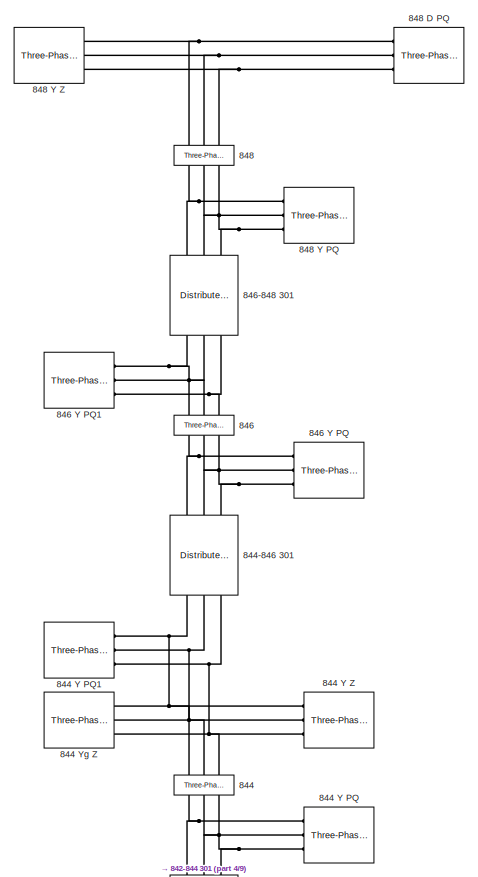
[diagram: root canvas - part 1/9, top right region]
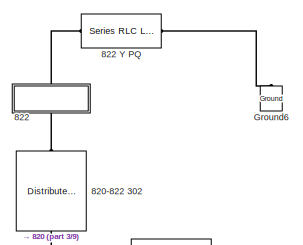
[diagram: root canvas - part 2/9, top center region]
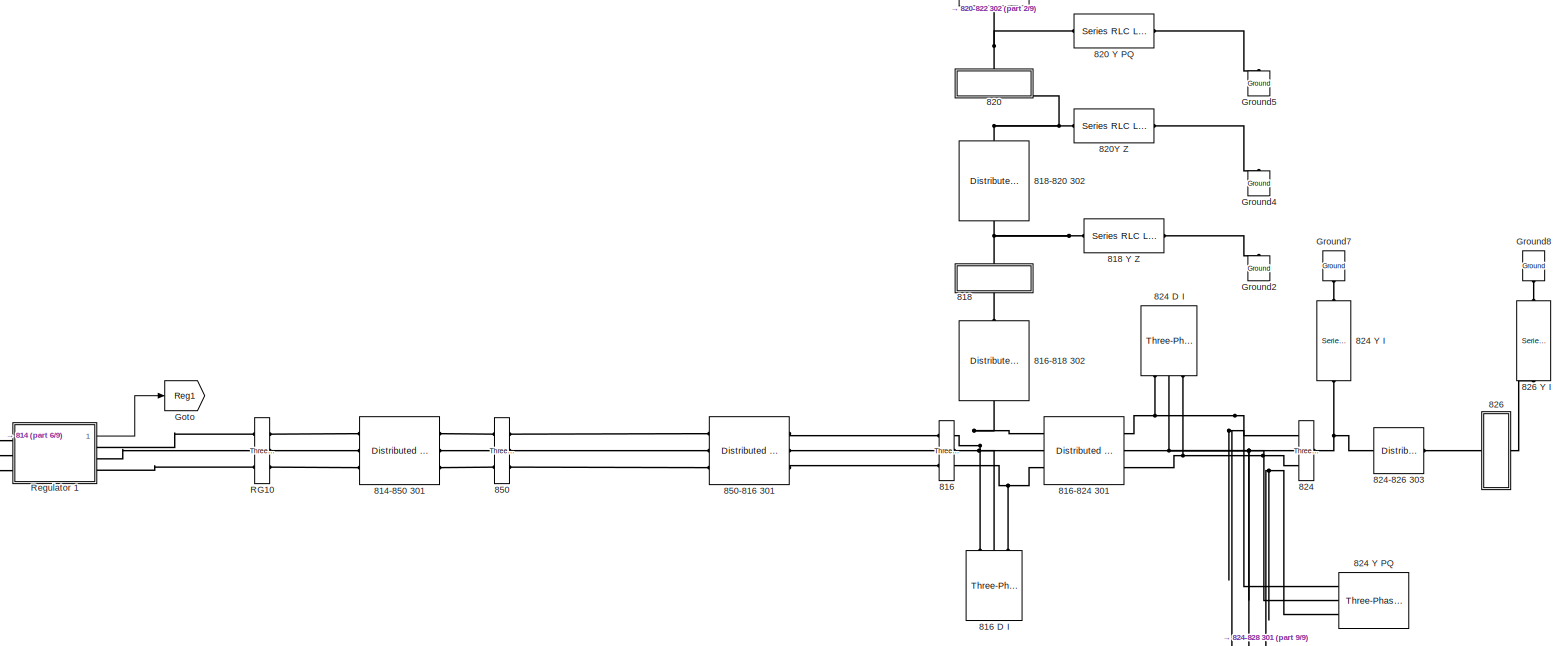
[diagram: root canvas - part 3/9, central region]
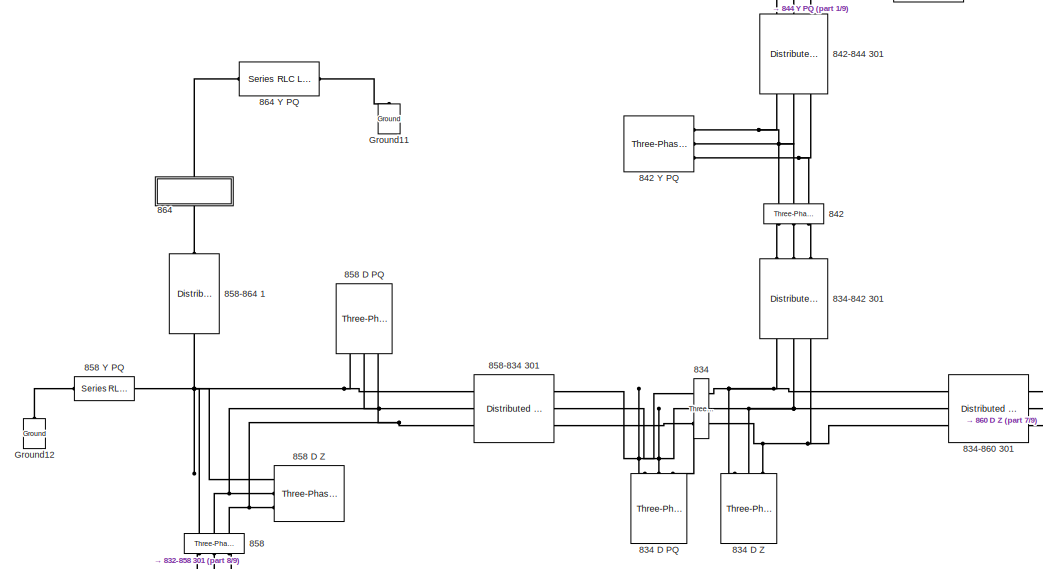
[diagram: root canvas - part 4/9, middle right region]
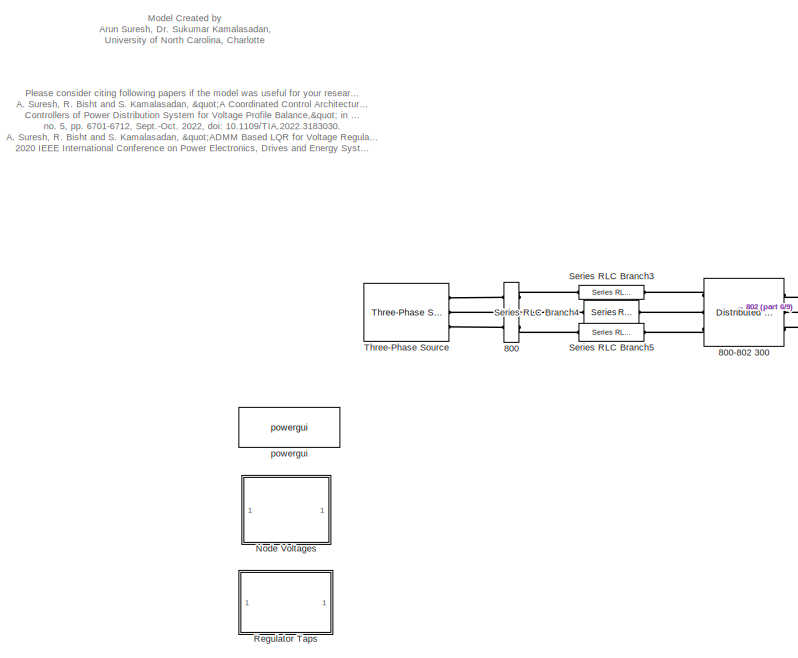
[diagram: root canvas - part 5/9, middle left region]
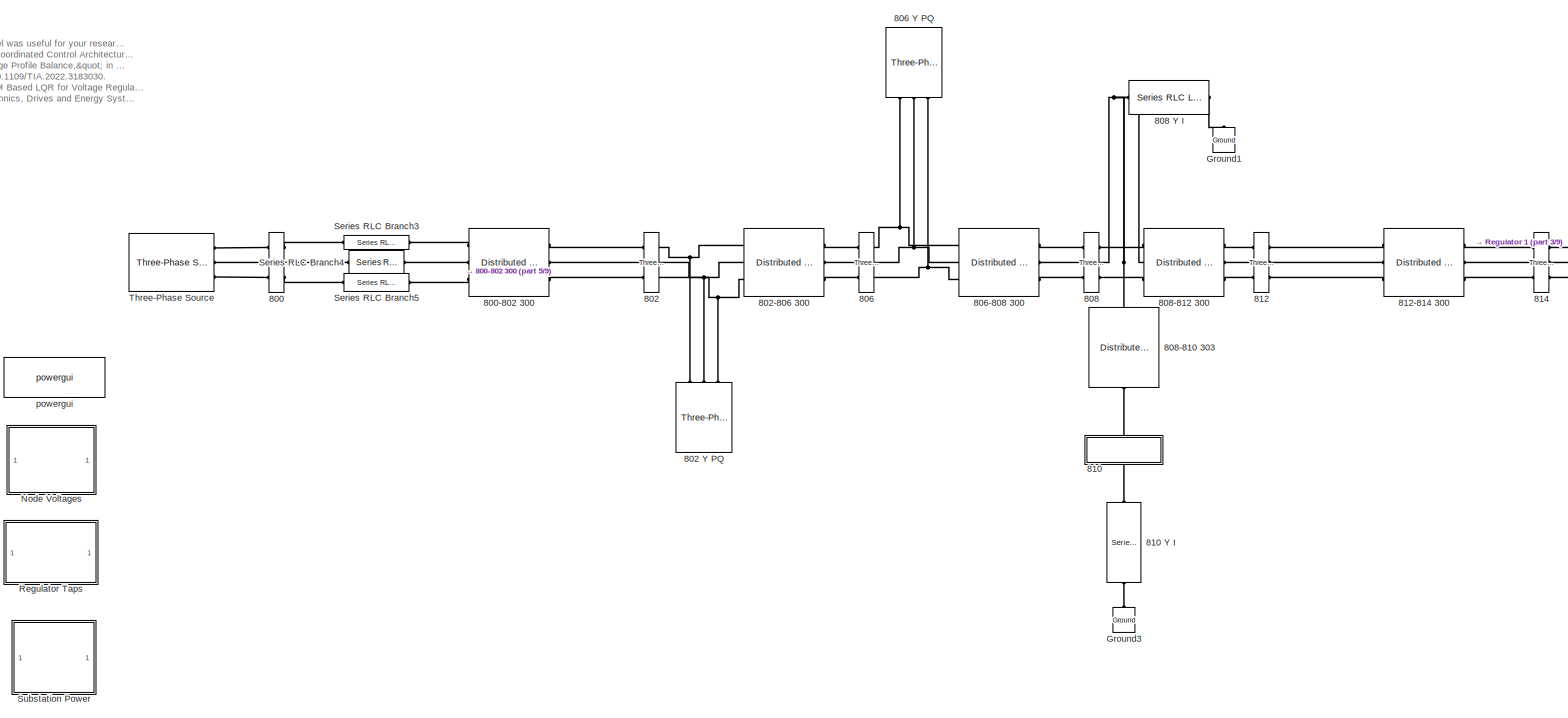
[diagram: root canvas - part 6/9, middle left region]
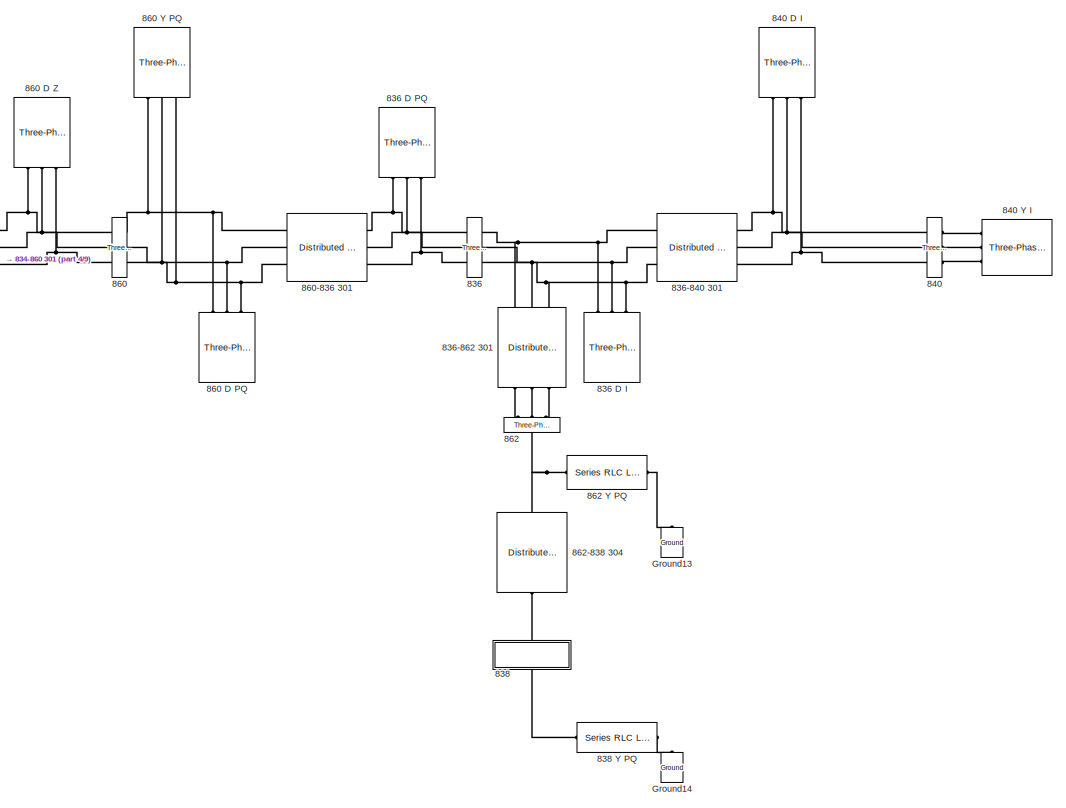
[diagram: root canvas - part 7/9, middle right region]
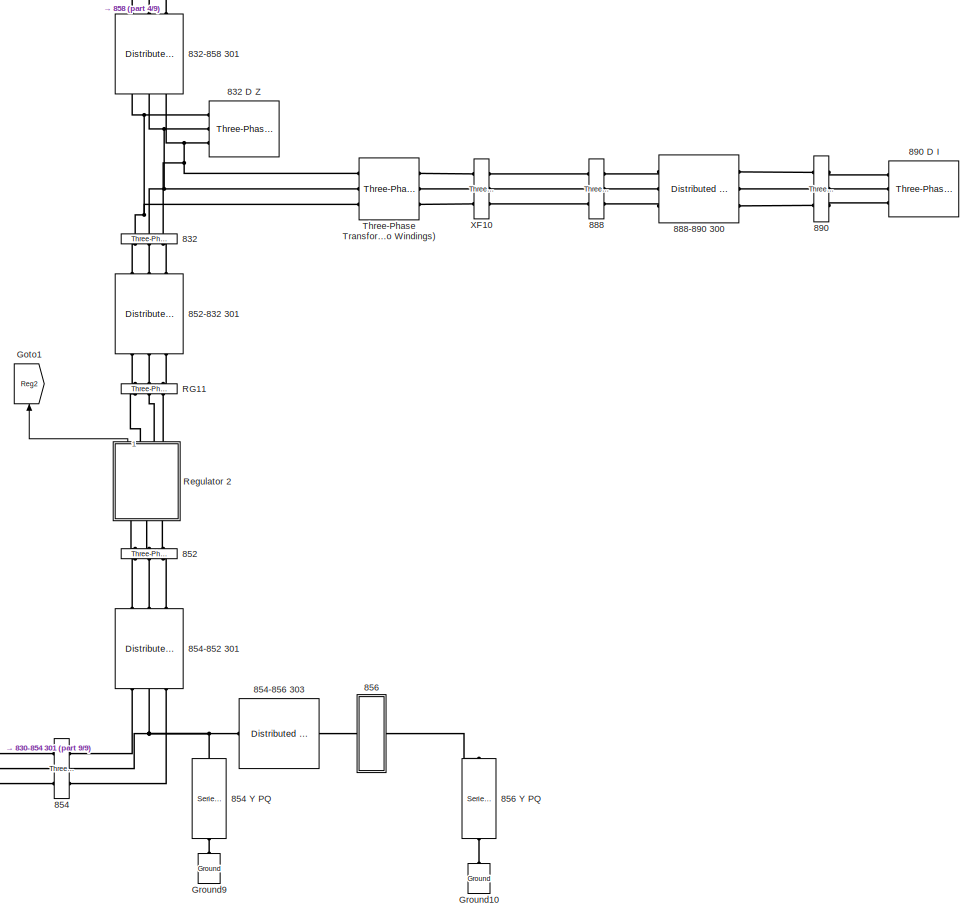
[diagram: root canvas - part 8/9, bottom right region]
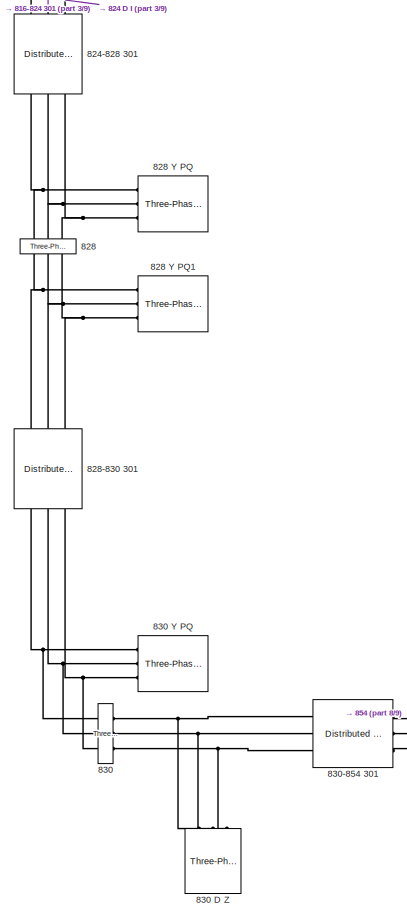
[diagram: root canvas - part 9/9, bottom center region]
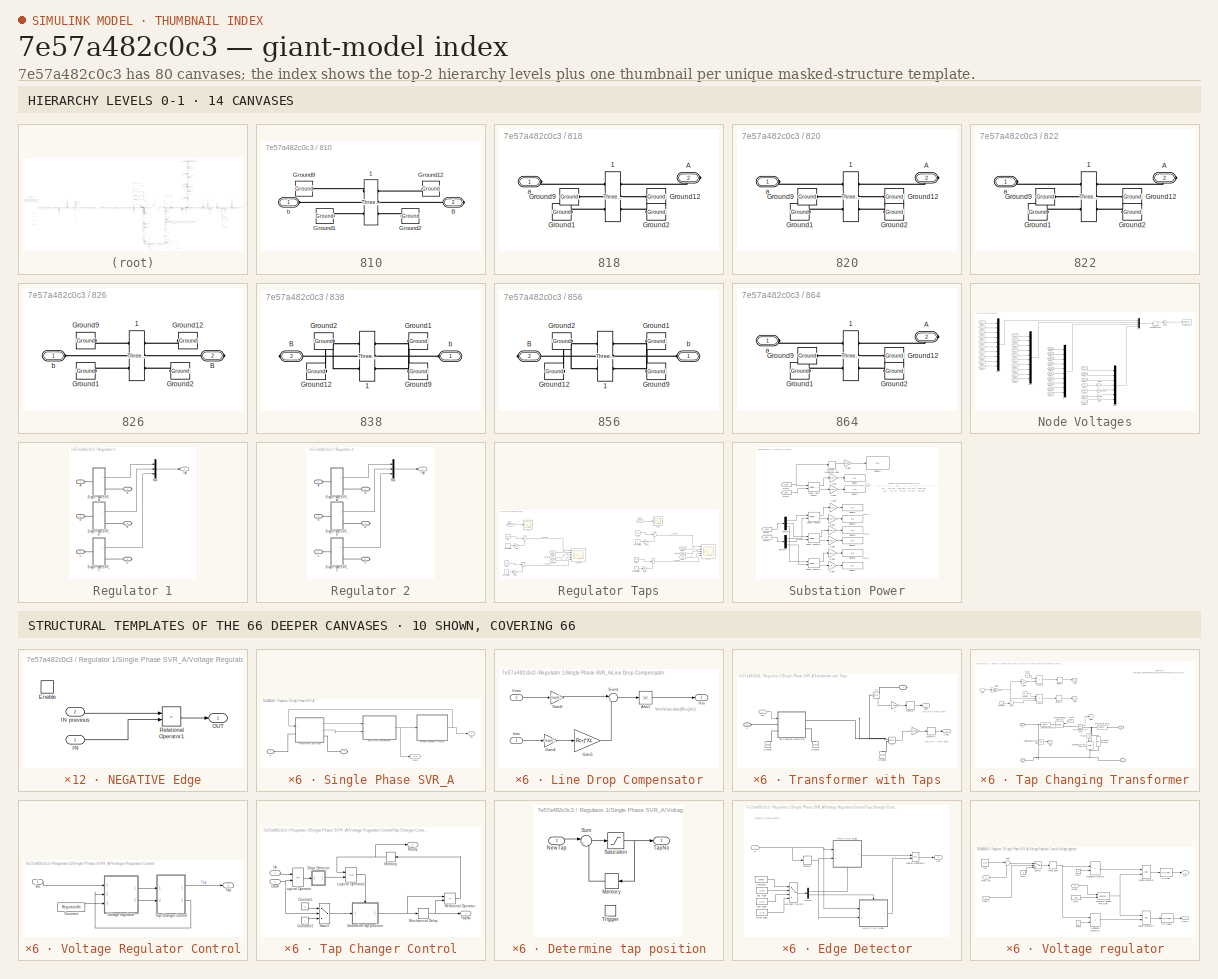
[diagram: thumbnail index - top-2 hierarchy levels (14 canvases) + 10 structural-template representatives of the remaining 66 canvases]
MODEL slx_7e57a482c0c3
KIND model
CONFIG AbsTol = auto
CONFIG EnableMultiTasking = off
CONFIG FixedStep = Ts
CONFIG InitFcn = a=1; % Loading Factor\nTs=0.1;% For Delay Blocks in Voltage Regulator Controls\n\n% Simulation data for the IEEE 34 Node Test Feeder model\nmi2km = 1.60934;%  miles to km conversion\nft2km = 0.0003048; % feet to km conversion\nms2F = 1*1e-6/(2*pi*60);% microsiemens to Farads conversion\n\n%% Configuration 300 - series reactance - ohm/mile\nR_300 = [1.3368 0.2101 0.2130;0.2101 1.3238 0.2066;0.2130 0.2066 1....<+1530ch>
CONFIG MaxStep = auto
CONFIG MinStep = auto
CONFIG RelTol = 1e-3
CONFIG SampleTimeConstraint = Unconstrained
CONFIG Solver = VariableStepAuto
CONFIG SolverName = VariableStepAuto
CONFIG StartTime = 0.0
CONFIG StopTime = 100
BLOCK [Reference] 800  REF=powerlib/Measurements/Three-Phase
V-I Measurement
  Ports = [0, 0, 0, 0, 0, 3, 3]
  SourceBlock = powerlib/Measurements/Three-Phase\nV-I Measurement
  SourceProductBaseCode = PS
  SourceProductName = Simscape Electrical
  SourceType = Three-Phase VI Measurement
BLOCK [Reference] 800-802 300  REF=powerlib/Elements/Distributed Parameters Line
  Ports = [0, 0, 0, 0, 0, 3, 3]
  SourceBlock = powerlib/Elements/Distributed Parameters Line
  SourceProductBaseCode = PS
  SourceProductName = Simscape Power Systems
  SourceType = Distributed Parameters Line
BLOCK [Reference] 802  REF=powerlib/Measurements/Three-Phase
V-I Measurement
  Ports = [0, 0, 0, 0, 0, 3, 3]
  SourceBlock = powerlib/Measurements/Three-Phase\nV-I Measurement
  SourceProductBaseCode = PS
  SourceProductName = Simscape Electrical
  SourceType = Three-Phase VI Measurement
BLOCK [Reference] 802 Y PQ  REF=powerlib/Elements/Three-Phase
Series RLC Load
  AttributesFormatString = \n
  Ports = [0, 0, 0, 0, 0, 3]
  SourceBlock = powerlib/Elements/Three-Phase\nSeries RLC Load
  SourceProductBaseCode = PS
  SourceProductName = Simscape Electrical
  SourceType = Three-Phase Series RLC Load
BLOCK [Reference] 802-806 300  REF=powerlib/Elements/Distributed Parameters Line
  Ports = [0, 0, 0, 0, 0, 3, 3]
  SourceBlock = powerlib/Elements/Distributed Parameters Line
  SourceProductBaseCode = PS
  SourceProductName = Simscape Power Systems
  SourceType = Distributed Parameters Line
BLOCK [Reference] 806  REF=powerlib/Measurements/Three-Phase
V-I Measurement
  Ports = [0, 0, 0, 0, 0, 3, 3]
  SourceBlock = powerlib/Measurements/Three-Phase\nV-I Measurement
  SourceProductBaseCode = PS
  SourceProductName = Simscape Electrical
  SourceType = Three-Phase VI Measurement
BLOCK [Reference] 806 Y PQ  REF=powerlib/Elements/Three-Phase
Series RLC Load
  AttributesFormatString = \n
  Ports = [0, 0, 0, 0, 0, 3]
  SourceBlock = powerlib/Elements/Three-Phase\nSeries RLC Load
  SourceProductBaseCode = PS
  SourceProductName = Simscape Electrical
  SourceType = Three-Phase Series RLC Load
BLOCK [Reference] 806-808 300  REF=powerlib/Elements/Distributed Parameters Line
  Ports = [0, 0, 0, 0, 0, 3, 3]
  SourceBlock = powerlib/Elements/Distributed Parameters Line
  SourceProductBaseCode = PS
  SourceProductName = Simscape Power Systems
  SourceType = Distributed Parameters Line
BLOCK [Reference] 808  REF=powerlib/Measurements/Three-Phase
V-I Measurement
  Ports = [0, 0, 0, 0, 0, 3, 3]
  SourceBlock = powerlib/Measurements/Three-Phase\nV-I Measurement
  SourceProductBaseCode = PS
  SourceProductName = Simscape Electrical
  SourceType = Three-Phase VI Measurement
BLOCK [Reference] 808 Y I  REF=powerlib/Elements/Series RLC Load
  AttributesFormatString = \n
  Ports = [0, 0, 0, 0, 0, 1, 1]
  SourceBlock = powerlib/Elements/Series RLC Load
  SourceProductBaseCode = PS
  SourceProductName = Simscape Electrical
  SourceType = Series RLC Load
BLOCK [Reference] 808-810 303  REF=powerlib/Elements/Distributed Parameters Line
  Ports = [0, 0, 0, 0, 0, 1, 1]
  SourceBlock = powerlib/Elements/Distributed Parameters Line
  SourceProductBaseCode = PS
  SourceProductName = Simscape Power Systems
  SourceType = Distributed Parameters Line
BLOCK [Reference] 808-812 300  REF=powerlib/Elements/Distributed Parameters Line
  Ports = [0, 0, 0, 0, 0, 3, 3]
  SourceBlock = powerlib/Elements/Distributed Parameters Line
  SourceProductBaseCode = PS
  SourceProductName = Simscape Power Systems
  SourceType = Distributed Parameters Line
BLOCK [SubSystem] 810
  Ports = [0, 0, 0, 0, 0, 1, 1]
  RequestExecContextInheritance = off
BLOCK [Reference] 810 Y I  REF=powerlib/Elements/Series RLC Load
  AttributesFormatString = \n
  Ports = [0, 0, 0, 0, 0, 1, 1]
  SourceBlock = powerlib/Elements/Series RLC Load
  SourceProductBaseCode = PS
  SourceProductName = Simscape Electrical
  SourceType = Series RLC Load
BLOCK [Reference] 810/1  REF=powerlib/Measurements/Three-Phase
V-I Measurement
  Ports = [0, 0, 0, 0, 0, 3, 3]
  SourceBlock = powerlib/Measurements/Three-Phase\nV-I Measurement
  SourceProductBaseCode = PS
  SourceProductName = Simscape Electrical
  SourceType = Three-Phase VI Measurement
BLOCK [PMIOPort] 810/B
  Port = 2
  Side = Right
BLOCK [Reference] 810/Ground1  REF=powerlib/Elements/Ground
  Ports = [0, 0, 0, 0, 0, 1]
  SourceBlock = powerlib/Elements/Ground
  SourceProductBaseCode = PS
  SourceProductName = Simscape Electrical
  SourceType = Ground
BLOCK [Reference] 810/Ground12  REF=powerlib/Elements/Ground
  Ports = [0, 0, 0, 0, 0, 1]
  SourceBlock = powerlib/Elements/Ground
  SourceProductBaseCode = PS
  SourceProductName = Simscape Electrical
  SourceType = Ground
BLOCK [Reference] 810/Ground2  REF=powerlib/Elements/Ground
  Ports = [0, 0, 0, 0, 0, 1]
  SourceBlock = powerlib/Elements/Ground
  SourceProductBaseCode = PS
  SourceProductName = Simscape Electrical
  SourceType = Ground
BLOCK [Reference] 810/Ground9  REF=powerlib/Elements/Ground
  Ports = [0, 0, 0, 0, 0, 1]
  SourceBlock = powerlib/Elements/Ground
  SourceProductBaseCode = PS
  SourceProductName = Simscape Electrical
  SourceType = Ground
BLOCK [PMIOPort] 810/b
  Side = Left
BLOCK [Reference] 812  REF=powerlib/Measurements/Three-Phase
V-I Measurement
  Ports = [0, 0, 0, 0, 0, 3, 3]
  SourceBlock = powerlib/Measurements/Three-Phase\nV-I Measurement
  SourceProductBaseCode = PS
  SourceProductName = Simscape Electrical
  SourceType = Three-Phase VI Measurement
BLOCK [Reference] 812-814 300  REF=powerlib/Elements/Distributed Parameters Line
  Ports = [0, 0, 0, 0, 0, 3, 3]
  SourceBlock = powerlib/Elements/Distributed Parameters Line
  SourceProductBaseCode = PS
  SourceProductName = Simscape Power Systems
  SourceType = Distributed Parameters Line
BLOCK [Reference] 814  REF=powerlib/Measurements/Three-Phase
V-I Measurement
  Ports = [0, 0, 0, 0, 0, 3, 3]
  SourceBlock = powerlib/Measurements/Three-Phase\nV-I Measurement
  SourceProductBaseCode = PS
  SourceProductName = Simscape Electrical
  SourceType = Three-Phase VI Measurement
BLOCK [Reference] 814-850 301  REF=powerlib/Elements/Distributed Parameters Line
  Ports = [0, 0, 0, 0, 0, 3, 3]
  SourceBlock = powerlib/Elements/Distributed Parameters Line
  SourceProductBaseCode = PS
  SourceProductName = Simscape Power Systems
  SourceType = Distributed Parameters Line
BLOCK [Reference] 816   REF=powerlib/Measurements/Three-Phase
V-I Measurement
  Ports = [0, 0, 0, 0, 0, 3, 3]
  SourceBlock = powerlib/Measurements/Three-Phase\nV-I Measurement
  SourceProductBaseCode = PS
  SourceProductName = Simscape Electrical
  SourceType = Three-Phase VI Measurement
BLOCK [Reference] 816 D I  REF=powerlib/Elements/Three-Phase
Series RLC Load
  AttributesFormatString = \n
  Ports = [0, 0, 0, 0, 0, 3]
  SourceBlock = powerlib/Elements/Three-Phase\nSeries RLC Load
  SourceProductBaseCode = PS
  SourceProductName = Simscape Electrical
  SourceType = Three-Phase Series RLC Load
BLOCK [Reference] 816-818 302  REF=powerlib/Elements/Distributed Parameters Line
  Ports = [0, 0, 0, 0, 0, 1, 1]
  SourceBlock = powerlib/Elements/Distributed Parameters Line
  SourceProductBaseCode = PS
  SourceProductName = Simscape Power Systems
  SourceType = Distributed Parameters Line
BLOCK [Reference] 816-824 301  REF=powerlib/Elements/Distributed Parameters Line
  Ports = [0, 0, 0, 0, 0, 3, 3]
  SourceBlock = powerlib/Elements/Distributed Parameters Line
  SourceProductBaseCode = PS
  SourceProductName = Simscape Power Systems
  SourceType = Distributed Parameters Line
BLOCK [SubSystem] 818
  Ports = [0, 0, 0, 0, 0, 1, 1]
  RequestExecContextInheritance = off
BLOCK [Reference] 818 Y Z  REF=powerlib/Elements/Series RLC Load
  AttributesFormatString = \n
  Ports = [0, 0, 0, 0, 0, 1, 1]
  SourceBlock = powerlib/Elements/Series RLC Load
  SourceProductBaseCode = PS
  SourceProductName = Simscape Electrical
  SourceType = Series RLC Load
BLOCK [Reference] 818-820 302  REF=powerlib/Elements/Distributed Parameters Line
  Ports = [0, 0, 0, 0, 0, 1, 1]
  SourceBlock = powerlib/Elements/Distributed Parameters Line
  SourceProductBaseCode = PS
  SourceProductName = Simscape Power Systems
  SourceType = Distributed Parameters Line
BLOCK [Reference] 818/1  REF=powerlib/Measurements/Three-Phase
V-I Measurement
  Ports = [0, 0, 0, 0, 0, 3, 3]
  SourceBlock = powerlib/Measurements/Three-Phase\nV-I Measurement
  SourceProductBaseCode = PS
  SourceProductName = Simscape Electrical
  SourceType = Three-Phase VI Measurement
BLOCK [PMIOPort] 818/A
  Port = 2
  Side = Right
BLOCK [Reference] 818/Ground1  REF=powerlib/Elements/Ground
  Ports = [0, 0, 0, 0, 0, 1]
  SourceBlock = powerlib/Elements/Ground
  SourceProductBaseCode = PS
  SourceProductName = Simscape Electrical
  SourceType = Ground
BLOCK [Reference] 818/Ground12  REF=powerlib/Elements/Ground
  Ports = [0, 0, 0, 0, 0, 1]
  SourceBlock = powerlib/Elements/Ground
  SourceProductBaseCode = PS
  SourceProductName = Simscape Electrical
  SourceType = Ground
BLOCK [Reference] 818/Ground2  REF=powerlib/Elements/Ground
  Ports = [0, 0, 0, 0, 0, 1]
  SourceBlock = powerlib/Elements/Ground
  SourceProductBaseCode = PS
  SourceProductName = Simscape Electrical
  SourceType = Ground
BLOCK [Reference] 818/Ground9  REF=powerlib/Elements/Ground
  Ports = [0, 0, 0, 0, 0, 1]
  SourceBlock = powerlib/Elements/Ground
  SourceProductBaseCode = PS
  SourceProductName = Simscape Electrical
  SourceType = Ground
BLOCK [PMIOPort] 818/a
  Side = Left
BLOCK [SubSystem] 820
  Ports = [0, 0, 0, 0, 0, 1, 1]
  RequestExecContextInheritance = off
BLOCK [Reference] 820 Y PQ  REF=powerlib/Elements/Series RLC Load
  AttributesFormatString = \n
  Ports = [0, 0, 0, 0, 0, 1, 1]
  SourceBlock = powerlib/Elements/Series RLC Load
  SourceProductBaseCode = PS
  SourceProductName = Simscape Electrical
  SourceType = Series RLC Load
BLOCK [Reference] 820-822 302  REF=powerlib/Elements/Distributed Parameters Line
  Ports = [0, 0, 0, 0, 0, 1, 1]
  SourceBlock = powerlib/Elements/Distributed Parameters Line
  SourceProductBaseCode = PS
  SourceProductName = Simscape Power Systems
  SourceType = Distributed Parameters Line
BLOCK [Reference] 820/1  REF=powerlib/Measurements/Three-Phase
V-I Measurement
  Ports = [0, 0, 0, 0, 0, 3, 3]
  SourceBlock = powerlib/Measurements/Three-Phase\nV-I Measurement
  SourceProductBaseCode = PS
  SourceProductName = Simscape Electrical
  SourceType = Three-Phase VI Measurement
BLOCK [PMIOPort] 820/A
  Port = 2
  Side = Right
BLOCK [Reference] 820/Ground1  REF=powerlib/Elements/Ground
  Ports = [0, 0, 0, 0, 0, 1]
  SourceBlock = powerlib/Elements/Ground
  SourceProductBaseCode = PS
  SourceProductName = Simscape Electrical
  SourceType = Ground
BLOCK [Reference] 820/Ground12  REF=powerlib/Elements/Ground
  Ports = [0, 0, 0, 0, 0, 1]
  SourceBlock = powerlib/Elements/Ground
  SourceProductBaseCode = PS
  SourceProductName = Simscape Electrical
  SourceType = Ground
BLOCK [Reference] 820/Ground2  REF=powerlib/Elements/Ground
  Ports = [0, 0, 0, 0, 0, 1]
  SourceBlock = powerlib/Elements/Ground
  SourceProductBaseCode = PS
  SourceProductName = Simscape Electrical
  SourceType = Ground
BLOCK [Reference] 820/Ground9  REF=powerlib/Elements/Ground
  Ports = [0, 0, 0, 0, 0, 1]
  SourceBlock = powerlib/Elements/Ground
  SourceProductBaseCode = PS
  SourceProductName = Simscape Electrical
  SourceType = Ground
BLOCK [PMIOPort] 820/a
  Side = Left
BLOCK [Reference] 820Y Z  REF=powerlib/Elements/Series RLC Load
  AttributesFormatString = \n
  Ports = [0, 0, 0, 0, 0, 1, 1]
  SourceBlock = powerlib/Elements/Series RLC Load
  SourceProductBaseCode = PS
  SourceProductName = Simscape Electrical
  SourceType = Series RLC Load
BLOCK [SubSystem] 822
  Ports = [0, 0, 0, 0, 0, 1, 1]
  RequestExecContextInheritance = off
BLOCK [Reference] 822 Y PQ  REF=powerlib/Elements/Series RLC Load
  AttributesFormatString = \n
  Ports = [0, 0, 0, 0, 0, 1, 1]
  SourceBlock = powerlib/Elements/Series RLC Load
  SourceProductBaseCode = PS
  SourceProductName = Simscape Electrical
  SourceType = Series RLC Load
BLOCK [Reference] 822/1  REF=powerlib/Measurements/Three-Phase
V-I Measurement
  Ports = [0, 0, 0, 0, 0, 3, 3]
  SourceBlock = powerlib/Measurements/Three-Phase\nV-I Measurement
  SourceProductBaseCode = PS
  SourceProductName = Simscape Electrical
  SourceType = Three-Phase VI Measurement
BLOCK [PMIOPort] 822/A
  Port = 2
  Side = Right
BLOCK [Reference] 822/Ground1  REF=powerlib/Elements/Ground
  Ports = [0, 0, 0, 0, 0, 1]
  SourceBlock = powerlib/Elements/Ground
  SourceProductBaseCode = PS
  SourceProductName = Simscape Electrical
  SourceType = Ground
BLOCK [Reference] 822/Ground12  REF=powerlib/Elements/Ground
  Ports = [0, 0, 0, 0, 0, 1]
  SourceBlock = powerlib/Elements/Ground
  SourceProductBaseCode = PS
  SourceProductName = Simscape Electrical
  SourceType = Ground
BLOCK [Reference] 822/Ground2  REF=powerlib/Elements/Ground
  Ports = [0, 0, 0, 0, 0, 1]
  SourceBlock = powerlib/Elements/Ground
  SourceProductBaseCode = PS
  SourceProductName = Simscape Electrical
  SourceType = Ground
BLOCK [Reference] 822/Ground9  REF=powerlib/Elements/Ground
  Ports = [0, 0, 0, 0, 0, 1]
  SourceBlock = powerlib/Elements/Ground
  SourceProductBaseCode = PS
  SourceProductName = Simscape Electrical
  SourceType = Ground
BLOCK [PMIOPort] 822/a
  Side = Left
BLOCK [Reference] 824   REF=powerlib/Measurements/Three-Phase
V-I Measurement
  Ports = [0, 0, 0, 0, 0, 3, 3]
  SourceBlock = powerlib/Measurements/Three-Phase\nV-I Measurement
  SourceProductBaseCode = PS
  SourceProductName = Simscape Electrical
  SourceType = Three-Phase VI Measurement
BLOCK [Reference] 824 D I  REF=powerlib/Elements/Three-Phase
Series RLC Load
  AttributesFormatString = \n
  Ports = [0, 0, 0, 0, 0, 3]
  SourceBlock = powerlib/Elements/Three-Phase\nSeries RLC Load
  SourceProductBaseCode = PS
  SourceProductName = Simscape Electrical
  SourceType = Three-Phase Series RLC Load
BLOCK [Reference] 824 Y I  REF=powerlib/Elements/Series RLC Load
  AttributesFormatString = \n
  Ports = [0, 0, 0, 0, 0, 1, 1]
  SourceBlock = powerlib/Elements/Series RLC Load
  SourceProductBaseCode = PS
  SourceProductName = Simscape Electrical
  SourceType = Series RLC Load
BLOCK [Reference] 824 Y PQ  REF=powerlib/Elements/Three-Phase
Series RLC Load
  AttributesFormatString = \n
  Ports = [0, 0, 0, 0, 0, 3]
  SourceBlock = powerlib/Elements/Three-Phase\nSeries RLC Load
  SourceProductBaseCode = PS
  SourceProductName = Simscape Electrical
  SourceType = Three-Phase Series RLC Load
BLOCK [Reference] 824-826 303  REF=powerlib/Elements/Distributed Parameters Line
  Ports = [0, 0, 0, 0, 0, 1, 1]
  SourceBlock = powerlib/Elements/Distributed Parameters Line
  SourceProductBaseCode = PS
  SourceProductName = Simscape Power Systems
  SourceType = Distributed Parameters Line
BLOCK [Reference] 824-828 301  REF=powerlib/Elements/Distributed Parameters Line
  Ports = [0, 0, 0, 0, 0, 3, 3]
  SourceBlock = powerlib/Elements/Distributed Parameters Line
  SourceProductBaseCode = PS
  SourceProductName = Simscape Power Systems
  SourceType = Distributed Parameters Line
BLOCK [SubSystem] 826
  Ports = [0, 0, 0, 0, 0, 1, 1]
  RequestExecContextInheritance = off
BLOCK [Reference] 826 Y I  REF=powerlib/Elements/Series RLC Load
  AttributesFormatString = \n
  Ports = [0, 0, 0, 0, 0, 1, 1]
  SourceBlock = powerlib/Elements/Series RLC Load
  SourceProductBaseCode = PS
  SourceProductName = Simscape Electrical
  SourceType = Series RLC Load
BLOCK [Reference] 826/1  REF=powerlib/Measurements/Three-Phase
V-I Measurement
  Ports = [0, 0, 0, 0, 0, 3, 3]
  SourceBlock = powerlib/Measurements/Three-Phase\nV-I Measurement
  SourceProductBaseCode = PS
  SourceProductName = Simscape Electrical
  SourceType = Three-Phase VI Measurement
BLOCK [PMIOPort] 826/B
  Port = 2
  Side = Right
BLOCK [Reference] 826/Ground1  REF=powerlib/Elements/Ground
  Ports = [0, 0, 0, 0, 0, 1]
  SourceBlock = powerlib/Elements/Ground
  SourceProductBaseCode = PS
  SourceProductName = Simscape Electrical
  SourceType = Ground
BLOCK [Reference] 826/Ground12  REF=powerlib/Elements/Ground
  Ports = [0, 0, 0, 0, 0, 1]
  SourceBlock = powerlib/Elements/Ground
  SourceProductBaseCode = PS
  SourceProductName = Simscape Electrical
  SourceType = Ground
BLOCK [Reference] 826/Ground2  REF=powerlib/Elements/Ground
  Ports = [0, 0, 0, 0, 0, 1]
  SourceBlock = powerlib/Elements/Ground
  SourceProductBaseCode = PS
  SourceProductName = Simscape Electrical
  SourceType = Ground
BLOCK [Reference] 826/Ground9  REF=powerlib/Elements/Ground
  Ports = [0, 0, 0, 0, 0, 1]
  SourceBlock = powerlib/Elements/Ground
  SourceProductBaseCode = PS
  SourceProductName = Simscape Electrical
  SourceType = Ground
BLOCK [PMIOPort] 826/b
  Side = Left
BLOCK [Reference] 828  REF=powerlib/Measurements/Three-Phase
V-I Measurement
  Ports = [0, 0, 0, 0, 0, 3, 3]
  SourceBlock = powerlib/Measurements/Three-Phase\nV-I Measurement
  SourceProductBaseCode = PS
  SourceProductName = Simscape Electrical
  SourceType = Three-Phase VI Measurement
BLOCK [Reference] 828 Y PQ  REF=powerlib/Elements/Three-Phase
Series RLC Load
  AttributesFormatString = \n
  Ports = [0, 0, 0, 0, 0, 3]
  SourceBlock = powerlib/Elements/Three-Phase\nSeries RLC Load
  SourceProductBaseCode = PS
  SourceProductName = Simscape Electrical
  SourceType = Three-Phase Series RLC Load
BLOCK [Reference] 828 Y PQ1  REF=powerlib/Elements/Three-Phase
Series RLC Load
  AttributesFormatString = \n
  Ports = [0, 0, 0, 0, 0, 3]
  SourceBlock = powerlib/Elements/Three-Phase\nSeries RLC Load
  SourceProductBaseCode = PS
  SourceProductName = Simscape Electrical
  SourceType = Three-Phase Series RLC Load
BLOCK [Reference] 828-830 301  REF=powerlib/Elements/Distributed Parameters Line
  Ports = [0, 0, 0, 0, 0, 3, 3]
  SourceBlock = powerlib/Elements/Distributed Parameters Line
  SourceProductBaseCode = PS
  SourceProductName = Simscape Power Systems
  SourceType = Distributed Parameters Line
BLOCK [Reference] 830  REF=powerlib/Measurements/Three-Phase
V-I Measurement
  Ports = [0, 0, 0, 0, 0, 3, 3]
  SourceBlock = powerlib/Measurements/Three-Phase\nV-I Measurement
  SourceProductBaseCode = PS
  SourceProductName = Simscape Electrical
  SourceType = Three-Phase VI Measurement
BLOCK [Reference] 830 D Z  REF=powerlib/Elements/Three-Phase
Series RLC Load
  AttributesFormatString = \n
  Ports = [0, 0, 0, 0, 0, 3]
  SourceBlock = powerlib/Elements/Three-Phase\nSeries RLC Load
  SourceProductBaseCode = PS
  SourceProductName = Simscape Electrical
  SourceType = Three-Phase Series RLC Load
BLOCK [Reference] 830 Y PQ  REF=powerlib/Elements/Three-Phase
Series RLC Load
  AttributesFormatString = \n
  Ports = [0, 0, 0, 0, 0, 3]
  SourceBlock = powerlib/Elements/Three-Phase\nSeries RLC Load
  SourceProductBaseCode = PS
  SourceProductName = Simscape Electrical
  SourceType = Three-Phase Series RLC Load
BLOCK [Reference] 830-854 301  REF=powerlib/Elements/Distributed Parameters Line
  Ports = [0, 0, 0, 0, 0, 3, 3]
  SourceBlock = powerlib/Elements/Distributed Parameters Line
  SourceProductBaseCode = PS
  SourceProductName = Simscape Power Systems
  SourceType = Distributed Parameters Line
BLOCK [Reference] 832  REF=powerlib/Measurements/Three-Phase
V-I Measurement
  Ports = [0, 0, 0, 0, 0, 3, 3]
  SourceBlock = powerlib/Measurements/Three-Phase\nV-I Measurement
  SourceProductBaseCode = PS
  SourceProductName = Simscape Electrical
  SourceType = Three-Phase VI Measurement
BLOCK [Reference] 832 D Z  REF=powerlib/Elements/Three-Phase
Series RLC Load
  AttributesFormatString = \n
  Ports = [0, 0, 0, 0, 0, 3]
  SourceBlock = powerlib/Elements/Three-Phase\nSeries RLC Load
  SourceProductBaseCode = PS
  SourceProductName = Simscape Electrical
  SourceType = Three-Phase Series RLC Load
BLOCK [Reference] 832-858 301  REF=powerlib/Elements/Distributed Parameters Line
  Ports = [0, 0, 0, 0, 0, 3, 3]
  SourceBlock = powerlib/Elements/Distributed Parameters Line
  SourceProductBaseCode = PS
  SourceProductName = Simscape Power Systems
  SourceType = Distributed Parameters Line
BLOCK [Reference] 834  REF=powerlib/Measurements/Three-Phase
V-I Measurement
  Ports = [0, 0, 0, 0, 0, 3, 3]
  SourceBlock = powerlib/Measurements/Three-Phase\nV-I Measurement
  SourceProductBaseCode = PS
  SourceProductName = Simscape Electrical
  SourceType = Three-Phase VI Measurement
BLOCK [Reference] 834 D PQ  REF=powerlib/Elements/Three-Phase
Series RLC Load
  AttributesFormatString = \n
  Ports = [0, 0, 0, 0, 0, 3]
  SourceBlock = powerlib/Elements/Three-Phase\nSeries RLC Load
  SourceProductBaseCode = PS
  SourceProductName = Simscape Electrical
  SourceType = Three-Phase Series RLC Load
BLOCK [Reference] 834 D Z  REF=powerlib/Elements/Three-Phase
Series RLC Load
  AttributesFormatString = \n
  Ports = [0, 0, 0, 0, 0, 3]
  SourceBlock = powerlib/Elements/Three-Phase\nSeries RLC Load
  SourceProductBaseCode = PS
  SourceProductName = Simscape Electrical
  SourceType = Three-Phase Series RLC Load
BLOCK [Reference] 834-842 301  REF=powerlib/Elements/Distributed Parameters Line
  Ports = [0, 0, 0, 0, 0, 3, 3]
  SourceBlock = powerlib/Elements/Distributed Parameters Line
  SourceProductBaseCode = PS
  SourceProductName = Simscape Power Systems
  SourceType = Distributed Parameters Line
BLOCK [Reference] 834-860 301  REF=powerlib/Elements/Distributed Parameters Line
  Ports = [0, 0, 0, 0, 0, 3, 3]
  SourceBlock = powerlib/Elements/Distributed Parameters Line
  SourceProductBaseCode = PS
  SourceProductName = Simscape Power Systems
  SourceType = Distributed Parameters Line
BLOCK [Reference] 836  REF=powerlib/Measurements/Three-Phase
V-I Measurement
  Ports = [0, 0, 0, 0, 0, 3, 3]
  SourceBlock = powerlib/Measurements/Three-Phase\nV-I Measurement
  SourceProductBaseCode = PS
  SourceProductName = Simscape Electrical
  SourceType = Three-Phase VI Measurement
BLOCK [Reference] 836 D I  REF=powerlib/Elements/Three-Phase
Series RLC Load
  AttributesFormatString = \n
  Ports = [0, 0, 0, 0, 0, 3]
  SourceBlock = powerlib/Elements/Three-Phase\nSeries RLC Load
  SourceProductBaseCode = PS
  SourceProductName = Simscape Electrical
  SourceType = Three-Phase Series RLC Load
BLOCK [Reference] 836 D PQ  REF=powerlib/Elements/Three-Phase
Series RLC Load
  AttributesFormatString = \n
  Ports = [0, 0, 0, 0, 0, 3]
  SourceBlock = powerlib/Elements/Three-Phase\nSeries RLC Load
  SourceProductBaseCode = PS
  SourceProductName = Simscape Electrical
  SourceType = Three-Phase Series RLC Load
BLOCK [Reference] 836-840 301  REF=powerlib/Elements/Distributed Parameters Line
  Ports = [0, 0, 0, 0, 0, 3, 3]
  SourceBlock = powerlib/Elements/Distributed Parameters Line
  SourceProductBaseCode = PS
  SourceProductName = Simscape Power Systems
  SourceType = Distributed Parameters Line
BLOCK [Reference] 836-862 301  REF=powerlib/Elements/Distributed Parameters Line
  Ports = [0, 0, 0, 0, 0, 3, 3]
  SourceBlock = powerlib/Elements/Distributed Parameters Line
  SourceProductBaseCode = PS
  SourceProductName = Simscape Power Systems
  SourceType = Distributed Parameters Line
BLOCK [SubSystem] 838
  Ports = [0, 0, 0, 0, 0, 1, 1]
  RequestExecContextInheritance = off
BLOCK [Reference] 838 Y PQ  REF=powerlib/Elements/Series RLC Load
  AttributesFormatString = \n
  Ports = [0, 0, 0, 0, 0, 1, 1]
  SourceBlock = powerlib/Elements/Series RLC Load
  SourceProductBaseCode = PS
  SourceProductName = Simscape Electrical
  SourceType = Series RLC Load
BLOCK [Reference] 838/1  REF=powerlib/Measurements/Three-Phase
V-I Measurement
  Ports = [0, 0, 0, 0, 0, 3, 3]
  SourceBlock = powerlib/Measurements/Three-Phase\nV-I Measurement
  SourceProductBaseCode = PS
  SourceProductName = Simscape Electrical
  SourceType = Three-Phase VI Measurement
BLOCK [PMIOPort] 838/B
  Port = 2
  Side = Right
BLOCK [Reference] 838/Ground1  REF=powerlib/Elements/Ground
  Ports = [0, 0, 0, 0, 0, 1]
  SourceBlock = powerlib/Elements/Ground
  SourceProductBaseCode = PS
  SourceProductName = Simscape Electrical
  SourceType = Ground
BLOCK [Reference] 838/Ground12  REF=powerlib/Elements/Ground
  Ports = [0, 0, 0, 0, 0, 1]
  SourceBlock = powerlib/Elements/Ground
  SourceProductBaseCode = PS
  SourceProductName = Simscape Electrical
  SourceType = Ground
BLOCK [Reference] 838/Ground2  REF=powerlib/Elements/Ground
  Ports = [0, 0, 0, 0, 0, 1]
  SourceBlock = powerlib/Elements/Ground
  SourceProductBaseCode = PS
  SourceProductName = Simscape Electrical
  SourceType = Ground
BLOCK [Reference] 838/Ground9  REF=powerlib/Elements/Ground
  Ports = [0, 0, 0, 0, 0, 1]
  SourceBlock = powerlib/Elements/Ground
  SourceProductBaseCode = PS
  SourceProductName = Simscape Electrical
  SourceType = Ground
BLOCK [PMIOPort] 838/b
  Side = Left
BLOCK [Reference] 840  REF=powerlib/Measurements/Three-Phase
V-I Measurement
  Ports = [0, 0, 0, 0, 0, 3, 3]
  SourceBlock = powerlib/Measurements/Three-Phase\nV-I Measurement
  SourceProductBaseCode = PS
  SourceProductName = Simscape Electrical
  SourceType = Three-Phase VI Measurement
BLOCK [Reference] 840 D I  REF=powerlib/Elements/Three-Phase
Series RLC Load
  AttributesFormatString = \n
  Ports = [0, 0, 0, 0, 0, 3]
  SourceBlock = powerlib/Elements/Three-Phase\nSeries RLC Load
  SourceProductBaseCode = PS
  SourceProductName = Simscape Electrical
  SourceType = Three-Phase Series RLC Load
BLOCK [Reference] 840 Y I  REF=powerlib/Elements/Three-Phase
Series RLC Load
  AttributesFormatString = \n
  Ports = [0, 0, 0, 0, 0, 3]
  SourceBlock = powerlib/Elements/Three-Phase\nSeries RLC Load
  SourceProductBaseCode = PS
  SourceProductName = Simscape Electrical
  SourceType = Three-Phase Series RLC Load
BLOCK [Reference] 842  REF=powerlib/Measurements/Three-Phase
V-I Measurement
  Ports = [0, 0, 0, 0, 0, 3, 3]
  SourceBlock = powerlib/Measurements/Three-Phase\nV-I Measurement
  SourceProductBaseCode = PS
  SourceProductName = Simscape Electrical
  SourceType = Three-Phase VI Measurement
BLOCK [Reference] 842 Y PQ  REF=powerlib/Elements/Three-Phase
Series RLC Load
  AttributesFormatString = \n
  Ports = [0, 0, 0, 0, 0, 3]
  SourceBlock = powerlib/Elements/Three-Phase\nSeries RLC Load
  SourceProductBaseCode = PS
  SourceProductName = Simscape Electrical
  SourceType = Three-Phase Series RLC Load
BLOCK [Reference] 842-844 301  REF=powerlib/Elements/Distributed Parameters Line
  Ports = [0, 0, 0, 0, 0, 3, 3]
  SourceBlock = powerlib/Elements/Distributed Parameters Line
  SourceProductBaseCode = PS
  SourceProductName = Simscape Power Systems
  SourceType = Distributed Parameters Line
BLOCK [Reference] 844  REF=powerlib/Measurements/Three-Phase
V-I Measurement
  Ports = [0, 0, 0, 0, 0, 3, 3]
  SourceBlock = powerlib/Measurements/Three-Phase\nV-I Measurement
  SourceProductBaseCode = PS
  SourceProductName = Simscape Electrical
  SourceType = Three-Phase VI Measurement
BLOCK [Reference] 844 Y PQ  REF=powerlib/Elements/Three-Phase
Series RLC Load
  AttributesFormatString = \n
  Ports = [0, 0, 0, 0, 0, 3]
  SourceBlock = powerlib/Elements/Three-Phase\nSeries RLC Load
  SourceProductBaseCode = PS
  SourceProductName = Simscape Electrical
  SourceType = Three-Phase Series RLC Load
BLOCK [Reference] 844 Y PQ1  REF=powerlib/Elements/Three-Phase
Series RLC Load
  AttributesFormatString = \n
  Ports = [0, 0, 0, 0, 0, 3]
  SourceBlock = powerlib/Elements/Three-Phase\nSeries RLC Load
  SourceProductBaseCode = PS
  SourceProductName = Simscape Electrical
  SourceType = Three-Phase Series RLC Load
BLOCK [Reference] 844 Y Z  REF=powerlib/Elements/Three-Phase
Series RLC Load
  AttributesFormatString = \n
  Ports = [0, 0, 0, 0, 0, 3]
  SourceBlock = powerlib/Elements/Three-Phase\nSeries RLC Load
  SourceProductBaseCode = PS
  SourceProductName = Simscape Electrical
  SourceType = Three-Phase Series RLC Load
BLOCK [Reference] 844 Yg Z  REF=powerlib/Elements/Three-Phase
Series RLC Load
  AttributesFormatString = \n
  Ports = [0, 0, 0, 0, 0, 3]
  SourceBlock = powerlib/Elements/Three-Phase\nSeries RLC Load
  SourceProductBaseCode = PS
  SourceProductName = Simscape Electrical
  SourceType = Three-Phase Series RLC Load
BLOCK [Reference] 844-846 301  REF=powerlib/Elements/Distributed Parameters Line
  Ports = [0, 0, 0, 0, 0, 3, 3]
  SourceBlock = powerlib/Elements/Distributed Parameters Line
  SourceProductBaseCode = PS
  SourceProductName = Simscape Power Systems
  SourceType = Distributed Parameters Line
BLOCK [Reference] 846  REF=powerlib/Measurements/Three-Phase
V-I Measurement
  Ports = [0, 0, 0, 0, 0, 3, 3]
  SourceBlock = powerlib/Measurements/Three-Phase\nV-I Measurement
  SourceProductBaseCode = PS
  SourceProductName = Simscape Electrical
  SourceType = Three-Phase VI Measurement
BLOCK [Reference] 846 Y PQ  REF=powerlib/Elements/Three-Phase
Series RLC Load
  AttributesFormatString = \n
  Ports = [0, 0, 0, 0, 0, 3]
  SourceBlock = powerlib/Elements/Three-Phase\nSeries RLC Load
  SourceProductBaseCode = PS
  SourceProductName = Simscape Electrical
  SourceType = Three-Phase Series RLC Load
BLOCK [Reference] 846 Y PQ1  REF=powerlib/Elements/Three-Phase
Series RLC Load
  AttributesFormatString = \n
  Ports = [0, 0, 0, 0, 0, 3]
  SourceBlock = powerlib/Elements/Three-Phase\nSeries RLC Load
  SourceProductBaseCode = PS
  SourceProductName = Simscape Electrical
  SourceType = Three-Phase Series RLC Load
BLOCK [Reference] 846-848 301  REF=powerlib/Elements/Distributed Parameters Line
  Ports = [0, 0, 0, 0, 0, 3, 3]
  SourceBlock = powerlib/Elements/Distributed Parameters Line
  SourceProductBaseCode = PS
  SourceProductName = Simscape Power Systems
  SourceType = Distributed Parameters Line
BLOCK [Reference] 848   REF=powerlib/Measurements/Three-Phase
V-I Measurement
  Ports = [0, 0, 0, 0, 0, 3, 3]
  SourceBlock = powerlib/Measurements/Three-Phase\nV-I Measurement
  SourceProductBaseCode = PS
  SourceProductName = Simscape Electrical
  SourceType = Three-Phase VI Measurement
BLOCK [Reference] 848 D PQ  REF=powerlib/Elements/Three-Phase
Series RLC Load
  AttributesFormatString = \n
  Ports = [0, 0, 0, 0, 0, 3]
  SourceBlock = powerlib/Elements/Three-Phase\nSeries RLC Load
  SourceProductBaseCode = PS
  SourceProductName = Simscape Electrical
  SourceType = Three-Phase Series RLC Load
BLOCK [Reference] 848 Y PQ  REF=powerlib/Elements/Three-Phase
Series RLC Load
  AttributesFormatString = \n
  Ports = [0, 0, 0, 0, 0, 3]
  SourceBlock = powerlib/Elements/Three-Phase\nSeries RLC Load
  SourceProductBaseCode = PS
  SourceProductName = Simscape Electrical
  SourceType = Three-Phase Series RLC Load
BLOCK [Reference] 848 Y Z  REF=powerlib/Elements/Three-Phase
Series RLC Load
  AttributesFormatString = \n
  Ports = [0, 0, 0, 0, 0, 3]
  SourceBlock = powerlib/Elements/Three-Phase\nSeries RLC Load
  SourceProductBaseCode = PS
  SourceProductName = Simscape Electrical
  SourceType = Three-Phase Series RLC Load
BLOCK [Reference] 850  REF=powerlib/Measurements/Three-Phase
V-I Measurement
  Ports = [0, 0, 0, 0, 0, 3, 3]
  SourceBlock = powerlib/Measurements/Three-Phase\nV-I Measurement
  SourceProductBaseCode = PS
  SourceProductName = Simscape Electrical
  SourceType = Three-Phase VI Measurement
BLOCK [Reference] 850-816 301  REF=powerlib/Elements/Distributed Parameters Line
  Ports = [0, 0, 0, 0, 0, 3, 3]
  SourceBlock = powerlib/Elements/Distributed Parameters Line
  SourceProductBaseCode = PS
  SourceProductName = Simscape Power Systems
  SourceType = Distributed Parameters Line
BLOCK [Reference] 852   REF=powerlib/Measurements/Three-Phase
V-I Measurement
  Ports = [0, 0, 0, 0, 0, 3, 3]
  SourceBlock = powerlib/Measurements/Three-Phase\nV-I Measurement
  SourceProductBaseCode = PS
  SourceProductName = Simscape Electrical
  SourceType = Three-Phase VI Measurement
BLOCK [Reference] 852-832 301  REF=powerlib/Elements/Distributed Parameters Line
  Ports = [0, 0, 0, 0, 0, 3, 3]
  SourceBlock = powerlib/Elements/Distributed Parameters Line
  SourceProductBaseCode = PS
  SourceProductName = Simscape Power Systems
  SourceType = Distributed Parameters Line
BLOCK [Reference] 854  REF=powerlib/Measurements/Three-Phase
V-I Measurement
  Ports = [0, 0, 0, 0, 0, 3, 3]
  SourceBlock = powerlib/Measurements/Three-Phase\nV-I Measurement
  SourceProductBaseCode = PS
  SourceProductName = Simscape Electrical
  SourceType = Three-Phase VI Measurement
BLOCK [Reference] 854 Y PQ  REF=powerlib/Elements/Series RLC Load
  AttributesFormatString = \n
  Ports = [0, 0, 0, 0, 0, 1, 1]
  SourceBlock = powerlib/Elements/Series RLC Load
  SourceProductBaseCode = PS
  SourceProductName = Simscape Electrical
  SourceType = Series RLC Load
BLOCK [Reference] 854-852 301  REF=powerlib/Elements/Distributed Parameters Line
  Ports = [0, 0, 0, 0, 0, 3, 3]
  SourceBlock = powerlib/Elements/Distributed Parameters Line
  SourceProductBaseCode = PS
  SourceProductName = Simscape Power Systems
  SourceType = Distributed Parameters Line
BLOCK [Reference] 854-856 303  REF=powerlib/Elements/Distributed Parameters Line
  Ports = [0, 0, 0, 0, 0, 1, 1]
  SourceBlock = powerlib/Elements/Distributed Parameters Line
  SourceProductBaseCode = PS
  SourceProductName = Simscape Power Systems
  SourceType = Distributed Parameters Line
BLOCK [SubSystem] 856
  Ports = [0, 0, 0, 0, 0, 1, 1]
  RequestExecContextInheritance = off
BLOCK [Reference] 856 Y PQ  REF=powerlib/Elements/Series RLC Load
  AttributesFormatString = \n
  Ports = [0, 0, 0, 0, 0, 1, 1]
  SourceBlock = powerlib/Elements/Series RLC Load
  SourceProductBaseCode = PS
  SourceProductName = Simscape Electrical
  SourceType = Series RLC Load
BLOCK [Reference] 856/1  REF=powerlib/Measurements/Three-Phase
V-I Measurement
  Ports = [0, 0, 0, 0, 0, 3, 3]
  SourceBlock = powerlib/Measurements/Three-Phase\nV-I Measurement
  SourceProductBaseCode = PS
  SourceProductName = Simscape Electrical
  SourceType = Three-Phase VI Measurement
BLOCK [PMIOPort] 856/B
  Port = 2
  Side = Right
BLOCK [Reference] 856/Ground1  REF=powerlib/Elements/Ground
  Ports = [0, 0, 0, 0, 0, 1]
  SourceBlock = powerlib/Elements/Ground
  SourceProductBaseCode = PS
  SourceProductName = Simscape Electrical
  SourceType = Ground
BLOCK [Reference] 856/Ground12  REF=powerlib/Elements/Ground
  Ports = [0, 0, 0, 0, 0, 1]
  SourceBlock = powerlib/Elements/Ground
  SourceProductBaseCode = PS
  SourceProductName = Simscape Electrical
  SourceType = Ground
BLOCK [Reference] 856/Ground2  REF=powerlib/Elements/Ground
  Ports = [0, 0, 0, 0, 0, 1]
  SourceBlock = powerlib/Elements/Ground
  SourceProductBaseCode = PS
  SourceProductName = Simscape Electrical
  SourceType = Ground
BLOCK [Reference] 856/Ground9  REF=powerlib/Elements/Ground
  Ports = [0, 0, 0, 0, 0, 1]
  SourceBlock = powerlib/Elements/Ground
  SourceProductBaseCode = PS
  SourceProductName = Simscape Electrical
  SourceType = Ground
BLOCK [PMIOPort] 856/b
  Side = Left
BLOCK [Reference] 858  REF=powerlib/Measurements/Three-Phase
V-I Measurement
  Ports = [0, 0, 0, 0, 0, 3, 3]
  SourceBlock = powerlib/Measurements/Three-Phase\nV-I Measurement
  SourceProductBaseCode = PS
  SourceProductName = Simscape Electrical
  SourceType = Three-Phase VI Measurement
BLOCK [Reference] 858 D PQ  REF=powerlib/Elements/Three-Phase
Series RLC Load
  AttributesFormatString = \n
  Ports = [0, 0, 0, 0, 0, 3]
  SourceBlock = powerlib/Elements/Three-Phase\nSeries RLC Load
  SourceProductBaseCode = PS
  SourceProductName = Simscape Electrical
  SourceType = Three-Phase Series RLC Load
BLOCK [Reference] 858 D Z  REF=powerlib/Elements/Three-Phase
Series RLC Load
  AttributesFormatString = \n
  Ports = [0, 0, 0, 0, 0, 3]
  SourceBlock = powerlib/Elements/Three-Phase\nSeries RLC Load
  SourceProductBaseCode = PS
  SourceProductName = Simscape Electrical
  SourceType = Three-Phase Series RLC Load
BLOCK [Reference] 858 Y PQ  REF=powerlib/Elements/Series RLC Load
  AttributesFormatString = \n
  Ports = [0, 0, 0, 0, 0, 1, 1]
  SourceBlock = powerlib/Elements/Series RLC Load
  SourceProductBaseCode = PS
  SourceProductName = Simscape Electrical
  SourceType = Series RLC Load
BLOCK [Reference] 858-834 301  REF=powerlib/Elements/Distributed Parameters Line
  Ports = [0, 0, 0, 0, 0, 3, 3]
  SourceBlock = powerlib/Elements/Distributed Parameters Line
  SourceProductBaseCode = PS
  SourceProductName = Simscape Power Systems
  SourceType = Distributed Parameters Line
BLOCK [Reference] 858-864 1  REF=powerlib/Elements/Distributed Parameters Line
  Ports = [0, 0, 0, 0, 0, 1, 1]
  SourceBlock = powerlib/Elements/Distributed Parameters Line
  SourceProductBaseCode = PS
  SourceProductName = Simscape Power Systems
  SourceType = Distributed Parameters Line
BLOCK [Reference] 860  REF=powerlib/Measurements/Three-Phase
V-I Measurement
  Ports = [0, 0, 0, 0, 0, 3, 3]
  SourceBlock = powerlib/Measurements/Three-Phase\nV-I Measurement
  SourceProductBaseCode = PS
  SourceProductName = Simscape Electrical
  SourceType = Three-Phase VI Measurement
BLOCK [Reference] 860 D PQ  REF=powerlib/Elements/Three-Phase
Series RLC Load
  AttributesFormatString = \n
  Ports = [0, 0, 0, 0, 0, 3]
  SourceBlock = powerlib/Elements/Three-Phase\nSeries RLC Load
  SourceProductBaseCode = PS
  SourceProductName = Simscape Electrical
  SourceType = Three-Phase Series RLC Load
BLOCK [Reference] 860 D Z  REF=powerlib/Elements/Three-Phase
Series RLC Load
  AttributesFormatString = \n
  Ports = [0, 0, 0, 0, 0, 3]
  SourceBlock = powerlib/Elements/Three-Phase\nSeries RLC Load
  SourceProductBaseCode = PS
  SourceProductName = Simscape Electrical
  SourceType = Three-Phase Series RLC Load
BLOCK [Reference] 860 Y PQ  REF=powerlib/Elements/Three-Phase
Series RLC Load
  AttributesFormatString = \n
  Ports = [0, 0, 0, 0, 0, 3]
  SourceBlock = powerlib/Elements/Three-Phase\nSeries RLC Load
  SourceProductBaseCode = PS
  SourceProductName = Simscape Electrical
  SourceType = Three-Phase Series RLC Load
BLOCK [Reference] 860-836 301  REF=powerlib/Elements/Distributed Parameters Line
  Ports = [0, 0, 0, 0, 0, 3, 3]
  SourceBlock = powerlib/Elements/Distributed Parameters Line
  SourceProductBaseCode = PS
  SourceProductName = Simscape Power Systems
  SourceType = Distributed Parameters Line
BLOCK [Reference] 862  REF=powerlib/Measurements/Three-Phase
V-I Measurement
  Ports = [0, 0, 0, 0, 0, 3, 3]
  SourceBlock = powerlib/Measurements/Three-Phase\nV-I Measurement
  SourceProductBaseCode = PS
  SourceProductName = Simscape Electrical
  SourceType = Three-Phase VI Measurement
BLOCK [Reference] 862 Y PQ  REF=powerlib/Elements/Series RLC Load
  AttributesFormatString = \n
  Ports = [0, 0, 0, 0, 0, 1, 1]
  SourceBlock = powerlib/Elements/Series RLC Load
  SourceProductBaseCode = PS
  SourceProductName = Simscape Electrical
  SourceType = Series RLC Load
BLOCK [Reference] 862-838 304  REF=powerlib/Elements/Distributed Parameters Line
  Ports = [0, 0, 0, 0, 0, 1, 1]
  SourceBlock = powerlib/Elements/Distributed Parameters Line
  SourceProductBaseCode = PS
  SourceProductName = Simscape Power Systems
  SourceType = Distributed Parameters Line
BLOCK [SubSystem] 864
  Ports = [0, 0, 0, 0, 0, 1, 1]
  RequestExecContextInheritance = off
BLOCK [Reference] 864 Y PQ  REF=powerlib/Elements/Series RLC Load
  AttributesFormatString = \n
  Ports = [0, 0, 0, 0, 0, 1, 1]
  SourceBlock = powerlib/Elements/Series RLC Load
  SourceProductBaseCode = PS
  SourceProductName = Simscape Electrical
  SourceType = Series RLC Load
BLOCK [Reference] 864/1  REF=powerlib/Measurements/Three-Phase
V-I Measurement
  Ports = [0, 0, 0, 0, 0, 3, 3]
  SourceBlock = powerlib/Measurements/Three-Phase\nV-I Measurement
  SourceProductBaseCode = PS
  SourceProductName = Simscape Electrical
  SourceType = Three-Phase VI Measurement
BLOCK [PMIOPort] 864/A
  Port = 2
  Side = Right
BLOCK [Reference] 864/Ground1  REF=powerlib/Elements/Ground
  Ports = [0, 0, 0, 0, 0, 1]
  SourceBlock = powerlib/Elements/Ground
  SourceProductBaseCode = PS
  SourceProductName = Simscape Electrical
  SourceType = Ground
BLOCK [Reference] 864/Ground12  REF=powerlib/Elements/Ground
  Ports = [0, 0, 0, 0, 0, 1]
  SourceBlock = powerlib/Elements/Ground
  SourceProductBaseCode = PS
  SourceProductName = Simscape Electrical
  SourceType = Ground
BLOCK [Reference] 864/Ground2  REF=powerlib/Elements/Ground
  Ports = [0, 0, 0, 0, 0, 1]
  SourceBlock = powerlib/Elements/Ground
  SourceProductBaseCode = PS
  SourceProductName = Simscape Electrical
  SourceType = Ground
BLOCK [Reference] 864/Ground9  REF=powerlib/Elements/Ground
  Ports = [0, 0, 0, 0, 0, 1]
  SourceBlock = powerlib/Elements/Ground
  SourceProductBaseCode = PS
  SourceProductName = Simscape Electrical
  SourceType = Ground
BLOCK [PMIOPort] 864/a
  Side = Left
BLOCK [Reference] 888  REF=powerlib/Measurements/Three-Phase
V-I Measurement
  Ports = [0, 0, 0, 0, 0, 3, 3]
  SourceBlock = powerlib/Measurements/Three-Phase\nV-I Measurement
  SourceProductBaseCode = PS
  SourceProductName = Simscape Electrical
  SourceType = Three-Phase VI Measurement
BLOCK [Reference] 888-890 300  REF=powerlib/Elements/Distributed Parameters Line
  Ports = [0, 0, 0, 0, 0, 3, 3]
  SourceBlock = powerlib/Elements/Distributed Parameters Line
  SourceProductBaseCode = PS
  SourceProductName = Simscape Power Systems
  SourceType = Distributed Parameters Line
BLOCK [Reference] 890  REF=powerlib/Measurements/Three-Phase
V-I Measurement
  Ports = [0, 0, 0, 0, 0, 3, 3]
  SourceBlock = powerlib/Measurements/Three-Phase\nV-I Measurement
  SourceProductBaseCode = PS
  SourceProductName = Simscape Electrical
  SourceType = Three-Phase VI Measurement
BLOCK [Reference] 890 D I  REF=powerlib/Elements/Three-Phase
Series RLC Load
  AttributesFormatString = \n
  Ports = [0, 0, 0, 0, 0, 3]
  SourceBlock = powerlib/Elements/Three-Phase\nSeries RLC Load
  SourceProductBaseCode = PS
  SourceProductName = Simscape Electrical
  SourceType = Three-Phase Series RLC Load
BLOCK [Goto] Goto
  GotoTag = Reg1
  TagVisibility = global
BLOCK [Goto] Goto1
  GotoTag = Reg2
  TagVisibility = global
BLOCK [Reference] Ground1  REF=powerlib/Elements/Ground
  Ports = [0, 0, 0, 0, 0, 1]
  SourceBlock = powerlib/Elements/Ground
  SourceProductBaseCode = PS
  SourceProductName = Simscape Electrical
  SourceType = Ground
BLOCK [Reference] Ground10  REF=powerlib/Elements/Ground
  Ports = [0, 0, 0, 0, 0, 1]
  SourceBlock = powerlib/Elements/Ground
  SourceProductBaseCode = PS
  SourceProductName = Simscape Electrical
  SourceType = Ground
BLOCK [Reference] Ground11  REF=powerlib/Elements/Ground
  Ports = [0, 0, 0, 0, 0, 1]
  SourceBlock = powerlib/Elements/Ground
  SourceProductBaseCode = PS
  SourceProductName = Simscape Electrical
  SourceType = Ground
BLOCK [Reference] Ground12  REF=powerlib/Elements/Ground
  Ports = [0, 0, 0, 0, 0, 1]
  SourceBlock = powerlib/Elements/Ground
  SourceProductBaseCode = PS
  SourceProductName = Simscape Electrical
  SourceType = Ground
BLOCK [Reference] Ground13  REF=powerlib/Elements/Ground
  Ports = [0, 0, 0, 0, 0, 1]
  SourceBlock = powerlib/Elements/Ground
  SourceProductBaseCode = PS
  SourceProductName = Simscape Electrical
  SourceType = Ground
BLOCK [Reference] Ground14  REF=powerlib/Elements/Ground
  Ports = [0, 0, 0, 0, 0, 1]
  SourceBlock = powerlib/Elements/Ground
  SourceProductBaseCode = PS
  SourceProductName = Simscape Electrical
  SourceType = Ground
BLOCK [Reference] Ground2  REF=powerlib/Elements/Ground
  Ports = [0, 0, 0, 0, 0, 1]
  SourceBlock = powerlib/Elements/Ground
  SourceProductBaseCode = PS
  SourceProductName = Simscape Electrical
  SourceType = Ground
BLOCK [Reference] Ground3  REF=powerlib/Elements/Ground
  Ports = [0, 0, 0, 0, 0, 1]
  SourceBlock = powerlib/Elements/Ground
  SourceProductBaseCode = PS
  SourceProductName = Simscape Electrical
  SourceType = Ground
BLOCK [Reference] Ground4  REF=powerlib/Elements/Ground
  Ports = [0, 0, 0, 0, 0, 1]
  SourceBlock = powerlib/Elements/Ground
  SourceProductBaseCode = PS
  SourceProductName = Simscape Electrical
  SourceType = Ground
BLOCK [Reference] Ground5  REF=powerlib/Elements/Ground
  Ports = [0, 0, 0, 0, 0, 1]
  SourceBlock = powerlib/Elements/Ground
  SourceProductBaseCode = PS
  SourceProductName = Simscape Electrical
  SourceType = Ground
BLOCK [Reference] Ground6  REF=powerlib/Elements/Ground
  Ports = [0, 0, 0, 0, 0, 1]
  SourceBlock = powerlib/Elements/Ground
  SourceProductBaseCode = PS
  SourceProductName = Simscape Electrical
  SourceType = Ground
BLOCK [Reference] Ground7  REF=powerlib/Elements/Ground
  Ports = [0, 0, 0, 0, 0, 1]
  SourceBlock = powerlib/Elements/Ground
  SourceProductBaseCode = PS
  SourceProductName = Simscape Electrical
  SourceType = Ground
BLOCK [Reference] Ground8  REF=powerlib/Elements/Ground
  Ports = [0, 0, 0, 0, 0, 1]
  SourceBlock = powerlib/Elements/Ground
  SourceProductBaseCode = PS
  SourceProductName = Simscape Electrical
  SourceType = Ground
BLOCK [Reference] Ground9  REF=powerlib/Elements/Ground
  Ports = [0, 0, 0, 0, 0, 1]
  SourceBlock = powerlib/Elements/Ground
  SourceProductBaseCode = PS
  SourceProductName = Simscape Electrical
  SourceType = Ground
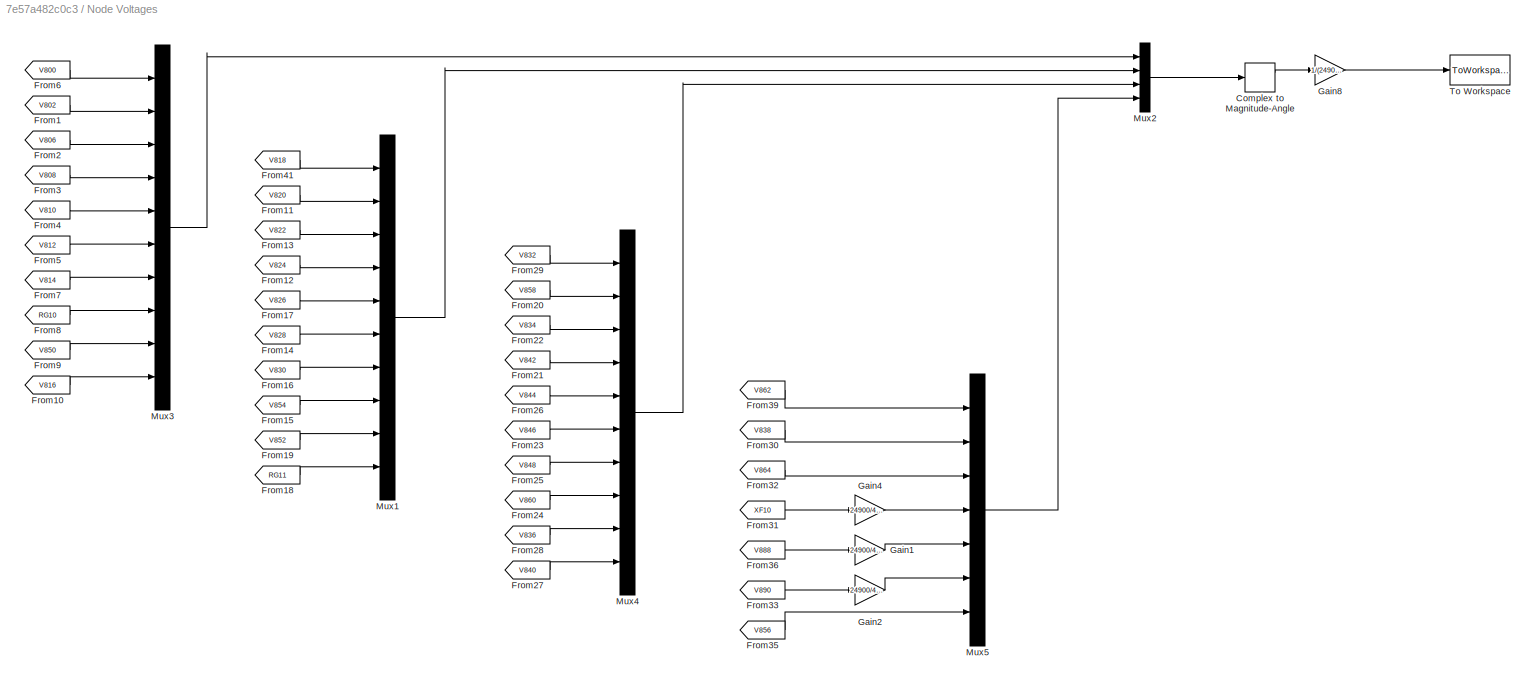
BLOCK [SubSystem] Node Voltages
  Ports = []
  RequestExecContextInheritance = off
BLOCK [ComplexToMagnitudeAngle] Node Voltages/Complex to Magnitude-Angle
  Ports = [1, 2]
BLOCK [From] Node Voltages/From1
  GotoTag = V802
  TagVisibility = global
BLOCK [From] Node Voltages/From10
  GotoTag = V816
  TagVisibility = global
BLOCK [From] Node Voltages/From11
  GotoTag = V820
  TagVisibility = global
BLOCK [From] Node Voltages/From12
  GotoTag = V824
  TagVisibility = global
BLOCK [From] Node Voltages/From13
  GotoTag = V822
  TagVisibility = global
BLOCK [From] Node Voltages/From14
  GotoTag = V828
  TagVisibility = global
BLOCK [From] Node Voltages/From15
  GotoTag = V854
  TagVisibility = global
BLOCK [From] Node Voltages/From16
  GotoTag = V830
  TagVisibility = global
BLOCK [From] Node Voltages/From17
  GotoTag = V826
  TagVisibility = global
BLOCK [From] Node Voltages/From18
  GotoTag = RG11
  TagVisibility = global
BLOCK [From] Node Voltages/From19
  GotoTag = V852
  TagVisibility = global
BLOCK [From] Node Voltages/From2
  GotoTag = V806
  TagVisibility = global
BLOCK [From] Node Voltages/From20
  GotoTag = V858
  TagVisibility = global
BLOCK [From] Node Voltages/From21
  GotoTag = V842
  TagVisibility = global
BLOCK [From] Node Voltages/From22
  GotoTag = V834
  TagVisibility = global
BLOCK [From] Node Voltages/From23
  GotoTag = V846
  TagVisibility = global
BLOCK [From] Node Voltages/From24
  GotoTag = V860
  TagVisibility = global
BLOCK [From] Node Voltages/From25
  GotoTag = V848
  TagVisibility = global
BLOCK [From] Node Voltages/From26
  GotoTag = V844
  TagVisibility = global
BLOCK [From] Node Voltages/From27
  GotoTag = V840
  TagVisibility = global
BLOCK [From] Node Voltages/From28
  GotoTag = V836
  TagVisibility = global
BLOCK [From] Node Voltages/From29
  GotoTag = V832
  TagVisibility = global
BLOCK [From] Node Voltages/From3
  GotoTag = V808
  TagVisibility = global
BLOCK [From] Node Voltages/From30
  GotoTag = V838
  TagVisibility = global
BLOCK [From] Node Voltages/From31
  GotoTag = XF10
  TagVisibility = global
BLOCK [From] Node Voltages/From32
  GotoTag = V864
  TagVisibility = global
BLOCK [From] Node Voltages/From33
  GotoTag = V890
  TagVisibility = global
BLOCK [From] Node Voltages/From35
  GotoTag = V856
  TagVisibility = global
BLOCK [From] Node Voltages/From36
  GotoTag = V888
  TagVisibility = global
BLOCK [From] Node Voltages/From39
  GotoTag = V862
  TagVisibility = global
BLOCK [From] Node Voltages/From4
  GotoTag = V810
  TagVisibility = global
BLOCK [From] Node Voltages/From41
  GotoTag = V818
  TagVisibility = global
BLOCK [From] Node Voltages/From5
  GotoTag = V812
  TagVisibility = global
BLOCK [From] Node Voltages/From6
  GotoTag = V800
  TagVisibility = global
BLOCK [From] Node Voltages/From7
  GotoTag = V814
  TagVisibility = global
BLOCK [From] Node Voltages/From8
  GotoTag = RG10
  TagVisibility = global
BLOCK [From] Node Voltages/From9
  GotoTag = V850
  TagVisibility = global
BLOCK [Gain] Node Voltages/Gain1
  Gain = 24900/4160
  OutDataTypeStr = Inherit: Inherit via internal rule
  ParamDataTypeStr = Inherit: Inherit via internal rule
  SaturateOnIntegerOverflow = off
BLOCK [Gain] Node Voltages/Gain2
  Gain = 24900/4160
  OutDataTypeStr = Inherit: Inherit via internal rule
  ParamDataTypeStr = Inherit: Inherit via internal rule
  SaturateOnIntegerOverflow = off
BLOCK [Gain] Node Voltages/Gain4
  Gain = 24900/4160
  OutDataTypeStr = Inherit: Inherit via internal rule
  ParamDataTypeStr = Inherit: Inherit via internal rule
  SaturateOnIntegerOverflow = off
BLOCK [Gain] Node Voltages/Gain8
  Gain = 1/(24900/sqrt(3))*1/sqrt(2)
  OutDataTypeStr = Inherit: Inherit via internal rule
  ParamDataTypeStr = Inherit: Inherit via internal rule
  SaturateOnIntegerOverflow = off
BLOCK [Mux] Node Voltages/Mux1
  DisplayOption = bar
  Inputs = 10
  Ports = [10, 1]
BLOCK [Mux] Node Voltages/Mux2
  DisplayOption = bar
  Ports = [4, 1]
BLOCK [Mux] Node Voltages/Mux3
  DisplayOption = bar
  Inputs = 10
  Ports = [10, 1]
BLOCK [Mux] Node Voltages/Mux4
  DisplayOption = bar
  Inputs = 10
  Ports = [10, 1]
BLOCK [Mux] Node Voltages/Mux5
  DisplayOption = bar
  Inputs = 7
  Ports = [7, 1]
BLOCK [ToWorkspace] Node Voltages/To Workspace
  FixptAsFi = on
  MaxDataPoints = inf
  Ports = [1]
  SampleTime = 0.1
  VariableName = V34
BLOCK [Reference] RG10  REF=powerlib/Measurements/Three-Phase
V-I Measurement
  Ports = [0, 0, 0, 0, 0, 3, 3]
  SourceBlock = powerlib/Measurements/Three-Phase\nV-I Measurement
  SourceProductBaseCode = PS
  SourceProductName = Simscape Electrical
  SourceType = Three-Phase VI Measurement
BLOCK [Reference] RG11  REF=powerlib/Measurements/Three-Phase
V-I Measurement
  Ports = [0, 0, 0, 0, 0, 3, 3]
  SourceBlock = powerlib/Measurements/Three-Phase\nV-I Measurement
  SourceProductBaseCode = PS
  SourceProductName = Simscape Electrical
  SourceType = Three-Phase VI Measurement
BLOCK [SubSystem] Regulator 1
  Ports = [0, 1, 0, 0, 0, 3, 3]
  RequestExecContextInheritance = off
BLOCK [PMIOPort] Regulator 1/A
  Side = Left
BLOCK [PMIOPort] Regulator 1/B
  Port = 3
  Side = Left
BLOCK [PMIOPort] Regulator 1/C
  Port = 5
  Side = Left
BLOCK [Mux] Regulator 1/Mux
  DisplayOption = bar
  Inputs = 3
  Ports = [3, 1]
BLOCK [SubSystem] Regulator 1/Single Phase SVR_A
  LoadFcn = find_system(gcs,'FollowLinks', 'on', 'LookUnderMasks', 'all');
  Ports = [0, 1, 0, 0, 0, 1, 1]
  RequestExecContextInheritance = off
BLOCK [Goto] Regulator 1/Single Phase SVR_A/Goto
  GotoTag = Vr1a
  TagVisibility = global
BLOCK [PMIOPort] Regulator 1/Single Phase SVR_A/L
  Port = 2
  Side = Right
  Tag = PMCPort
BLOCK [SubSystem] Regulator 1/Single Phase SVR_A/Line Drop Compensator
  Ports = [2, 1]
  RequestExecContextInheritance = off
BLOCK [Abs] Regulator 1/Single Phase SVR_A/Line Drop Compensator/Abs1
  SaturateOnIntegerOverflow = off
BLOCK [Gain] Regulator 1/Single Phase SVR_A/Line Drop Compensator/Gain4
  Gain = 1/sqrt(2)
  OutDataTypeStr = Inherit: Inherit via internal rule
  ParamDataTypeStr = Inherit: Inherit via internal rule
  SaturateOnIntegerOverflow = off
BLOCK [Gain] Regulator 1/Single Phase SVR_A/Line Drop Compensator/Gain5
  Gain = Rc+j*Xc
  OutDataTypeStr = Inherit: Inherit via internal rule
  ParamDataTypeStr = Inherit: Inherit via internal rule
  SaturateOnIntegerOverflow = off
BLOCK [Gain] Regulator 1/Single Phase SVR_A/Line Drop Compensator/Gain6
  Gain = 1/sqrt(2)
  OutDataTypeStr = Inherit: Inherit via internal rule
  ParamDataTypeStr = Inherit: Inherit via internal rule
  SaturateOnIntegerOverflow = off
BLOCK [Inport] Regulator 1/Single Phase SVR_A/Line Drop Compensator/Isec
  IconDisplay = Port number
BLOCK [Sum] Regulator 1/Single Phase SVR_A/Line Drop Compensator/Sum1
  IconShape = round
  InputSameDT = off
  Inputs = |+-
  OutDataTypeStr = Inherit: Inherit via internal rule
  Ports = [2, 1]
  SaturateOnIntegerOverflow = off
BLOCK [Outport] Regulator 1/Single Phase SVR_A/Line Drop Compensator/Vm
  IconDisplay = Port number
BLOCK [Inport] Regulator 1/Single Phase SVR_A/Line Drop Compensator/Vsec
  IconDisplay = Port number
  Port = 2
BLOCK [PMIOPort] Regulator 1/Single Phase SVR_A/S
  Side = Left
  Tag = PMCPort
BLOCK [Outport] Regulator 1/Single Phase SVR_A/Tap
  IconDisplay = Port number
  VectorParamsAs1DForOutWhenUnconnected = off
BLOCK [SubSystem] Regulator 1/Single Phase SVR_A/Transformer with Taps
  Ports = [1, 2, 0, 0, 0, 1, 1]
  RequestExecContextInheritance = off
BLOCK [Gain] Regulator 1/Single Phase SVR_A/Transformer with Taps/    
  Gain = (1/ptRatio)
  OutDataTypeStr = Inherit: Inherit via internal rule
  ParamDataTypeStr = Inherit: Inherit via internal rule
  SaturateOnIntegerOverflow = off
BLOCK [Gain] Regulator 1/Single Phase SVR_A/Transformer with Taps/ 1
  Gain = (1/ctRatio)
  OutDataTypeStr = Inherit: Inherit via internal rule
  ParamDataTypeStr = Inherit: Inherit via internal rule
  SaturateOnIntegerOverflow = off
BLOCK [Reference] Regulator 1/Single Phase SVR_A/Transformer with Taps/CT  REF=powerlib/Measurements/Current Measurement
  Ports = [0, 1, 0, 0, 0, 1, 1]
  SourceBlock = powerlib/Measurements/Current Measurement
  SourceProductBaseCode = PS
  SourceProductName = Simscape Electrical
  SourceType = Current Measurement
BLOCK [Reference] Regulator 1/Single Phase SVR_A/Transformer with Taps/Ground1  REF=powerlib/Elements/Ground
  Ports = [0, 0, 0, 0, 0, 1]
  SourceBlock = powerlib/Elements/Ground
  SourceProductBaseCode = PS
  SourceProductName = Simscape Electrical
  SourceType = Ground
BLOCK [Reference] Regulator 1/Single Phase SVR_A/Transformer with Taps/Ground2  REF=powerlib/Elements/Ground
  Ports = [0, 0, 0, 0, 0, 1]
  SourceBlock = powerlib/Elements/Ground
  SourceProductBaseCode = PS
  SourceProductName = Simscape Electrical
  SourceType = Ground
BLOCK [Reference] Regulator 1/Single Phase SVR_A/Transformer with Taps/Ground3  REF=powerlib/Elements/Ground
  Ports = [0, 0, 0, 0, 0, 1]
  SourceBlock = powerlib/Elements/Ground
  SourceProductBaseCode = PS
  SourceProductName = Simscape Electrical
  SourceType = Ground
BLOCK [Outport] Regulator 1/Single Phase SVR_A/Transformer with Taps/Isec
  IconDisplay = Port number
BLOCK [PMIOPort] Regulator 1/Single Phase SVR_A/Transformer with Taps/L
  Side = Right
  Tag = PMCPort
BLOCK [Memory] Regulator 1/Single Phase SVR_A/Transformer with Taps/Memory
BLOCK [Memory] Regulator 1/Single Phase SVR_A/Transformer with Taps/Memory1
BLOCK [Reference] Regulator 1/Single Phase SVR_A/Transformer with Taps/PT  REF=powerlib/Measurements/Voltage Measurement
  Ports = [0, 1, 0, 0, 0, 2]
  SourceBlock = powerlib/Measurements/Voltage Measurement
  SourceProductBaseCode = PS
  SourceProductName = Simscape Electrical
  SourceType = Voltage Measurement
BLOCK [PMIOPort] Regulator 1/Single Phase SVR_A/Transformer with Taps/S
  Port = 2
  Side = Left
BLOCK [SubSystem] Regulator 1/Single Phase SVR_A/Transformer with Taps/Tap Changing Transformer
  Ports = [1, 0, 0, 0, 0, 2, 2]
  RequestExecContextInheritance = off
BLOCK [Constant] Regulator 1/Single Phase SVR_A/Transformer with Taps/Tap Changing Transformer/Constant1
BLOCK [Reference] Regulator 1/Single Phase SVR_A/Transformer with Taps/Tap Changing Transformer/Controlled Current Source1  REF=powerlib/Electrical
Sources/Controlled Current Source
  Ports = [1, 0, 0, 0, 0, 1, 1]
  SourceBlock = powerlib/Electrical\nSources/Controlled Current Source
  SourceProductBaseCode = PS
  SourceProductName = Simscape Electrical
  SourceType = Controlled Current Source
BLOCK [Reference] Regulator 1/Single Phase SVR_A/Transformer with Taps/Tap Changing Transformer/Controlled Voltage Source2  REF=powerlib/Electrical
Sources/Controlled Voltage Source
  Ports = [1, 0, 0, 0, 0, 1, 1]
  SourceBlock = powerlib/Electrical\nSources/Controlled Voltage Source
  SourceProductBaseCode = PS
  SourceProductName = Simscape Electrical
  SourceType = Controlled Voltage Source
BLOCK [Reference] Regulator 1/Single Phase SVR_A/Transformer with Taps/Tap Changing Transformer/Current Measurement1  REF=powerlib/Measurements/Current Measurement
  Ports = [0, 1, 0, 0, 0, 1, 1]
  SourceBlock = powerlib/Measurements/Current Measurement
  SourceProductBaseCode = PS
  SourceProductName = Simscape Electrical
  SourceType = Current Measurement
BLOCK [From] Regulator 1/Single Phase SVR_A/Transformer with Taps/Tap Changing Transformer/From
  GotoTag = Vp
BLOCK [From] Regulator 1/Single Phase SVR_A/Transformer with Taps/Tap Changing Transformer/From1
  GotoTag = V1
BLOCK [From] Regulator 1/Single Phase SVR_A/Transformer with Taps/Tap Changing Transformer/From2
  GotoTag = I2
BLOCK [From] Regulator 1/Single Phase SVR_A/Transformer with Taps/Tap Changing Transformer/From3
  GotoTag = Is
BLOCK [Gain] Regulator 1/Single Phase SVR_A/Transformer with Taps/Tap Changing Transformer/Gain2
  Gain = DeltaU
  OutDataTypeStr = Inherit: Inherit via internal rule
  ParamDataTypeStr = Inherit: Inherit via internal rule
  SaturateOnIntegerOverflow = off
BLOCK [Gain] Regulator 1/Single Phase SVR_A/Transformer with Taps/Tap Changing Transformer/Gain4
  Gain = -1
  OutDataTypeStr = Inherit: Inherit via internal rule
  ParamDataTypeStr = Inherit: Inherit via internal rule
  SaturateOnIntegerOverflow = off
BLOCK [Goto] Regulator 1/Single Phase SVR_A/Transformer with Taps/Tap Changing Transformer/Goto
  GotoTag = Vp
BLOCK [Goto] Regulator 1/Single Phase SVR_A/Transformer with Taps/Tap Changing Transformer/Goto1
  GotoTag = V1
BLOCK [Goto] Regulator 1/Single Phase SVR_A/Transformer with Taps/Tap Changing Transformer/Goto2
  GotoTag = I2
BLOCK [Goto] Regulator 1/Single Phase SVR_A/Transformer with Taps/Tap Changing Transformer/Goto3
  GotoTag = Is
BLOCK [PMIOPort] Regulator 1/Single Phase SVR_A/Transformer with Taps/Tap Changing Transformer/L+
  Port = 3
  Side = Right
BLOCK [PMIOPort] Regulator 1/Single Phase SVR_A/Transformer with Taps/Tap Changing Transformer/L-
  Port = 4
  Side = Right
BLOCK [Memory] Regulator 1/Single Phase SVR_A/Transformer with Taps/Tap Changing Transformer/Memory
BLOCK [Memory] Regulator 1/Single Phase SVR_A/Transformer with Taps/Tap Changing Transformer/Memory1
BLOCK [Product] Regulator 1/Single Phase SVR_A/Transformer with Taps/Tap Changing Transformer/Product4
  InputSameDT = off
  Inputs = **/
  OutDataTypeStr = Inherit: Inherit via internal rule
  Ports = [3, 1]
  SaturateOnIntegerOverflow = off
BLOCK [Product] Regulator 1/Single Phase SVR_A/Transformer with Taps/Tap Changing Transformer/Product5
  InputSameDT = off
  Inputs = **
  OutDataTypeStr = Inherit: Inherit via internal rule
  Ports = [2, 1]
  SaturateOnIntegerOverflow = off
BLOCK [PMIOPort] Regulator 1/Single Phase SVR_A/Transformer with Taps/Tap Changing Transformer/S+
  Side = Left
BLOCK [PMIOPort] Regulator 1/Single Phase SVR_A/Transformer with Taps/Tap Changing Transformer/S-
  Port = 2
  Side = Left
BLOCK [Reference] Regulator 1/Single Phase SVR_A/Transformer with Taps/Tap Changing Transformer/Series RLC Branch1  REF=powerlib/Elements/Series RLC Branch
  Ports = [0, 0, 0, 0, 0, 1, 1]
  SourceBlock = powerlib/Elements/Series RLC Branch
  SourceProductBaseCode = PS
  SourceProductName = Simscape Electrical
  SourceType = Series RLC Branch
BLOCK [Reference] Regulator 1/Single Phase SVR_A/Transformer with Taps/Tap Changing Transformer/Series RLC Branch2  REF=powerlib/Elements/Series RLC Branch
  Ports = [0, 0, 0, 0, 0, 1, 1]
  SourceBlock = powerlib/Elements/Series RLC Branch
  SourceProductBaseCode = PS
  SourceProductName = Simscape Electrical
  SourceType = Series RLC Branch
BLOCK [Reference] Regulator 1/Single Phase SVR_A/Transformer with Taps/Tap Changing Transformer/Series RLC Branch6  REF=powerlib/Elements/Series RLC Branch
  Ports = [0, 0, 0, 0, 0, 1, 1]
  SourceBlock = powerlib/Elements/Series RLC Branch
  SourceProductBaseCode = PS
  SourceProductName = Simscape Electrical
  SourceType = Series RLC Branch
BLOCK [Sum] Regulator 1/Single Phase SVR_A/Transformer with Taps/Tap Changing Transformer/Sum1
  IconShape = round
  InputSameDT = off
  Inputs = ++|
  OutDataTypeStr = Inherit: Inherit via internal rule
  Ports = [2, 1]
  SaturateOnIntegerOverflow = off
BLOCK [Inport] Regulator 1/Single Phase SVR_A/Transformer with Taps/Tap Changing Transformer/Tap
  IconDisplay = Port number
BLOCK [Reference] Regulator 1/Single Phase SVR_A/Transformer with Taps/Tap Changing Transformer/Voltage Measurement1  REF=powerlib/Measurements/Voltage Measurement
  Ports = [0, 1, 0, 0, 0, 2]
  SourceBlock = powerlib/Measurements/Voltage Measurement
  SourceProductBaseCode = PS
  SourceProductName = Simscape Electrical
  SourceType = Voltage Measurement
BLOCK [Outport] Regulator 1/Single Phase SVR_A/Transformer with Taps/Vsec
  IconDisplay = Port number
  Port = 2
BLOCK [Inport] Regulator 1/Single Phase SVR_A/Transformer with Taps/tap
  IconDisplay = Port number
BLOCK [SubSystem] Regulator 1/Single Phase SVR_A/Voltage Regulator Control
  Ports = [1, 1]
  RequestExecContextInheritance = off
BLOCK [Constant] Regulator 1/Single Phase SVR_A/Voltage Regulator Control/Constant
  Value = RegulatorOn
BLOCK [Outport] Regulator 1/Single Phase SVR_A/Voltage Regulator Control/Tap
  IconDisplay = Port number
BLOCK [SubSystem] Regulator 1/Single Phase SVR_A/Voltage Regulator Control/Tap Changer Control
  Ports = [2, 2]
  RequestExecContextInheritance = off
BLOCK [Constant] Regulator 1/Single Phase SVR_A/Voltage Regulator Control/Tap Changer Control/Constant
  Value = -1
BLOCK [Constant] Regulator 1/Single Phase SVR_A/Voltage Regulator Control/Tap Changer Control/Constant1
BLOCK [SubSystem] Regulator 1/Single Phase SVR_A/Voltage Regulator Control/Tap Changer Control/Determine tap position
  Ports = [1, 1, 0, 1]
  RequestExecContextInheritance = off
BLOCK [Memory] Regulator 1/Single Phase SVR_A/Voltage Regulator Control/Tap Changer Control/Determine tap position/Memory
  InheritSampleTime = on
  InitialCondition = InitialPosition
BLOCK [Inport] Regulator 1/Single Phase SVR_A/Voltage Regulator Control/Tap Changer Control/Determine tap position/NewTap
  IconDisplay = Port number
BLOCK [Saturate] Regulator 1/Single Phase SVR_A/Voltage Regulator Control/Tap Changer Control/Determine tap position/Saturation
  InputPortMap = u0
  LowerLimit = MinMaxTap(1)
  Ports = [1, 1]
  UpperLimit = MinMaxTap(2)
BLOCK [Sum] Regulator 1/Single Phase SVR_A/Voltage Regulator Control/Tap Changer Control/Determine tap position/Sum
  IconShape = round
  InputSameDT = off
  Inputs = |++
  OutDataTypeStr = Inherit: Inherit via internal rule
  Ports = [2, 1]
BLOCK [Outport] Regulator 1/Single Phase SVR_A/Voltage Regulator Control/Tap Changer Control/Determine tap position/TapNo
  IconDisplay = Port number
  InitialOutput = InitialPosition
  VectorParamsAs1DForOutWhenUnconnected = off
BLOCK [TriggerPort] Regulator 1/Single Phase SVR_A/Voltage Regulator Control/Tap Changer Control/Determine tap position/Trigger
  Ports = []
  VariantControl = Variant
BLOCK [Inport] Regulator 1/Single Phase SVR_A/Voltage Regulator Control/Tap Changer Control/Down 
  IconDisplay = Port number
  Port = 2
BLOCK [SubSystem] Regulator 1/Single Phase SVR_A/Voltage Regulator Control/Tap Changer Control/Edge Detector
  DialogController = POWERSYS.PowerSysDialog
  Ports = [1, 1]
  RequestExecContextInheritance = off
  ShowPortLabels = none
BLOCK [Constant] Regulator 1/Single Phase SVR_A/Voltage Regulator Control/Tap Changer Control/Edge Detector/Constant1
  Value = model
BLOCK [Demux] Regulator 1/Single Phase SVR_A/Voltage Regulator Control/Tap Changer Control/Edge Detector/Demux
  Outputs = 2
  Ports = [1, 2]
BLOCK [Inport] Regulator 1/Single Phase SVR_A/Voltage Regulator Control/Tap Changer Control/Edge Detector/In
  IconDisplay = Port number
BLOCK [Logic] Regulator 1/Single Phase SVR_A/Voltage Regulator Control/Tap Changer Control/Edge Detector/Logical Operator1
  Operator = OR
  Ports = [2, 1]
BLOCK [Memory] Regulator 1/Single Phase SVR_A/Voltage Regulator Control/Tap Changer Control/Edge Detector/Memory
  InitialCondition = ic
  LinearizeAsDelay = on
BLOCK [MultiPortSwitch] Regulator 1/Single Phase SVR_A/Voltage Regulator Control/Tap Changer Control/Edge Detector/Multiport Switch
  InputSameDT = off
  Ports = [4, 1]
BLOCK [SubSystem] Regulator 1/Single Phase SVR_A/Voltage Regulator Control/Tap Changer Control/Edge Detector/NEGATIVE Edge
  Ports = [2, 1, 1]
  RequestExecContextInheritance = off
  TreatAsAtomicUnit = on
BLOCK [EnablePort] Regulator 1/Single Phase SVR_A/Voltage Regulator Control/Tap Changer Control/Edge Detector/NEGATIVE Edge/Enable
  Ports = []
  PropagateVarSize = During execution
BLOCK [Inport] Regulator 1/Single Phase SVR_A/Voltage Regulator Control/Tap Changer Control/Edge Detector/NEGATIVE Edge/IN
  IconDisplay = Port number
BLOCK [Inport] Regulator 1/Single Phase SVR_A/Voltage Regulator Control/Tap Changer Control/Edge Detector/NEGATIVE Edge/IN previous
  IconDisplay = Port number
  Port = 2
BLOCK [Outport] Regulator 1/Single Phase SVR_A/Voltage Regulator Control/Tap Changer Control/Edge Detector/NEGATIVE Edge/OUT
  IconDisplay = Port number
  VectorParamsAs1DForOutWhenUnconnected = off
BLOCK [RelationalOperator] Regulator 1/Single Phase SVR_A/Voltage Regulator Control/Tap Changer Control/Edge Detector/NEGATIVE Edge/Relational Operator1
  Operator = >
  Ports = [2, 1]
BLOCK [Outport] Regulator 1/Single Phase SVR_A/Voltage Regulator Control/Tap Changer Control/Edge Detector/Out
  IconDisplay = Port number
  VectorParamsAs1DForOutWhenUnconnected = off
BLOCK [SubSystem] Regulator 1/Single Phase SVR_A/Voltage Regulator Control/Tap Changer Control/Edge Detector/POSITIVE Edge
  Ports = [2, 1, 1]
  RequestExecContextInheritance = off
  TreatAsAtomicUnit = on
BLOCK [EnablePort] Regulator 1/Single Phase SVR_A/Voltage Regulator Control/Tap Changer Control/Edge Detector/POSITIVE Edge/Enable
  Ports = []
  PropagateVarSize = During execution
BLOCK [Inport] Regulator 1/Single Phase SVR_A/Voltage Regulator Control/Tap Changer Control/Edge Detector/POSITIVE Edge/IN
  IconDisplay = Port number
BLOCK [Inport] Regulator 1/Single Phase SVR_A/Voltage Regulator Control/Tap Changer Control/Edge Detector/POSITIVE Edge/IN previous
  IconDisplay = Port number
  Port = 2
BLOCK [Outport] Regulator 1/Single Phase SVR_A/Voltage Regulator Control/Tap Changer Control/Edge Detector/POSITIVE Edge/OUT
  IconDisplay = Port number
  VectorParamsAs1DForOutWhenUnconnected = off
BLOCK [RelationalOperator] Regulator 1/Single Phase SVR_A/Voltage Regulator Control/Tap Changer Control/Edge Detector/POSITIVE Edge/Relational Operator1
  Operator = >
  Ports = [2, 1]
BLOCK [Constant] Regulator 1/Single Phase SVR_A/Voltage Regulator Control/Tap Changer Control/Edge Detector/either edge
  Value = [1 1]
BLOCK [Constant] Regulator 1/Single Phase SVR_A/Voltage Regulator Control/Tap Changer Control/Edge Detector/neg. edge
  Value = [0 1]
BLOCK [Constant] Regulator 1/Single Phase SVR_A/Voltage Regulator Control/Tap Changer Control/Edge Detector/pos. edge
  Value = [1 0]
BLOCK [Logic] Regulator 1/Single Phase SVR_A/Voltage Regulator Control/Tap Changer Control/Logical Operator
  AllPortsSameDT = off
  Operator = OR
  Ports = [2, 1]
BLOCK [Logic] Regulator 1/Single Phase SVR_A/Voltage Regulator Control/Tap Changer Control/Logical Operator1
  AllPortsSameDT = off
  Ports = [2, 1]
BLOCK [TransportDelay] Regulator 1/Single Phase SVR_A/Voltage Regulator Control/Tap Changer Control/Mechanical Delay
  BufferSize = 5120
  DelayTime = MecDelay
  InitialOutput = InitialPosition
  Ports = [1, 1]
BLOCK [Memory] Regulator 1/Single Phase SVR_A/Voltage Regulator Control/Tap Changer Control/Memory
  InheritSampleTime = on
  InitialCondition = 1
BLOCK [Outport] Regulator 1/Single Phase SVR_A/Voltage Regulator Control/Tap Changer Control/Ready
  IconDisplay = Port number
  Port = 2
  VectorParamsAs1DForOutWhenUnconnected = off
BLOCK [RelationalOperator] Regulator 1/Single Phase SVR_A/Voltage Regulator Control/Tap Changer Control/Relational Operator
  InputSameDT = off
  Operator = ==
  OutDataTypeStr = float('double')
  Ports = [2, 1]
BLOCK [Switch] Regulator 1/Single Phase SVR_A/Voltage Regulator Control/Tap Changer Control/Switch
  InputSameDT = off
  Threshold = 0.5
BLOCK [Outport] Regulator 1/Single Phase SVR_A/Voltage Regulator Control/Tap Changer Control/TapNo
  IconDisplay = Port number
  VectorParamsAs1DForOutWhenUnconnected = off
BLOCK [Inport] Regulator 1/Single Phase SVR_A/Voltage Regulator Control/Tap Changer Control/Up 
  IconDisplay = Port number
BLOCK [Inport] Regulator 1/Single Phase SVR_A/Voltage Regulator Control/Vm
  IconDisplay = Port number
BLOCK [SubSystem] Regulator 1/Single Phase SVR_A/Voltage Regulator Control/Voltage regulator
  Ports = [3, 2]
  RequestExecContextInheritance = off
BLOCK [DeadZone] Regulator 1/Single Phase SVR_A/Voltage Regulator Control/Voltage regulator/Dead Zone
  LowerValue = -DeadBand/2
  UpperValue = +DeadBand/2
BLOCK [Reference] Regulator 1/Single Phase SVR_A/Voltage Regulator Control/Voltage regulator/Discrete Variable Time Delay  REF=powerlib_meascontrol/Additional Components/Discrete Variable
Time Delay
  Ports = [2, 1]
  SourceBlock = powerlib_meascontrol/Additional Components/Discrete Variable\nTime Delay
  SourceProductBaseCode = PS
  SourceProductName = Simscape Electrical
  SourceType = Discrete Variable Time Delay
BLOCK [Outport] Regulator 1/Single Phase SVR_A/Voltage Regulator Control/Voltage regulator/Down
  IconDisplay = Port number
  Port = 2
  VectorParamsAs1DForOutWhenUnconnected = off
BLOCK [Logic] Regulator 1/Single Phase SVR_A/Voltage Regulator Control/Voltage regulator/Logical Operator
  AllPortsSameDT = off
  Ports = [2, 1]
BLOCK [Logic] Regulator 1/Single Phase SVR_A/Voltage Regulator Control/Voltage regulator/Logical Operator1
  AllPortsSameDT = off
  Ports = [2, 1]
BLOCK [Reference] Regulator 1/Single Phase SVR_A/Voltage Regulator Control/Voltage regulator/On Delay  REF=powerlib_meascontrol/Logic/On Delay
  Ports = [1, 1]
  SourceBlock = powerlib_meascontrol/Logic/On Delay
  SourceProductBaseCode = PS
  SourceProductName = Simscape Electrical
  SourceType = On/Off Delay
BLOCK [Reference] Regulator 1/Single Phase SVR_A/Voltage Regulator Control/Voltage regulator/On Delay1  REF=powerlib_meascontrol/Logic/On Delay
  Ports = [1, 1]
  SourceBlock = powerlib_meascontrol/Logic/On Delay
  SourceProductBaseCode = PS
  SourceProductName = Simscape Electrical
  SourceType = On/Off Delay
BLOCK [Inport] Regulator 1/Single Phase SVR_A/Voltage Regulator Control/Voltage regulator/Ready
  IconDisplay = Port number
  Port = 2
BLOCK [Inport] Regulator 1/Single Phase SVR_A/Voltage Regulator Control/Voltage regulator/RegOn
  IconDisplay = Port number
  Port = 3
BLOCK [RelationalOperator] Regulator 1/Single Phase SVR_A/Voltage Regulator Control/Voltage regulator/Relational Operator
  InputSameDT = off
  Operator = >
  Ports = [2, 1]
BLOCK [RelationalOperator] Regulator 1/Single Phase SVR_A/Voltage Regulator Control/Voltage regulator/Relational Operator1
  InputSameDT = off
  Operator = <
  Ports = [2, 1]
BLOCK [Sum] Regulator 1/Single Phase SVR_A/Voltage Regulator Control/Voltage regulator/Sum
  IconShape = round
  InputSameDT = off
  Inputs = |+-
  OutDataTypeStr = Inherit: Inherit via internal rule
  Ports = [2, 1]
BLOCK [Switch] Regulator 1/Single Phase SVR_A/Voltage Regulator Control/Voltage regulator/Switch
  InputSameDT = off
  Threshold = 1.5
BLOCK [Outport] Regulator 1/Single Phase SVR_A/Voltage Regulator Control/Voltage regulator/Up
  IconDisplay = Port number
  VectorParamsAs1DForOutWhenUnconnected = off
BLOCK [Inport] Regulator 1/Single Phase SVR_A/Voltage Regulator Control/Voltage regulator/Vmes (pu)
  IconDisplay = Port number
BLOCK [Constant] Regulator 1/Single Phase SVR_A/Voltage Regulator Control/Voltage regulator/Vref
  Value = Vref
BLOCK [Constant] Regulator 1/Single Phase SVR_A/Voltage Regulator Control/Voltage regulator/Vref1
  Value = 0
BLOCK [Constant] Regulator 1/Single Phase SVR_A/Voltage Regulator Control/Voltage regulator/Vref2
  Value = 0
BLOCK [Constant] Regulator 1/Single Phase SVR_A/Voltage Regulator Control/Voltage regulator/Vref3
  Value = 0
BLOCK [Constant] Regulator 1/Single Phase SVR_A/Voltage Regulator Control/Voltage regulator/Vref4
  Value = 3/60
BLOCK [SubSystem] Regulator 1/Single Phase SVR_B
  LoadFcn = find_system(gcs,'FollowLinks', 'on', 'LookUnderMasks', 'all');
  Ports = [0, 1, 0, 0, 0, 1, 1]
  RequestExecContextInheritance = off
BLOCK [Goto] Regulator 1/Single Phase SVR_B/Goto
  GotoTag = Vr1b
  TagVisibility = global
BLOCK [PMIOPort] Regulator 1/Single Phase SVR_B/L
  Port = 2
  Side = Right
  Tag = PMCPort
BLOCK [SubSystem] Regulator 1/Single Phase SVR_B/Line Drop Compensator
  Ports = [2, 1]
  RequestExecContextInheritance = off
BLOCK [Abs] Regulator 1/Single Phase SVR_B/Line Drop Compensator/Abs1
  SaturateOnIntegerOverflow = off
BLOCK [Gain] Regulator 1/Single Phase SVR_B/Line Drop Compensator/Gain4
  Gain = 1/sqrt(2)
  OutDataTypeStr = Inherit: Inherit via internal rule
  ParamDataTypeStr = Inherit: Inherit via internal rule
  SaturateOnIntegerOverflow = off
BLOCK [Gain] Regulator 1/Single Phase SVR_B/Line Drop Compensator/Gain5
  Gain = Rc+j*Xc
  OutDataTypeStr = Inherit: Inherit via internal rule
  ParamDataTypeStr = Inherit: Inherit via internal rule
  SaturateOnIntegerOverflow = off
BLOCK [Gain] Regulator 1/Single Phase SVR_B/Line Drop Compensator/Gain6
  Gain = 1/sqrt(2)
  OutDataTypeStr = Inherit: Inherit via internal rule
  ParamDataTypeStr = Inherit: Inherit via internal rule
  SaturateOnIntegerOverflow = off
BLOCK [Inport] Regulator 1/Single Phase SVR_B/Line Drop Compensator/Isec
  IconDisplay = Port number
BLOCK [Sum] Regulator 1/Single Phase SVR_B/Line Drop Compensator/Sum1
  IconShape = round
  InputSameDT = off
  Inputs = |+-
  OutDataTypeStr = Inherit: Inherit via internal rule
  Ports = [2, 1]
  SaturateOnIntegerOverflow = off
BLOCK [Outport] Regulator 1/Single Phase SVR_B/Line Drop Compensator/Vm
  IconDisplay = Port number
BLOCK [Inport] Regulator 1/Single Phase SVR_B/Line Drop Compensator/Vsec
  IconDisplay = Port number
  Port = 2
BLOCK [PMIOPort] Regulator 1/Single Phase SVR_B/S
  Side = Left
  Tag = PMCPort
BLOCK [Outport] Regulator 1/Single Phase SVR_B/Tap
  IconDisplay = Port number
  VectorParamsAs1DForOutWhenUnconnected = off
BLOCK [SubSystem] Regulator 1/Single Phase SVR_B/Transformer with Taps
  Ports = [1, 2, 0, 0, 0, 1, 1]
  RequestExecContextInheritance = off
BLOCK [Gain] Regulator 1/Single Phase SVR_B/Transformer with Taps/    
  Gain = (1/ptRatio)
  OutDataTypeStr = Inherit: Inherit via internal rule
  ParamDataTypeStr = Inherit: Inherit via internal rule
  SaturateOnIntegerOverflow = off
BLOCK [Gain] Regulator 1/Single Phase SVR_B/Transformer with Taps/ 1
  Gain = (1/ctRatio)
  OutDataTypeStr = Inherit: Inherit via internal rule
  ParamDataTypeStr = Inherit: Inherit via internal rule
  SaturateOnIntegerOverflow = off
BLOCK [Reference] Regulator 1/Single Phase SVR_B/Transformer with Taps/CT  REF=powerlib/Measurements/Current Measurement
  Ports = [0, 1, 0, 0, 0, 1, 1]
  SourceBlock = powerlib/Measurements/Current Measurement
  SourceProductBaseCode = PS
  SourceProductName = Simscape Electrical
  SourceType = Current Measurement
BLOCK [Reference] Regulator 1/Single Phase SVR_B/Transformer with Taps/Ground1  REF=powerlib/Elements/Ground
  Ports = [0, 0, 0, 0, 0, 1]
  SourceBlock = powerlib/Elements/Ground
  SourceProductBaseCode = PS
  SourceProductName = Simscape Electrical
  SourceType = Ground
BLOCK [Reference] Regulator 1/Single Phase SVR_B/Transformer with Taps/Ground2  REF=powerlib/Elements/Ground
  Ports = [0, 0, 0, 0, 0, 1]
  SourceBlock = powerlib/Elements/Ground
  SourceProductBaseCode = PS
  SourceProductName = Simscape Electrical
  SourceType = Ground
BLOCK [Reference] Regulator 1/Single Phase SVR_B/Transformer with Taps/Ground3  REF=powerlib/Elements/Ground
  Ports = [0, 0, 0, 0, 0, 1]
  SourceBlock = powerlib/Elements/Ground
  SourceProductBaseCode = PS
  SourceProductName = Simscape Electrical
  SourceType = Ground
BLOCK [Outport] Regulator 1/Single Phase SVR_B/Transformer with Taps/Isec
  IconDisplay = Port number
BLOCK [PMIOPort] Regulator 1/Single Phase SVR_B/Transformer with Taps/L
  Side = Right
  Tag = PMCPort
BLOCK [Memory] Regulator 1/Single Phase SVR_B/Transformer with Taps/Memory
BLOCK [Memory] Regulator 1/Single Phase SVR_B/Transformer with Taps/Memory1
BLOCK [Reference] Regulator 1/Single Phase SVR_B/Transformer with Taps/PT  REF=powerlib/Measurements/Voltage Measurement
  Ports = [0, 1, 0, 0, 0, 2]
  SourceBlock = powerlib/Measurements/Voltage Measurement
  SourceProductBaseCode = PS
  SourceProductName = Simscape Electrical
  SourceType = Voltage Measurement
BLOCK [PMIOPort] Regulator 1/Single Phase SVR_B/Transformer with Taps/S
  Port = 2
  Side = Left
BLOCK [SubSystem] Regulator 1/Single Phase SVR_B/Transformer with Taps/Tap Changing Transformer
  Ports = [1, 0, 0, 0, 0, 2, 2]
  RequestExecContextInheritance = off
BLOCK [Constant] Regulator 1/Single Phase SVR_B/Transformer with Taps/Tap Changing Transformer/Constant1
BLOCK [Reference] Regulator 1/Single Phase SVR_B/Transformer with Taps/Tap Changing Transformer/Controlled Current Source1  REF=powerlib/Electrical
Sources/Controlled Current Source
  Ports = [1, 0, 0, 0, 0, 1, 1]
  SourceBlock = powerlib/Electrical\nSources/Controlled Current Source
  SourceProductBaseCode = PS
  SourceProductName = Simscape Electrical
  SourceType = Controlled Current Source
BLOCK [Reference] Regulator 1/Single Phase SVR_B/Transformer with Taps/Tap Changing Transformer/Controlled Voltage Source2  REF=powerlib/Electrical
Sources/Controlled Voltage Source
  Ports = [1, 0, 0, 0, 0, 1, 1]
  SourceBlock = powerlib/Electrical\nSources/Controlled Voltage Source
  SourceProductBaseCode = PS
  SourceProductName = Simscape Electrical
  SourceType = Controlled Voltage Source
BLOCK [Reference] Regulator 1/Single Phase SVR_B/Transformer with Taps/Tap Changing Transformer/Current Measurement1  REF=powerlib/Measurements/Current Measurement
  Ports = [0, 1, 0, 0, 0, 1, 1]
  SourceBlock = powerlib/Measurements/Current Measurement
  SourceProductBaseCode = PS
  SourceProductName = Simscape Electrical
  SourceType = Current Measurement
BLOCK [From] Regulator 1/Single Phase SVR_B/Transformer with Taps/Tap Changing Transformer/From
  GotoTag = Vp
BLOCK [From] Regulator 1/Single Phase SVR_B/Transformer with Taps/Tap Changing Transformer/From1
  GotoTag = V1
BLOCK [From] Regulator 1/Single Phase SVR_B/Transformer with Taps/Tap Changing Transformer/From2
  GotoTag = I2
BLOCK [From] Regulator 1/Single Phase SVR_B/Transformer with Taps/Tap Changing Transformer/From3
  GotoTag = Is
BLOCK [Gain] Regulator 1/Single Phase SVR_B/Transformer with Taps/Tap Changing Transformer/Gain2
  Gain = DeltaU
  OutDataTypeStr = Inherit: Inherit via internal rule
  ParamDataTypeStr = Inherit: Inherit via internal rule
  SaturateOnIntegerOverflow = off
BLOCK [Gain] Regulator 1/Single Phase SVR_B/Transformer with Taps/Tap Changing Transformer/Gain4
  Gain = -1
  OutDataTypeStr = Inherit: Inherit via internal rule
  ParamDataTypeStr = Inherit: Inherit via internal rule
  SaturateOnIntegerOverflow = off
BLOCK [Goto] Regulator 1/Single Phase SVR_B/Transformer with Taps/Tap Changing Transformer/Goto
  GotoTag = Vp
BLOCK [Goto] Regulator 1/Single Phase SVR_B/Transformer with Taps/Tap Changing Transformer/Goto1
  GotoTag = V1
BLOCK [Goto] Regulator 1/Single Phase SVR_B/Transformer with Taps/Tap Changing Transformer/Goto2
  GotoTag = I2
BLOCK [Goto] Regulator 1/Single Phase SVR_B/Transformer with Taps/Tap Changing Transformer/Goto3
  GotoTag = Is
BLOCK [PMIOPort] Regulator 1/Single Phase SVR_B/Transformer with Taps/Tap Changing Transformer/L+
  Port = 3
  Side = Right
BLOCK [PMIOPort] Regulator 1/Single Phase SVR_B/Transformer with Taps/Tap Changing Transformer/L-
  Port = 4
  Side = Right
BLOCK [Memory] Regulator 1/Single Phase SVR_B/Transformer with Taps/Tap Changing Transformer/Memory
BLOCK [Memory] Regulator 1/Single Phase SVR_B/Transformer with Taps/Tap Changing Transformer/Memory1
BLOCK [Product] Regulator 1/Single Phase SVR_B/Transformer with Taps/Tap Changing Transformer/Product4
  InputSameDT = off
  Inputs = **/
  OutDataTypeStr = Inherit: Inherit via internal rule
  Ports = [3, 1]
  SaturateOnIntegerOverflow = off
BLOCK [Product] Regulator 1/Single Phase SVR_B/Transformer with Taps/Tap Changing Transformer/Product5
  InputSameDT = off
  Inputs = **
  OutDataTypeStr = Inherit: Inherit via internal rule
  Ports = [2, 1]
  SaturateOnIntegerOverflow = off
BLOCK [PMIOPort] Regulator 1/Single Phase SVR_B/Transformer with Taps/Tap Changing Transformer/S+
  Side = Left
BLOCK [PMIOPort] Regulator 1/Single Phase SVR_B/Transformer with Taps/Tap Changing Transformer/S-
  Port = 2
  Side = Left
BLOCK [Reference] Regulator 1/Single Phase SVR_B/Transformer with Taps/Tap Changing Transformer/Series RLC Branch1  REF=powerlib/Elements/Series RLC Branch
  Ports = [0, 0, 0, 0, 0, 1, 1]
  SourceBlock = powerlib/Elements/Series RLC Branch
  SourceProductBaseCode = PS
  SourceProductName = Simscape Electrical
  SourceType = Series RLC Branch
BLOCK [Reference] Regulator 1/Single Phase SVR_B/Transformer with Taps/Tap Changing Transformer/Series RLC Branch2  REF=powerlib/Elements/Series RLC Branch
  Ports = [0, 0, 0, 0, 0, 1, 1]
  SourceBlock = powerlib/Elements/Series RLC Branch
  SourceProductBaseCode = PS
  SourceProductName = Simscape Electrical
  SourceType = Series RLC Branch
BLOCK [Reference] Regulator 1/Single Phase SVR_B/Transformer with Taps/Tap Changing Transformer/Series RLC Branch6  REF=powerlib/Elements/Series RLC Branch
  Ports = [0, 0, 0, 0, 0, 1, 1]
  SourceBlock = powerlib/Elements/Series RLC Branch
  SourceProductBaseCode = PS
  SourceProductName = Simscape Electrical
  SourceType = Series RLC Branch
BLOCK [Sum] Regulator 1/Single Phase SVR_B/Transformer with Taps/Tap Changing Transformer/Sum1
  IconShape = round
  InputSameDT = off
  Inputs = ++|
  OutDataTypeStr = Inherit: Inherit via internal rule
  Ports = [2, 1]
  SaturateOnIntegerOverflow = off
BLOCK [Inport] Regulator 1/Single Phase SVR_B/Transformer with Taps/Tap Changing Transformer/Tap
  IconDisplay = Port number
BLOCK [Reference] Regulator 1/Single Phase SVR_B/Transformer with Taps/Tap Changing Transformer/Voltage Measurement1  REF=powerlib/Measurements/Voltage Measurement
  Ports = [0, 1, 0, 0, 0, 2]
  SourceBlock = powerlib/Measurements/Voltage Measurement
  SourceProductBaseCode = PS
  SourceProductName = Simscape Electrical
  SourceType = Voltage Measurement
BLOCK [Outport] Regulator 1/Single Phase SVR_B/Transformer with Taps/Vsec
  IconDisplay = Port number
  Port = 2
BLOCK [Inport] Regulator 1/Single Phase SVR_B/Transformer with Taps/tap
  IconDisplay = Port number
BLOCK [SubSystem] Regulator 1/Single Phase SVR_B/Voltage Regulator Control
  Ports = [1, 1]
  RequestExecContextInheritance = off
BLOCK [Constant] Regulator 1/Single Phase SVR_B/Voltage Regulator Control/Constant
  Value = RegulatorOn
BLOCK [Outport] Regulator 1/Single Phase SVR_B/Voltage Regulator Control/Tap
  IconDisplay = Port number
BLOCK [SubSystem] Regulator 1/Single Phase SVR_B/Voltage Regulator Control/Tap Changer Control
  Ports = [2, 2]
  RequestExecContextInheritance = off
BLOCK [Constant] Regulator 1/Single Phase SVR_B/Voltage Regulator Control/Tap Changer Control/Constant
  Value = -1
BLOCK [Constant] Regulator 1/Single Phase SVR_B/Voltage Regulator Control/Tap Changer Control/Constant1
BLOCK [SubSystem] Regulator 1/Single Phase SVR_B/Voltage Regulator Control/Tap Changer Control/Determine tap position
  Ports = [1, 1, 0, 1]
  RequestExecContextInheritance = off
BLOCK [Memory] Regulator 1/Single Phase SVR_B/Voltage Regulator Control/Tap Changer Control/Determine tap position/Memory
  InheritSampleTime = on
  InitialCondition = InitialPosition
BLOCK [Inport] Regulator 1/Single Phase SVR_B/Voltage Regulator Control/Tap Changer Control/Determine tap position/NewTap
  IconDisplay = Port number
BLOCK [Saturate] Regulator 1/Single Phase SVR_B/Voltage Regulator Control/Tap Changer Control/Determine tap position/Saturation
  InputPortMap = u0
  LowerLimit = MinMaxTap(1)
  Ports = [1, 1]
  UpperLimit = MinMaxTap(2)
BLOCK [Sum] Regulator 1/Single Phase SVR_B/Voltage Regulator Control/Tap Changer Control/Determine tap position/Sum
  IconShape = round
  InputSameDT = off
  Inputs = |++
  OutDataTypeStr = Inherit: Inherit via internal rule
  Ports = [2, 1]
BLOCK [Outport] Regulator 1/Single Phase SVR_B/Voltage Regulator Control/Tap Changer Control/Determine tap position/TapNo
  IconDisplay = Port number
  InitialOutput = InitialPosition
  VectorParamsAs1DForOutWhenUnconnected = off
BLOCK [TriggerPort] Regulator 1/Single Phase SVR_B/Voltage Regulator Control/Tap Changer Control/Determine tap position/Trigger
  Ports = []
  VariantControl = Variant
BLOCK [Inport] Regulator 1/Single Phase SVR_B/Voltage Regulator Control/Tap Changer Control/Down 
  IconDisplay = Port number
  Port = 2
BLOCK [SubSystem] Regulator 1/Single Phase SVR_B/Voltage Regulator Control/Tap Changer Control/Edge Detector
  DialogController = POWERSYS.PowerSysDialog
  Ports = [1, 1]
  RequestExecContextInheritance = off
  ShowPortLabels = none
BLOCK [Constant] Regulator 1/Single Phase SVR_B/Voltage Regulator Control/Tap Changer Control/Edge Detector/Constant1
  Value = model
BLOCK [Demux] Regulator 1/Single Phase SVR_B/Voltage Regulator Control/Tap Changer Control/Edge Detector/Demux
  Outputs = 2
  Ports = [1, 2]
BLOCK [Inport] Regulator 1/Single Phase SVR_B/Voltage Regulator Control/Tap Changer Control/Edge Detector/In
  IconDisplay = Port number
BLOCK [Logic] Regulator 1/Single Phase SVR_B/Voltage Regulator Control/Tap Changer Control/Edge Detector/Logical Operator1
  Operator = OR
  Ports = [2, 1]
BLOCK [Memory] Regulator 1/Single Phase SVR_B/Voltage Regulator Control/Tap Changer Control/Edge Detector/Memory
  InitialCondition = ic
  LinearizeAsDelay = on
BLOCK [MultiPortSwitch] Regulator 1/Single Phase SVR_B/Voltage Regulator Control/Tap Changer Control/Edge Detector/Multiport Switch
  InputSameDT = off
  Ports = [4, 1]
BLOCK [SubSystem] Regulator 1/Single Phase SVR_B/Voltage Regulator Control/Tap Changer Control/Edge Detector/NEGATIVE Edge
  Ports = [2, 1, 1]
  RequestExecContextInheritance = off
  TreatAsAtomicUnit = on
BLOCK [EnablePort] Regulator 1/Single Phase SVR_B/Voltage Regulator Control/Tap Changer Control/Edge Detector/NEGATIVE Edge/Enable
  Ports = []
  PropagateVarSize = During execution
BLOCK [Inport] Regulator 1/Single Phase SVR_B/Voltage Regulator Control/Tap Changer Control/Edge Detector/NEGATIVE Edge/IN
  IconDisplay = Port number
BLOCK [Inport] Regulator 1/Single Phase SVR_B/Voltage Regulator Control/Tap Changer Control/Edge Detector/NEGATIVE Edge/IN previous
  IconDisplay = Port number
  Port = 2
BLOCK [Outport] Regulator 1/Single Phase SVR_B/Voltage Regulator Control/Tap Changer Control/Edge Detector/NEGATIVE Edge/OUT
  IconDisplay = Port number
  VectorParamsAs1DForOutWhenUnconnected = off
BLOCK [RelationalOperator] Regulator 1/Single Phase SVR_B/Voltage Regulator Control/Tap Changer Control/Edge Detector/NEGATIVE Edge/Relational Operator1
  Operator = >
  Ports = [2, 1]
BLOCK [Outport] Regulator 1/Single Phase SVR_B/Voltage Regulator Control/Tap Changer Control/Edge Detector/Out
  IconDisplay = Port number
  VectorParamsAs1DForOutWhenUnconnected = off
BLOCK [SubSystem] Regulator 1/Single Phase SVR_B/Voltage Regulator Control/Tap Changer Control/Edge Detector/POSITIVE Edge
  Ports = [2, 1, 1]
  RequestExecContextInheritance = off
  TreatAsAtomicUnit = on
BLOCK [EnablePort] Regulator 1/Single Phase SVR_B/Voltage Regulator Control/Tap Changer Control/Edge Detector/POSITIVE Edge/Enable
  Ports = []
  PropagateVarSize = During execution
BLOCK [Inport] Regulator 1/Single Phase SVR_B/Voltage Regulator Control/Tap Changer Control/Edge Detector/POSITIVE Edge/IN
  IconDisplay = Port number
BLOCK [Inport] Regulator 1/Single Phase SVR_B/Voltage Regulator Control/Tap Changer Control/Edge Detector/POSITIVE Edge/IN previous
  IconDisplay = Port number
  Port = 2
BLOCK [Outport] Regulator 1/Single Phase SVR_B/Voltage Regulator Control/Tap Changer Control/Edge Detector/POSITIVE Edge/OUT
  IconDisplay = Port number
  VectorParamsAs1DForOutWhenUnconnected = off
BLOCK [RelationalOperator] Regulator 1/Single Phase SVR_B/Voltage Regulator Control/Tap Changer Control/Edge Detector/POSITIVE Edge/Relational Operator1
  Operator = >
  Ports = [2, 1]
BLOCK [Constant] Regulator 1/Single Phase SVR_B/Voltage Regulator Control/Tap Changer Control/Edge Detector/either edge
  Value = [1 1]
BLOCK [Constant] Regulator 1/Single Phase SVR_B/Voltage Regulator Control/Tap Changer Control/Edge Detector/neg. edge
  Value = [0 1]
BLOCK [Constant] Regulator 1/Single Phase SVR_B/Voltage Regulator Control/Tap Changer Control/Edge Detector/pos. edge
  Value = [1 0]
BLOCK [Logic] Regulator 1/Single Phase SVR_B/Voltage Regulator Control/Tap Changer Control/Logical Operator
  AllPortsSameDT = off
  Operator = OR
  Ports = [2, 1]
BLOCK [Logic] Regulator 1/Single Phase SVR_B/Voltage Regulator Control/Tap Changer Control/Logical Operator1
  AllPortsSameDT = off
  Ports = [2, 1]
BLOCK [TransportDelay] Regulator 1/Single Phase SVR_B/Voltage Regulator Control/Tap Changer Control/Mechanical Delay
  BufferSize = 5120
  DelayTime = MecDelay
  InitialOutput = InitialPosition
  Ports = [1, 1]
BLOCK [Memory] Regulator 1/Single Phase SVR_B/Voltage Regulator Control/Tap Changer Control/Memory
  InheritSampleTime = on
  InitialCondition = 1
BLOCK [Outport] Regulator 1/Single Phase SVR_B/Voltage Regulator Control/Tap Changer Control/Ready
  IconDisplay = Port number
  Port = 2
  VectorParamsAs1DForOutWhenUnconnected = off
BLOCK [RelationalOperator] Regulator 1/Single Phase SVR_B/Voltage Regulator Control/Tap Changer Control/Relational Operator
  InputSameDT = off
  Operator = ==
  OutDataTypeStr = float('double')
  Ports = [2, 1]
BLOCK [Switch] Regulator 1/Single Phase SVR_B/Voltage Regulator Control/Tap Changer Control/Switch
  InputSameDT = off
  Threshold = 0.5
BLOCK [Outport] Regulator 1/Single Phase SVR_B/Voltage Regulator Control/Tap Changer Control/TapNo
  IconDisplay = Port number
  VectorParamsAs1DForOutWhenUnconnected = off
BLOCK [Inport] Regulator 1/Single Phase SVR_B/Voltage Regulator Control/Tap Changer Control/Up 
  IconDisplay = Port number
BLOCK [Inport] Regulator 1/Single Phase SVR_B/Voltage Regulator Control/Vm
  IconDisplay = Port number
BLOCK [SubSystem] Regulator 1/Single Phase SVR_B/Voltage Regulator Control/Voltage regulator
  Ports = [3, 2]
  RequestExecContextInheritance = off
BLOCK [DeadZone] Regulator 1/Single Phase SVR_B/Voltage Regulator Control/Voltage regulator/Dead Zone
  LowerValue = -DeadBand/2
  UpperValue = +DeadBand/2
BLOCK [Reference] Regulator 1/Single Phase SVR_B/Voltage Regulator Control/Voltage regulator/Discrete Variable Time Delay  REF=powerlib_meascontrol/Additional Components/Discrete Variable
Time Delay
  Ports = [2, 1]
  SourceBlock = powerlib_meascontrol/Additional Components/Discrete Variable\nTime Delay
  SourceProductBaseCode = PS
  SourceProductName = Simscape Electrical
  SourceType = Discrete Variable Time Delay
BLOCK [Outport] Regulator 1/Single Phase SVR_B/Voltage Regulator Control/Voltage regulator/Down
  IconDisplay = Port number
  Port = 2
  VectorParamsAs1DForOutWhenUnconnected = off
BLOCK [Logic] Regulator 1/Single Phase SVR_B/Voltage Regulator Control/Voltage regulator/Logical Operator
  AllPortsSameDT = off
  Ports = [2, 1]
BLOCK [Logic] Regulator 1/Single Phase SVR_B/Voltage Regulator Control/Voltage regulator/Logical Operator1
  AllPortsSameDT = off
  Ports = [2, 1]
BLOCK [Reference] Regulator 1/Single Phase SVR_B/Voltage Regulator Control/Voltage regulator/On Delay  REF=powerlib_meascontrol/Logic/On Delay
  Ports = [1, 1]
  SourceBlock = powerlib_meascontrol/Logic/On Delay
  SourceProductBaseCode = PS
  SourceProductName = Simscape Electrical
  SourceType = On/Off Delay
BLOCK [Reference] Regulator 1/Single Phase SVR_B/Voltage Regulator Control/Voltage regulator/On Delay1  REF=powerlib_meascontrol/Logic/On Delay
  Ports = [1, 1]
  SourceBlock = powerlib_meascontrol/Logic/On Delay
  SourceProductBaseCode = PS
  SourceProductName = Simscape Electrical
  SourceType = On/Off Delay
BLOCK [Inport] Regulator 1/Single Phase SVR_B/Voltage Regulator Control/Voltage regulator/Ready
  IconDisplay = Port number
  Port = 2
BLOCK [Inport] Regulator 1/Single Phase SVR_B/Voltage Regulator Control/Voltage regulator/RegOn
  IconDisplay = Port number
  Port = 3
BLOCK [RelationalOperator] Regulator 1/Single Phase SVR_B/Voltage Regulator Control/Voltage regulator/Relational Operator
  InputSameDT = off
  Operator = >
  Ports = [2, 1]
BLOCK [RelationalOperator] Regulator 1/Single Phase SVR_B/Voltage Regulator Control/Voltage regulator/Relational Operator1
  InputSameDT = off
  Operator = <
  Ports = [2, 1]
BLOCK [Sum] Regulator 1/Single Phase SVR_B/Voltage Regulator Control/Voltage regulator/Sum
  IconShape = round
  InputSameDT = off
  Inputs = |+-
  OutDataTypeStr = Inherit: Inherit via internal rule
  Ports = [2, 1]
BLOCK [Switch] Regulator 1/Single Phase SVR_B/Voltage Regulator Control/Voltage regulator/Switch
  InputSameDT = off
  Threshold = 1.5
BLOCK [Outport] Regulator 1/Single Phase SVR_B/Voltage Regulator Control/Voltage regulator/Up
  IconDisplay = Port number
  VectorParamsAs1DForOutWhenUnconnected = off
BLOCK [Inport] Regulator 1/Single Phase SVR_B/Voltage Regulator Control/Voltage regulator/Vmes (pu)
  IconDisplay = Port number
BLOCK [Constant] Regulator 1/Single Phase SVR_B/Voltage Regulator Control/Voltage regulator/Vref
  Value = Vref
BLOCK [Constant] Regulator 1/Single Phase SVR_B/Voltage Regulator Control/Voltage regulator/Vref1
  Value = 0
BLOCK [Constant] Regulator 1/Single Phase SVR_B/Voltage Regulator Control/Voltage regulator/Vref2
  Value = 0
BLOCK [Constant] Regulator 1/Single Phase SVR_B/Voltage Regulator Control/Voltage regulator/Vref3
  Value = 0
BLOCK [Constant] Regulator 1/Single Phase SVR_B/Voltage Regulator Control/Voltage regulator/Vref4
  Value = 3/60
BLOCK [SubSystem] Regulator 1/Single Phase SVR_C
  LoadFcn = find_system(gcs,'FollowLinks', 'on', 'LookUnderMasks', 'all');
  Ports = [0, 1, 0, 0, 0, 1, 1]
  RequestExecContextInheritance = off
BLOCK [Goto] Regulator 1/Single Phase SVR_C/Goto
  GotoTag = Vr1c
  TagVisibility = global
BLOCK [PMIOPort] Regulator 1/Single Phase SVR_C/L
  Port = 2
  Side = Right
  Tag = PMCPort
BLOCK [SubSystem] Regulator 1/Single Phase SVR_C/Line Drop Compensator
  Ports = [2, 1]
  RequestExecContextInheritance = off
BLOCK [Abs] Regulator 1/Single Phase SVR_C/Line Drop Compensator/Abs1
  SaturateOnIntegerOverflow = off
BLOCK [Gain] Regulator 1/Single Phase SVR_C/Line Drop Compensator/Gain4
  Gain = 1/sqrt(2)
  OutDataTypeStr = Inherit: Inherit via internal rule
  ParamDataTypeStr = Inherit: Inherit via internal rule
  SaturateOnIntegerOverflow = off
BLOCK [Gain] Regulator 1/Single Phase SVR_C/Line Drop Compensator/Gain5
  Gain = Rc+j*Xc
  OutDataTypeStr = Inherit: Inherit via internal rule
  ParamDataTypeStr = Inherit: Inherit via internal rule
  SaturateOnIntegerOverflow = off
BLOCK [Gain] Regulator 1/Single Phase SVR_C/Line Drop Compensator/Gain6
  Gain = 1/sqrt(2)
  OutDataTypeStr = Inherit: Inherit via internal rule
  ParamDataTypeStr = Inherit: Inherit via internal rule
  SaturateOnIntegerOverflow = off
BLOCK [Inport] Regulator 1/Single Phase SVR_C/Line Drop Compensator/Isec
  IconDisplay = Port number
BLOCK [Sum] Regulator 1/Single Phase SVR_C/Line Drop Compensator/Sum1
  IconShape = round
  InputSameDT = off
  Inputs = |+-
  OutDataTypeStr = Inherit: Inherit via internal rule
  Ports = [2, 1]
  SaturateOnIntegerOverflow = off
BLOCK [Outport] Regulator 1/Single Phase SVR_C/Line Drop Compensator/Vm
  IconDisplay = Port number
BLOCK [Inport] Regulator 1/Single Phase SVR_C/Line Drop Compensator/Vsec
  IconDisplay = Port number
  Port = 2
BLOCK [PMIOPort] Regulator 1/Single Phase SVR_C/S
  Side = Left
  Tag = PMCPort
BLOCK [Outport] Regulator 1/Single Phase SVR_C/Tap
  IconDisplay = Port number
  VectorParamsAs1DForOutWhenUnconnected = off
BLOCK [SubSystem] Regulator 1/Single Phase SVR_C/Transformer with Taps
  Ports = [1, 2, 0, 0, 0, 1, 1]
  RequestExecContextInheritance = off
BLOCK [Gain] Regulator 1/Single Phase SVR_C/Transformer with Taps/    
  Gain = (1/ptRatio)
  OutDataTypeStr = Inherit: Inherit via internal rule
  ParamDataTypeStr = Inherit: Inherit via internal rule
  SaturateOnIntegerOverflow = off
BLOCK [Gain] Regulator 1/Single Phase SVR_C/Transformer with Taps/ 1
  Gain = (1/ctRatio)
  OutDataTypeStr = Inherit: Inherit via internal rule
  ParamDataTypeStr = Inherit: Inherit via internal rule
  SaturateOnIntegerOverflow = off
BLOCK [Reference] Regulator 1/Single Phase SVR_C/Transformer with Taps/CT  REF=powerlib/Measurements/Current Measurement
  Ports = [0, 1, 0, 0, 0, 1, 1]
  SourceBlock = powerlib/Measurements/Current Measurement
  SourceProductBaseCode = PS
  SourceProductName = Simscape Electrical
  SourceType = Current Measurement
BLOCK [Reference] Regulator 1/Single Phase SVR_C/Transformer with Taps/Ground1  REF=powerlib/Elements/Ground
  Ports = [0, 0, 0, 0, 0, 1]
  SourceBlock = powerlib/Elements/Ground
  SourceProductBaseCode = PS
  SourceProductName = Simscape Electrical
  SourceType = Ground
BLOCK [Reference] Regulator 1/Single Phase SVR_C/Transformer with Taps/Ground2  REF=powerlib/Elements/Ground
  Ports = [0, 0, 0, 0, 0, 1]
  SourceBlock = powerlib/Elements/Ground
  SourceProductBaseCode = PS
  SourceProductName = Simscape Electrical
  SourceType = Ground
BLOCK [Reference] Regulator 1/Single Phase SVR_C/Transformer with Taps/Ground3  REF=powerlib/Elements/Ground
  Ports = [0, 0, 0, 0, 0, 1]
  SourceBlock = powerlib/Elements/Ground
  SourceProductBaseCode = PS
  SourceProductName = Simscape Electrical
  SourceType = Ground
BLOCK [Outport] Regulator 1/Single Phase SVR_C/Transformer with Taps/Isec
  IconDisplay = Port number
BLOCK [PMIOPort] Regulator 1/Single Phase SVR_C/Transformer with Taps/L
  Side = Right
  Tag = PMCPort
BLOCK [Memory] Regulator 1/Single Phase SVR_C/Transformer with Taps/Memory
BLOCK [Memory] Regulator 1/Single Phase SVR_C/Transformer with Taps/Memory1
BLOCK [Reference] Regulator 1/Single Phase SVR_C/Transformer with Taps/PT  REF=powerlib/Measurements/Voltage Measurement
  Ports = [0, 1, 0, 0, 0, 2]
  SourceBlock = powerlib/Measurements/Voltage Measurement
  SourceProductBaseCode = PS
  SourceProductName = Simscape Electrical
  SourceType = Voltage Measurement
BLOCK [PMIOPort] Regulator 1/Single Phase SVR_C/Transformer with Taps/S
  Port = 2
  Side = Left
BLOCK [SubSystem] Regulator 1/Single Phase SVR_C/Transformer with Taps/Tap Changing Transformer
  Ports = [1, 0, 0, 0, 0, 2, 2]
  RequestExecContextInheritance = off
BLOCK [Constant] Regulator 1/Single Phase SVR_C/Transformer with Taps/Tap Changing Transformer/Constant1
BLOCK [Reference] Regulator 1/Single Phase SVR_C/Transformer with Taps/Tap Changing Transformer/Controlled Current Source1  REF=powerlib/Electrical
Sources/Controlled Current Source
  Ports = [1, 0, 0, 0, 0, 1, 1]
  SourceBlock = powerlib/Electrical\nSources/Controlled Current Source
  SourceProductBaseCode = PS
  SourceProductName = Simscape Electrical
  SourceType = Controlled Current Source
BLOCK [Reference] Regulator 1/Single Phase SVR_C/Transformer with Taps/Tap Changing Transformer/Controlled Voltage Source2  REF=powerlib/Electrical
Sources/Controlled Voltage Source
  Ports = [1, 0, 0, 0, 0, 1, 1]
  SourceBlock = powerlib/Electrical\nSources/Controlled Voltage Source
  SourceProductBaseCode = PS
  SourceProductName = Simscape Electrical
  SourceType = Controlled Voltage Source
BLOCK [Reference] Regulator 1/Single Phase SVR_C/Transformer with Taps/Tap Changing Transformer/Current Measurement1  REF=powerlib/Measurements/Current Measurement
  Ports = [0, 1, 0, 0, 0, 1, 1]
  SourceBlock = powerlib/Measurements/Current Measurement
  SourceProductBaseCode = PS
  SourceProductName = Simscape Electrical
  SourceType = Current Measurement
BLOCK [From] Regulator 1/Single Phase SVR_C/Transformer with Taps/Tap Changing Transformer/From
  GotoTag = Vp
BLOCK [From] Regulator 1/Single Phase SVR_C/Transformer with Taps/Tap Changing Transformer/From1
  GotoTag = V1
BLOCK [From] Regulator 1/Single Phase SVR_C/Transformer with Taps/Tap Changing Transformer/From2
  GotoTag = I2
BLOCK [From] Regulator 1/Single Phase SVR_C/Transformer with Taps/Tap Changing Transformer/From3
  GotoTag = Is
BLOCK [Gain] Regulator 1/Single Phase SVR_C/Transformer with Taps/Tap Changing Transformer/Gain2
  Gain = DeltaU
  OutDataTypeStr = Inherit: Inherit via internal rule
  ParamDataTypeStr = Inherit: Inherit via internal rule
  SaturateOnIntegerOverflow = off
BLOCK [Gain] Regulator 1/Single Phase SVR_C/Transformer with Taps/Tap Changing Transformer/Gain4
  Gain = -1
  OutDataTypeStr = Inherit: Inherit via internal rule
  ParamDataTypeStr = Inherit: Inherit via internal rule
  SaturateOnIntegerOverflow = off
BLOCK [Goto] Regulator 1/Single Phase SVR_C/Transformer with Taps/Tap Changing Transformer/Goto
  GotoTag = Vp
BLOCK [Goto] Regulator 1/Single Phase SVR_C/Transformer with Taps/Tap Changing Transformer/Goto1
  GotoTag = V1
BLOCK [Goto] Regulator 1/Single Phase SVR_C/Transformer with Taps/Tap Changing Transformer/Goto2
  GotoTag = I2
BLOCK [Goto] Regulator 1/Single Phase SVR_C/Transformer with Taps/Tap Changing Transformer/Goto3
  GotoTag = Is
BLOCK [PMIOPort] Regulator 1/Single Phase SVR_C/Transformer with Taps/Tap Changing Transformer/L+
  Port = 3
  Side = Right
BLOCK [PMIOPort] Regulator 1/Single Phase SVR_C/Transformer with Taps/Tap Changing Transformer/L-
  Port = 4
  Side = Right
BLOCK [Memory] Regulator 1/Single Phase SVR_C/Transformer with Taps/Tap Changing Transformer/Memory
BLOCK [Memory] Regulator 1/Single Phase SVR_C/Transformer with Taps/Tap Changing Transformer/Memory1
BLOCK [Product] Regulator 1/Single Phase SVR_C/Transformer with Taps/Tap Changing Transformer/Product4
  InputSameDT = off
  Inputs = **/
  OutDataTypeStr = Inherit: Inherit via internal rule
  Ports = [3, 1]
  SaturateOnIntegerOverflow = off
BLOCK [Product] Regulator 1/Single Phase SVR_C/Transformer with Taps/Tap Changing Transformer/Product5
  InputSameDT = off
  Inputs = **
  OutDataTypeStr = Inherit: Inherit via internal rule
  Ports = [2, 1]
  SaturateOnIntegerOverflow = off
BLOCK [PMIOPort] Regulator 1/Single Phase SVR_C/Transformer with Taps/Tap Changing Transformer/S+
  Side = Left
BLOCK [PMIOPort] Regulator 1/Single Phase SVR_C/Transformer with Taps/Tap Changing Transformer/S-
  Port = 2
  Side = Left
BLOCK [Reference] Regulator 1/Single Phase SVR_C/Transformer with Taps/Tap Changing Transformer/Series RLC Branch1  REF=powerlib/Elements/Series RLC Branch
  Ports = [0, 0, 0, 0, 0, 1, 1]
  SourceBlock = powerlib/Elements/Series RLC Branch
  SourceProductBaseCode = PS
  SourceProductName = Simscape Electrical
  SourceType = Series RLC Branch
BLOCK [Reference] Regulator 1/Single Phase SVR_C/Transformer with Taps/Tap Changing Transformer/Series RLC Branch2  REF=powerlib/Elements/Series RLC Branch
  Ports = [0, 0, 0, 0, 0, 1, 1]
  SourceBlock = powerlib/Elements/Series RLC Branch
  SourceProductBaseCode = PS
  SourceProductName = Simscape Electrical
  SourceType = Series RLC Branch
BLOCK [Reference] Regulator 1/Single Phase SVR_C/Transformer with Taps/Tap Changing Transformer/Series RLC Branch6  REF=powerlib/Elements/Series RLC Branch
  Ports = [0, 0, 0, 0, 0, 1, 1]
  SourceBlock = powerlib/Elements/Series RLC Branch
  SourceProductBaseCode = PS
  SourceProductName = Simscape Electrical
  SourceType = Series RLC Branch
BLOCK [Sum] Regulator 1/Single Phase SVR_C/Transformer with Taps/Tap Changing Transformer/Sum1
  IconShape = round
  InputSameDT = off
  Inputs = ++|
  OutDataTypeStr = Inherit: Inherit via internal rule
  Ports = [2, 1]
  SaturateOnIntegerOverflow = off
BLOCK [Inport] Regulator 1/Single Phase SVR_C/Transformer with Taps/Tap Changing Transformer/Tap
  IconDisplay = Port number
BLOCK [Reference] Regulator 1/Single Phase SVR_C/Transformer with Taps/Tap Changing Transformer/Voltage Measurement1  REF=powerlib/Measurements/Voltage Measurement
  Ports = [0, 1, 0, 0, 0, 2]
  SourceBlock = powerlib/Measurements/Voltage Measurement
  SourceProductBaseCode = PS
  SourceProductName = Simscape Electrical
  SourceType = Voltage Measurement
BLOCK [Outport] Regulator 1/Single Phase SVR_C/Transformer with Taps/Vsec
  IconDisplay = Port number
  Port = 2
BLOCK [Inport] Regulator 1/Single Phase SVR_C/Transformer with Taps/tap
  IconDisplay = Port number
BLOCK [SubSystem] Regulator 1/Single Phase SVR_C/Voltage Regulator Control
  Ports = [1, 1]
  RequestExecContextInheritance = off
BLOCK [Constant] Regulator 1/Single Phase SVR_C/Voltage Regulator Control/Constant
  Value = RegulatorOn
BLOCK [Outport] Regulator 1/Single Phase SVR_C/Voltage Regulator Control/Tap
  IconDisplay = Port number
BLOCK [SubSystem] Regulator 1/Single Phase SVR_C/Voltage Regulator Control/Tap Changer Control
  Ports = [2, 2]
  RequestExecContextInheritance = off
BLOCK [Constant] Regulator 1/Single Phase SVR_C/Voltage Regulator Control/Tap Changer Control/Constant
  Value = -1
BLOCK [Constant] Regulator 1/Single Phase SVR_C/Voltage Regulator Control/Tap Changer Control/Constant1
BLOCK [SubSystem] Regulator 1/Single Phase SVR_C/Voltage Regulator Control/Tap Changer Control/Determine tap position
  Ports = [1, 1, 0, 1]
  RequestExecContextInheritance = off
BLOCK [Memory] Regulator 1/Single Phase SVR_C/Voltage Regulator Control/Tap Changer Control/Determine tap position/Memory
  InheritSampleTime = on
  InitialCondition = InitialPosition
BLOCK [Inport] Regulator 1/Single Phase SVR_C/Voltage Regulator Control/Tap Changer Control/Determine tap position/NewTap
  IconDisplay = Port number
BLOCK [Saturate] Regulator 1/Single Phase SVR_C/Voltage Regulator Control/Tap Changer Control/Determine tap position/Saturation
  InputPortMap = u0
  LowerLimit = MinMaxTap(1)
  Ports = [1, 1]
  UpperLimit = MinMaxTap(2)
BLOCK [Sum] Regulator 1/Single Phase SVR_C/Voltage Regulator Control/Tap Changer Control/Determine tap position/Sum
  IconShape = round
  InputSameDT = off
  Inputs = |++
  OutDataTypeStr = Inherit: Inherit via internal rule
  Ports = [2, 1]
BLOCK [Outport] Regulator 1/Single Phase SVR_C/Voltage Regulator Control/Tap Changer Control/Determine tap position/TapNo
  IconDisplay = Port number
  InitialOutput = InitialPosition
  VectorParamsAs1DForOutWhenUnconnected = off
BLOCK [TriggerPort] Regulator 1/Single Phase SVR_C/Voltage Regulator Control/Tap Changer Control/Determine tap position/Trigger
  Ports = []
  VariantControl = Variant
BLOCK [Inport] Regulator 1/Single Phase SVR_C/Voltage Regulator Control/Tap Changer Control/Down 
  IconDisplay = Port number
  Port = 2
BLOCK [SubSystem] Regulator 1/Single Phase SVR_C/Voltage Regulator Control/Tap Changer Control/Edge Detector
  DialogController = POWERSYS.PowerSysDialog
  Ports = [1, 1]
  RequestExecContextInheritance = off
  ShowPortLabels = none
BLOCK [Constant] Regulator 1/Single Phase SVR_C/Voltage Regulator Control/Tap Changer Control/Edge Detector/Constant1
  Value = model
BLOCK [Demux] Regulator 1/Single Phase SVR_C/Voltage Regulator Control/Tap Changer Control/Edge Detector/Demux
  Outputs = 2
  Ports = [1, 2]
BLOCK [Inport] Regulator 1/Single Phase SVR_C/Voltage Regulator Control/Tap Changer Control/Edge Detector/In
  IconDisplay = Port number
BLOCK [Logic] Regulator 1/Single Phase SVR_C/Voltage Regulator Control/Tap Changer Control/Edge Detector/Logical Operator1
  Operator = OR
  Ports = [2, 1]
BLOCK [Memory] Regulator 1/Single Phase SVR_C/Voltage Regulator Control/Tap Changer Control/Edge Detector/Memory
  InitialCondition = ic
  LinearizeAsDelay = on
BLOCK [MultiPortSwitch] Regulator 1/Single Phase SVR_C/Voltage Regulator Control/Tap Changer Control/Edge Detector/Multiport Switch
  InputSameDT = off
  Ports = [4, 1]
BLOCK [SubSystem] Regulator 1/Single Phase SVR_C/Voltage Regulator Control/Tap Changer Control/Edge Detector/NEGATIVE Edge
  Ports = [2, 1, 1]
  RequestExecContextInheritance = off
  TreatAsAtomicUnit = on
BLOCK [EnablePort] Regulator 1/Single Phase SVR_C/Voltage Regulator Control/Tap Changer Control/Edge Detector/NEGATIVE Edge/Enable
  Ports = []
  PropagateVarSize = During execution
BLOCK [Inport] Regulator 1/Single Phase SVR_C/Voltage Regulator Control/Tap Changer Control/Edge Detector/NEGATIVE Edge/IN
  IconDisplay = Port number
BLOCK [Inport] Regulator 1/Single Phase SVR_C/Voltage Regulator Control/Tap Changer Control/Edge Detector/NEGATIVE Edge/IN previous
  IconDisplay = Port number
  Port = 2
BLOCK [Outport] Regulator 1/Single Phase SVR_C/Voltage Regulator Control/Tap Changer Control/Edge Detector/NEGATIVE Edge/OUT
  IconDisplay = Port number
  VectorParamsAs1DForOutWhenUnconnected = off
BLOCK [RelationalOperator] Regulator 1/Single Phase SVR_C/Voltage Regulator Control/Tap Changer Control/Edge Detector/NEGATIVE Edge/Relational Operator1
  Operator = >
  Ports = [2, 1]
BLOCK [Outport] Regulator 1/Single Phase SVR_C/Voltage Regulator Control/Tap Changer Control/Edge Detector/Out
  IconDisplay = Port number
  VectorParamsAs1DForOutWhenUnconnected = off
BLOCK [SubSystem] Regulator 1/Single Phase SVR_C/Voltage Regulator Control/Tap Changer Control/Edge Detector/POSITIVE Edge
  Ports = [2, 1, 1]
  RequestExecContextInheritance = off
  TreatAsAtomicUnit = on
BLOCK [EnablePort] Regulator 1/Single Phase SVR_C/Voltage Regulator Control/Tap Changer Control/Edge Detector/POSITIVE Edge/Enable
  Ports = []
  PropagateVarSize = During execution
BLOCK [Inport] Regulator 1/Single Phase SVR_C/Voltage Regulator Control/Tap Changer Control/Edge Detector/POSITIVE Edge/IN
  IconDisplay = Port number
BLOCK [Inport] Regulator 1/Single Phase SVR_C/Voltage Regulator Control/Tap Changer Control/Edge Detector/POSITIVE Edge/IN previous
  IconDisplay = Port number
  Port = 2
BLOCK [Outport] Regulator 1/Single Phase SVR_C/Voltage Regulator Control/Tap Changer Control/Edge Detector/POSITIVE Edge/OUT
  IconDisplay = Port number
  VectorParamsAs1DForOutWhenUnconnected = off
BLOCK [RelationalOperator] Regulator 1/Single Phase SVR_C/Voltage Regulator Control/Tap Changer Control/Edge Detector/POSITIVE Edge/Relational Operator1
  Operator = >
  Ports = [2, 1]
BLOCK [Constant] Regulator 1/Single Phase SVR_C/Voltage Regulator Control/Tap Changer Control/Edge Detector/either edge
  Value = [1 1]
BLOCK [Constant] Regulator 1/Single Phase SVR_C/Voltage Regulator Control/Tap Changer Control/Edge Detector/neg. edge
  Value = [0 1]
BLOCK [Constant] Regulator 1/Single Phase SVR_C/Voltage Regulator Control/Tap Changer Control/Edge Detector/pos. edge
  Value = [1 0]
BLOCK [Logic] Regulator 1/Single Phase SVR_C/Voltage Regulator Control/Tap Changer Control/Logical Operator
  AllPortsSameDT = off
  Operator = OR
  Ports = [2, 1]
BLOCK [Logic] Regulator 1/Single Phase SVR_C/Voltage Regulator Control/Tap Changer Control/Logical Operator1
  AllPortsSameDT = off
  Ports = [2, 1]
BLOCK [TransportDelay] Regulator 1/Single Phase SVR_C/Voltage Regulator Control/Tap Changer Control/Mechanical Delay
  BufferSize = 5120
  DelayTime = MecDelay
  InitialOutput = InitialPosition
  Ports = [1, 1]
BLOCK [Memory] Regulator 1/Single Phase SVR_C/Voltage Regulator Control/Tap Changer Control/Memory
  InheritSampleTime = on
  InitialCondition = 1
BLOCK [Outport] Regulator 1/Single Phase SVR_C/Voltage Regulator Control/Tap Changer Control/Ready
  IconDisplay = Port number
  Port = 2
  VectorParamsAs1DForOutWhenUnconnected = off
BLOCK [RelationalOperator] Regulator 1/Single Phase SVR_C/Voltage Regulator Control/Tap Changer Control/Relational Operator
  InputSameDT = off
  Operator = ==
  OutDataTypeStr = float('double')
  Ports = [2, 1]
BLOCK [Switch] Regulator 1/Single Phase SVR_C/Voltage Regulator Control/Tap Changer Control/Switch
  InputSameDT = off
  Threshold = 0.5
BLOCK [Outport] Regulator 1/Single Phase SVR_C/Voltage Regulator Control/Tap Changer Control/TapNo
  IconDisplay = Port number
  VectorParamsAs1DForOutWhenUnconnected = off
BLOCK [Inport] Regulator 1/Single Phase SVR_C/Voltage Regulator Control/Tap Changer Control/Up 
  IconDisplay = Port number
BLOCK [Inport] Regulator 1/Single Phase SVR_C/Voltage Regulator Control/Vm
  IconDisplay = Port number
BLOCK [SubSystem] Regulator 1/Single Phase SVR_C/Voltage Regulator Control/Voltage regulator
  Ports = [3, 2]
  RequestExecContextInheritance = off
BLOCK [DeadZone] Regulator 1/Single Phase SVR_C/Voltage Regulator Control/Voltage regulator/Dead Zone
  LowerValue = -DeadBand/2
  UpperValue = +DeadBand/2
BLOCK [Reference] Regulator 1/Single Phase SVR_C/Voltage Regulator Control/Voltage regulator/Discrete Variable Time Delay  REF=powerlib_meascontrol/Additional Components/Discrete Variable
Time Delay
  Ports = [2, 1]
  SourceBlock = powerlib_meascontrol/Additional Components/Discrete Variable\nTime Delay
  SourceProductBaseCode = PS
  SourceProductName = Simscape Electrical
  SourceType = Discrete Variable Time Delay
BLOCK [Outport] Regulator 1/Single Phase SVR_C/Voltage Regulator Control/Voltage regulator/Down
  IconDisplay = Port number
  Port = 2
  VectorParamsAs1DForOutWhenUnconnected = off
BLOCK [Logic] Regulator 1/Single Phase SVR_C/Voltage Regulator Control/Voltage regulator/Logical Operator
  AllPortsSameDT = off
  Ports = [2, 1]
BLOCK [Logic] Regulator 1/Single Phase SVR_C/Voltage Regulator Control/Voltage regulator/Logical Operator1
  AllPortsSameDT = off
  Ports = [2, 1]
BLOCK [Reference] Regulator 1/Single Phase SVR_C/Voltage Regulator Control/Voltage regulator/On Delay  REF=powerlib_meascontrol/Logic/On Delay
  Ports = [1, 1]
  SourceBlock = powerlib_meascontrol/Logic/On Delay
  SourceProductBaseCode = PS
  SourceProductName = Simscape Electrical
  SourceType = On/Off Delay
BLOCK [Reference] Regulator 1/Single Phase SVR_C/Voltage Regulator Control/Voltage regulator/On Delay1  REF=powerlib_meascontrol/Logic/On Delay
  Ports = [1, 1]
  SourceBlock = powerlib_meascontrol/Logic/On Delay
  SourceProductBaseCode = PS
  SourceProductName = Simscape Electrical
  SourceType = On/Off Delay
BLOCK [Inport] Regulator 1/Single Phase SVR_C/Voltage Regulator Control/Voltage regulator/Ready
  IconDisplay = Port number
  Port = 2
BLOCK [Inport] Regulator 1/Single Phase SVR_C/Voltage Regulator Control/Voltage regulator/RegOn
  IconDisplay = Port number
  Port = 3
BLOCK [RelationalOperator] Regulator 1/Single Phase SVR_C/Voltage Regulator Control/Voltage regulator/Relational Operator
  InputSameDT = off
  Operator = >
  Ports = [2, 1]
BLOCK [RelationalOperator] Regulator 1/Single Phase SVR_C/Voltage Regulator Control/Voltage regulator/Relational Operator1
  InputSameDT = off
  Operator = <
  Ports = [2, 1]
BLOCK [Sum] Regulator 1/Single Phase SVR_C/Voltage Regulator Control/Voltage regulator/Sum
  IconShape = round
  InputSameDT = off
  Inputs = |+-
  OutDataTypeStr = Inherit: Inherit via internal rule
  Ports = [2, 1]
BLOCK [Switch] Regulator 1/Single Phase SVR_C/Voltage Regulator Control/Voltage regulator/Switch
  InputSameDT = off
  Threshold = 1.5
BLOCK [Outport] Regulator 1/Single Phase SVR_C/Voltage Regulator Control/Voltage regulator/Up
  IconDisplay = Port number
  VectorParamsAs1DForOutWhenUnconnected = off
BLOCK [Inport] Regulator 1/Single Phase SVR_C/Voltage Regulator Control/Voltage regulator/Vmes (pu)
  IconDisplay = Port number
BLOCK [Constant] Regulator 1/Single Phase SVR_C/Voltage Regulator Control/Voltage regulator/Vref
  Value = Vref
BLOCK [Constant] Regulator 1/Single Phase SVR_C/Voltage Regulator Control/Voltage regulator/Vref1
  Value = 0
BLOCK [Constant] Regulator 1/Single Phase SVR_C/Voltage Regulator Control/Voltage regulator/Vref2
  Value = 0
BLOCK [Constant] Regulator 1/Single Phase SVR_C/Voltage Regulator Control/Voltage regulator/Vref3
  Value = 0
BLOCK [Constant] Regulator 1/Single Phase SVR_C/Voltage Regulator Control/Voltage regulator/Vref4
  Value = 3/60
BLOCK [Outport] Regulator 1/Tap
  IconDisplay = Port number
BLOCK [PMIOPort] Regulator 1/a
  Port = 2
  Side = Right
BLOCK [PMIOPort] Regulator 1/b
  Port = 4
  Side = Right
BLOCK [PMIOPort] Regulator 1/c
  Port = 6
  Side = Right
BLOCK [SubSystem] Regulator 2
  Ports = [0, 1, 0, 0, 0, 3, 3]
  RequestExecContextInheritance = off
BLOCK [PMIOPort] Regulator 2/A
  Side = Left
BLOCK [PMIOPort] Regulator 2/B
  Port = 3
  Side = Left
BLOCK [PMIOPort] Regulator 2/C
  Port = 5
  Side = Left
BLOCK [Mux] Regulator 2/Mux
  DisplayOption = bar
  Inputs = 3
  Ports = [3, 1]
BLOCK [SubSystem] Regulator 2/Single Phase SVR_A
  LoadFcn = find_system(gcs,'FollowLinks', 'on', 'LookUnderMasks', 'all');
  Ports = [0, 1, 0, 0, 0, 1, 1]
  RequestExecContextInheritance = off
BLOCK [Goto] Regulator 2/Single Phase SVR_A/Goto
  GotoTag = Vr2a
  TagVisibility = global
BLOCK [PMIOPort] Regulator 2/Single Phase SVR_A/L
  Port = 2
  Side = Right
  Tag = PMCPort
BLOCK [SubSystem] Regulator 2/Single Phase SVR_A/Line Drop Compensator
  Ports = [2, 1]
  RequestExecContextInheritance = off
BLOCK [Abs] Regulator 2/Single Phase SVR_A/Line Drop Compensator/Abs1
  SaturateOnIntegerOverflow = off
BLOCK [Gain] Regulator 2/Single Phase SVR_A/Line Drop Compensator/Gain4
  Gain = 1/sqrt(2)
  OutDataTypeStr = Inherit: Inherit via internal rule
  ParamDataTypeStr = Inherit: Inherit via internal rule
  SaturateOnIntegerOverflow = off
BLOCK [Gain] Regulator 2/Single Phase SVR_A/Line Drop Compensator/Gain5
  Gain = Rc+j*Xc
  OutDataTypeStr = Inherit: Inherit via internal rule
  ParamDataTypeStr = Inherit: Inherit via internal rule
  SaturateOnIntegerOverflow = off
BLOCK [Gain] Regulator 2/Single Phase SVR_A/Line Drop Compensator/Gain6
  Gain = 1/sqrt(2)
  OutDataTypeStr = Inherit: Inherit via internal rule
  ParamDataTypeStr = Inherit: Inherit via internal rule
  SaturateOnIntegerOverflow = off
BLOCK [Inport] Regulator 2/Single Phase SVR_A/Line Drop Compensator/Isec
  IconDisplay = Port number
BLOCK [Sum] Regulator 2/Single Phase SVR_A/Line Drop Compensator/Sum1
  IconShape = round
  InputSameDT = off
  Inputs = |+-
  OutDataTypeStr = Inherit: Inherit via internal rule
  Ports = [2, 1]
  SaturateOnIntegerOverflow = off
BLOCK [Outport] Regulator 2/Single Phase SVR_A/Line Drop Compensator/Vm
  IconDisplay = Port number
BLOCK [Inport] Regulator 2/Single Phase SVR_A/Line Drop Compensator/Vsec
  IconDisplay = Port number
  Port = 2
BLOCK [PMIOPort] Regulator 2/Single Phase SVR_A/S
  Side = Left
  Tag = PMCPort
BLOCK [Outport] Regulator 2/Single Phase SVR_A/Tap
  IconDisplay = Port number
  VectorParamsAs1DForOutWhenUnconnected = off
BLOCK [SubSystem] Regulator 2/Single Phase SVR_A/Transformer with Taps
  Ports = [1, 2, 0, 0, 0, 1, 1]
  RequestExecContextInheritance = off
BLOCK [Gain] Regulator 2/Single Phase SVR_A/Transformer with Taps/    
  Gain = (1/ptRatio)
  OutDataTypeStr = Inherit: Inherit via internal rule
  ParamDataTypeStr = Inherit: Inherit via internal rule
  SaturateOnIntegerOverflow = off
BLOCK [Gain] Regulator 2/Single Phase SVR_A/Transformer with Taps/ 1
  Gain = (1/ctRatio)
  OutDataTypeStr = Inherit: Inherit via internal rule
  ParamDataTypeStr = Inherit: Inherit via internal rule
  SaturateOnIntegerOverflow = off
BLOCK [Reference] Regulator 2/Single Phase SVR_A/Transformer with Taps/CT  REF=powerlib/Measurements/Current Measurement
  Ports = [0, 1, 0, 0, 0, 1, 1]
  SourceBlock = powerlib/Measurements/Current Measurement
  SourceProductBaseCode = PS
  SourceProductName = Simscape Electrical
  SourceType = Current Measurement
BLOCK [Reference] Regulator 2/Single Phase SVR_A/Transformer with Taps/Ground1  REF=powerlib/Elements/Ground
  Ports = [0, 0, 0, 0, 0, 1]
  SourceBlock = powerlib/Elements/Ground
  SourceProductBaseCode = PS
  SourceProductName = Simscape Electrical
  SourceType = Ground
BLOCK [Reference] Regulator 2/Single Phase SVR_A/Transformer with Taps/Ground2  REF=powerlib/Elements/Ground
  Ports = [0, 0, 0, 0, 0, 1]
  SourceBlock = powerlib/Elements/Ground
  SourceProductBaseCode = PS
  SourceProductName = Simscape Electrical
  SourceType = Ground
BLOCK [Reference] Regulator 2/Single Phase SVR_A/Transformer with Taps/Ground3  REF=powerlib/Elements/Ground
  Ports = [0, 0, 0, 0, 0, 1]
  SourceBlock = powerlib/Elements/Ground
  SourceProductBaseCode = PS
  SourceProductName = Simscape Electrical
  SourceType = Ground
BLOCK [Outport] Regulator 2/Single Phase SVR_A/Transformer with Taps/Isec
  IconDisplay = Port number
BLOCK [PMIOPort] Regulator 2/Single Phase SVR_A/Transformer with Taps/L
  Side = Right
  Tag = PMCPort
BLOCK [Memory] Regulator 2/Single Phase SVR_A/Transformer with Taps/Memory
BLOCK [Memory] Regulator 2/Single Phase SVR_A/Transformer with Taps/Memory1
BLOCK [Reference] Regulator 2/Single Phase SVR_A/Transformer with Taps/PT  REF=powerlib/Measurements/Voltage Measurement
  Ports = [0, 1, 0, 0, 0, 2]
  SourceBlock = powerlib/Measurements/Voltage Measurement
  SourceProductBaseCode = PS
  SourceProductName = Simscape Electrical
  SourceType = Voltage Measurement
BLOCK [PMIOPort] Regulator 2/Single Phase SVR_A/Transformer with Taps/S
  Port = 2
  Side = Left
BLOCK [SubSystem] Regulator 2/Single Phase SVR_A/Transformer with Taps/Tap Changing Transformer
  Ports = [1, 0, 0, 0, 0, 2, 2]
  RequestExecContextInheritance = off
BLOCK [Constant] Regulator 2/Single Phase SVR_A/Transformer with Taps/Tap Changing Transformer/Constant1
BLOCK [Reference] Regulator 2/Single Phase SVR_A/Transformer with Taps/Tap Changing Transformer/Controlled Current Source1  REF=powerlib/Electrical
Sources/Controlled Current Source
  Ports = [1, 0, 0, 0, 0, 1, 1]
  SourceBlock = powerlib/Electrical\nSources/Controlled Current Source
  SourceProductBaseCode = PS
  SourceProductName = Simscape Electrical
  SourceType = Controlled Current Source
BLOCK [Reference] Regulator 2/Single Phase SVR_A/Transformer with Taps/Tap Changing Transformer/Controlled Voltage Source2  REF=powerlib/Electrical
Sources/Controlled Voltage Source
  Ports = [1, 0, 0, 0, 0, 1, 1]
  SourceBlock = powerlib/Electrical\nSources/Controlled Voltage Source
  SourceProductBaseCode = PS
  SourceProductName = Simscape Electrical
  SourceType = Controlled Voltage Source
BLOCK [Reference] Regulator 2/Single Phase SVR_A/Transformer with Taps/Tap Changing Transformer/Current Measurement1  REF=powerlib/Measurements/Current Measurement
  Ports = [0, 1, 0, 0, 0, 1, 1]
  SourceBlock = powerlib/Measurements/Current Measurement
  SourceProductBaseCode = PS
  SourceProductName = Simscape Electrical
  SourceType = Current Measurement
BLOCK [From] Regulator 2/Single Phase SVR_A/Transformer with Taps/Tap Changing Transformer/From
  GotoTag = Vp
BLOCK [From] Regulator 2/Single Phase SVR_A/Transformer with Taps/Tap Changing Transformer/From1
  GotoTag = V1
BLOCK [From] Regulator 2/Single Phase SVR_A/Transformer with Taps/Tap Changing Transformer/From2
  GotoTag = I2
BLOCK [From] Regulator 2/Single Phase SVR_A/Transformer with Taps/Tap Changing Transformer/From3
  GotoTag = Is
BLOCK [Gain] Regulator 2/Single Phase SVR_A/Transformer with Taps/Tap Changing Transformer/Gain2
  Gain = DeltaU
  OutDataTypeStr = Inherit: Inherit via internal rule
  ParamDataTypeStr = Inherit: Inherit via internal rule
  SaturateOnIntegerOverflow = off
BLOCK [Gain] Regulator 2/Single Phase SVR_A/Transformer with Taps/Tap Changing Transformer/Gain4
  Gain = -1
  OutDataTypeStr = Inherit: Inherit via internal rule
  ParamDataTypeStr = Inherit: Inherit via internal rule
  SaturateOnIntegerOverflow = off
BLOCK [Goto] Regulator 2/Single Phase SVR_A/Transformer with Taps/Tap Changing Transformer/Goto
  GotoTag = Vp
BLOCK [Goto] Regulator 2/Single Phase SVR_A/Transformer with Taps/Tap Changing Transformer/Goto1
  GotoTag = V1
BLOCK [Goto] Regulator 2/Single Phase SVR_A/Transformer with Taps/Tap Changing Transformer/Goto2
  GotoTag = I2
BLOCK [Goto] Regulator 2/Single Phase SVR_A/Transformer with Taps/Tap Changing Transformer/Goto3
  GotoTag = Is
BLOCK [PMIOPort] Regulator 2/Single Phase SVR_A/Transformer with Taps/Tap Changing Transformer/L+
  Port = 3
  Side = Right
BLOCK [PMIOPort] Regulator 2/Single Phase SVR_A/Transformer with Taps/Tap Changing Transformer/L-
  Port = 4
  Side = Right
BLOCK [Memory] Regulator 2/Single Phase SVR_A/Transformer with Taps/Tap Changing Transformer/Memory
BLOCK [Memory] Regulator 2/Single Phase SVR_A/Transformer with Taps/Tap Changing Transformer/Memory1
BLOCK [Product] Regulator 2/Single Phase SVR_A/Transformer with Taps/Tap Changing Transformer/Product4
  InputSameDT = off
  Inputs = **/
  OutDataTypeStr = Inherit: Inherit via internal rule
  Ports = [3, 1]
  SaturateOnIntegerOverflow = off
BLOCK [Product] Regulator 2/Single Phase SVR_A/Transformer with Taps/Tap Changing Transformer/Product5
  InputSameDT = off
  Inputs = **
  OutDataTypeStr = Inherit: Inherit via internal rule
  Ports = [2, 1]
  SaturateOnIntegerOverflow = off
BLOCK [PMIOPort] Regulator 2/Single Phase SVR_A/Transformer with Taps/Tap Changing Transformer/S+
  Side = Left
BLOCK [PMIOPort] Regulator 2/Single Phase SVR_A/Transformer with Taps/Tap Changing Transformer/S-
  Port = 2
  Side = Left
BLOCK [Reference] Regulator 2/Single Phase SVR_A/Transformer with Taps/Tap Changing Transformer/Series RLC Branch1  REF=powerlib/Elements/Series RLC Branch
  Ports = [0, 0, 0, 0, 0, 1, 1]
  SourceBlock = powerlib/Elements/Series RLC Branch
  SourceProductBaseCode = PS
  SourceProductName = Simscape Electrical
  SourceType = Series RLC Branch
BLOCK [Reference] Regulator 2/Single Phase SVR_A/Transformer with Taps/Tap Changing Transformer/Series RLC Branch2  REF=powerlib/Elements/Series RLC Branch
  Ports = [0, 0, 0, 0, 0, 1, 1]
  SourceBlock = powerlib/Elements/Series RLC Branch
  SourceProductBaseCode = PS
  SourceProductName = Simscape Electrical
  SourceType = Series RLC Branch
BLOCK [Reference] Regulator 2/Single Phase SVR_A/Transformer with Taps/Tap Changing Transformer/Series RLC Branch6  REF=powerlib/Elements/Series RLC Branch
  Ports = [0, 0, 0, 0, 0, 1, 1]
  SourceBlock = powerlib/Elements/Series RLC Branch
  SourceProductBaseCode = PS
  SourceProductName = Simscape Electrical
  SourceType = Series RLC Branch
BLOCK [Sum] Regulator 2/Single Phase SVR_A/Transformer with Taps/Tap Changing Transformer/Sum1
  IconShape = round
  InputSameDT = off
  Inputs = ++|
  OutDataTypeStr = Inherit: Inherit via internal rule
  Ports = [2, 1]
  SaturateOnIntegerOverflow = off
BLOCK [Inport] Regulator 2/Single Phase SVR_A/Transformer with Taps/Tap Changing Transformer/Tap
  IconDisplay = Port number
BLOCK [Reference] Regulator 2/Single Phase SVR_A/Transformer with Taps/Tap Changing Transformer/Voltage Measurement1  REF=powerlib/Measurements/Voltage Measurement
  Ports = [0, 1, 0, 0, 0, 2]
  SourceBlock = powerlib/Measurements/Voltage Measurement
  SourceProductBaseCode = PS
  SourceProductName = Simscape Electrical
  SourceType = Voltage Measurement
BLOCK [Outport] Regulator 2/Single Phase SVR_A/Transformer with Taps/Vsec
  IconDisplay = Port number
  Port = 2
BLOCK [Inport] Regulator 2/Single Phase SVR_A/Transformer with Taps/tap
  IconDisplay = Port number
BLOCK [SubSystem] Regulator 2/Single Phase SVR_A/Voltage Regulator Control
  Ports = [1, 1]
  RequestExecContextInheritance = off
BLOCK [Constant] Regulator 2/Single Phase SVR_A/Voltage Regulator Control/Constant
  Value = RegulatorOn
BLOCK [Outport] Regulator 2/Single Phase SVR_A/Voltage Regulator Control/Tap
  IconDisplay = Port number
BLOCK [SubSystem] Regulator 2/Single Phase SVR_A/Voltage Regulator Control/Tap Changer Control
  Ports = [2, 2]
  RequestExecContextInheritance = off
BLOCK [Constant] Regulator 2/Single Phase SVR_A/Voltage Regulator Control/Tap Changer Control/Constant
  Value = -1
BLOCK [Constant] Regulator 2/Single Phase SVR_A/Voltage Regulator Control/Tap Changer Control/Constant1
BLOCK [SubSystem] Regulator 2/Single Phase SVR_A/Voltage Regulator Control/Tap Changer Control/Determine tap position
  Ports = [1, 1, 0, 1]
  RequestExecContextInheritance = off
BLOCK [Memory] Regulator 2/Single Phase SVR_A/Voltage Regulator Control/Tap Changer Control/Determine tap position/Memory
  InheritSampleTime = on
  InitialCondition = InitialPosition
BLOCK [Inport] Regulator 2/Single Phase SVR_A/Voltage Regulator Control/Tap Changer Control/Determine tap position/NewTap
  IconDisplay = Port number
BLOCK [Saturate] Regulator 2/Single Phase SVR_A/Voltage Regulator Control/Tap Changer Control/Determine tap position/Saturation
  InputPortMap = u0
  LowerLimit = MinMaxTap(1)
  Ports = [1, 1]
  UpperLimit = MinMaxTap(2)
BLOCK [Sum] Regulator 2/Single Phase SVR_A/Voltage Regulator Control/Tap Changer Control/Determine tap position/Sum
  IconShape = round
  InputSameDT = off
  Inputs = |++
  OutDataTypeStr = Inherit: Inherit via internal rule
  Ports = [2, 1]
BLOCK [Outport] Regulator 2/Single Phase SVR_A/Voltage Regulator Control/Tap Changer Control/Determine tap position/TapNo
  IconDisplay = Port number
  InitialOutput = InitialPosition
  VectorParamsAs1DForOutWhenUnconnected = off
BLOCK [TriggerPort] Regulator 2/Single Phase SVR_A/Voltage Regulator Control/Tap Changer Control/Determine tap position/Trigger
  Ports = []
  VariantControl = Variant
BLOCK [Inport] Regulator 2/Single Phase SVR_A/Voltage Regulator Control/Tap Changer Control/Down 
  IconDisplay = Port number
  Port = 2
BLOCK [SubSystem] Regulator 2/Single Phase SVR_A/Voltage Regulator Control/Tap Changer Control/Edge Detector
  DialogController = POWERSYS.PowerSysDialog
  Ports = [1, 1]
  RequestExecContextInheritance = off
  ShowPortLabels = none
BLOCK [Constant] Regulator 2/Single Phase SVR_A/Voltage Regulator Control/Tap Changer Control/Edge Detector/Constant1
  Value = model
BLOCK [Demux] Regulator 2/Single Phase SVR_A/Voltage Regulator Control/Tap Changer Control/Edge Detector/Demux
  Outputs = 2
  Ports = [1, 2]
BLOCK [Inport] Regulator 2/Single Phase SVR_A/Voltage Regulator Control/Tap Changer Control/Edge Detector/In
  IconDisplay = Port number
BLOCK [Logic] Regulator 2/Single Phase SVR_A/Voltage Regulator Control/Tap Changer Control/Edge Detector/Logical Operator1
  Operator = OR
  Ports = [2, 1]
BLOCK [Memory] Regulator 2/Single Phase SVR_A/Voltage Regulator Control/Tap Changer Control/Edge Detector/Memory
  InitialCondition = ic
  LinearizeAsDelay = on
BLOCK [MultiPortSwitch] Regulator 2/Single Phase SVR_A/Voltage Regulator Control/Tap Changer Control/Edge Detector/Multiport Switch
  InputSameDT = off
  Ports = [4, 1]
BLOCK [SubSystem] Regulator 2/Single Phase SVR_A/Voltage Regulator Control/Tap Changer Control/Edge Detector/NEGATIVE Edge
  Ports = [2, 1, 1]
  RequestExecContextInheritance = off
  TreatAsAtomicUnit = on
BLOCK [EnablePort] Regulator 2/Single Phase SVR_A/Voltage Regulator Control/Tap Changer Control/Edge Detector/NEGATIVE Edge/Enable
  Ports = []
  PropagateVarSize = During execution
BLOCK [Inport] Regulator 2/Single Phase SVR_A/Voltage Regulator Control/Tap Changer Control/Edge Detector/NEGATIVE Edge/IN
  IconDisplay = Port number
BLOCK [Inport] Regulator 2/Single Phase SVR_A/Voltage Regulator Control/Tap Changer Control/Edge Detector/NEGATIVE Edge/IN previous
  IconDisplay = Port number
  Port = 2
BLOCK [Outport] Regulator 2/Single Phase SVR_A/Voltage Regulator Control/Tap Changer Control/Edge Detector/NEGATIVE Edge/OUT
  IconDisplay = Port number
  VectorParamsAs1DForOutWhenUnconnected = off
BLOCK [RelationalOperator] Regulator 2/Single Phase SVR_A/Voltage Regulator Control/Tap Changer Control/Edge Detector/NEGATIVE Edge/Relational Operator1
  Operator = >
  Ports = [2, 1]
BLOCK [Outport] Regulator 2/Single Phase SVR_A/Voltage Regulator Control/Tap Changer Control/Edge Detector/Out
  IconDisplay = Port number
  VectorParamsAs1DForOutWhenUnconnected = off
BLOCK [SubSystem] Regulator 2/Single Phase SVR_A/Voltage Regulator Control/Tap Changer Control/Edge Detector/POSITIVE Edge
  Ports = [2, 1, 1]
  RequestExecContextInheritance = off
  TreatAsAtomicUnit = on
BLOCK [EnablePort] Regulator 2/Single Phase SVR_A/Voltage Regulator Control/Tap Changer Control/Edge Detector/POSITIVE Edge/Enable
  Ports = []
  PropagateVarSize = During execution
BLOCK [Inport] Regulator 2/Single Phase SVR_A/Voltage Regulator Control/Tap Changer Control/Edge Detector/POSITIVE Edge/IN
  IconDisplay = Port number
BLOCK [Inport] Regulator 2/Single Phase SVR_A/Voltage Regulator Control/Tap Changer Control/Edge Detector/POSITIVE Edge/IN previous
  IconDisplay = Port number
  Port = 2
BLOCK [Outport] Regulator 2/Single Phase SVR_A/Voltage Regulator Control/Tap Changer Control/Edge Detector/POSITIVE Edge/OUT
  IconDisplay = Port number
  VectorParamsAs1DForOutWhenUnconnected = off
BLOCK [RelationalOperator] Regulator 2/Single Phase SVR_A/Voltage Regulator Control/Tap Changer Control/Edge Detector/POSITIVE Edge/Relational Operator1
  Operator = >
  Ports = [2, 1]
BLOCK [Constant] Regulator 2/Single Phase SVR_A/Voltage Regulator Control/Tap Changer Control/Edge Detector/either edge
  Value = [1 1]
BLOCK [Constant] Regulator 2/Single Phase SVR_A/Voltage Regulator Control/Tap Changer Control/Edge Detector/neg. edge
  Value = [0 1]
BLOCK [Constant] Regulator 2/Single Phase SVR_A/Voltage Regulator Control/Tap Changer Control/Edge Detector/pos. edge
  Value = [1 0]
BLOCK [Logic] Regulator 2/Single Phase SVR_A/Voltage Regulator Control/Tap Changer Control/Logical Operator
  AllPortsSameDT = off
  Operator = OR
  Ports = [2, 1]
BLOCK [Logic] Regulator 2/Single Phase SVR_A/Voltage Regulator Control/Tap Changer Control/Logical Operator1
  AllPortsSameDT = off
  Ports = [2, 1]
BLOCK [TransportDelay] Regulator 2/Single Phase SVR_A/Voltage Regulator Control/Tap Changer Control/Mechanical Delay
  BufferSize = 5120
  DelayTime = MecDelay
  InitialOutput = InitialPosition
  Ports = [1, 1]
BLOCK [Memory] Regulator 2/Single Phase SVR_A/Voltage Regulator Control/Tap Changer Control/Memory
  InheritSampleTime = on
  InitialCondition = 1
BLOCK [Outport] Regulator 2/Single Phase SVR_A/Voltage Regulator Control/Tap Changer Control/Ready
  IconDisplay = Port number
  Port = 2
  VectorParamsAs1DForOutWhenUnconnected = off
BLOCK [RelationalOperator] Regulator 2/Single Phase SVR_A/Voltage Regulator Control/Tap Changer Control/Relational Operator
  InputSameDT = off
  Operator = ==
  OutDataTypeStr = float('double')
  Ports = [2, 1]
BLOCK [Switch] Regulator 2/Single Phase SVR_A/Voltage Regulator Control/Tap Changer Control/Switch
  InputSameDT = off
  Threshold = 0.5
BLOCK [Outport] Regulator 2/Single Phase SVR_A/Voltage Regulator Control/Tap Changer Control/TapNo
  IconDisplay = Port number
  VectorParamsAs1DForOutWhenUnconnected = off
BLOCK [Inport] Regulator 2/Single Phase SVR_A/Voltage Regulator Control/Tap Changer Control/Up 
  IconDisplay = Port number
BLOCK [Inport] Regulator 2/Single Phase SVR_A/Voltage Regulator Control/Vm
  IconDisplay = Port number
BLOCK [SubSystem] Regulator 2/Single Phase SVR_A/Voltage Regulator Control/Voltage regulator
  Ports = [3, 2]
  RequestExecContextInheritance = off
BLOCK [DeadZone] Regulator 2/Single Phase SVR_A/Voltage Regulator Control/Voltage regulator/Dead Zone
  LowerValue = -DeadBand/2
  UpperValue = +DeadBand/2
BLOCK [Reference] Regulator 2/Single Phase SVR_A/Voltage Regulator Control/Voltage regulator/Discrete Variable Time Delay  REF=powerlib_meascontrol/Additional Components/Discrete Variable
Time Delay
  Ports = [2, 1]
  SourceBlock = powerlib_meascontrol/Additional Components/Discrete Variable\nTime Delay
  SourceProductBaseCode = PS
  SourceProductName = Simscape Electrical
  SourceType = Discrete Variable Time Delay
BLOCK [Outport] Regulator 2/Single Phase SVR_A/Voltage Regulator Control/Voltage regulator/Down
  IconDisplay = Port number
  Port = 2
  VectorParamsAs1DForOutWhenUnconnected = off
BLOCK [Logic] Regulator 2/Single Phase SVR_A/Voltage Regulator Control/Voltage regulator/Logical Operator
  AllPortsSameDT = off
  Ports = [2, 1]
BLOCK [Logic] Regulator 2/Single Phase SVR_A/Voltage Regulator Control/Voltage regulator/Logical Operator1
  AllPortsSameDT = off
  Ports = [2, 1]
BLOCK [Reference] Regulator 2/Single Phase SVR_A/Voltage Regulator Control/Voltage regulator/On Delay  REF=powerlib_meascontrol/Logic/On Delay
  Ports = [1, 1]
  SourceBlock = powerlib_meascontrol/Logic/On Delay
  SourceProductBaseCode = PS
  SourceProductName = Simscape Electrical
  SourceType = On/Off Delay
BLOCK [Reference] Regulator 2/Single Phase SVR_A/Voltage Regulator Control/Voltage regulator/On Delay1  REF=powerlib_meascontrol/Logic/On Delay
  Ports = [1, 1]
  SourceBlock = powerlib_meascontrol/Logic/On Delay
  SourceProductBaseCode = PS
  SourceProductName = Simscape Electrical
  SourceType = On/Off Delay
BLOCK [Inport] Regulator 2/Single Phase SVR_A/Voltage Regulator Control/Voltage regulator/Ready
  IconDisplay = Port number
  Port = 2
BLOCK [Inport] Regulator 2/Single Phase SVR_A/Voltage Regulator Control/Voltage regulator/RegOn
  IconDisplay = Port number
  Port = 3
BLOCK [RelationalOperator] Regulator 2/Single Phase SVR_A/Voltage Regulator Control/Voltage regulator/Relational Operator
  InputSameDT = off
  Operator = >
  Ports = [2, 1]
BLOCK [RelationalOperator] Regulator 2/Single Phase SVR_A/Voltage Regulator Control/Voltage regulator/Relational Operator1
  InputSameDT = off
  Operator = <
  Ports = [2, 1]
BLOCK [Sum] Regulator 2/Single Phase SVR_A/Voltage Regulator Control/Voltage regulator/Sum
  IconShape = round
  InputSameDT = off
  Inputs = |+-
  OutDataTypeStr = Inherit: Inherit via internal rule
  Ports = [2, 1]
BLOCK [Switch] Regulator 2/Single Phase SVR_A/Voltage Regulator Control/Voltage regulator/Switch
  InputSameDT = off
  Threshold = 1.5
BLOCK [Outport] Regulator 2/Single Phase SVR_A/Voltage Regulator Control/Voltage regulator/Up
  IconDisplay = Port number
  VectorParamsAs1DForOutWhenUnconnected = off
BLOCK [Inport] Regulator 2/Single Phase SVR_A/Voltage Regulator Control/Voltage regulator/Vmes (pu)
  IconDisplay = Port number
BLOCK [Constant] Regulator 2/Single Phase SVR_A/Voltage Regulator Control/Voltage regulator/Vref
  Value = Vref
BLOCK [Constant] Regulator 2/Single Phase SVR_A/Voltage Regulator Control/Voltage regulator/Vref1
  Value = 0
BLOCK [Constant] Regulator 2/Single Phase SVR_A/Voltage Regulator Control/Voltage regulator/Vref2
  Value = 0
BLOCK [Constant] Regulator 2/Single Phase SVR_A/Voltage Regulator Control/Voltage regulator/Vref3
  Value = 0
BLOCK [Constant] Regulator 2/Single Phase SVR_A/Voltage Regulator Control/Voltage regulator/Vref4
  Value = 3/60
BLOCK [SubSystem] Regulator 2/Single Phase SVR_B
  LoadFcn = find_system(gcs,'FollowLinks', 'on', 'LookUnderMasks', 'all');
  Ports = [0, 1, 0, 0, 0, 1, 1]
  RequestExecContextInheritance = off
BLOCK [Goto] Regulator 2/Single Phase SVR_B/Goto
  GotoTag = Vr2b
  TagVisibility = global
BLOCK [PMIOPort] Regulator 2/Single Phase SVR_B/L
  Port = 2
  Side = Right
  Tag = PMCPort
BLOCK [SubSystem] Regulator 2/Single Phase SVR_B/Line Drop Compensator
  Ports = [2, 1]
  RequestExecContextInheritance = off
BLOCK [Abs] Regulator 2/Single Phase SVR_B/Line Drop Compensator/Abs1
  SaturateOnIntegerOverflow = off
BLOCK [Gain] Regulator 2/Single Phase SVR_B/Line Drop Compensator/Gain4
  Gain = 1/sqrt(2)
  OutDataTypeStr = Inherit: Inherit via internal rule
  ParamDataTypeStr = Inherit: Inherit via internal rule
  SaturateOnIntegerOverflow = off
BLOCK [Gain] Regulator 2/Single Phase SVR_B/Line Drop Compensator/Gain5
  Gain = Rc+j*Xc
  OutDataTypeStr = Inherit: Inherit via internal rule
  ParamDataTypeStr = Inherit: Inherit via internal rule
  SaturateOnIntegerOverflow = off
BLOCK [Gain] Regulator 2/Single Phase SVR_B/Line Drop Compensator/Gain6
  Gain = 1/sqrt(2)
  OutDataTypeStr = Inherit: Inherit via internal rule
  ParamDataTypeStr = Inherit: Inherit via internal rule
  SaturateOnIntegerOverflow = off
BLOCK [Inport] Regulator 2/Single Phase SVR_B/Line Drop Compensator/Isec
  IconDisplay = Port number
BLOCK [Sum] Regulator 2/Single Phase SVR_B/Line Drop Compensator/Sum1
  IconShape = round
  InputSameDT = off
  Inputs = |+-
  OutDataTypeStr = Inherit: Inherit via internal rule
  Ports = [2, 1]
  SaturateOnIntegerOverflow = off
BLOCK [Outport] Regulator 2/Single Phase SVR_B/Line Drop Compensator/Vm
  IconDisplay = Port number
BLOCK [Inport] Regulator 2/Single Phase SVR_B/Line Drop Compensator/Vsec
  IconDisplay = Port number
  Port = 2
BLOCK [PMIOPort] Regulator 2/Single Phase SVR_B/S
  Side = Left
  Tag = PMCPort
BLOCK [Outport] Regulator 2/Single Phase SVR_B/Tap
  IconDisplay = Port number
  VectorParamsAs1DForOutWhenUnconnected = off
BLOCK [SubSystem] Regulator 2/Single Phase SVR_B/Transformer with Taps
  Ports = [1, 2, 0, 0, 0, 1, 1]
  RequestExecContextInheritance = off
BLOCK [Gain] Regulator 2/Single Phase SVR_B/Transformer with Taps/    
  Gain = (1/ptRatio)
  OutDataTypeStr = Inherit: Inherit via internal rule
  ParamDataTypeStr = Inherit: Inherit via internal rule
  SaturateOnIntegerOverflow = off
BLOCK [Gain] Regulator 2/Single Phase SVR_B/Transformer with Taps/ 1
  Gain = (1/ctRatio)
  OutDataTypeStr = Inherit: Inherit via internal rule
  ParamDataTypeStr = Inherit: Inherit via internal rule
  SaturateOnIntegerOverflow = off
BLOCK [Reference] Regulator 2/Single Phase SVR_B/Transformer with Taps/CT  REF=powerlib/Measurements/Current Measurement
  Ports = [0, 1, 0, 0, 0, 1, 1]
  SourceBlock = powerlib/Measurements/Current Measurement
  SourceProductBaseCode = PS
  SourceProductName = Simscape Electrical
  SourceType = Current Measurement
BLOCK [Reference] Regulator 2/Single Phase SVR_B/Transformer with Taps/Ground1  REF=powerlib/Elements/Ground
  Ports = [0, 0, 0, 0, 0, 1]
  SourceBlock = powerlib/Elements/Ground
  SourceProductBaseCode = PS
  SourceProductName = Simscape Electrical
  SourceType = Ground
BLOCK [Reference] Regulator 2/Single Phase SVR_B/Transformer with Taps/Ground2  REF=powerlib/Elements/Ground
  Ports = [0, 0, 0, 0, 0, 1]
  SourceBlock = powerlib/Elements/Ground
  SourceProductBaseCode = PS
  SourceProductName = Simscape Electrical
  SourceType = Ground
BLOCK [Reference] Regulator 2/Single Phase SVR_B/Transformer with Taps/Ground3  REF=powerlib/Elements/Ground
  Ports = [0, 0, 0, 0, 0, 1]
  SourceBlock = powerlib/Elements/Ground
  SourceProductBaseCode = PS
  SourceProductName = Simscape Electrical
  SourceType = Ground
BLOCK [Outport] Regulator 2/Single Phase SVR_B/Transformer with Taps/Isec
  IconDisplay = Port number
BLOCK [PMIOPort] Regulator 2/Single Phase SVR_B/Transformer with Taps/L
  Side = Right
  Tag = PMCPort
BLOCK [Memory] Regulator 2/Single Phase SVR_B/Transformer with Taps/Memory
BLOCK [Memory] Regulator 2/Single Phase SVR_B/Transformer with Taps/Memory1
BLOCK [Reference] Regulator 2/Single Phase SVR_B/Transformer with Taps/PT  REF=powerlib/Measurements/Voltage Measurement
  Ports = [0, 1, 0, 0, 0, 2]
  SourceBlock = powerlib/Measurements/Voltage Measurement
  SourceProductBaseCode = PS
  SourceProductName = Simscape Electrical
  SourceType = Voltage Measurement
BLOCK [PMIOPort] Regulator 2/Single Phase SVR_B/Transformer with Taps/S
  Port = 2
  Side = Left
BLOCK [SubSystem] Regulator 2/Single Phase SVR_B/Transformer with Taps/Tap Changing Transformer
  Ports = [1, 0, 0, 0, 0, 2, 2]
  RequestExecContextInheritance = off
BLOCK [Constant] Regulator 2/Single Phase SVR_B/Transformer with Taps/Tap Changing Transformer/Constant1
BLOCK [Reference] Regulator 2/Single Phase SVR_B/Transformer with Taps/Tap Changing Transformer/Controlled Current Source1  REF=powerlib/Electrical
Sources/Controlled Current Source
  Ports = [1, 0, 0, 0, 0, 1, 1]
  SourceBlock = powerlib/Electrical\nSources/Controlled Current Source
  SourceProductBaseCode = PS
  SourceProductName = Simscape Electrical
  SourceType = Controlled Current Source
BLOCK [Reference] Regulator 2/Single Phase SVR_B/Transformer with Taps/Tap Changing Transformer/Controlled Voltage Source2  REF=powerlib/Electrical
Sources/Controlled Voltage Source
  Ports = [1, 0, 0, 0, 0, 1, 1]
  SourceBlock = powerlib/Electrical\nSources/Controlled Voltage Source
  SourceProductBaseCode = PS
  SourceProductName = Simscape Electrical
  SourceType = Controlled Voltage Source
BLOCK [Reference] Regulator 2/Single Phase SVR_B/Transformer with Taps/Tap Changing Transformer/Current Measurement1  REF=powerlib/Measurements/Current Measurement
  Ports = [0, 1, 0, 0, 0, 1, 1]
  SourceBlock = powerlib/Measurements/Current Measurement
  SourceProductBaseCode = PS
  SourceProductName = Simscape Electrical
  SourceType = Current Measurement
BLOCK [From] Regulator 2/Single Phase SVR_B/Transformer with Taps/Tap Changing Transformer/From
  GotoTag = Vp
BLOCK [From] Regulator 2/Single Phase SVR_B/Transformer with Taps/Tap Changing Transformer/From1
  GotoTag = V1
BLOCK [From] Regulator 2/Single Phase SVR_B/Transformer with Taps/Tap Changing Transformer/From2
  GotoTag = I2
BLOCK [From] Regulator 2/Single Phase SVR_B/Transformer with Taps/Tap Changing Transformer/From3
  GotoTag = Is
BLOCK [Gain] Regulator 2/Single Phase SVR_B/Transformer with Taps/Tap Changing Transformer/Gain2
  Gain = DeltaU
  OutDataTypeStr = Inherit: Inherit via internal rule
  ParamDataTypeStr = Inherit: Inherit via internal rule
  SaturateOnIntegerOverflow = off
BLOCK [Gain] Regulator 2/Single Phase SVR_B/Transformer with Taps/Tap Changing Transformer/Gain4
  Gain = -1
  OutDataTypeStr = Inherit: Inherit via internal rule
  ParamDataTypeStr = Inherit: Inherit via internal rule
  SaturateOnIntegerOverflow = off
BLOCK [Goto] Regulator 2/Single Phase SVR_B/Transformer with Taps/Tap Changing Transformer/Goto
  GotoTag = Vp
BLOCK [Goto] Regulator 2/Single Phase SVR_B/Transformer with Taps/Tap Changing Transformer/Goto1
  GotoTag = V1
BLOCK [Goto] Regulator 2/Single Phase SVR_B/Transformer with Taps/Tap Changing Transformer/Goto2
  GotoTag = I2
BLOCK [Goto] Regulator 2/Single Phase SVR_B/Transformer with Taps/Tap Changing Transformer/Goto3
  GotoTag = Is
BLOCK [PMIOPort] Regulator 2/Single Phase SVR_B/Transformer with Taps/Tap Changing Transformer/L+
  Port = 3
  Side = Right
BLOCK [PMIOPort] Regulator 2/Single Phase SVR_B/Transformer with Taps/Tap Changing Transformer/L-
  Port = 4
  Side = Right
BLOCK [Memory] Regulator 2/Single Phase SVR_B/Transformer with Taps/Tap Changing Transformer/Memory
BLOCK [Memory] Regulator 2/Single Phase SVR_B/Transformer with Taps/Tap Changing Transformer/Memory1
BLOCK [Product] Regulator 2/Single Phase SVR_B/Transformer with Taps/Tap Changing Transformer/Product4
  InputSameDT = off
  Inputs = **/
  OutDataTypeStr = Inherit: Inherit via internal rule
  Ports = [3, 1]
  SaturateOnIntegerOverflow = off
BLOCK [Product] Regulator 2/Single Phase SVR_B/Transformer with Taps/Tap Changing Transformer/Product5
  InputSameDT = off
  Inputs = **
  OutDataTypeStr = Inherit: Inherit via internal rule
  Ports = [2, 1]
  SaturateOnIntegerOverflow = off
BLOCK [PMIOPort] Regulator 2/Single Phase SVR_B/Transformer with Taps/Tap Changing Transformer/S+
  Side = Left
BLOCK [PMIOPort] Regulator 2/Single Phase SVR_B/Transformer with Taps/Tap Changing Transformer/S-
  Port = 2
  Side = Left
BLOCK [Reference] Regulator 2/Single Phase SVR_B/Transformer with Taps/Tap Changing Transformer/Series RLC Branch1  REF=powerlib/Elements/Series RLC Branch
  Ports = [0, 0, 0, 0, 0, 1, 1]
  SourceBlock = powerlib/Elements/Series RLC Branch
  SourceProductBaseCode = PS
  SourceProductName = Simscape Electrical
  SourceType = Series RLC Branch
BLOCK [Reference] Regulator 2/Single Phase SVR_B/Transformer with Taps/Tap Changing Transformer/Series RLC Branch2  REF=powerlib/Elements/Series RLC Branch
  Ports = [0, 0, 0, 0, 0, 1, 1]
  SourceBlock = powerlib/Elements/Series RLC Branch
  SourceProductBaseCode = PS
  SourceProductName = Simscape Electrical
  SourceType = Series RLC Branch
BLOCK [Reference] Regulator 2/Single Phase SVR_B/Transformer with Taps/Tap Changing Transformer/Series RLC Branch6  REF=powerlib/Elements/Series RLC Branch
  Ports = [0, 0, 0, 0, 0, 1, 1]
  SourceBlock = powerlib/Elements/Series RLC Branch
  SourceProductBaseCode = PS
  SourceProductName = Simscape Electrical
  SourceType = Series RLC Branch
BLOCK [Sum] Regulator 2/Single Phase SVR_B/Transformer with Taps/Tap Changing Transformer/Sum1
  IconShape = round
  InputSameDT = off
  Inputs = ++|
  OutDataTypeStr = Inherit: Inherit via internal rule
  Ports = [2, 1]
  SaturateOnIntegerOverflow = off
BLOCK [Inport] Regulator 2/Single Phase SVR_B/Transformer with Taps/Tap Changing Transformer/Tap
  IconDisplay = Port number
BLOCK [Reference] Regulator 2/Single Phase SVR_B/Transformer with Taps/Tap Changing Transformer/Voltage Measurement1  REF=powerlib/Measurements/Voltage Measurement
  Ports = [0, 1, 0, 0, 0, 2]
  SourceBlock = powerlib/Measurements/Voltage Measurement
  SourceProductBaseCode = PS
  SourceProductName = Simscape Electrical
  SourceType = Voltage Measurement
BLOCK [Outport] Regulator 2/Single Phase SVR_B/Transformer with Taps/Vsec
  IconDisplay = Port number
  Port = 2
BLOCK [Inport] Regulator 2/Single Phase SVR_B/Transformer with Taps/tap
  IconDisplay = Port number
BLOCK [SubSystem] Regulator 2/Single Phase SVR_B/Voltage Regulator Control
  Ports = [1, 1]
  RequestExecContextInheritance = off
BLOCK [Constant] Regulator 2/Single Phase SVR_B/Voltage Regulator Control/Constant
  Value = RegulatorOn
BLOCK [Outport] Regulator 2/Single Phase SVR_B/Voltage Regulator Control/Tap
  IconDisplay = Port number
BLOCK [SubSystem] Regulator 2/Single Phase SVR_B/Voltage Regulator Control/Tap Changer Control
  Ports = [2, 2]
  RequestExecContextInheritance = off
BLOCK [Constant] Regulator 2/Single Phase SVR_B/Voltage Regulator Control/Tap Changer Control/Constant
  Value = -1
BLOCK [Constant] Regulator 2/Single Phase SVR_B/Voltage Regulator Control/Tap Changer Control/Constant1
BLOCK [SubSystem] Regulator 2/Single Phase SVR_B/Voltage Regulator Control/Tap Changer Control/Determine tap position
  Ports = [1, 1, 0, 1]
  RequestExecContextInheritance = off
BLOCK [Memory] Regulator 2/Single Phase SVR_B/Voltage Regulator Control/Tap Changer Control/Determine tap position/Memory
  InheritSampleTime = on
  InitialCondition = InitialPosition
BLOCK [Inport] Regulator 2/Single Phase SVR_B/Voltage Regulator Control/Tap Changer Control/Determine tap position/NewTap
  IconDisplay = Port number
BLOCK [Saturate] Regulator 2/Single Phase SVR_B/Voltage Regulator Control/Tap Changer Control/Determine tap position/Saturation
  InputPortMap = u0
  LowerLimit = MinMaxTap(1)
  Ports = [1, 1]
  UpperLimit = MinMaxTap(2)
BLOCK [Sum] Regulator 2/Single Phase SVR_B/Voltage Regulator Control/Tap Changer Control/Determine tap position/Sum
  IconShape = round
  InputSameDT = off
  Inputs = |++
  OutDataTypeStr = Inherit: Inherit via internal rule
  Ports = [2, 1]
BLOCK [Outport] Regulator 2/Single Phase SVR_B/Voltage Regulator Control/Tap Changer Control/Determine tap position/TapNo
  IconDisplay = Port number
  InitialOutput = InitialPosition
  VectorParamsAs1DForOutWhenUnconnected = off
BLOCK [TriggerPort] Regulator 2/Single Phase SVR_B/Voltage Regulator Control/Tap Changer Control/Determine tap position/Trigger
  Ports = []
  VariantControl = Variant
BLOCK [Inport] Regulator 2/Single Phase SVR_B/Voltage Regulator Control/Tap Changer Control/Down 
  IconDisplay = Port number
  Port = 2
BLOCK [SubSystem] Regulator 2/Single Phase SVR_B/Voltage Regulator Control/Tap Changer Control/Edge Detector
  DialogController = POWERSYS.PowerSysDialog
  Ports = [1, 1]
  RequestExecContextInheritance = off
  ShowPortLabels = none
BLOCK [Constant] Regulator 2/Single Phase SVR_B/Voltage Regulator Control/Tap Changer Control/Edge Detector/Constant1
  Value = model
BLOCK [Demux] Regulator 2/Single Phase SVR_B/Voltage Regulator Control/Tap Changer Control/Edge Detector/Demux
  Outputs = 2
  Ports = [1, 2]
BLOCK [Inport] Regulator 2/Single Phase SVR_B/Voltage Regulator Control/Tap Changer Control/Edge Detector/In
  IconDisplay = Port number
BLOCK [Logic] Regulator 2/Single Phase SVR_B/Voltage Regulator Control/Tap Changer Control/Edge Detector/Logical Operator1
  Operator = OR
  Ports = [2, 1]
BLOCK [Memory] Regulator 2/Single Phase SVR_B/Voltage Regulator Control/Tap Changer Control/Edge Detector/Memory
  InitialCondition = ic
  LinearizeAsDelay = on
BLOCK [MultiPortSwitch] Regulator 2/Single Phase SVR_B/Voltage Regulator Control/Tap Changer Control/Edge Detector/Multiport Switch
  InputSameDT = off
  Ports = [4, 1]
BLOCK [SubSystem] Regulator 2/Single Phase SVR_B/Voltage Regulator Control/Tap Changer Control/Edge Detector/NEGATIVE Edge
  Ports = [2, 1, 1]
  RequestExecContextInheritance = off
  TreatAsAtomicUnit = on
BLOCK [EnablePort] Regulator 2/Single Phase SVR_B/Voltage Regulator Control/Tap Changer Control/Edge Detector/NEGATIVE Edge/Enable
  Ports = []
  PropagateVarSize = During execution
BLOCK [Inport] Regulator 2/Single Phase SVR_B/Voltage Regulator Control/Tap Changer Control/Edge Detector/NEGATIVE Edge/IN
  IconDisplay = Port number
BLOCK [Inport] Regulator 2/Single Phase SVR_B/Voltage Regulator Control/Tap Changer Control/Edge Detector/NEGATIVE Edge/IN previous
  IconDisplay = Port number
  Port = 2
BLOCK [Outport] Regulator 2/Single Phase SVR_B/Voltage Regulator Control/Tap Changer Control/Edge Detector/NEGATIVE Edge/OUT
  IconDisplay = Port number
  VectorParamsAs1DForOutWhenUnconnected = off
BLOCK [RelationalOperator] Regulator 2/Single Phase SVR_B/Voltage Regulator Control/Tap Changer Control/Edge Detector/NEGATIVE Edge/Relational Operator1
  Operator = >
  Ports = [2, 1]
BLOCK [Outport] Regulator 2/Single Phase SVR_B/Voltage Regulator Control/Tap Changer Control/Edge Detector/Out
  IconDisplay = Port number
  VectorParamsAs1DForOutWhenUnconnected = off
BLOCK [SubSystem] Regulator 2/Single Phase SVR_B/Voltage Regulator Control/Tap Changer Control/Edge Detector/POSITIVE Edge
  Ports = [2, 1, 1]
  RequestExecContextInheritance = off
  TreatAsAtomicUnit = on
BLOCK [EnablePort] Regulator 2/Single Phase SVR_B/Voltage Regulator Control/Tap Changer Control/Edge Detector/POSITIVE Edge/Enable
  Ports = []
  PropagateVarSize = During execution
BLOCK [Inport] Regulator 2/Single Phase SVR_B/Voltage Regulator Control/Tap Changer Control/Edge Detector/POSITIVE Edge/IN
  IconDisplay = Port number
BLOCK [Inport] Regulator 2/Single Phase SVR_B/Voltage Regulator Control/Tap Changer Control/Edge Detector/POSITIVE Edge/IN previous
  IconDisplay = Port number
  Port = 2
BLOCK [Outport] Regulator 2/Single Phase SVR_B/Voltage Regulator Control/Tap Changer Control/Edge Detector/POSITIVE Edge/OUT
  IconDisplay = Port number
  VectorParamsAs1DForOutWhenUnconnected = off
BLOCK [RelationalOperator] Regulator 2/Single Phase SVR_B/Voltage Regulator Control/Tap Changer Control/Edge Detector/POSITIVE Edge/Relational Operator1
  Operator = >
  Ports = [2, 1]
BLOCK [Constant] Regulator 2/Single Phase SVR_B/Voltage Regulator Control/Tap Changer Control/Edge Detector/either edge
  Value = [1 1]
BLOCK [Constant] Regulator 2/Single Phase SVR_B/Voltage Regulator Control/Tap Changer Control/Edge Detector/neg. edge
  Value = [0 1]
BLOCK [Constant] Regulator 2/Single Phase SVR_B/Voltage Regulator Control/Tap Changer Control/Edge Detector/pos. edge
  Value = [1 0]
BLOCK [Logic] Regulator 2/Single Phase SVR_B/Voltage Regulator Control/Tap Changer Control/Logical Operator
  AllPortsSameDT = off
  Operator = OR
  Ports = [2, 1]
BLOCK [Logic] Regulator 2/Single Phase SVR_B/Voltage Regulator Control/Tap Changer Control/Logical Operator1
  AllPortsSameDT = off
  Ports = [2, 1]
BLOCK [TransportDelay] Regulator 2/Single Phase SVR_B/Voltage Regulator Control/Tap Changer Control/Mechanical Delay
  BufferSize = 5120
  DelayTime = MecDelay
  InitialOutput = InitialPosition
  Ports = [1, 1]
BLOCK [Memory] Regulator 2/Single Phase SVR_B/Voltage Regulator Control/Tap Changer Control/Memory
  InheritSampleTime = on
  InitialCondition = 1
BLOCK [Outport] Regulator 2/Single Phase SVR_B/Voltage Regulator Control/Tap Changer Control/Ready
  IconDisplay = Port number
  Port = 2
  VectorParamsAs1DForOutWhenUnconnected = off
BLOCK [RelationalOperator] Regulator 2/Single Phase SVR_B/Voltage Regulator Control/Tap Changer Control/Relational Operator
  InputSameDT = off
  Operator = ==
  OutDataTypeStr = float('double')
  Ports = [2, 1]
BLOCK [Switch] Regulator 2/Single Phase SVR_B/Voltage Regulator Control/Tap Changer Control/Switch
  InputSameDT = off
  Threshold = 0.5
BLOCK [Outport] Regulator 2/Single Phase SVR_B/Voltage Regulator Control/Tap Changer Control/TapNo
  IconDisplay = Port number
  VectorParamsAs1DForOutWhenUnconnected = off
BLOCK [Inport] Regulator 2/Single Phase SVR_B/Voltage Regulator Control/Tap Changer Control/Up 
  IconDisplay = Port number
BLOCK [Inport] Regulator 2/Single Phase SVR_B/Voltage Regulator Control/Vm
  IconDisplay = Port number
BLOCK [SubSystem] Regulator 2/Single Phase SVR_B/Voltage Regulator Control/Voltage regulator
  Ports = [3, 2]
  RequestExecContextInheritance = off
BLOCK [DeadZone] Regulator 2/Single Phase SVR_B/Voltage Regulator Control/Voltage regulator/Dead Zone
  LowerValue = -DeadBand/2
  UpperValue = +DeadBand/2
BLOCK [Reference] Regulator 2/Single Phase SVR_B/Voltage Regulator Control/Voltage regulator/Discrete Variable Time Delay  REF=powerlib_meascontrol/Additional Components/Discrete Variable
Time Delay
  Ports = [2, 1]
  SourceBlock = powerlib_meascontrol/Additional Components/Discrete Variable\nTime Delay
  SourceProductBaseCode = PS
  SourceProductName = Simscape Electrical
  SourceType = Discrete Variable Time Delay
BLOCK [Outport] Regulator 2/Single Phase SVR_B/Voltage Regulator Control/Voltage regulator/Down
  IconDisplay = Port number
  Port = 2
  VectorParamsAs1DForOutWhenUnconnected = off
BLOCK [Logic] Regulator 2/Single Phase SVR_B/Voltage Regulator Control/Voltage regulator/Logical Operator
  AllPortsSameDT = off
  Ports = [2, 1]
BLOCK [Logic] Regulator 2/Single Phase SVR_B/Voltage Regulator Control/Voltage regulator/Logical Operator1
  AllPortsSameDT = off
  Ports = [2, 1]
BLOCK [Reference] Regulator 2/Single Phase SVR_B/Voltage Regulator Control/Voltage regulator/On Delay  REF=powerlib_meascontrol/Logic/On Delay
  Ports = [1, 1]
  SourceBlock = powerlib_meascontrol/Logic/On Delay
  SourceProductBaseCode = PS
  SourceProductName = Simscape Electrical
  SourceType = On/Off Delay
BLOCK [Reference] Regulator 2/Single Phase SVR_B/Voltage Regulator Control/Voltage regulator/On Delay1  REF=powerlib_meascontrol/Logic/On Delay
  Ports = [1, 1]
  SourceBlock = powerlib_meascontrol/Logic/On Delay
  SourceProductBaseCode = PS
  SourceProductName = Simscape Electrical
  SourceType = On/Off Delay
BLOCK [Inport] Regulator 2/Single Phase SVR_B/Voltage Regulator Control/Voltage regulator/Ready
  IconDisplay = Port number
  Port = 2
BLOCK [Inport] Regulator 2/Single Phase SVR_B/Voltage Regulator Control/Voltage regulator/RegOn
  IconDisplay = Port number
  Port = 3
BLOCK [RelationalOperator] Regulator 2/Single Phase SVR_B/Voltage Regulator Control/Voltage regulator/Relational Operator
  InputSameDT = off
  Operator = >
  Ports = [2, 1]
BLOCK [RelationalOperator] Regulator 2/Single Phase SVR_B/Voltage Regulator Control/Voltage regulator/Relational Operator1
  InputSameDT = off
  Operator = <
  Ports = [2, 1]
BLOCK [Sum] Regulator 2/Single Phase SVR_B/Voltage Regulator Control/Voltage regulator/Sum
  IconShape = round
  InputSameDT = off
  Inputs = |+-
  OutDataTypeStr = Inherit: Inherit via internal rule
  Ports = [2, 1]
BLOCK [Switch] Regulator 2/Single Phase SVR_B/Voltage Regulator Control/Voltage regulator/Switch
  InputSameDT = off
  Threshold = 1.5
BLOCK [Outport] Regulator 2/Single Phase SVR_B/Voltage Regulator Control/Voltage regulator/Up
  IconDisplay = Port number
  VectorParamsAs1DForOutWhenUnconnected = off
BLOCK [Inport] Regulator 2/Single Phase SVR_B/Voltage Regulator Control/Voltage regulator/Vmes (pu)
  IconDisplay = Port number
BLOCK [Constant] Regulator 2/Single Phase SVR_B/Voltage Regulator Control/Voltage regulator/Vref
  Value = Vref
BLOCK [Constant] Regulator 2/Single Phase SVR_B/Voltage Regulator Control/Voltage regulator/Vref1
  Value = 0
BLOCK [Constant] Regulator 2/Single Phase SVR_B/Voltage Regulator Control/Voltage regulator/Vref2
  Value = 0
BLOCK [Constant] Regulator 2/Single Phase SVR_B/Voltage Regulator Control/Voltage regulator/Vref3
  Value = 0
BLOCK [Constant] Regulator 2/Single Phase SVR_B/Voltage Regulator Control/Voltage regulator/Vref4
  Value = 3/60
BLOCK [SubSystem] Regulator 2/Single Phase SVR_C
  LoadFcn = find_system(gcs,'FollowLinks', 'on', 'LookUnderMasks', 'all');
  Ports = [0, 1, 0, 0, 0, 1, 1]
  RequestExecContextInheritance = off
BLOCK [Goto] Regulator 2/Single Phase SVR_C/Goto
  GotoTag = Vr2c
  TagVisibility = global
BLOCK [PMIOPort] Regulator 2/Single Phase SVR_C/L
  Port = 2
  Side = Right
  Tag = PMCPort
BLOCK [SubSystem] Regulator 2/Single Phase SVR_C/Line Drop Compensator
  Ports = [2, 1]
  RequestExecContextInheritance = off
BLOCK [Abs] Regulator 2/Single Phase SVR_C/Line Drop Compensator/Abs1
  SaturateOnIntegerOverflow = off
BLOCK [Gain] Regulator 2/Single Phase SVR_C/Line Drop Compensator/Gain4
  Gain = 1/sqrt(2)
  OutDataTypeStr = Inherit: Inherit via internal rule
  ParamDataTypeStr = Inherit: Inherit via internal rule
  SaturateOnIntegerOverflow = off
BLOCK [Gain] Regulator 2/Single Phase SVR_C/Line Drop Compensator/Gain5
  Gain = Rc+j*Xc
  OutDataTypeStr = Inherit: Inherit via internal rule
  ParamDataTypeStr = Inherit: Inherit via internal rule
  SaturateOnIntegerOverflow = off
BLOCK [Gain] Regulator 2/Single Phase SVR_C/Line Drop Compensator/Gain6
  Gain = 1/sqrt(2)
  OutDataTypeStr = Inherit: Inherit via internal rule
  ParamDataTypeStr = Inherit: Inherit via internal rule
  SaturateOnIntegerOverflow = off
BLOCK [Inport] Regulator 2/Single Phase SVR_C/Line Drop Compensator/Isec
  IconDisplay = Port number
BLOCK [Sum] Regulator 2/Single Phase SVR_C/Line Drop Compensator/Sum1
  IconShape = round
  InputSameDT = off
  Inputs = |+-
  OutDataTypeStr = Inherit: Inherit via internal rule
  Ports = [2, 1]
  SaturateOnIntegerOverflow = off
BLOCK [Outport] Regulator 2/Single Phase SVR_C/Line Drop Compensator/Vm
  IconDisplay = Port number
BLOCK [Inport] Regulator 2/Single Phase SVR_C/Line Drop Compensator/Vsec
  IconDisplay = Port number
  Port = 2
BLOCK [PMIOPort] Regulator 2/Single Phase SVR_C/S
  Side = Left
  Tag = PMCPort
BLOCK [Outport] Regulator 2/Single Phase SVR_C/Tap
  IconDisplay = Port number
  VectorParamsAs1DForOutWhenUnconnected = off
BLOCK [SubSystem] Regulator 2/Single Phase SVR_C/Transformer with Taps
  Ports = [1, 2, 0, 0, 0, 1, 1]
  RequestExecContextInheritance = off
BLOCK [Gain] Regulator 2/Single Phase SVR_C/Transformer with Taps/    
  Gain = (1/ptRatio)
  OutDataTypeStr = Inherit: Inherit via internal rule
  ParamDataTypeStr = Inherit: Inherit via internal rule
  SaturateOnIntegerOverflow = off
BLOCK [Gain] Regulator 2/Single Phase SVR_C/Transformer with Taps/ 1
  Gain = (1/ctRatio)
  OutDataTypeStr = Inherit: Inherit via internal rule
  ParamDataTypeStr = Inherit: Inherit via internal rule
  SaturateOnIntegerOverflow = off
BLOCK [Reference] Regulator 2/Single Phase SVR_C/Transformer with Taps/CT  REF=powerlib/Measurements/Current Measurement
  Ports = [0, 1, 0, 0, 0, 1, 1]
  SourceBlock = powerlib/Measurements/Current Measurement
  SourceProductBaseCode = PS
  SourceProductName = Simscape Electrical
  SourceType = Current Measurement
BLOCK [Reference] Regulator 2/Single Phase SVR_C/Transformer with Taps/Ground1  REF=powerlib/Elements/Ground
  Ports = [0, 0, 0, 0, 0, 1]
  SourceBlock = powerlib/Elements/Ground
  SourceProductBaseCode = PS
  SourceProductName = Simscape Electrical
  SourceType = Ground
BLOCK [Reference] Regulator 2/Single Phase SVR_C/Transformer with Taps/Ground2  REF=powerlib/Elements/Ground
  Ports = [0, 0, 0, 0, 0, 1]
  SourceBlock = powerlib/Elements/Ground
  SourceProductBaseCode = PS
  SourceProductName = Simscape Electrical
  SourceType = Ground
BLOCK [Reference] Regulator 2/Single Phase SVR_C/Transformer with Taps/Ground3  REF=powerlib/Elements/Ground
  Ports = [0, 0, 0, 0, 0, 1]
  SourceBlock = powerlib/Elements/Ground
  SourceProductBaseCode = PS
  SourceProductName = Simscape Electrical
  SourceType = Ground
BLOCK [Outport] Regulator 2/Single Phase SVR_C/Transformer with Taps/Isec
  IconDisplay = Port number
BLOCK [PMIOPort] Regulator 2/Single Phase SVR_C/Transformer with Taps/L
  Side = Right
  Tag = PMCPort
BLOCK [Memory] Regulator 2/Single Phase SVR_C/Transformer with Taps/Memory
BLOCK [Memory] Regulator 2/Single Phase SVR_C/Transformer with Taps/Memory1
BLOCK [Reference] Regulator 2/Single Phase SVR_C/Transformer with Taps/PT  REF=powerlib/Measurements/Voltage Measurement
  Ports = [0, 1, 0, 0, 0, 2]
  SourceBlock = powerlib/Measurements/Voltage Measurement
  SourceProductBaseCode = PS
  SourceProductName = Simscape Electrical
  SourceType = Voltage Measurement
BLOCK [PMIOPort] Regulator 2/Single Phase SVR_C/Transformer with Taps/S
  Port = 2
  Side = Left
BLOCK [SubSystem] Regulator 2/Single Phase SVR_C/Transformer with Taps/Tap Changing Transformer
  Ports = [1, 0, 0, 0, 0, 2, 2]
  RequestExecContextInheritance = off
BLOCK [Constant] Regulator 2/Single Phase SVR_C/Transformer with Taps/Tap Changing Transformer/Constant1
BLOCK [Reference] Regulator 2/Single Phase SVR_C/Transformer with Taps/Tap Changing Transformer/Controlled Current Source1  REF=powerlib/Electrical
Sources/Controlled Current Source
  Ports = [1, 0, 0, 0, 0, 1, 1]
  SourceBlock = powerlib/Electrical\nSources/Controlled Current Source
  SourceProductBaseCode = PS
  SourceProductName = Simscape Electrical
  SourceType = Controlled Current Source
BLOCK [Reference] Regulator 2/Single Phase SVR_C/Transformer with Taps/Tap Changing Transformer/Controlled Voltage Source2  REF=powerlib/Electrical
Sources/Controlled Voltage Source
  Ports = [1, 0, 0, 0, 0, 1, 1]
  SourceBlock = powerlib/Electrical\nSources/Controlled Voltage Source
  SourceProductBaseCode = PS
  SourceProductName = Simscape Electrical
  SourceType = Controlled Voltage Source
BLOCK [Reference] Regulator 2/Single Phase SVR_C/Transformer with Taps/Tap Changing Transformer/Current Measurement1  REF=powerlib/Measurements/Current Measurement
  Ports = [0, 1, 0, 0, 0, 1, 1]
  SourceBlock = powerlib/Measurements/Current Measurement
  SourceProductBaseCode = PS
  SourceProductName = Simscape Electrical
  SourceType = Current Measurement
BLOCK [From] Regulator 2/Single Phase SVR_C/Transformer with Taps/Tap Changing Transformer/From
  GotoTag = Vp
BLOCK [From] Regulator 2/Single Phase SVR_C/Transformer with Taps/Tap Changing Transformer/From1
  GotoTag = V1
BLOCK [From] Regulator 2/Single Phase SVR_C/Transformer with Taps/Tap Changing Transformer/From2
  GotoTag = I2
BLOCK [From] Regulator 2/Single Phase SVR_C/Transformer with Taps/Tap Changing Transformer/From3
  GotoTag = Is
BLOCK [Gain] Regulator 2/Single Phase SVR_C/Transformer with Taps/Tap Changing Transformer/Gain2
  Gain = DeltaU
  OutDataTypeStr = Inherit: Inherit via internal rule
  ParamDataTypeStr = Inherit: Inherit via internal rule
  SaturateOnIntegerOverflow = off
BLOCK [Gain] Regulator 2/Single Phase SVR_C/Transformer with Taps/Tap Changing Transformer/Gain4
  Gain = -1
  OutDataTypeStr = Inherit: Inherit via internal rule
  ParamDataTypeStr = Inherit: Inherit via internal rule
  SaturateOnIntegerOverflow = off
BLOCK [Goto] Regulator 2/Single Phase SVR_C/Transformer with Taps/Tap Changing Transformer/Goto
  GotoTag = Vp
BLOCK [Goto] Regulator 2/Single Phase SVR_C/Transformer with Taps/Tap Changing Transformer/Goto1
  GotoTag = V1
BLOCK [Goto] Regulator 2/Single Phase SVR_C/Transformer with Taps/Tap Changing Transformer/Goto2
  GotoTag = I2
BLOCK [Goto] Regulator 2/Single Phase SVR_C/Transformer with Taps/Tap Changing Transformer/Goto3
  GotoTag = Is
BLOCK [PMIOPort] Regulator 2/Single Phase SVR_C/Transformer with Taps/Tap Changing Transformer/L+
  Port = 3
  Side = Right
BLOCK [PMIOPort] Regulator 2/Single Phase SVR_C/Transformer with Taps/Tap Changing Transformer/L-
  Port = 4
  Side = Right
BLOCK [Memory] Regulator 2/Single Phase SVR_C/Transformer with Taps/Tap Changing Transformer/Memory
BLOCK [Memory] Regulator 2/Single Phase SVR_C/Transformer with Taps/Tap Changing Transformer/Memory1
BLOCK [Product] Regulator 2/Single Phase SVR_C/Transformer with Taps/Tap Changing Transformer/Product4
  InputSameDT = off
  Inputs = **/
  OutDataTypeStr = Inherit: Inherit via internal rule
  Ports = [3, 1]
  SaturateOnIntegerOverflow = off
BLOCK [Product] Regulator 2/Single Phase SVR_C/Transformer with Taps/Tap Changing Transformer/Product5
  InputSameDT = off
  Inputs = **
  OutDataTypeStr = Inherit: Inherit via internal rule
  Ports = [2, 1]
  SaturateOnIntegerOverflow = off
BLOCK [PMIOPort] Regulator 2/Single Phase SVR_C/Transformer with Taps/Tap Changing Transformer/S+
  Side = Left
BLOCK [PMIOPort] Regulator 2/Single Phase SVR_C/Transformer with Taps/Tap Changing Transformer/S-
  Port = 2
  Side = Left
BLOCK [Reference] Regulator 2/Single Phase SVR_C/Transformer with Taps/Tap Changing Transformer/Series RLC Branch1  REF=powerlib/Elements/Series RLC Branch
  Ports = [0, 0, 0, 0, 0, 1, 1]
  SourceBlock = powerlib/Elements/Series RLC Branch
  SourceProductBaseCode = PS
  SourceProductName = Simscape Electrical
  SourceType = Series RLC Branch
BLOCK [Reference] Regulator 2/Single Phase SVR_C/Transformer with Taps/Tap Changing Transformer/Series RLC Branch2  REF=powerlib/Elements/Series RLC Branch
  Ports = [0, 0, 0, 0, 0, 1, 1]
  SourceBlock = powerlib/Elements/Series RLC Branch
  SourceProductBaseCode = PS
  SourceProductName = Simscape Electrical
  SourceType = Series RLC Branch
BLOCK [Reference] Regulator 2/Single Phase SVR_C/Transformer with Taps/Tap Changing Transformer/Series RLC Branch6  REF=powerlib/Elements/Series RLC Branch
  Ports = [0, 0, 0, 0, 0, 1, 1]
  SourceBlock = powerlib/Elements/Series RLC Branch
  SourceProductBaseCode = PS
  SourceProductName = Simscape Electrical
  SourceType = Series RLC Branch
BLOCK [Sum] Regulator 2/Single Phase SVR_C/Transformer with Taps/Tap Changing Transformer/Sum1
  IconShape = round
  InputSameDT = off
  Inputs = ++|
  OutDataTypeStr = Inherit: Inherit via internal rule
  Ports = [2, 1]
  SaturateOnIntegerOverflow = off
BLOCK [Inport] Regulator 2/Single Phase SVR_C/Transformer with Taps/Tap Changing Transformer/Tap
  IconDisplay = Port number
BLOCK [Reference] Regulator 2/Single Phase SVR_C/Transformer with Taps/Tap Changing Transformer/Voltage Measurement1  REF=powerlib/Measurements/Voltage Measurement
  Ports = [0, 1, 0, 0, 0, 2]
  SourceBlock = powerlib/Measurements/Voltage Measurement
  SourceProductBaseCode = PS
  SourceProductName = Simscape Electrical
  SourceType = Voltage Measurement
BLOCK [Outport] Regulator 2/Single Phase SVR_C/Transformer with Taps/Vsec
  IconDisplay = Port number
  Port = 2
BLOCK [Inport] Regulator 2/Single Phase SVR_C/Transformer with Taps/tap
  IconDisplay = Port number
BLOCK [SubSystem] Regulator 2/Single Phase SVR_C/Voltage Regulator Control
  Ports = [1, 1]
  RequestExecContextInheritance = off
BLOCK [Constant] Regulator 2/Single Phase SVR_C/Voltage Regulator Control/Constant
  Value = RegulatorOn
BLOCK [Outport] Regulator 2/Single Phase SVR_C/Voltage Regulator Control/Tap
  IconDisplay = Port number
BLOCK [SubSystem] Regulator 2/Single Phase SVR_C/Voltage Regulator Control/Tap Changer Control
  Ports = [2, 2]
  RequestExecContextInheritance = off
BLOCK [Constant] Regulator 2/Single Phase SVR_C/Voltage Regulator Control/Tap Changer Control/Constant
  Value = -1
BLOCK [Constant] Regulator 2/Single Phase SVR_C/Voltage Regulator Control/Tap Changer Control/Constant1
BLOCK [SubSystem] Regulator 2/Single Phase SVR_C/Voltage Regulator Control/Tap Changer Control/Determine tap position
  Ports = [1, 1, 0, 1]
  RequestExecContextInheritance = off
BLOCK [Memory] Regulator 2/Single Phase SVR_C/Voltage Regulator Control/Tap Changer Control/Determine tap position/Memory
  InheritSampleTime = on
  InitialCondition = InitialPosition
BLOCK [Inport] Regulator 2/Single Phase SVR_C/Voltage Regulator Control/Tap Changer Control/Determine tap position/NewTap
  IconDisplay = Port number
BLOCK [Saturate] Regulator 2/Single Phase SVR_C/Voltage Regulator Control/Tap Changer Control/Determine tap position/Saturation
  InputPortMap = u0
  LowerLimit = MinMaxTap(1)
  Ports = [1, 1]
  UpperLimit = MinMaxTap(2)
BLOCK [Sum] Regulator 2/Single Phase SVR_C/Voltage Regulator Control/Tap Changer Control/Determine tap position/Sum
  IconShape = round
  InputSameDT = off
  Inputs = |++
  OutDataTypeStr = Inherit: Inherit via internal rule
  Ports = [2, 1]
BLOCK [Outport] Regulator 2/Single Phase SVR_C/Voltage Regulator Control/Tap Changer Control/Determine tap position/TapNo
  IconDisplay = Port number
  InitialOutput = InitialPosition
  VectorParamsAs1DForOutWhenUnconnected = off
BLOCK [TriggerPort] Regulator 2/Single Phase SVR_C/Voltage Regulator Control/Tap Changer Control/Determine tap position/Trigger
  Ports = []
  VariantControl = Variant
BLOCK [Inport] Regulator 2/Single Phase SVR_C/Voltage Regulator Control/Tap Changer Control/Down 
  IconDisplay = Port number
  Port = 2
BLOCK [SubSystem] Regulator 2/Single Phase SVR_C/Voltage Regulator Control/Tap Changer Control/Edge Detector
  DialogController = POWERSYS.PowerSysDialog
  Ports = [1, 1]
  RequestExecContextInheritance = off
  ShowPortLabels = none
BLOCK [Constant] Regulator 2/Single Phase SVR_C/Voltage Regulator Control/Tap Changer Control/Edge Detector/Constant1
  Value = model
BLOCK [Demux] Regulator 2/Single Phase SVR_C/Voltage Regulator Control/Tap Changer Control/Edge Detector/Demux
  Outputs = 2
  Ports = [1, 2]
BLOCK [Inport] Regulator 2/Single Phase SVR_C/Voltage Regulator Control/Tap Changer Control/Edge Detector/In
  IconDisplay = Port number
BLOCK [Logic] Regulator 2/Single Phase SVR_C/Voltage Regulator Control/Tap Changer Control/Edge Detector/Logical Operator1
  Operator = OR
  Ports = [2, 1]
BLOCK [Memory] Regulator 2/Single Phase SVR_C/Voltage Regulator Control/Tap Changer Control/Edge Detector/Memory
  InitialCondition = ic
  LinearizeAsDelay = on
BLOCK [MultiPortSwitch] Regulator 2/Single Phase SVR_C/Voltage Regulator Control/Tap Changer Control/Edge Detector/Multiport Switch
  InputSameDT = off
  Ports = [4, 1]
BLOCK [SubSystem] Regulator 2/Single Phase SVR_C/Voltage Regulator Control/Tap Changer Control/Edge Detector/NEGATIVE Edge
  Ports = [2, 1, 1]
  RequestExecContextInheritance = off
  TreatAsAtomicUnit = on
BLOCK [EnablePort] Regulator 2/Single Phase SVR_C/Voltage Regulator Control/Tap Changer Control/Edge Detector/NEGATIVE Edge/Enable
  Ports = []
  PropagateVarSize = During execution
BLOCK [Inport] Regulator 2/Single Phase SVR_C/Voltage Regulator Control/Tap Changer Control/Edge Detector/NEGATIVE Edge/IN
  IconDisplay = Port number
BLOCK [Inport] Regulator 2/Single Phase SVR_C/Voltage Regulator Control/Tap Changer Control/Edge Detector/NEGATIVE Edge/IN previous
  IconDisplay = Port number
  Port = 2
BLOCK [Outport] Regulator 2/Single Phase SVR_C/Voltage Regulator Control/Tap Changer Control/Edge Detector/NEGATIVE Edge/OUT
  IconDisplay = Port number
  VectorParamsAs1DForOutWhenUnconnected = off
BLOCK [RelationalOperator] Regulator 2/Single Phase SVR_C/Voltage Regulator Control/Tap Changer Control/Edge Detector/NEGATIVE Edge/Relational Operator1
  Operator = >
  Ports = [2, 1]
BLOCK [Outport] Regulator 2/Single Phase SVR_C/Voltage Regulator Control/Tap Changer Control/Edge Detector/Out
  IconDisplay = Port number
  VectorParamsAs1DForOutWhenUnconnected = off
BLOCK [SubSystem] Regulator 2/Single Phase SVR_C/Voltage Regulator Control/Tap Changer Control/Edge Detector/POSITIVE Edge
  Ports = [2, 1, 1]
  RequestExecContextInheritance = off
  TreatAsAtomicUnit = on
BLOCK [EnablePort] Regulator 2/Single Phase SVR_C/Voltage Regulator Control/Tap Changer Control/Edge Detector/POSITIVE Edge/Enable
  Ports = []
  PropagateVarSize = During execution
BLOCK [Inport] Regulator 2/Single Phase SVR_C/Voltage Regulator Control/Tap Changer Control/Edge Detector/POSITIVE Edge/IN
  IconDisplay = Port number
BLOCK [Inport] Regulator 2/Single Phase SVR_C/Voltage Regulator Control/Tap Changer Control/Edge Detector/POSITIVE Edge/IN previous
  IconDisplay = Port number
  Port = 2
BLOCK [Outport] Regulator 2/Single Phase SVR_C/Voltage Regulator Control/Tap Changer Control/Edge Detector/POSITIVE Edge/OUT
  IconDisplay = Port number
  VectorParamsAs1DForOutWhenUnconnected = off
BLOCK [RelationalOperator] Regulator 2/Single Phase SVR_C/Voltage Regulator Control/Tap Changer Control/Edge Detector/POSITIVE Edge/Relational Operator1
  Operator = >
  Ports = [2, 1]
BLOCK [Constant] Regulator 2/Single Phase SVR_C/Voltage Regulator Control/Tap Changer Control/Edge Detector/either edge
  Value = [1 1]
BLOCK [Constant] Regulator 2/Single Phase SVR_C/Voltage Regulator Control/Tap Changer Control/Edge Detector/neg. edge
  Value = [0 1]
BLOCK [Constant] Regulator 2/Single Phase SVR_C/Voltage Regulator Control/Tap Changer Control/Edge Detector/pos. edge
  Value = [1 0]
BLOCK [Logic] Regulator 2/Single Phase SVR_C/Voltage Regulator Control/Tap Changer Control/Logical Operator
  AllPortsSameDT = off
  Operator = OR
  Ports = [2, 1]
BLOCK [Logic] Regulator 2/Single Phase SVR_C/Voltage Regulator Control/Tap Changer Control/Logical Operator1
  AllPortsSameDT = off
  Ports = [2, 1]
BLOCK [TransportDelay] Regulator 2/Single Phase SVR_C/Voltage Regulator Control/Tap Changer Control/Mechanical Delay
  BufferSize = 5120
  DelayTime = MecDelay
  InitialOutput = InitialPosition
  Ports = [1, 1]
BLOCK [Memory] Regulator 2/Single Phase SVR_C/Voltage Regulator Control/Tap Changer Control/Memory
  InheritSampleTime = on
  InitialCondition = 1
BLOCK [Outport] Regulator 2/Single Phase SVR_C/Voltage Regulator Control/Tap Changer Control/Ready
  IconDisplay = Port number
  Port = 2
  VectorParamsAs1DForOutWhenUnconnected = off
BLOCK [RelationalOperator] Regulator 2/Single Phase SVR_C/Voltage Regulator Control/Tap Changer Control/Relational Operator
  InputSameDT = off
  Operator = ==
  OutDataTypeStr = float('double')
  Ports = [2, 1]
BLOCK [Switch] Regulator 2/Single Phase SVR_C/Voltage Regulator Control/Tap Changer Control/Switch
  InputSameDT = off
  Threshold = 0.5
BLOCK [Outport] Regulator 2/Single Phase SVR_C/Voltage Regulator Control/Tap Changer Control/TapNo
  IconDisplay = Port number
  VectorParamsAs1DForOutWhenUnconnected = off
BLOCK [Inport] Regulator 2/Single Phase SVR_C/Voltage Regulator Control/Tap Changer Control/Up 
  IconDisplay = Port number
BLOCK [Inport] Regulator 2/Single Phase SVR_C/Voltage Regulator Control/Vm
  IconDisplay = Port number
BLOCK [SubSystem] Regulator 2/Single Phase SVR_C/Voltage Regulator Control/Voltage regulator
  Ports = [3, 2]
  RequestExecContextInheritance = off
BLOCK [DeadZone] Regulator 2/Single Phase SVR_C/Voltage Regulator Control/Voltage regulator/Dead Zone
  LowerValue = -DeadBand/2
  UpperValue = +DeadBand/2
BLOCK [Reference] Regulator 2/Single Phase SVR_C/Voltage Regulator Control/Voltage regulator/Discrete Variable Time Delay  REF=powerlib_meascontrol/Additional Components/Discrete Variable
Time Delay
  Ports = [2, 1]
  SourceBlock = powerlib_meascontrol/Additional Components/Discrete Variable\nTime Delay
  SourceProductBaseCode = PS
  SourceProductName = Simscape Electrical
  SourceType = Discrete Variable Time Delay
BLOCK [Outport] Regulator 2/Single Phase SVR_C/Voltage Regulator Control/Voltage regulator/Down
  IconDisplay = Port number
  Port = 2
  VectorParamsAs1DForOutWhenUnconnected = off
BLOCK [Logic] Regulator 2/Single Phase SVR_C/Voltage Regulator Control/Voltage regulator/Logical Operator
  AllPortsSameDT = off
  Ports = [2, 1]
BLOCK [Logic] Regulator 2/Single Phase SVR_C/Voltage Regulator Control/Voltage regulator/Logical Operator1
  AllPortsSameDT = off
  Ports = [2, 1]
BLOCK [Reference] Regulator 2/Single Phase SVR_C/Voltage Regulator Control/Voltage regulator/On Delay  REF=powerlib_meascontrol/Logic/On Delay
  Ports = [1, 1]
  SourceBlock = powerlib_meascontrol/Logic/On Delay
  SourceProductBaseCode = PS
  SourceProductName = Simscape Electrical
  SourceType = On/Off Delay
BLOCK [Reference] Regulator 2/Single Phase SVR_C/Voltage Regulator Control/Voltage regulator/On Delay1  REF=powerlib_meascontrol/Logic/On Delay
  Ports = [1, 1]
  SourceBlock = powerlib_meascontrol/Logic/On Delay
  SourceProductBaseCode = PS
  SourceProductName = Simscape Electrical
  SourceType = On/Off Delay
BLOCK [Inport] Regulator 2/Single Phase SVR_C/Voltage Regulator Control/Voltage regulator/Ready
  IconDisplay = Port number
  Port = 2
BLOCK [Inport] Regulator 2/Single Phase SVR_C/Voltage Regulator Control/Voltage regulator/RegOn
  IconDisplay = Port number
  Port = 3
BLOCK [RelationalOperator] Regulator 2/Single Phase SVR_C/Voltage Regulator Control/Voltage regulator/Relational Operator
  InputSameDT = off
  Operator = >
  Ports = [2, 1]
BLOCK [RelationalOperator] Regulator 2/Single Phase SVR_C/Voltage Regulator Control/Voltage regulator/Relational Operator1
  InputSameDT = off
  Operator = <
  Ports = [2, 1]
BLOCK [Sum] Regulator 2/Single Phase SVR_C/Voltage Regulator Control/Voltage regulator/Sum
  IconShape = round
  InputSameDT = off
  Inputs = |+-
  OutDataTypeStr = Inherit: Inherit via internal rule
  Ports = [2, 1]
BLOCK [Switch] Regulator 2/Single Phase SVR_C/Voltage Regulator Control/Voltage regulator/Switch
  InputSameDT = off
  Threshold = 1.5
BLOCK [Outport] Regulator 2/Single Phase SVR_C/Voltage Regulator Control/Voltage regulator/Up
  IconDisplay = Port number
  VectorParamsAs1DForOutWhenUnconnected = off
BLOCK [Inport] Regulator 2/Single Phase SVR_C/Voltage Regulator Control/Voltage regulator/Vmes (pu)
  IconDisplay = Port number
BLOCK [Constant] Regulator 2/Single Phase SVR_C/Voltage Regulator Control/Voltage regulator/Vref
  Value = Vref
BLOCK [Constant] Regulator 2/Single Phase SVR_C/Voltage Regulator Control/Voltage regulator/Vref1
  Value = 0
BLOCK [Constant] Regulator 2/Single Phase SVR_C/Voltage Regulator Control/Voltage regulator/Vref2
  Value = 0
BLOCK [Constant] Regulator 2/Single Phase SVR_C/Voltage Regulator Control/Voltage regulator/Vref3
  Value = 0
BLOCK [Constant] Regulator 2/Single Phase SVR_C/Voltage Regulator Control/Voltage regulator/Vref4
  Value = 3/60
BLOCK [Outport] Regulator 2/Tap
  IconDisplay = Port number
BLOCK [PMIOPort] Regulator 2/a
  Port = 2
  Side = Right
BLOCK [PMIOPort] Regulator 2/b
  Port = 4
  Side = Right
BLOCK [PMIOPort] Regulator 2/c
  Port = 6
  Side = Right
BLOCK [SubSystem] Regulator Taps
  Ports = []
  RequestExecContextInheritance = off
BLOCK [Constant] Regulator Taps/Band Width
  Value = 2
BLOCK [Constant] Regulator Taps/Band Width1
  Value = 2
BLOCK [Constant] Regulator Taps/Band Width2
  Value = 2
BLOCK [Constant] Regulator Taps/Band Width3
  Value = 2
BLOCK [From] Regulator Taps/From
  GotoTag = Reg1
  TagVisibility = global
BLOCK [From] Regulator Taps/From1
  GotoTag = Reg2
  TagVisibility = global
BLOCK [From] Regulator Taps/From2
  GotoTag = Vr1a
  TagVisibility = global
BLOCK [From] Regulator Taps/From3
  GotoTag = Vr1b
  TagVisibility = global
BLOCK [From] Regulator Taps/From4
  GotoTag = Vr1c
  TagVisibility = global
BLOCK [From] Regulator Taps/From5
  GotoTag = Vr2a
  TagVisibility = global
BLOCK [From] Regulator Taps/From6
  GotoTag = Vr2b
  TagVisibility = global
BLOCK [From] Regulator Taps/From7
  GotoTag = Vr2c
  TagVisibility = global
BLOCK [Gain] Regulator Taps/Gain
  Gain = 1/2
  OutDataTypeStr = Inherit: Inherit via internal rule
  ParamDataTypeStr = Inherit: Inherit via internal rule
  SaturateOnIntegerOverflow = off
BLOCK [Gain] Regulator Taps/Gain1
  Gain = 1/2
  OutDataTypeStr = Inherit: Inherit via internal rule
  ParamDataTypeStr = Inherit: Inherit via internal rule
  SaturateOnIntegerOverflow = off
BLOCK [Gain] Regulator Taps/Gain2
  Gain = 1/2
  OutDataTypeStr = Inherit: Inherit via internal rule
  ParamDataTypeStr = Inherit: Inherit via internal rule
  SaturateOnIntegerOverflow = off
BLOCK [Gain] Regulator Taps/Gain3
  Gain = 1/2
  OutDataTypeStr = Inherit: Inherit via internal rule
  ParamDataTypeStr = Inherit: Inherit via internal rule
  SaturateOnIntegerOverflow = off
BLOCK [Scope] Regulator Taps/Scope1
  Floating = off
  NumInputPorts = 5
  Ports = [5]
  ScopeSpecificationString = Simulink.scopes.TimeScopeBlockCfg('CurrentConfiguration', extmgr.ConfigurationSet(extmgr.Configuration('Core','General UI',true,'FigureColor',[1 1 1]),extmgr.Configuration('Core','Source UI',true),extmgr.Configuration('Sources','WiredSimulink',true,'DataLoggingVariableName','ScopeData1'),extmgr.Configuration('Visuals','Time Domain',true,'SerializedDisplays',{struct('MinYLimReal','117.29911','MaxYL...<+2293ch>
BLOCK [Scope] Regulator Taps/Scope3
  Floating = off
  NumInputPorts = 5
  Ports = [5]
  ScopeSpecificationString = Simulink.scopes.TimeScopeBlockCfg('CurrentConfiguration', extmgr.ConfigurationSet(extmgr.Configuration('Core','General UI',true,'FigureColor',[1 1 1]),extmgr.Configuration('Core','Source UI',true),extmgr.Configuration('Sources','WiredSimulink',true,'DataLoggingVariableName','ScopeData2'),extmgr.Configuration('Visuals','Time Domain',true,'SerializedDisplays',{struct('MinYLimReal','117.66787','MaxYL...<+2290ch>
BLOCK [Sum] Regulator Taps/Sum
  IconShape = round
  InputSameDT = off
  Inputs = |++
  OutDataTypeStr = Inherit: Inherit via internal rule
  Ports = [2, 1]
  SaturateOnIntegerOverflow = off
BLOCK [Sum] Regulator Taps/Sum1
  IconShape = round
  InputSameDT = off
  Inputs = |+-
  OutDataTypeStr = Inherit: Inherit via internal rule
  Ports = [2, 1]
  SaturateOnIntegerOverflow = off
BLOCK [Sum] Regulator Taps/Sum2
  IconShape = round
  InputSameDT = off
  Inputs = |++
  OutDataTypeStr = Inherit: Inherit via internal rule
  Ports = [2, 1]
  SaturateOnIntegerOverflow = off
BLOCK [Sum] Regulator Taps/Sum3
  IconShape = round
  InputSameDT = off
  Inputs = |+-
  OutDataTypeStr = Inherit: Inherit via internal rule
  Ports = [2, 1]
  SaturateOnIntegerOverflow = off
BLOCK [Scope] Regulator Taps/Tap
  Floating = off
  NumInputPorts = 1
  Ports = [1]
  ScopeSpecificationString = Simulink.scopes.TimeScopeBlockCfg('CurrentConfiguration', extmgr.ConfigurationSet(extmgr.Configuration('Core','General UI',true,'FigureColor',[1 1 1]),extmgr.Configuration('Core','Source UI',true),extmgr.Configuration('Sources','WiredSimulink',true,'DataLoggingVariableName','ScopeData2'),extmgr.Configuration('Visuals','Time Domain',true,'SerializedDisplays',{struct('MinYLimReal','3.625','MaxYLimRe...<+1855ch>
BLOCK [Scope] Regulator Taps/Tap1
  Floating = off
  NumInputPorts = 1
  Ports = [1]
  ScopeSpecificationString = Simulink.scopes.TimeScopeBlockCfg('CurrentConfiguration', extmgr.ConfigurationSet(extmgr.Configuration('Core','General UI',true,'FigureColor',[1 1 1]),extmgr.Configuration('Core','Source UI',true),extmgr.Configuration('Sources','WiredSimulink',true,'DataLoggingVariableName','ScopeData4'),extmgr.Configuration('Visuals','Time Domain',true,'SerializedDisplays',{struct('MinYLimReal','10.75','MaxYLimRe...<+1844ch>
BLOCK [Constant] Regulator Taps/Vref
  Value = 122
BLOCK [Constant] Regulator Taps/Vref1
  Value = 122
BLOCK [Constant] Regulator Taps/Vref2
  Value = 124
BLOCK [Constant] Regulator Taps/Vref3
  Value = 124
BLOCK [Reference] Series RLC Branch3  REF=powerlib/Elements/Series RLC Branch
  Ports = [0, 0, 0, 0, 0, 1, 1]
  SourceBlock = powerlib/Elements/Series RLC Branch
  SourceProductBaseCode = PS
  SourceProductName = Simscape Electrical
  SourceType = Series RLC Branch
BLOCK [Reference] Series RLC Branch4  REF=powerlib/Elements/Series RLC Branch
  Ports = [0, 0, 0, 0, 0, 1, 1]
  SourceBlock = powerlib/Elements/Series RLC Branch
  SourceProductBaseCode = PS
  SourceProductName = Simscape Electrical
  SourceType = Series RLC Branch
BLOCK [Reference] Series RLC Branch5  REF=powerlib/Elements/Series RLC Branch
  Ports = [0, 0, 0, 0, 0, 1, 1]
  SourceBlock = powerlib/Elements/Series RLC Branch
  SourceProductBaseCode = PS
  SourceProductName = Simscape Electrical
  SourceType = Series RLC Branch
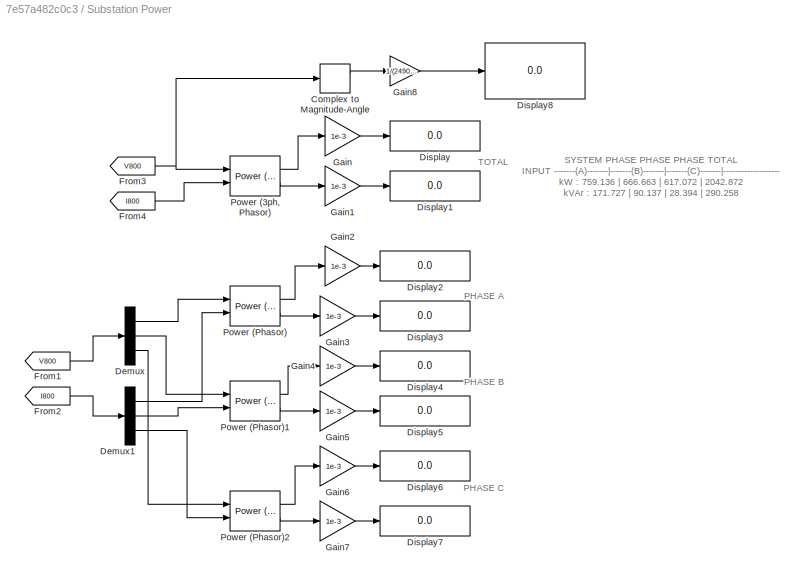
BLOCK [SubSystem] Substation Power
  Ports = []
  RequestExecContextInheritance = off
BLOCK [ComplexToMagnitudeAngle] Substation Power/Complex to Magnitude-Angle
  Ports = [1, 2]
BLOCK [Demux] Substation Power/Demux
  DisplayOption = bar
  Outputs = 3
  Ports = [1, 3]
BLOCK [Demux] Substation Power/Demux1
  DisplayOption = bar
  Outputs = 3
  Ports = [1, 3]
BLOCK [Display] Substation Power/Display
  Decimation = 1
  Ports = [1]
BLOCK [Display] Substation Power/Display1
  Decimation = 1
  Ports = [1]
BLOCK [Display] Substation Power/Display2
  Decimation = 1
  Ports = [1]
BLOCK [Display] Substation Power/Display3
  Decimation = 1
  Ports = [1]
BLOCK [Display] Substation Power/Display4
  Decimation = 1
  Ports = [1]
BLOCK [Display] Substation Power/Display5
  Decimation = 1
  Ports = [1]
BLOCK [Display] Substation Power/Display6
  Decimation = 1
  Ports = [1]
BLOCK [Display] Substation Power/Display7
  Decimation = 1
  Ports = [1]
BLOCK [Display] Substation Power/Display8
  Decimation = 1
  Ports = [1]
BLOCK [From] Substation Power/From1
  GotoTag = V800
  TagVisibility = global
BLOCK [From] Substation Power/From2
  GotoTag = I800
  TagVisibility = global
BLOCK [From] Substation Power/From3
  GotoTag = V800
  TagVisibility = global
BLOCK [From] Substation Power/From4
  GotoTag = I800
  TagVisibility = global
BLOCK [Gain] Substation Power/Gain
  Gain = 1e-3
  OutDataTypeStr = Inherit: Inherit via internal rule
  ParamDataTypeStr = Inherit: Inherit via internal rule
  SaturateOnIntegerOverflow = off
BLOCK [Gain] Substation Power/Gain1
  Gain = 1e-3
  OutDataTypeStr = Inherit: Inherit via internal rule
  ParamDataTypeStr = Inherit: Inherit via internal rule
  SaturateOnIntegerOverflow = off
BLOCK [Gain] Substation Power/Gain2
  Gain = 1e-3
  OutDataTypeStr = Inherit: Inherit via internal rule
  ParamDataTypeStr = Inherit: Inherit via internal rule
  SaturateOnIntegerOverflow = off
BLOCK [Gain] Substation Power/Gain3
  Gain = 1e-3
  OutDataTypeStr = Inherit: Inherit via internal rule
  ParamDataTypeStr = Inherit: Inherit via internal rule
  SaturateOnIntegerOverflow = off
BLOCK [Gain] Substation Power/Gain4
  Gain = 1e-3
  OutDataTypeStr = Inherit: Inherit via internal rule
  ParamDataTypeStr = Inherit: Inherit via internal rule
  SaturateOnIntegerOverflow = off
BLOCK [Gain] Substation Power/Gain5
  Gain = 1e-3
  OutDataTypeStr = Inherit: Inherit via internal rule
  ParamDataTypeStr = Inherit: Inherit via internal rule
  SaturateOnIntegerOverflow = off
BLOCK [Gain] Substation Power/Gain6
  Gain = 1e-3
  OutDataTypeStr = Inherit: Inherit via internal rule
  ParamDataTypeStr = Inherit: Inherit via internal rule
  SaturateOnIntegerOverflow = off
BLOCK [Gain] Substation Power/Gain7
  Gain = 1e-3
  OutDataTypeStr = Inherit: Inherit via internal rule
  ParamDataTypeStr = Inherit: Inherit via internal rule
  SaturateOnIntegerOverflow = off
BLOCK [Gain] Substation Power/Gain8
  Gain = 1/(24900/sqrt(3))*1/sqrt(2)
  OutDataTypeStr = Inherit: Inherit via internal rule
  ParamDataTypeStr = Inherit: Inherit via internal rule
  SaturateOnIntegerOverflow = off
BLOCK [Reference] Substation Power/Power (3ph, Phasor)  REF=powerlib_meascontrol/Measurements/Power
(3ph, Phasor)
  Ports = [2, 2]
  SourceBlock = powerlib_meascontrol/Measurements/Power\n(3ph, Phasor)
  SourceProductBaseCode = PS
  SourceProductName = Simscape Electrical
  SourceType = Power (3ph, Phasor)
BLOCK [Reference] Substation Power/Power (Phasor)  REF=powerlib_meascontrol/Measurements/Power
(Phasor)
  Ports = [2, 2]
  SourceBlock = powerlib_meascontrol/Measurements/Power\n(Phasor)
  SourceProductBaseCode = PS
  SourceProductName = Simscape Electrical
  SourceType = Power (Phasor)
BLOCK [Reference] Substation Power/Power (Phasor)1  REF=powerlib_meascontrol/Measurements/Power
(Phasor)
  Ports = [2, 2]
  SourceBlock = powerlib_meascontrol/Measurements/Power\n(Phasor)
  SourceProductBaseCode = PS
  SourceProductName = Simscape Electrical
  SourceType = Power (Phasor)
BLOCK [Reference] Substation Power/Power (Phasor)2  REF=powerlib_meascontrol/Measurements/Power
(Phasor)
  Ports = [2, 2]
  SourceBlock = powerlib_meascontrol/Measurements/Power\n(Phasor)
  SourceProductBaseCode = PS
  SourceProductName = Simscape Electrical
  SourceType = Power (Phasor)
BLOCK [Reference] Three-Phase Source  REF=powerlib/Electrical
Sources/Three-Phase Source
  Ports = [0, 0, 0, 0, 0, 0, 3]
  SourceBlock = powerlib/Electrical\nSources/Three-Phase Source
  SourceProductBaseCode = PS
  SourceProductName = Simscape Electrical
  SourceType = Three-Phase Source
BLOCK [Reference] Three-Phase Transformer (Two Windings)  REF=powerlib/Elements/Three-Phase
Transformer
(Two Windings)
  Ports = [0, 0, 0, 0, 0, 3, 3]
  SourceBlock = powerlib/Elements/Three-Phase\nTransformer\n(Two Windings)
  SourceProductBaseCode = PS
  SourceProductName = Simscape Electrical
  SourceType = Three-Phase Transformer (Two Windings)
BLOCK [Reference] XF10  REF=powerlib/Measurements/Three-Phase
V-I Measurement
  Ports = [0, 0, 0, 0, 0, 3, 3]
  SourceBlock = powerlib/Measurements/Three-Phase\nV-I Measurement
  SourceProductBaseCode = PS
  SourceProductName = Simscape Electrical
  SourceType = Three-Phase VI Measurement
BLOCK [Reference] powergui  REF=powerlib/powergui
  Ports = []
  Priority = 1
  SourceBlock = powerlib/powergui
  SourceProductBaseCode = PS
  SourceProductName = Simscape Electrical
  SourceType = PSB option menu block
ANNOTATION (root): Model Created by Arun Suresh, Dr. Sukumar Kamalasadan, University of North Carolina, Charlotte
ANNOTATION (root): Please consider citing following papers if the model was useful for your research A. Suresh, R. Bisht and S. Kamalasadan, "A Coordinated Control Architecture With Inverter-Based Resources and Legacy Controllers of Power Distribution System for Voltage Profile Balance," in IEEE Transactions on Industry Applications, vol. 58, no. 5, pp. 6701-6712, Sept.-Oct. 2022, doi: 10.1109/TIA.2022.3183030. A. S...<+256ch>
ANNOTATION Regulator 1/Single Phase SVR_A/Line Drop Compensator: Vm=Vsec-Isec(Rc+jXc)
ANNOTATION Regulator 1/Single Phase SVR_A/Transformer with Taps: Isec on CT Ratio base
ANNOTATION Regulator 1/Single Phase SVR_A/Transformer with Taps: Vsec on Pt Ratio base
ANNOTATION Regulator 1/Single Phase SVR_A/Transformer with Taps/Tap Changing Transformer: Reference: Distribution System Model in Simscape : 123 Node Test Feeder, Version 1.0.1 by Graham Dudgeon
ANNOTATION Regulator 1/Single Phase SVR_A/Voltage Regulator Control/Tap Changer Control/Edge Detector: Edge or Slope Detector
ANNOTATION Regulator 1/Single Phase SVR_B/Line Drop Compensator: Vm=Vsec-Isec(Rc+jXc)
ANNOTATION Regulator 1/Single Phase SVR_B/Transformer with Taps: Isec on CT Ratio base
ANNOTATION Regulator 1/Single Phase SVR_B/Transformer with Taps: Vsec on Pt Ratio base
ANNOTATION Regulator 1/Single Phase SVR_B/Transformer with Taps/Tap Changing Transformer: Reference: Distribution System Model in Simscape : 123 Node Test Feeder, Version 1.0.1 by Graham Dudgeon
ANNOTATION Regulator 1/Single Phase SVR_B/Voltage Regulator Control/Tap Changer Control/Edge Detector: Edge or Slope Detector
ANNOTATION Regulator 1/Single Phase SVR_C/Line Drop Compensator: Vm=Vsec-Isec(Rc+jXc)
ANNOTATION Regulator 1/Single Phase SVR_C/Transformer with Taps: Isec on CT Ratio base
ANNOTATION Regulator 1/Single Phase SVR_C/Transformer with Taps: Vsec on Pt Ratio base
ANNOTATION Regulator 1/Single Phase SVR_C/Transformer with Taps/Tap Changing Transformer: Reference: Distribution System Model in Simscape : 123 Node Test Feeder, Version 1.0.1 by Graham Dudgeon
ANNOTATION Regulator 1/Single Phase SVR_C/Voltage Regulator Control/Tap Changer Control/Edge Detector: Edge or Slope Detector
ANNOTATION Regulator 2/Single Phase SVR_A/Line Drop Compensator: Vm=Vsec-Isec(Rc+jXc)
ANNOTATION Regulator 2/Single Phase SVR_A/Transformer with Taps: Isec on CT Ratio base
ANNOTATION Regulator 2/Single Phase SVR_A/Transformer with Taps: Vsec on Pt Ratio base
ANNOTATION Regulator 2/Single Phase SVR_A/Transformer with Taps/Tap Changing Transformer: Reference: Distribution System Model in Simscape : 123 Node Test Feeder, Version 1.0.1 by Graham Dudgeon
ANNOTATION Regulator 2/Single Phase SVR_A/Voltage Regulator Control/Tap Changer Control/Edge Detector: Edge or Slope Detector
ANNOTATION Regulator 2/Single Phase SVR_B/Line Drop Compensator: Vm=Vsec-Isec(Rc+jXc)
ANNOTATION Regulator 2/Single Phase SVR_B/Transformer with Taps: Isec on CT Ratio base
ANNOTATION Regulator 2/Single Phase SVR_B/Transformer with Taps: Vsec on Pt Ratio base
ANNOTATION Regulator 2/Single Phase SVR_B/Transformer with Taps/Tap Changing Transformer: Reference: Distribution System Model in Simscape : 123 Node Test Feeder, Version 1.0.1 by Graham Dudgeon
ANNOTATION Regulator 2/Single Phase SVR_B/Voltage Regulator Control/Tap Changer Control/Edge Detector: Edge or Slope Detector
ANNOTATION Regulator 2/Single Phase SVR_C/Line Drop Compensator: Vm=Vsec-Isec(Rc+jXc)
ANNOTATION Regulator 2/Single Phase SVR_C/Transformer with Taps: Isec on CT Ratio base
ANNOTATION Regulator 2/Single Phase SVR_C/Transformer with Taps: Vsec on Pt Ratio base
ANNOTATION Regulator 2/Single Phase SVR_C/Transformer with Taps/Tap Changing Transformer: Reference: Distribution System Model in Simscape : 123 Node Test Feeder, Version 1.0.1 by Graham Dudgeon
ANNOTATION Regulator 2/Single Phase SVR_C/Voltage Regulator Control/Tap Changer Control/Edge Detector: Edge or Slope Detector
ANNOTATION Substation Power: PHASE A
ANNOTATION Substation Power: PHASE B
ANNOTATION Substation Power: PHASE C
ANNOTATION Substation Power: TOTAL
ANNOTATION Substation Power: SYSTEM PHASE PHASE PHASE TOTAL INPUT -------(A)-------|-------(B)-------|-------(C)-------|------------------- kW : 759.136 | 666.663 | 617.072 | 2042.872 kVAr : 171.727 | 90.137 | 28.394 | 290.258
LINE Node Voltages/Complex to Magnitude-Angle:1 -> Node Voltages/Gain8:1
LINE Node Voltages/From10:1 -> Node Voltages/Mux3:10
LINE Node Voltages/From11:1 -> Node Voltages/Mux1:2
LINE Node Voltages/From12:1 -> Node Voltages/Mux1:4
LINE Node Voltages/From13:1 -> Node Voltages/Mux1:3
LINE Node Voltages/From14:1 -> Node Voltages/Mux1:6
LINE Node Voltages/From15:1 -> Node Voltages/Mux1:8
LINE Node Voltages/From16:1 -> Node Voltages/Mux1:7
LINE Node Voltages/From17:1 -> Node Voltages/Mux1:5
LINE Node Voltages/From18:1 -> Node Voltages/Mux1:10
LINE Node Voltages/From19:1 -> Node Voltages/Mux1:9
LINE Node Voltages/From1:1 -> Node Voltages/Mux3:2
LINE Node Voltages/From20:1 -> Node Voltages/Mux4:2
LINE Node Voltages/From21:1 -> Node Voltages/Mux4:4
LINE Node Voltages/From22:1 -> Node Voltages/Mux4:3
LINE Node Voltages/From23:1 -> Node Voltages/Mux4:6
LINE Node Voltages/From24:1 -> Node Voltages/Mux4:8
LINE Node Voltages/From25:1 -> Node Voltages/Mux4:7
LINE Node Voltages/From26:1 -> Node Voltages/Mux4:5
LINE Node Voltages/From27:1 -> Node Voltages/Mux4:10
LINE Node Voltages/From28:1 -> Node Voltages/Mux4:9
LINE Node Voltages/From29:1 -> Node Voltages/Mux4:1
LINE Node Voltages/From2:1 -> Node Voltages/Mux3:3
LINE Node Voltages/From30:1 -> Node Voltages/Mux5:2
LINE Node Voltages/From31:1 -> Node Voltages/Gain4:1
LINE Node Voltages/From32:1 -> Node Voltages/Mux5:3
LINE Node Voltages/From33:1 -> Node Voltages/Gain2:1
LINE Node Voltages/From35:1 -> Node Voltages/Mux5:7
LINE Node Voltages/From36:1 -> Node Voltages/Gain1:1
LINE Node Voltages/From39:1 -> Node Voltages/Mux5:1
LINE Node Voltages/From3:1 -> Node Voltages/Mux3:4
LINE Node Voltages/From41:1 -> Node Voltages/Mux1:1
LINE Node Voltages/From4:1 -> Node Voltages/Mux3:5
LINE Node Voltages/From5:1 -> Node Voltages/Mux3:6
LINE Node Voltages/From6:1 -> Node Voltages/Mux3:1
LINE Node Voltages/From7:1 -> Node Voltages/Mux3:7
LINE Node Voltages/From8:1 -> Node Voltages/Mux3:8
LINE Node Voltages/From9:1 -> Node Voltages/Mux3:9
LINE Node Voltages/Gain1:1 -> Node Voltages/Mux5:5
LINE Node Voltages/Gain2:1 -> Node Voltages/Mux5:6
LINE Node Voltages/Gain4:1 -> Node Voltages/Mux5:4
LINE Node Voltages/Gain8:1 -> Node Voltages/To Workspace:1
LINE Node Voltages/Mux1:1 -> Node Voltages/Mux2:2
LINE Node Voltages/Mux2:1 -> Node Voltages/Complex to Magnitude-Angle:1
LINE Node Voltages/Mux3:1 -> Node Voltages/Mux2:1
LINE Node Voltages/Mux4:1 -> Node Voltages/Mux2:3
LINE Node Voltages/Mux5:1 -> Node Voltages/Mux2:4
LINE Regulator 1/Mux:1 -> Regulator 1/Tap:1
LINE Regulator 1/Single Phase SVR_A/Line Drop Compensator/Abs1:1 -> Regulator 1/Single Phase SVR_A/Line Drop Compensator/Vm:1
LINE Regulator 1/Single Phase SVR_A/Line Drop Compensator/Gain4:1 -> Regulator 1/Single Phase SVR_A/Line Drop Compensator/Gain5:1
LINE Regulator 1/Single Phase SVR_A/Line Drop Compensator/Gain5:1 -> Regulator 1/Single Phase SVR_A/Line Drop Compensator/Sum1:2
LINE Regulator 1/Single Phase SVR_A/Line Drop Compensator/Gain6:1 -> Regulator 1/Single Phase SVR_A/Line Drop Compensator/Sum1:1
LINE Regulator 1/Single Phase SVR_A/Line Drop Compensator/Isec:1 -> Regulator 1/Single Phase SVR_A/Line Drop Compensator/Gain4:1
LINE Regulator 1/Single Phase SVR_A/Line Drop Compensator/Sum1:1 -> Regulator 1/Single Phase SVR_A/Line Drop Compensator/Abs1:1
LINE Regulator 1/Single Phase SVR_A/Line Drop Compensator/Vsec:1 -> Regulator 1/Single Phase SVR_A/Line Drop Compensator/Gain6:1
NET Regulator 1/Single Phase SVR_A/Line Drop Compensator:1 -> Regulator 1/Single Phase SVR_A/Goto:1, Regulator 1/Single Phase SVR_A/Voltage Regulator Control:1
LINE Regulator 1/Single Phase SVR_A/Transformer with Taps/    :1 -> Regulator 1/Single Phase SVR_A/Transformer with Taps/Memory1:1
LINE Regulator 1/Single Phase SVR_A/Transformer with Taps/ 1:1 -> Regulator 1/Single Phase SVR_A/Transformer with Taps/Memory:1
LINE Regulator 1/Single Phase SVR_A/Transformer with Taps/CT:1 -> Regulator 1/Single Phase SVR_A/Transformer with Taps/ 1:1
LINE Regulator 1/Single Phase SVR_A/Transformer with Taps/Memory1:1 -> Regulator 1/Single Phase SVR_A/Transformer with Taps/Vsec:1
LINE Regulator 1/Single Phase SVR_A/Transformer with Taps/Memory:1 -> Regulator 1/Single Phase SVR_A/Transformer with Taps/Isec:1
LINE Regulator 1/Single Phase SVR_A/Transformer with Taps/PT:1 -> Regulator 1/Single Phase SVR_A/Transformer with Taps/    :1
LINE Regulator 1/Single Phase SVR_A/Transformer with Taps/Tap Changing Transformer/Constant1:1 -> Regulator 1/Single Phase SVR_A/Transformer with Taps/Tap Changing Transformer/Sum1:2
LINE Regulator 1/Single Phase SVR_A/Transformer with Taps/Tap Changing Transformer/Current Measurement1:1 -> Regulator 1/Single Phase SVR_A/Transformer with Taps/Tap Changing Transformer/Goto3:1
LINE Regulator 1/Single Phase SVR_A/Transformer with Taps/Tap Changing Transformer/From1:1 -> Regulator 1/Single Phase SVR_A/Transformer with Taps/Tap Changing Transformer/Controlled Voltage Source2:1
LINE Regulator 1/Single Phase SVR_A/Transformer with Taps/Tap Changing Transformer/From2:1 -> Regulator 1/Single Phase SVR_A/Transformer with Taps/Tap Changing Transformer/Controlled Current Source1:1
LINE Regulator 1/Single Phase SVR_A/Transformer with Taps/Tap Changing Transformer/From3:1 -> Regulator 1/Single Phase SVR_A/Transformer with Taps/Tap Changing Transformer/Product4:1
LINE Regulator 1/Single Phase SVR_A/Transformer with Taps/Tap Changing Transformer/From:1 -> Regulator 1/Single Phase SVR_A/Transformer with Taps/Tap Changing Transformer/Product5:1
NET Regulator 1/Single Phase SVR_A/Transformer with Taps/Tap Changing Transformer/Gain2:1 -> Regulator 1/Single Phase SVR_A/Transformer with Taps/Tap Changing Transformer/Gain4:1, Regulator 1/Single Phase SVR_A/Transformer with Taps/Tap Changing Transformer/Product4:2, Regulator 1/Single Phase SVR_A/Transformer with Taps/Tap Changing Transformer/Sum1:1
LINE Regulator 1/Single Phase SVR_A/Transformer with Taps/Tap Changing Transformer/Gain4:1 -> Regulator 1/Single Phase SVR_A/Transformer with Taps/Tap Changing Transformer/Product5:2
LINE Regulator 1/Single Phase SVR_A/Transformer with Taps/Tap Changing Transformer/Memory1:1 -> Regulator 1/Single Phase SVR_A/Transformer with Taps/Tap Changing Transformer/Goto2:1
LINE Regulator 1/Single Phase SVR_A/Transformer with Taps/Tap Changing Transformer/Memory:1 -> Regulator 1/Single Phase SVR_A/Transformer with Taps/Tap Changing Transformer/Goto1:1
LINE Regulator 1/Single Phase SVR_A/Transformer with Taps/Tap Changing Transformer/Product4:1 -> Regulator 1/Single Phase SVR_A/Transformer with Taps/Tap Changing Transformer/Memory1:1
LINE Regulator 1/Single Phase SVR_A/Transformer with Taps/Tap Changing Transformer/Product5:1 -> Regulator 1/Single Phase SVR_A/Transformer with Taps/Tap Changing Transformer/Memory:1
LINE Regulator 1/Single Phase SVR_A/Transformer with Taps/Tap Changing Transformer/Sum1:1 -> Regulator 1/Single Phase SVR_A/Transformer with Taps/Tap Changing Transformer/Product4:3
LINE Regulator 1/Single Phase SVR_A/Transformer with Taps/Tap Changing Transformer/Tap:1 -> Regulator 1/Single Phase SVR_A/Transformer with Taps/Tap Changing Transformer/Gain2:1
LINE Regulator 1/Single Phase SVR_A/Transformer with Taps/Tap Changing Transformer/Voltage Measurement1:1 -> Regulator 1/Single Phase SVR_A/Transformer with Taps/Tap Changing Transformer/Goto:1
LINE Regulator 1/Single Phase SVR_A/Transformer with Taps/tap:1 -> Regulator 1/Single Phase SVR_A/Transformer with Taps/Tap Changing Transformer:1
LINE Regulator 1/Single Phase SVR_A/Transformer with Taps:1 -> Regulator 1/Single Phase SVR_A/Line Drop Compensator:1
LINE Regulator 1/Single Phase SVR_A/Transformer with Taps:2 -> Regulator 1/Single Phase SVR_A/Line Drop Compensator:2
LINE Regulator 1/Single Phase SVR_A/Voltage Regulator Control/Constant:1 -> Regulator 1/Single Phase SVR_A/Voltage Regulator Control/Voltage regulator:3
LINE Regulator 1/Single Phase SVR_A/Voltage Regulator Control/Tap Changer Control/Constant1:1 -> Regulator 1/Single Phase SVR_A/Voltage Regulator Control/Tap Changer Control/Switch:3
LINE Regulator 1/Single Phase SVR_A/Voltage Regulator Control/Tap Changer Control/Constant:1 -> Regulator 1/Single Phase SVR_A/Voltage Regulator Control/Tap Changer Control/Switch:1
LINE Regulator 1/Single Phase SVR_A/Voltage Regulator Control/Tap Changer Control/Determine tap position/Memory:1 -> Regulator 1/Single Phase SVR_A/Voltage Regulator Control/Tap Changer Control/Determine tap position/Sum:2
LINE Regulator 1/Single Phase SVR_A/Voltage Regulator Control/Tap Changer Control/Determine tap position/NewTap:1 -> Regulator 1/Single Phase SVR_A/Voltage Regulator Control/Tap Changer Control/Determine tap position/Sum:1
NET Regulator 1/Single Phase SVR_A/Voltage Regulator Control/Tap Changer Control/Determine tap position/Saturation:1 -> Regulator 1/Single Phase SVR_A/Voltage Regulator Control/Tap Changer Control/Determine tap position/Memory:1, Regulator 1/Single Phase SVR_A/Voltage Regulator Control/Tap Changer Control/Determine tap position/TapNo:1
LINE Regulator 1/Single Phase SVR_A/Voltage Regulator Control/Tap Changer Control/Determine tap position/Sum:1 -> Regulator 1/Single Phase SVR_A/Voltage Regulator Control/Tap Changer Control/Determine tap position/Saturation:1
NET Regulator 1/Single Phase SVR_A/Voltage Regulator Control/Tap Changer Control/Determine tap position:1 -> Regulator 1/Single Phase SVR_A/Voltage Regulator Control/Tap Changer Control/Mechanical Delay:1, Regulator 1/Single Phase SVR_A/Voltage Regulator Control/Tap Changer Control/Relational Operator:1
NET Regulator 1/Single Phase SVR_A/Voltage Regulator Control/Tap Changer Control/Down :1 -> Regulator 1/Single Phase SVR_A/Voltage Regulator Control/Tap Changer Control/Logical Operator:2, Regulator 1/Single Phase SVR_A/Voltage Regulator Control/Tap Changer Control/Switch:2
LINE Regulator 1/Single Phase SVR_A/Voltage Regulator Control/Tap Changer Control/Edge Detector:1 -> Regulator 1/Single Phase SVR_A/Voltage Regulator Control/Tap Changer Control/Logical Operator1:2
LINE Regulator 1/Single Phase SVR_A/Voltage Regulator Control/Tap Changer Control/Logical Operator1:1 -> Regulator 1/Single Phase SVR_A/Voltage Regulator Control/Tap Changer Control/Determine tap position:trigger
LINE Regulator 1/Single Phase SVR_A/Voltage Regulator Control/Tap Changer Control/Logical Operator:1 -> Regulator 1/Single Phase SVR_A/Voltage Regulator Control/Tap Changer Control/Edge Detector:1
NET Regulator 1/Single Phase SVR_A/Voltage Regulator Control/Tap Changer Control/Mechanical Delay:1 -> Regulator 1/Single Phase SVR_A/Voltage Regulator Control/Tap Changer Control/Relational Operator:2, Regulator 1/Single Phase SVR_A/Voltage Regulator Control/Tap Changer Control/TapNo:1
NET Regulator 1/Single Phase SVR_A/Voltage Regulator Control/Tap Changer Control/Memory:1 -> Regulator 1/Single Phase SVR_A/Voltage Regulator Control/Tap Changer Control/Logical Operator1:1, Regulator 1/Single Phase SVR_A/Voltage Regulator Control/Tap Changer Control/Ready:1
LINE Regulator 1/Single Phase SVR_A/Voltage Regulator Control/Tap Changer Control/Relational Operator:1 -> Regulator 1/Single Phase SVR_A/Voltage Regulator Control/Tap Changer Control/Memory:1
LINE Regulator 1/Single Phase SVR_A/Voltage Regulator Control/Tap Changer Control/Switch:1 -> Regulator 1/Single Phase SVR_A/Voltage Regulator Control/Tap Changer Control/Determine tap position:1
LINE Regulator 1/Single Phase SVR_A/Voltage Regulator Control/Tap Changer Control/Up :1 -> Regulator 1/Single Phase SVR_A/Voltage Regulator Control/Tap Changer Control/Logical Operator:1
LINE Regulator 1/Single Phase SVR_A/Voltage Regulator Control/Tap Changer Control:1 -> Regulator 1/Single Phase SVR_A/Voltage Regulator Control/Tap:1
LINE Regulator 1/Single Phase SVR_A/Voltage Regulator Control/Tap Changer Control:2 -> Regulator 1/Single Phase SVR_A/Voltage Regulator Control/Voltage regulator:2
LINE Regulator 1/Single Phase SVR_A/Voltage Regulator Control/Vm:1 -> Regulator 1/Single Phase SVR_A/Voltage Regulator Control/Voltage regulator:1
NET Regulator 1/Single Phase SVR_A/Voltage Regulator Control/Voltage regulator/Dead Zone:1 -> Regulator 1/Single Phase SVR_A/Voltage Regulator Control/Voltage regulator/Relational Operator1:1, Regulator 1/Single Phase SVR_A/Voltage Regulator Control/Voltage regulator/Relational Operator:1
NET Regulator 1/Single Phase SVR_A/Voltage Regulator Control/Voltage regulator/Discrete Variable Time Delay:1 -> Regulator 1/Single Phase SVR_A/Voltage Regulator Control/Voltage regulator/Logical Operator1:1, Regulator 1/Single Phase SVR_A/Voltage Regulator Control/Voltage regulator/Logical Operator:2
LINE Regulator 1/Single Phase SVR_A/Voltage Regulator Control/Voltage regulator/Logical Operator1:1 -> Regulator 1/Single Phase SVR_A/Voltage Regulator Control/Voltage regulator/On Delay1:1
LINE Regulator 1/Single Phase SVR_A/Voltage Regulator Control/Voltage regulator/Logical Operator:1 -> Regulator 1/Single Phase SVR_A/Voltage Regulator Control/Voltage regulator/On Delay:1
LINE Regulator 1/Single Phase SVR_A/Voltage Regulator Control/Voltage regulator/On Delay1:1 -> Regulator 1/Single Phase SVR_A/Voltage Regulator Control/Voltage regulator/Down:1
LINE Regulator 1/Single Phase SVR_A/Voltage Regulator Control/Voltage regulator/On Delay:1 -> Regulator 1/Single Phase SVR_A/Voltage Regulator Control/Voltage regulator/Up:1
LINE Regulator 1/Single Phase SVR_A/Voltage Regulator Control/Voltage regulator/Ready:1 -> Regulator 1/Single Phase SVR_A/Voltage Regulator Control/Voltage regulator/Discrete Variable Time Delay:1
LINE Regulator 1/Single Phase SVR_A/Voltage Regulator Control/Voltage regulator/RegOn:1 -> Regulator 1/Single Phase SVR_A/Voltage Regulator Control/Voltage regulator/Switch:2
LINE Regulator 1/Single Phase SVR_A/Voltage Regulator Control/Voltage regulator/Relational Operator1:1 -> Regulator 1/Single Phase SVR_A/Voltage Regulator Control/Voltage regulator/Logical Operator1:2
LINE Regulator 1/Single Phase SVR_A/Voltage Regulator Control/Voltage regulator/Relational Operator:1 -> Regulator 1/Single Phase SVR_A/Voltage Regulator Control/Voltage regulator/Logical Operator:1
LINE Regulator 1/Single Phase SVR_A/Voltage Regulator Control/Voltage regulator/Sum:1 -> Regulator 1/Single Phase SVR_A/Voltage Regulator Control/Voltage regulator/Switch:1
LINE Regulator 1/Single Phase SVR_A/Voltage Regulator Control/Voltage regulator/Switch:1 -> Regulator 1/Single Phase SVR_A/Voltage Regulator Control/Voltage regulator/Dead Zone:1
LINE Regulator 1/Single Phase SVR_A/Voltage Regulator Control/Voltage regulator/Vmes (pu):1 -> Regulator 1/Single Phase SVR_A/Voltage Regulator Control/Voltage regulator/Sum:2
LINE Regulator 1/Single Phase SVR_A/Voltage Regulator Control/Voltage regulator/Vref1:1 -> Regulator 1/Single Phase SVR_A/Voltage Regulator Control/Voltage regulator/Relational Operator:2
LINE Regulator 1/Single Phase SVR_A/Voltage Regulator Control/Voltage regulator/Vref2:1 -> Regulator 1/Single Phase SVR_A/Voltage Regulator Control/Voltage regulator/Switch:3
LINE Regulator 1/Single Phase SVR_A/Voltage Regulator Control/Voltage regulator/Vref3:1 -> Regulator 1/Single Phase SVR_A/Voltage Regulator Control/Voltage regulator/Relational Operator1:2
LINE Regulator 1/Single Phase SVR_A/Voltage Regulator Control/Voltage regulator/Vref4:1 -> Regulator 1/Single Phase SVR_A/Voltage Regulator Control/Voltage regulator/Discrete Variable Time Delay:2
LINE Regulator 1/Single Phase SVR_A/Voltage Regulator Control/Voltage regulator/Vref:1 -> Regulator 1/Single Phase SVR_A/Voltage Regulator Control/Voltage regulator/Sum:1
LINE Regulator 1/Single Phase SVR_A/Voltage Regulator Control/Voltage regulator:1 -> Regulator 1/Single Phase SVR_A/Voltage Regulator Control/Tap Changer Control:1
LINE Regulator 1/Single Phase SVR_A/Voltage Regulator Control/Voltage regulator:2 -> Regulator 1/Single Phase SVR_A/Voltage Regulator Control/Tap Changer Control:2
NET Regulator 1/Single Phase SVR_A/Voltage Regulator Control:1 -> Regulator 1/Single Phase SVR_A/Tap:1, Regulator 1/Single Phase SVR_A/Transformer with Taps:1
LINE Regulator 1/Single Phase SVR_A:1 -> Regulator 1/Mux:1
LINE Regulator 1/Single Phase SVR_B/Line Drop Compensator/Abs1:1 -> Regulator 1/Single Phase SVR_B/Line Drop Compensator/Vm:1
LINE Regulator 1/Single Phase SVR_B/Line Drop Compensator/Gain4:1 -> Regulator 1/Single Phase SVR_B/Line Drop Compensator/Gain5:1
LINE Regulator 1/Single Phase SVR_B/Line Drop Compensator/Gain5:1 -> Regulator 1/Single Phase SVR_B/Line Drop Compensator/Sum1:2
LINE Regulator 1/Single Phase SVR_B/Line Drop Compensator/Gain6:1 -> Regulator 1/Single Phase SVR_B/Line Drop Compensator/Sum1:1
LINE Regulator 1/Single Phase SVR_B/Line Drop Compensator/Isec:1 -> Regulator 1/Single Phase SVR_B/Line Drop Compensator/Gain4:1
LINE Regulator 1/Single Phase SVR_B/Line Drop Compensator/Sum1:1 -> Regulator 1/Single Phase SVR_B/Line Drop Compensator/Abs1:1
LINE Regulator 1/Single Phase SVR_B/Line Drop Compensator/Vsec:1 -> Regulator 1/Single Phase SVR_B/Line Drop Compensator/Gain6:1
NET Regulator 1/Single Phase SVR_B/Line Drop Compensator:1 -> Regulator 1/Single Phase SVR_B/Goto:1, Regulator 1/Single Phase SVR_B/Voltage Regulator Control:1
LINE Regulator 1/Single Phase SVR_B/Transformer with Taps/    :1 -> Regulator 1/Single Phase SVR_B/Transformer with Taps/Memory1:1
LINE Regulator 1/Single Phase SVR_B/Transformer with Taps/ 1:1 -> Regulator 1/Single Phase SVR_B/Transformer with Taps/Memory:1
LINE Regulator 1/Single Phase SVR_B/Transformer with Taps/CT:1 -> Regulator 1/Single Phase SVR_B/Transformer with Taps/ 1:1
LINE Regulator 1/Single Phase SVR_B/Transformer with Taps/Memory1:1 -> Regulator 1/Single Phase SVR_B/Transformer with Taps/Vsec:1
LINE Regulator 1/Single Phase SVR_B/Transformer with Taps/Memory:1 -> Regulator 1/Single Phase SVR_B/Transformer with Taps/Isec:1
LINE Regulator 1/Single Phase SVR_B/Transformer with Taps/PT:1 -> Regulator 1/Single Phase SVR_B/Transformer with Taps/    :1
LINE Regulator 1/Single Phase SVR_B/Transformer with Taps/Tap Changing Transformer/Constant1:1 -> Regulator 1/Single Phase SVR_B/Transformer with Taps/Tap Changing Transformer/Sum1:2
LINE Regulator 1/Single Phase SVR_B/Transformer with Taps/Tap Changing Transformer/Current Measurement1:1 -> Regulator 1/Single Phase SVR_B/Transformer with Taps/Tap Changing Transformer/Goto3:1
LINE Regulator 1/Single Phase SVR_B/Transformer with Taps/Tap Changing Transformer/From1:1 -> Regulator 1/Single Phase SVR_B/Transformer with Taps/Tap Changing Transformer/Controlled Voltage Source2:1
LINE Regulator 1/Single Phase SVR_B/Transformer with Taps/Tap Changing Transformer/From2:1 -> Regulator 1/Single Phase SVR_B/Transformer with Taps/Tap Changing Transformer/Controlled Current Source1:1
LINE Regulator 1/Single Phase SVR_B/Transformer with Taps/Tap Changing Transformer/From3:1 -> Regulator 1/Single Phase SVR_B/Transformer with Taps/Tap Changing Transformer/Product4:1
LINE Regulator 1/Single Phase SVR_B/Transformer with Taps/Tap Changing Transformer/From:1 -> Regulator 1/Single Phase SVR_B/Transformer with Taps/Tap Changing Transformer/Product5:1
NET Regulator 1/Single Phase SVR_B/Transformer with Taps/Tap Changing Transformer/Gain2:1 -> Regulator 1/Single Phase SVR_B/Transformer with Taps/Tap Changing Transformer/Gain4:1, Regulator 1/Single Phase SVR_B/Transformer with Taps/Tap Changing Transformer/Product4:2, Regulator 1/Single Phase SVR_B/Transformer with Taps/Tap Changing Transformer/Sum1:1
LINE Regulator 1/Single Phase SVR_B/Transformer with Taps/Tap Changing Transformer/Gain4:1 -> Regulator 1/Single Phase SVR_B/Transformer with Taps/Tap Changing Transformer/Product5:2
LINE Regulator 1/Single Phase SVR_B/Transformer with Taps/Tap Changing Transformer/Memory1:1 -> Regulator 1/Single Phase SVR_B/Transformer with Taps/Tap Changing Transformer/Goto2:1
LINE Regulator 1/Single Phase SVR_B/Transformer with Taps/Tap Changing Transformer/Memory:1 -> Regulator 1/Single Phase SVR_B/Transformer with Taps/Tap Changing Transformer/Goto1:1
LINE Regulator 1/Single Phase SVR_B/Transformer with Taps/Tap Changing Transformer/Product4:1 -> Regulator 1/Single Phase SVR_B/Transformer with Taps/Tap Changing Transformer/Memory1:1
LINE Regulator 1/Single Phase SVR_B/Transformer with Taps/Tap Changing Transformer/Product5:1 -> Regulator 1/Single Phase SVR_B/Transformer with Taps/Tap Changing Transformer/Memory:1
LINE Regulator 1/Single Phase SVR_B/Transformer with Taps/Tap Changing Transformer/Sum1:1 -> Regulator 1/Single Phase SVR_B/Transformer with Taps/Tap Changing Transformer/Product4:3
LINE Regulator 1/Single Phase SVR_B/Transformer with Taps/Tap Changing Transformer/Tap:1 -> Regulator 1/Single Phase SVR_B/Transformer with Taps/Tap Changing Transformer/Gain2:1
LINE Regulator 1/Single Phase SVR_B/Transformer with Taps/Tap Changing Transformer/Voltage Measurement1:1 -> Regulator 1/Single Phase SVR_B/Transformer with Taps/Tap Changing Transformer/Goto:1
LINE Regulator 1/Single Phase SVR_B/Transformer with Taps/tap:1 -> Regulator 1/Single Phase SVR_B/Transformer with Taps/Tap Changing Transformer:1
LINE Regulator 1/Single Phase SVR_B/Transformer with Taps:1 -> Regulator 1/Single Phase SVR_B/Line Drop Compensator:1
LINE Regulator 1/Single Phase SVR_B/Transformer with Taps:2 -> Regulator 1/Single Phase SVR_B/Line Drop Compensator:2
LINE Regulator 1/Single Phase SVR_B/Voltage Regulator Control/Constant:1 -> Regulator 1/Single Phase SVR_B/Voltage Regulator Control/Voltage regulator:3
LINE Regulator 1/Single Phase SVR_B/Voltage Regulator Control/Tap Changer Control/Constant1:1 -> Regulator 1/Single Phase SVR_B/Voltage Regulator Control/Tap Changer Control/Switch:3
LINE Regulator 1/Single Phase SVR_B/Voltage Regulator Control/Tap Changer Control/Constant:1 -> Regulator 1/Single Phase SVR_B/Voltage Regulator Control/Tap Changer Control/Switch:1
LINE Regulator 1/Single Phase SVR_B/Voltage Regulator Control/Tap Changer Control/Determine tap position/Memory:1 -> Regulator 1/Single Phase SVR_B/Voltage Regulator Control/Tap Changer Control/Determine tap position/Sum:2
LINE Regulator 1/Single Phase SVR_B/Voltage Regulator Control/Tap Changer Control/Determine tap position/NewTap:1 -> Regulator 1/Single Phase SVR_B/Voltage Regulator Control/Tap Changer Control/Determine tap position/Sum:1
NET Regulator 1/Single Phase SVR_B/Voltage Regulator Control/Tap Changer Control/Determine tap position/Saturation:1 -> Regulator 1/Single Phase SVR_B/Voltage Regulator Control/Tap Changer Control/Determine tap position/Memory:1, Regulator 1/Single Phase SVR_B/Voltage Regulator Control/Tap Changer Control/Determine tap position/TapNo:1
LINE Regulator 1/Single Phase SVR_B/Voltage Regulator Control/Tap Changer Control/Determine tap position/Sum:1 -> Regulator 1/Single Phase SVR_B/Voltage Regulator Control/Tap Changer Control/Determine tap position/Saturation:1
NET Regulator 1/Single Phase SVR_B/Voltage Regulator Control/Tap Changer Control/Determine tap position:1 -> Regulator 1/Single Phase SVR_B/Voltage Regulator Control/Tap Changer Control/Mechanical Delay:1, Regulator 1/Single Phase SVR_B/Voltage Regulator Control/Tap Changer Control/Relational Operator:1
NET Regulator 1/Single Phase SVR_B/Voltage Regulator Control/Tap Changer Control/Down :1 -> Regulator 1/Single Phase SVR_B/Voltage Regulator Control/Tap Changer Control/Logical Operator:2, Regulator 1/Single Phase SVR_B/Voltage Regulator Control/Tap Changer Control/Switch:2
LINE Regulator 1/Single Phase SVR_B/Voltage Regulator Control/Tap Changer Control/Edge Detector:1 -> Regulator 1/Single Phase SVR_B/Voltage Regulator Control/Tap Changer Control/Logical Operator1:2
LINE Regulator 1/Single Phase SVR_B/Voltage Regulator Control/Tap Changer Control/Logical Operator1:1 -> Regulator 1/Single Phase SVR_B/Voltage Regulator Control/Tap Changer Control/Determine tap position:trigger
LINE Regulator 1/Single Phase SVR_B/Voltage Regulator Control/Tap Changer Control/Logical Operator:1 -> Regulator 1/Single Phase SVR_B/Voltage Regulator Control/Tap Changer Control/Edge Detector:1
NET Regulator 1/Single Phase SVR_B/Voltage Regulator Control/Tap Changer Control/Mechanical Delay:1 -> Regulator 1/Single Phase SVR_B/Voltage Regulator Control/Tap Changer Control/Relational Operator:2, Regulator 1/Single Phase SVR_B/Voltage Regulator Control/Tap Changer Control/TapNo:1
NET Regulator 1/Single Phase SVR_B/Voltage Regulator Control/Tap Changer Control/Memory:1 -> Regulator 1/Single Phase SVR_B/Voltage Regulator Control/Tap Changer Control/Logical Operator1:1, Regulator 1/Single Phase SVR_B/Voltage Regulator Control/Tap Changer Control/Ready:1
LINE Regulator 1/Single Phase SVR_B/Voltage Regulator Control/Tap Changer Control/Relational Operator:1 -> Regulator 1/Single Phase SVR_B/Voltage Regulator Control/Tap Changer Control/Memory:1
LINE Regulator 1/Single Phase SVR_B/Voltage Regulator Control/Tap Changer Control/Switch:1 -> Regulator 1/Single Phase SVR_B/Voltage Regulator Control/Tap Changer Control/Determine tap position:1
LINE Regulator 1/Single Phase SVR_B/Voltage Regulator Control/Tap Changer Control/Up :1 -> Regulator 1/Single Phase SVR_B/Voltage Regulator Control/Tap Changer Control/Logical Operator:1
LINE Regulator 1/Single Phase SVR_B/Voltage Regulator Control/Tap Changer Control:1 -> Regulator 1/Single Phase SVR_B/Voltage Regulator Control/Tap:1
LINE Regulator 1/Single Phase SVR_B/Voltage Regulator Control/Tap Changer Control:2 -> Regulator 1/Single Phase SVR_B/Voltage Regulator Control/Voltage regulator:2
LINE Regulator 1/Single Phase SVR_B/Voltage Regulator Control/Vm:1 -> Regulator 1/Single Phase SVR_B/Voltage Regulator Control/Voltage regulator:1
NET Regulator 1/Single Phase SVR_B/Voltage Regulator Control/Voltage regulator/Dead Zone:1 -> Regulator 1/Single Phase SVR_B/Voltage Regulator Control/Voltage regulator/Relational Operator1:1, Regulator 1/Single Phase SVR_B/Voltage Regulator Control/Voltage regulator/Relational Operator:1
NET Regulator 1/Single Phase SVR_B/Voltage Regulator Control/Voltage regulator/Discrete Variable Time Delay:1 -> Regulator 1/Single Phase SVR_B/Voltage Regulator Control/Voltage regulator/Logical Operator1:1, Regulator 1/Single Phase SVR_B/Voltage Regulator Control/Voltage regulator/Logical Operator:2
LINE Regulator 1/Single Phase SVR_B/Voltage Regulator Control/Voltage regulator/Logical Operator1:1 -> Regulator 1/Single Phase SVR_B/Voltage Regulator Control/Voltage regulator/On Delay1:1
LINE Regulator 1/Single Phase SVR_B/Voltage Regulator Control/Voltage regulator/Logical Operator:1 -> Regulator 1/Single Phase SVR_B/Voltage Regulator Control/Voltage regulator/On Delay:1
LINE Regulator 1/Single Phase SVR_B/Voltage Regulator Control/Voltage regulator/On Delay1:1 -> Regulator 1/Single Phase SVR_B/Voltage Regulator Control/Voltage regulator/Down:1
LINE Regulator 1/Single Phase SVR_B/Voltage Regulator Control/Voltage regulator/On Delay:1 -> Regulator 1/Single Phase SVR_B/Voltage Regulator Control/Voltage regulator/Up:1
LINE Regulator 1/Single Phase SVR_B/Voltage Regulator Control/Voltage regulator/Ready:1 -> Regulator 1/Single Phase SVR_B/Voltage Regulator Control/Voltage regulator/Discrete Variable Time Delay:1
LINE Regulator 1/Single Phase SVR_B/Voltage Regulator Control/Voltage regulator/RegOn:1 -> Regulator 1/Single Phase SVR_B/Voltage Regulator Control/Voltage regulator/Switch:2
LINE Regulator 1/Single Phase SVR_B/Voltage Regulator Control/Voltage regulator/Relational Operator1:1 -> Regulator 1/Single Phase SVR_B/Voltage Regulator Control/Voltage regulator/Logical Operator1:2
LINE Regulator 1/Single Phase SVR_B/Voltage Regulator Control/Voltage regulator/Relational Operator:1 -> Regulator 1/Single Phase SVR_B/Voltage Regulator Control/Voltage regulator/Logical Operator:1
LINE Regulator 1/Single Phase SVR_B/Voltage Regulator Control/Voltage regulator/Sum:1 -> Regulator 1/Single Phase SVR_B/Voltage Regulator Control/Voltage regulator/Switch:1
LINE Regulator 1/Single Phase SVR_B/Voltage Regulator Control/Voltage regulator/Switch:1 -> Regulator 1/Single Phase SVR_B/Voltage Regulator Control/Voltage regulator/Dead Zone:1
LINE Regulator 1/Single Phase SVR_B/Voltage Regulator Control/Voltage regulator/Vmes (pu):1 -> Regulator 1/Single Phase SVR_B/Voltage Regulator Control/Voltage regulator/Sum:2
LINE Regulator 1/Single Phase SVR_B/Voltage Regulator Control/Voltage regulator/Vref1:1 -> Regulator 1/Single Phase SVR_B/Voltage Regulator Control/Voltage regulator/Relational Operator:2
LINE Regulator 1/Single Phase SVR_B/Voltage Regulator Control/Voltage regulator/Vref2:1 -> Regulator 1/Single Phase SVR_B/Voltage Regulator Control/Voltage regulator/Switch:3
LINE Regulator 1/Single Phase SVR_B/Voltage Regulator Control/Voltage regulator/Vref3:1 -> Regulator 1/Single Phase SVR_B/Voltage Regulator Control/Voltage regulator/Relational Operator1:2
LINE Regulator 1/Single Phase SVR_B/Voltage Regulator Control/Voltage regulator/Vref4:1 -> Regulator 1/Single Phase SVR_B/Voltage Regulator Control/Voltage regulator/Discrete Variable Time Delay:2
LINE Regulator 1/Single Phase SVR_B/Voltage Regulator Control/Voltage regulator/Vref:1 -> Regulator 1/Single Phase SVR_B/Voltage Regulator Control/Voltage regulator/Sum:1
LINE Regulator 1/Single Phase SVR_B/Voltage Regulator Control/Voltage regulator:1 -> Regulator 1/Single Phase SVR_B/Voltage Regulator Control/Tap Changer Control:1
LINE Regulator 1/Single Phase SVR_B/Voltage Regulator Control/Voltage regulator:2 -> Regulator 1/Single Phase SVR_B/Voltage Regulator Control/Tap Changer Control:2
NET Regulator 1/Single Phase SVR_B/Voltage Regulator Control:1 -> Regulator 1/Single Phase SVR_B/Tap:1, Regulator 1/Single Phase SVR_B/Transformer with Taps:1
LINE Regulator 1/Single Phase SVR_B:1 -> Regulator 1/Mux:2
LINE Regulator 1/Single Phase SVR_C/Line Drop Compensator/Abs1:1 -> Regulator 1/Single Phase SVR_C/Line Drop Compensator/Vm:1
LINE Regulator 1/Single Phase SVR_C/Line Drop Compensator/Gain4:1 -> Regulator 1/Single Phase SVR_C/Line Drop Compensator/Gain5:1
LINE Regulator 1/Single Phase SVR_C/Line Drop Compensator/Gain5:1 -> Regulator 1/Single Phase SVR_C/Line Drop Compensator/Sum1:2
LINE Regulator 1/Single Phase SVR_C/Line Drop Compensator/Gain6:1 -> Regulator 1/Single Phase SVR_C/Line Drop Compensator/Sum1:1
LINE Regulator 1/Single Phase SVR_C/Line Drop Compensator/Isec:1 -> Regulator 1/Single Phase SVR_C/Line Drop Compensator/Gain4:1
LINE Regulator 1/Single Phase SVR_C/Line Drop Compensator/Sum1:1 -> Regulator 1/Single Phase SVR_C/Line Drop Compensator/Abs1:1
LINE Regulator 1/Single Phase SVR_C/Line Drop Compensator/Vsec:1 -> Regulator 1/Single Phase SVR_C/Line Drop Compensator/Gain6:1
NET Regulator 1/Single Phase SVR_C/Line Drop Compensator:1 -> Regulator 1/Single Phase SVR_C/Goto:1, Regulator 1/Single Phase SVR_C/Voltage Regulator Control:1
LINE Regulator 1/Single Phase SVR_C/Transformer with Taps/    :1 -> Regulator 1/Single Phase SVR_C/Transformer with Taps/Memory1:1
LINE Regulator 1/Single Phase SVR_C/Transformer with Taps/ 1:1 -> Regulator 1/Single Phase SVR_C/Transformer with Taps/Memory:1
LINE Regulator 1/Single Phase SVR_C/Transformer with Taps/CT:1 -> Regulator 1/Single Phase SVR_C/Transformer with Taps/ 1:1
LINE Regulator 1/Single Phase SVR_C/Transformer with Taps/Memory1:1 -> Regulator 1/Single Phase SVR_C/Transformer with Taps/Vsec:1
LINE Regulator 1/Single Phase SVR_C/Transformer with Taps/Memory:1 -> Regulator 1/Single Phase SVR_C/Transformer with Taps/Isec:1
LINE Regulator 1/Single Phase SVR_C/Transformer with Taps/PT:1 -> Regulator 1/Single Phase SVR_C/Transformer with Taps/    :1
LINE Regulator 1/Single Phase SVR_C/Transformer with Taps/Tap Changing Transformer/Constant1:1 -> Regulator 1/Single Phase SVR_C/Transformer with Taps/Tap Changing Transformer/Sum1:2
LINE Regulator 1/Single Phase SVR_C/Transformer with Taps/Tap Changing Transformer/Current Measurement1:1 -> Regulator 1/Single Phase SVR_C/Transformer with Taps/Tap Changing Transformer/Goto3:1
LINE Regulator 1/Single Phase SVR_C/Transformer with Taps/Tap Changing Transformer/From1:1 -> Regulator 1/Single Phase SVR_C/Transformer with Taps/Tap Changing Transformer/Controlled Voltage Source2:1
LINE Regulator 1/Single Phase SVR_C/Transformer with Taps/Tap Changing Transformer/From2:1 -> Regulator 1/Single Phase SVR_C/Transformer with Taps/Tap Changing Transformer/Controlled Current Source1:1
LINE Regulator 1/Single Phase SVR_C/Transformer with Taps/Tap Changing Transformer/From3:1 -> Regulator 1/Single Phase SVR_C/Transformer with Taps/Tap Changing Transformer/Product4:1
LINE Regulator 1/Single Phase SVR_C/Transformer with Taps/Tap Changing Transformer/From:1 -> Regulator 1/Single Phase SVR_C/Transformer with Taps/Tap Changing Transformer/Product5:1
NET Regulator 1/Single Phase SVR_C/Transformer with Taps/Tap Changing Transformer/Gain2:1 -> Regulator 1/Single Phase SVR_C/Transformer with Taps/Tap Changing Transformer/Gain4:1, Regulator 1/Single Phase SVR_C/Transformer with Taps/Tap Changing Transformer/Product4:2, Regulator 1/Single Phase SVR_C/Transformer with Taps/Tap Changing Transformer/Sum1:1
LINE Regulator 1/Single Phase SVR_C/Transformer with Taps/Tap Changing Transformer/Gain4:1 -> Regulator 1/Single Phase SVR_C/Transformer with Taps/Tap Changing Transformer/Product5:2
LINE Regulator 1/Single Phase SVR_C/Transformer with Taps/Tap Changing Transformer/Memory1:1 -> Regulator 1/Single Phase SVR_C/Transformer with Taps/Tap Changing Transformer/Goto2:1
LINE Regulator 1/Single Phase SVR_C/Transformer with Taps/Tap Changing Transformer/Memory:1 -> Regulator 1/Single Phase SVR_C/Transformer with Taps/Tap Changing Transformer/Goto1:1
LINE Regulator 1/Single Phase SVR_C/Transformer with Taps/Tap Changing Transformer/Product4:1 -> Regulator 1/Single Phase SVR_C/Transformer with Taps/Tap Changing Transformer/Memory1:1
LINE Regulator 1/Single Phase SVR_C/Transformer with Taps/Tap Changing Transformer/Product5:1 -> Regulator 1/Single Phase SVR_C/Transformer with Taps/Tap Changing Transformer/Memory:1
LINE Regulator 1/Single Phase SVR_C/Transformer with Taps/Tap Changing Transformer/Sum1:1 -> Regulator 1/Single Phase SVR_C/Transformer with Taps/Tap Changing Transformer/Product4:3
LINE Regulator 1/Single Phase SVR_C/Transformer with Taps/Tap Changing Transformer/Tap:1 -> Regulator 1/Single Phase SVR_C/Transformer with Taps/Tap Changing Transformer/Gain2:1
LINE Regulator 1/Single Phase SVR_C/Transformer with Taps/Tap Changing Transformer/Voltage Measurement1:1 -> Regulator 1/Single Phase SVR_C/Transformer with Taps/Tap Changing Transformer/Goto:1
LINE Regulator 1/Single Phase SVR_C/Transformer with Taps/tap:1 -> Regulator 1/Single Phase SVR_C/Transformer with Taps/Tap Changing Transformer:1
LINE Regulator 1/Single Phase SVR_C/Transformer with Taps:1 -> Regulator 1/Single Phase SVR_C/Line Drop Compensator:1
LINE Regulator 1/Single Phase SVR_C/Transformer with Taps:2 -> Regulator 1/Single Phase SVR_C/Line Drop Compensator:2
LINE Regulator 1/Single Phase SVR_C/Voltage Regulator Control/Constant:1 -> Regulator 1/Single Phase SVR_C/Voltage Regulator Control/Voltage regulator:3
LINE Regulator 1/Single Phase SVR_C/Voltage Regulator Control/Tap Changer Control/Constant1:1 -> Regulator 1/Single Phase SVR_C/Voltage Regulator Control/Tap Changer Control/Switch:3
LINE Regulator 1/Single Phase SVR_C/Voltage Regulator Control/Tap Changer Control/Constant:1 -> Regulator 1/Single Phase SVR_C/Voltage Regulator Control/Tap Changer Control/Switch:1
LINE Regulator 1/Single Phase SVR_C/Voltage Regulator Control/Tap Changer Control/Determine tap position/Memory:1 -> Regulator 1/Single Phase SVR_C/Voltage Regulator Control/Tap Changer Control/Determine tap position/Sum:2
LINE Regulator 1/Single Phase SVR_C/Voltage Regulator Control/Tap Changer Control/Determine tap position/NewTap:1 -> Regulator 1/Single Phase SVR_C/Voltage Regulator Control/Tap Changer Control/Determine tap position/Sum:1
NET Regulator 1/Single Phase SVR_C/Voltage Regulator Control/Tap Changer Control/Determine tap position/Saturation:1 -> Regulator 1/Single Phase SVR_C/Voltage Regulator Control/Tap Changer Control/Determine tap position/Memory:1, Regulator 1/Single Phase SVR_C/Voltage Regulator Control/Tap Changer Control/Determine tap position/TapNo:1
LINE Regulator 1/Single Phase SVR_C/Voltage Regulator Control/Tap Changer Control/Determine tap position/Sum:1 -> Regulator 1/Single Phase SVR_C/Voltage Regulator Control/Tap Changer Control/Determine tap position/Saturation:1
NET Regulator 1/Single Phase SVR_C/Voltage Regulator Control/Tap Changer Control/Determine tap position:1 -> Regulator 1/Single Phase SVR_C/Voltage Regulator Control/Tap Changer Control/Mechanical Delay:1, Regulator 1/Single Phase SVR_C/Voltage Regulator Control/Tap Changer Control/Relational Operator:1
NET Regulator 1/Single Phase SVR_C/Voltage Regulator Control/Tap Changer Control/Down :1 -> Regulator 1/Single Phase SVR_C/Voltage Regulator Control/Tap Changer Control/Logical Operator:2, Regulator 1/Single Phase SVR_C/Voltage Regulator Control/Tap Changer Control/Switch:2
LINE Regulator 1/Single Phase SVR_C/Voltage Regulator Control/Tap Changer Control/Edge Detector:1 -> Regulator 1/Single Phase SVR_C/Voltage Regulator Control/Tap Changer Control/Logical Operator1:2
LINE Regulator 1/Single Phase SVR_C/Voltage Regulator Control/Tap Changer Control/Logical Operator1:1 -> Regulator 1/Single Phase SVR_C/Voltage Regulator Control/Tap Changer Control/Determine tap position:trigger
LINE Regulator 1/Single Phase SVR_C/Voltage Regulator Control/Tap Changer Control/Logical Operator:1 -> Regulator 1/Single Phase SVR_C/Voltage Regulator Control/Tap Changer Control/Edge Detector:1
NET Regulator 1/Single Phase SVR_C/Voltage Regulator Control/Tap Changer Control/Mechanical Delay:1 -> Regulator 1/Single Phase SVR_C/Voltage Regulator Control/Tap Changer Control/Relational Operator:2, Regulator 1/Single Phase SVR_C/Voltage Regulator Control/Tap Changer Control/TapNo:1
NET Regulator 1/Single Phase SVR_C/Voltage Regulator Control/Tap Changer Control/Memory:1 -> Regulator 1/Single Phase SVR_C/Voltage Regulator Control/Tap Changer Control/Logical Operator1:1, Regulator 1/Single Phase SVR_C/Voltage Regulator Control/Tap Changer Control/Ready:1
LINE Regulator 1/Single Phase SVR_C/Voltage Regulator Control/Tap Changer Control/Relational Operator:1 -> Regulator 1/Single Phase SVR_C/Voltage Regulator Control/Tap Changer Control/Memory:1
LINE Regulator 1/Single Phase SVR_C/Voltage Regulator Control/Tap Changer Control/Switch:1 -> Regulator 1/Single Phase SVR_C/Voltage Regulator Control/Tap Changer Control/Determine tap position:1
LINE Regulator 1/Single Phase SVR_C/Voltage Regulator Control/Tap Changer Control/Up :1 -> Regulator 1/Single Phase SVR_C/Voltage Regulator Control/Tap Changer Control/Logical Operator:1
LINE Regulator 1/Single Phase SVR_C/Voltage Regulator Control/Tap Changer Control:1 -> Regulator 1/Single Phase SVR_C/Voltage Regulator Control/Tap:1
LINE Regulator 1/Single Phase SVR_C/Voltage Regulator Control/Tap Changer Control:2 -> Regulator 1/Single Phase SVR_C/Voltage Regulator Control/Voltage regulator:2
LINE Regulator 1/Single Phase SVR_C/Voltage Regulator Control/Vm:1 -> Regulator 1/Single Phase SVR_C/Voltage Regulator Control/Voltage regulator:1
NET Regulator 1/Single Phase SVR_C/Voltage Regulator Control/Voltage regulator/Dead Zone:1 -> Regulator 1/Single Phase SVR_C/Voltage Regulator Control/Voltage regulator/Relational Operator1:1, Regulator 1/Single Phase SVR_C/Voltage Regulator Control/Voltage regulator/Relational Operator:1
NET Regulator 1/Single Phase SVR_C/Voltage Regulator Control/Voltage regulator/Discrete Variable Time Delay:1 -> Regulator 1/Single Phase SVR_C/Voltage Regulator Control/Voltage regulator/Logical Operator1:1, Regulator 1/Single Phase SVR_C/Voltage Regulator Control/Voltage regulator/Logical Operator:2
LINE Regulator 1/Single Phase SVR_C/Voltage Regulator Control/Voltage regulator/Logical Operator1:1 -> Regulator 1/Single Phase SVR_C/Voltage Regulator Control/Voltage regulator/On Delay1:1
LINE Regulator 1/Single Phase SVR_C/Voltage Regulator Control/Voltage regulator/Logical Operator:1 -> Regulator 1/Single Phase SVR_C/Voltage Regulator Control/Voltage regulator/On Delay:1
LINE Regulator 1/Single Phase SVR_C/Voltage Regulator Control/Voltage regulator/On Delay1:1 -> Regulator 1/Single Phase SVR_C/Voltage Regulator Control/Voltage regulator/Down:1
LINE Regulator 1/Single Phase SVR_C/Voltage Regulator Control/Voltage regulator/On Delay:1 -> Regulator 1/Single Phase SVR_C/Voltage Regulator Control/Voltage regulator/Up:1
LINE Regulator 1/Single Phase SVR_C/Voltage Regulator Control/Voltage regulator/Ready:1 -> Regulator 1/Single Phase SVR_C/Voltage Regulator Control/Voltage regulator/Discrete Variable Time Delay:1
LINE Regulator 1/Single Phase SVR_C/Voltage Regulator Control/Voltage regulator/RegOn:1 -> Regulator 1/Single Phase SVR_C/Voltage Regulator Control/Voltage regulator/Switch:2
LINE Regulator 1/Single Phase SVR_C/Voltage Regulator Control/Voltage regulator/Relational Operator1:1 -> Regulator 1/Single Phase SVR_C/Voltage Regulator Control/Voltage regulator/Logical Operator1:2
LINE Regulator 1/Single Phase SVR_C/Voltage Regulator Control/Voltage regulator/Relational Operator:1 -> Regulator 1/Single Phase SVR_C/Voltage Regulator Control/Voltage regulator/Logical Operator:1
LINE Regulator 1/Single Phase SVR_C/Voltage Regulator Control/Voltage regulator/Sum:1 -> Regulator 1/Single Phase SVR_C/Voltage Regulator Control/Voltage regulator/Switch:1
LINE Regulator 1/Single Phase SVR_C/Voltage Regulator Control/Voltage regulator/Switch:1 -> Regulator 1/Single Phase SVR_C/Voltage Regulator Control/Voltage regulator/Dead Zone:1
LINE Regulator 1/Single Phase SVR_C/Voltage Regulator Control/Voltage regulator/Vmes (pu):1 -> Regulator 1/Single Phase SVR_C/Voltage Regulator Control/Voltage regulator/Sum:2
LINE Regulator 1/Single Phase SVR_C/Voltage Regulator Control/Voltage regulator/Vref1:1 -> Regulator 1/Single Phase SVR_C/Voltage Regulator Control/Voltage regulator/Relational Operator:2
LINE Regulator 1/Single Phase SVR_C/Voltage Regulator Control/Voltage regulator/Vref2:1 -> Regulator 1/Single Phase SVR_C/Voltage Regulator Control/Voltage regulator/Switch:3
LINE Regulator 1/Single Phase SVR_C/Voltage Regulator Control/Voltage regulator/Vref3:1 -> Regulator 1/Single Phase SVR_C/Voltage Regulator Control/Voltage regulator/Relational Operator1:2
LINE Regulator 1/Single Phase SVR_C/Voltage Regulator Control/Voltage regulator/Vref4:1 -> Regulator 1/Single Phase SVR_C/Voltage Regulator Control/Voltage regulator/Discrete Variable Time Delay:2
LINE Regulator 1/Single Phase SVR_C/Voltage Regulator Control/Voltage regulator/Vref:1 -> Regulator 1/Single Phase SVR_C/Voltage Regulator Control/Voltage regulator/Sum:1
LINE Regulator 1/Single Phase SVR_C/Voltage Regulator Control/Voltage regulator:1 -> Regulator 1/Single Phase SVR_C/Voltage Regulator Control/Tap Changer Control:1
LINE Regulator 1/Single Phase SVR_C/Voltage Regulator Control/Voltage regulator:2 -> Regulator 1/Single Phase SVR_C/Voltage Regulator Control/Tap Changer Control:2
NET Regulator 1/Single Phase SVR_C/Voltage Regulator Control:1 -> Regulator 1/Single Phase SVR_C/Tap:1, Regulator 1/Single Phase SVR_C/Transformer with Taps:1
LINE Regulator 1/Single Phase SVR_C:1 -> Regulator 1/Mux:3
LINE Regulator 1:1 -> Goto:1
LINE Regulator 2/Mux:1 -> Regulator 2/Tap:1
LINE Regulator 2/Single Phase SVR_A/Line Drop Compensator/Abs1:1 -> Regulator 2/Single Phase SVR_A/Line Drop Compensator/Vm:1
LINE Regulator 2/Single Phase SVR_A/Line Drop Compensator/Gain4:1 -> Regulator 2/Single Phase SVR_A/Line Drop Compensator/Gain5:1
LINE Regulator 2/Single Phase SVR_A/Line Drop Compensator/Gain5:1 -> Regulator 2/Single Phase SVR_A/Line Drop Compensator/Sum1:2
LINE Regulator 2/Single Phase SVR_A/Line Drop Compensator/Gain6:1 -> Regulator 2/Single Phase SVR_A/Line Drop Compensator/Sum1:1
LINE Regulator 2/Single Phase SVR_A/Line Drop Compensator/Isec:1 -> Regulator 2/Single Phase SVR_A/Line Drop Compensator/Gain4:1
LINE Regulator 2/Single Phase SVR_A/Line Drop Compensator/Sum1:1 -> Regulator 2/Single Phase SVR_A/Line Drop Compensator/Abs1:1
LINE Regulator 2/Single Phase SVR_A/Line Drop Compensator/Vsec:1 -> Regulator 2/Single Phase SVR_A/Line Drop Compensator/Gain6:1
NET Regulator 2/Single Phase SVR_A/Line Drop Compensator:1 -> Regulator 2/Single Phase SVR_A/Goto:1, Regulator 2/Single Phase SVR_A/Voltage Regulator Control:1
LINE Regulator 2/Single Phase SVR_A/Transformer with Taps/    :1 -> Regulator 2/Single Phase SVR_A/Transformer with Taps/Memory1:1
LINE Regulator 2/Single Phase SVR_A/Transformer with Taps/ 1:1 -> Regulator 2/Single Phase SVR_A/Transformer with Taps/Memory:1
LINE Regulator 2/Single Phase SVR_A/Transformer with Taps/CT:1 -> Regulator 2/Single Phase SVR_A/Transformer with Taps/ 1:1
LINE Regulator 2/Single Phase SVR_A/Transformer with Taps/Memory1:1 -> Regulator 2/Single Phase SVR_A/Transformer with Taps/Vsec:1
LINE Regulator 2/Single Phase SVR_A/Transformer with Taps/Memory:1 -> Regulator 2/Single Phase SVR_A/Transformer with Taps/Isec:1
LINE Regulator 2/Single Phase SVR_A/Transformer with Taps/PT:1 -> Regulator 2/Single Phase SVR_A/Transformer with Taps/    :1
LINE Regulator 2/Single Phase SVR_A/Transformer with Taps/Tap Changing Transformer/Constant1:1 -> Regulator 2/Single Phase SVR_A/Transformer with Taps/Tap Changing Transformer/Sum1:2
LINE Regulator 2/Single Phase SVR_A/Transformer with Taps/Tap Changing Transformer/Current Measurement1:1 -> Regulator 2/Single Phase SVR_A/Transformer with Taps/Tap Changing Transformer/Goto3:1
LINE Regulator 2/Single Phase SVR_A/Transformer with Taps/Tap Changing Transformer/From1:1 -> Regulator 2/Single Phase SVR_A/Transformer with Taps/Tap Changing Transformer/Controlled Voltage Source2:1
LINE Regulator 2/Single Phase SVR_A/Transformer with Taps/Tap Changing Transformer/From2:1 -> Regulator 2/Single Phase SVR_A/Transformer with Taps/Tap Changing Transformer/Controlled Current Source1:1
LINE Regulator 2/Single Phase SVR_A/Transformer with Taps/Tap Changing Transformer/From3:1 -> Regulator 2/Single Phase SVR_A/Transformer with Taps/Tap Changing Transformer/Product4:1
LINE Regulator 2/Single Phase SVR_A/Transformer with Taps/Tap Changing Transformer/From:1 -> Regulator 2/Single Phase SVR_A/Transformer with Taps/Tap Changing Transformer/Product5:1
NET Regulator 2/Single Phase SVR_A/Transformer with Taps/Tap Changing Transformer/Gain2:1 -> Regulator 2/Single Phase SVR_A/Transformer with Taps/Tap Changing Transformer/Gain4:1, Regulator 2/Single Phase SVR_A/Transformer with Taps/Tap Changing Transformer/Product4:2, Regulator 2/Single Phase SVR_A/Transformer with Taps/Tap Changing Transformer/Sum1:1
LINE Regulator 2/Single Phase SVR_A/Transformer with Taps/Tap Changing Transformer/Gain4:1 -> Regulator 2/Single Phase SVR_A/Transformer with Taps/Tap Changing Transformer/Product5:2
LINE Regulator 2/Single Phase SVR_A/Transformer with Taps/Tap Changing Transformer/Memory1:1 -> Regulator 2/Single Phase SVR_A/Transformer with Taps/Tap Changing Transformer/Goto2:1
LINE Regulator 2/Single Phase SVR_A/Transformer with Taps/Tap Changing Transformer/Memory:1 -> Regulator 2/Single Phase SVR_A/Transformer with Taps/Tap Changing Transformer/Goto1:1
LINE Regulator 2/Single Phase SVR_A/Transformer with Taps/Tap Changing Transformer/Product4:1 -> Regulator 2/Single Phase SVR_A/Transformer with Taps/Tap Changing Transformer/Memory1:1
LINE Regulator 2/Single Phase SVR_A/Transformer with Taps/Tap Changing Transformer/Product5:1 -> Regulator 2/Single Phase SVR_A/Transformer with Taps/Tap Changing Transformer/Memory:1
LINE Regulator 2/Single Phase SVR_A/Transformer with Taps/Tap Changing Transformer/Sum1:1 -> Regulator 2/Single Phase SVR_A/Transformer with Taps/Tap Changing Transformer/Product4:3
LINE Regulator 2/Single Phase SVR_A/Transformer with Taps/Tap Changing Transformer/Tap:1 -> Regulator 2/Single Phase SVR_A/Transformer with Taps/Tap Changing Transformer/Gain2:1
LINE Regulator 2/Single Phase SVR_A/Transformer with Taps/Tap Changing Transformer/Voltage Measurement1:1 -> Regulator 2/Single Phase SVR_A/Transformer with Taps/Tap Changing Transformer/Goto:1
LINE Regulator 2/Single Phase SVR_A/Transformer with Taps/tap:1 -> Regulator 2/Single Phase SVR_A/Transformer with Taps/Tap Changing Transformer:1
LINE Regulator 2/Single Phase SVR_A/Transformer with Taps:1 -> Regulator 2/Single Phase SVR_A/Line Drop Compensator:1
LINE Regulator 2/Single Phase SVR_A/Transformer with Taps:2 -> Regulator 2/Single Phase SVR_A/Line Drop Compensator:2
LINE Regulator 2/Single Phase SVR_A/Voltage Regulator Control/Constant:1 -> Regulator 2/Single Phase SVR_A/Voltage Regulator Control/Voltage regulator:3
LINE Regulator 2/Single Phase SVR_A/Voltage Regulator Control/Tap Changer Control/Constant1:1 -> Regulator 2/Single Phase SVR_A/Voltage Regulator Control/Tap Changer Control/Switch:3
LINE Regulator 2/Single Phase SVR_A/Voltage Regulator Control/Tap Changer Control/Constant:1 -> Regulator 2/Single Phase SVR_A/Voltage Regulator Control/Tap Changer Control/Switch:1
LINE Regulator 2/Single Phase SVR_A/Voltage Regulator Control/Tap Changer Control/Determine tap position/Memory:1 -> Regulator 2/Single Phase SVR_A/Voltage Regulator Control/Tap Changer Control/Determine tap position/Sum:2
LINE Regulator 2/Single Phase SVR_A/Voltage Regulator Control/Tap Changer Control/Determine tap position/NewTap:1 -> Regulator 2/Single Phase SVR_A/Voltage Regulator Control/Tap Changer Control/Determine tap position/Sum:1
NET Regulator 2/Single Phase SVR_A/Voltage Regulator Control/Tap Changer Control/Determine tap position/Saturation:1 -> Regulator 2/Single Phase SVR_A/Voltage Regulator Control/Tap Changer Control/Determine tap position/Memory:1, Regulator 2/Single Phase SVR_A/Voltage Regulator Control/Tap Changer Control/Determine tap position/TapNo:1
LINE Regulator 2/Single Phase SVR_A/Voltage Regulator Control/Tap Changer Control/Determine tap position/Sum:1 -> Regulator 2/Single Phase SVR_A/Voltage Regulator Control/Tap Changer Control/Determine tap position/Saturation:1
NET Regulator 2/Single Phase SVR_A/Voltage Regulator Control/Tap Changer Control/Determine tap position:1 -> Regulator 2/Single Phase SVR_A/Voltage Regulator Control/Tap Changer Control/Mechanical Delay:1, Regulator 2/Single Phase SVR_A/Voltage Regulator Control/Tap Changer Control/Relational Operator:1
NET Regulator 2/Single Phase SVR_A/Voltage Regulator Control/Tap Changer Control/Down :1 -> Regulator 2/Single Phase SVR_A/Voltage Regulator Control/Tap Changer Control/Logical Operator:2, Regulator 2/Single Phase SVR_A/Voltage Regulator Control/Tap Changer Control/Switch:2
LINE Regulator 2/Single Phase SVR_A/Voltage Regulator Control/Tap Changer Control/Edge Detector:1 -> Regulator 2/Single Phase SVR_A/Voltage Regulator Control/Tap Changer Control/Logical Operator1:2
LINE Regulator 2/Single Phase SVR_A/Voltage Regulator Control/Tap Changer Control/Logical Operator1:1 -> Regulator 2/Single Phase SVR_A/Voltage Regulator Control/Tap Changer Control/Determine tap position:trigger
LINE Regulator 2/Single Phase SVR_A/Voltage Regulator Control/Tap Changer Control/Logical Operator:1 -> Regulator 2/Single Phase SVR_A/Voltage Regulator Control/Tap Changer Control/Edge Detector:1
NET Regulator 2/Single Phase SVR_A/Voltage Regulator Control/Tap Changer Control/Mechanical Delay:1 -> Regulator 2/Single Phase SVR_A/Voltage Regulator Control/Tap Changer Control/Relational Operator:2, Regulator 2/Single Phase SVR_A/Voltage Regulator Control/Tap Changer Control/TapNo:1
NET Regulator 2/Single Phase SVR_A/Voltage Regulator Control/Tap Changer Control/Memory:1 -> Regulator 2/Single Phase SVR_A/Voltage Regulator Control/Tap Changer Control/Logical Operator1:1, Regulator 2/Single Phase SVR_A/Voltage Regulator Control/Tap Changer Control/Ready:1
LINE Regulator 2/Single Phase SVR_A/Voltage Regulator Control/Tap Changer Control/Relational Operator:1 -> Regulator 2/Single Phase SVR_A/Voltage Regulator Control/Tap Changer Control/Memory:1
LINE Regulator 2/Single Phase SVR_A/Voltage Regulator Control/Tap Changer Control/Switch:1 -> Regulator 2/Single Phase SVR_A/Voltage Regulator Control/Tap Changer Control/Determine tap position:1
LINE Regulator 2/Single Phase SVR_A/Voltage Regulator Control/Tap Changer Control/Up :1 -> Regulator 2/Single Phase SVR_A/Voltage Regulator Control/Tap Changer Control/Logical Operator:1
LINE Regulator 2/Single Phase SVR_A/Voltage Regulator Control/Tap Changer Control:1 -> Regulator 2/Single Phase SVR_A/Voltage Regulator Control/Tap:1
LINE Regulator 2/Single Phase SVR_A/Voltage Regulator Control/Tap Changer Control:2 -> Regulator 2/Single Phase SVR_A/Voltage Regulator Control/Voltage regulator:2
LINE Regulator 2/Single Phase SVR_A/Voltage Regulator Control/Vm:1 -> Regulator 2/Single Phase SVR_A/Voltage Regulator Control/Voltage regulator:1
NET Regulator 2/Single Phase SVR_A/Voltage Regulator Control/Voltage regulator/Dead Zone:1 -> Regulator 2/Single Phase SVR_A/Voltage Regulator Control/Voltage regulator/Relational Operator1:1, Regulator 2/Single Phase SVR_A/Voltage Regulator Control/Voltage regulator/Relational Operator:1
NET Regulator 2/Single Phase SVR_A/Voltage Regulator Control/Voltage regulator/Discrete Variable Time Delay:1 -> Regulator 2/Single Phase SVR_A/Voltage Regulator Control/Voltage regulator/Logical Operator1:1, Regulator 2/Single Phase SVR_A/Voltage Regulator Control/Voltage regulator/Logical Operator:2
LINE Regulator 2/Single Phase SVR_A/Voltage Regulator Control/Voltage regulator/Logical Operator1:1 -> Regulator 2/Single Phase SVR_A/Voltage Regulator Control/Voltage regulator/On Delay1:1
LINE Regulator 2/Single Phase SVR_A/Voltage Regulator Control/Voltage regulator/Logical Operator:1 -> Regulator 2/Single Phase SVR_A/Voltage Regulator Control/Voltage regulator/On Delay:1
LINE Regulator 2/Single Phase SVR_A/Voltage Regulator Control/Voltage regulator/On Delay1:1 -> Regulator 2/Single Phase SVR_A/Voltage Regulator Control/Voltage regulator/Down:1
LINE Regulator 2/Single Phase SVR_A/Voltage Regulator Control/Voltage regulator/On Delay:1 -> Regulator 2/Single Phase SVR_A/Voltage Regulator Control/Voltage regulator/Up:1
LINE Regulator 2/Single Phase SVR_A/Voltage Regulator Control/Voltage regulator/Ready:1 -> Regulator 2/Single Phase SVR_A/Voltage Regulator Control/Voltage regulator/Discrete Variable Time Delay:1
LINE Regulator 2/Single Phase SVR_A/Voltage Regulator Control/Voltage regulator/RegOn:1 -> Regulator 2/Single Phase SVR_A/Voltage Regulator Control/Voltage regulator/Switch:2
LINE Regulator 2/Single Phase SVR_A/Voltage Regulator Control/Voltage regulator/Relational Operator1:1 -> Regulator 2/Single Phase SVR_A/Voltage Regulator Control/Voltage regulator/Logical Operator1:2
LINE Regulator 2/Single Phase SVR_A/Voltage Regulator Control/Voltage regulator/Relational Operator:1 -> Regulator 2/Single Phase SVR_A/Voltage Regulator Control/Voltage regulator/Logical Operator:1
LINE Regulator 2/Single Phase SVR_A/Voltage Regulator Control/Voltage regulator/Sum:1 -> Regulator 2/Single Phase SVR_A/Voltage Regulator Control/Voltage regulator/Switch:1
LINE Regulator 2/Single Phase SVR_A/Voltage Regulator Control/Voltage regulator/Switch:1 -> Regulator 2/Single Phase SVR_A/Voltage Regulator Control/Voltage regulator/Dead Zone:1
LINE Regulator 2/Single Phase SVR_A/Voltage Regulator Control/Voltage regulator/Vmes (pu):1 -> Regulator 2/Single Phase SVR_A/Voltage Regulator Control/Voltage regulator/Sum:2
LINE Regulator 2/Single Phase SVR_A/Voltage Regulator Control/Voltage regulator/Vref1:1 -> Regulator 2/Single Phase SVR_A/Voltage Regulator Control/Voltage regulator/Relational Operator:2
LINE Regulator 2/Single Phase SVR_A/Voltage Regulator Control/Voltage regulator/Vref2:1 -> Regulator 2/Single Phase SVR_A/Voltage Regulator Control/Voltage regulator/Switch:3
LINE Regulator 2/Single Phase SVR_A/Voltage Regulator Control/Voltage regulator/Vref3:1 -> Regulator 2/Single Phase SVR_A/Voltage Regulator Control/Voltage regulator/Relational Operator1:2
LINE Regulator 2/Single Phase SVR_A/Voltage Regulator Control/Voltage regulator/Vref4:1 -> Regulator 2/Single Phase SVR_A/Voltage Regulator Control/Voltage regulator/Discrete Variable Time Delay:2
LINE Regulator 2/Single Phase SVR_A/Voltage Regulator Control/Voltage regulator/Vref:1 -> Regulator 2/Single Phase SVR_A/Voltage Regulator Control/Voltage regulator/Sum:1
LINE Regulator 2/Single Phase SVR_A/Voltage Regulator Control/Voltage regulator:1 -> Regulator 2/Single Phase SVR_A/Voltage Regulator Control/Tap Changer Control:1
LINE Regulator 2/Single Phase SVR_A/Voltage Regulator Control/Voltage regulator:2 -> Regulator 2/Single Phase SVR_A/Voltage Regulator Control/Tap Changer Control:2
NET Regulator 2/Single Phase SVR_A/Voltage Regulator Control:1 -> Regulator 2/Single Phase SVR_A/Tap:1, Regulator 2/Single Phase SVR_A/Transformer with Taps:1
LINE Regulator 2/Single Phase SVR_A:1 -> Regulator 2/Mux:1
LINE Regulator 2/Single Phase SVR_B/Line Drop Compensator/Abs1:1 -> Regulator 2/Single Phase SVR_B/Line Drop Compensator/Vm:1
LINE Regulator 2/Single Phase SVR_B/Line Drop Compensator/Gain4:1 -> Regulator 2/Single Phase SVR_B/Line Drop Compensator/Gain5:1
LINE Regulator 2/Single Phase SVR_B/Line Drop Compensator/Gain5:1 -> Regulator 2/Single Phase SVR_B/Line Drop Compensator/Sum1:2
LINE Regulator 2/Single Phase SVR_B/Line Drop Compensator/Gain6:1 -> Regulator 2/Single Phase SVR_B/Line Drop Compensator/Sum1:1
LINE Regulator 2/Single Phase SVR_B/Line Drop Compensator/Isec:1 -> Regulator 2/Single Phase SVR_B/Line Drop Compensator/Gain4:1
LINE Regulator 2/Single Phase SVR_B/Line Drop Compensator/Sum1:1 -> Regulator 2/Single Phase SVR_B/Line Drop Compensator/Abs1:1
LINE Regulator 2/Single Phase SVR_B/Line Drop Compensator/Vsec:1 -> Regulator 2/Single Phase SVR_B/Line Drop Compensator/Gain6:1
NET Regulator 2/Single Phase SVR_B/Line Drop Compensator:1 -> Regulator 2/Single Phase SVR_B/Goto:1, Regulator 2/Single Phase SVR_B/Voltage Regulator Control:1
LINE Regulator 2/Single Phase SVR_B/Transformer with Taps/    :1 -> Regulator 2/Single Phase SVR_B/Transformer with Taps/Memory1:1
LINE Regulator 2/Single Phase SVR_B/Transformer with Taps/ 1:1 -> Regulator 2/Single Phase SVR_B/Transformer with Taps/Memory:1
LINE Regulator 2/Single Phase SVR_B/Transformer with Taps/CT:1 -> Regulator 2/Single Phase SVR_B/Transformer with Taps/ 1:1
LINE Regulator 2/Single Phase SVR_B/Transformer with Taps/Memory1:1 -> Regulator 2/Single Phase SVR_B/Transformer with Taps/Vsec:1
LINE Regulator 2/Single Phase SVR_B/Transformer with Taps/Memory:1 -> Regulator 2/Single Phase SVR_B/Transformer with Taps/Isec:1
LINE Regulator 2/Single Phase SVR_B/Transformer with Taps/PT:1 -> Regulator 2/Single Phase SVR_B/Transformer with Taps/    :1
LINE Regulator 2/Single Phase SVR_B/Transformer with Taps/Tap Changing Transformer/Constant1:1 -> Regulator 2/Single Phase SVR_B/Transformer with Taps/Tap Changing Transformer/Sum1:2
LINE Regulator 2/Single Phase SVR_B/Transformer with Taps/Tap Changing Transformer/Current Measurement1:1 -> Regulator 2/Single Phase SVR_B/Transformer with Taps/Tap Changing Transformer/Goto3:1
LINE Regulator 2/Single Phase SVR_B/Transformer with Taps/Tap Changing Transformer/From1:1 -> Regulator 2/Single Phase SVR_B/Transformer with Taps/Tap Changing Transformer/Controlled Voltage Source2:1
LINE Regulator 2/Single Phase SVR_B/Transformer with Taps/Tap Changing Transformer/From2:1 -> Regulator 2/Single Phase SVR_B/Transformer with Taps/Tap Changing Transformer/Controlled Current Source1:1
LINE Regulator 2/Single Phase SVR_B/Transformer with Taps/Tap Changing Transformer/From3:1 -> Regulator 2/Single Phase SVR_B/Transformer with Taps/Tap Changing Transformer/Product4:1
LINE Regulator 2/Single Phase SVR_B/Transformer with Taps/Tap Changing Transformer/From:1 -> Regulator 2/Single Phase SVR_B/Transformer with Taps/Tap Changing Transformer/Product5:1
NET Regulator 2/Single Phase SVR_B/Transformer with Taps/Tap Changing Transformer/Gain2:1 -> Regulator 2/Single Phase SVR_B/Transformer with Taps/Tap Changing Transformer/Gain4:1, Regulator 2/Single Phase SVR_B/Transformer with Taps/Tap Changing Transformer/Product4:2, Regulator 2/Single Phase SVR_B/Transformer with Taps/Tap Changing Transformer/Sum1:1
LINE Regulator 2/Single Phase SVR_B/Transformer with Taps/Tap Changing Transformer/Gain4:1 -> Regulator 2/Single Phase SVR_B/Transformer with Taps/Tap Changing Transformer/Product5:2
LINE Regulator 2/Single Phase SVR_B/Transformer with Taps/Tap Changing Transformer/Memory1:1 -> Regulator 2/Single Phase SVR_B/Transformer with Taps/Tap Changing Transformer/Goto2:1
LINE Regulator 2/Single Phase SVR_B/Transformer with Taps/Tap Changing Transformer/Memory:1 -> Regulator 2/Single Phase SVR_B/Transformer with Taps/Tap Changing Transformer/Goto1:1
LINE Regulator 2/Single Phase SVR_B/Transformer with Taps/Tap Changing Transformer/Product4:1 -> Regulator 2/Single Phase SVR_B/Transformer with Taps/Tap Changing Transformer/Memory1:1
LINE Regulator 2/Single Phase SVR_B/Transformer with Taps/Tap Changing Transformer/Product5:1 -> Regulator 2/Single Phase SVR_B/Transformer with Taps/Tap Changing Transformer/Memory:1
LINE Regulator 2/Single Phase SVR_B/Transformer with Taps/Tap Changing Transformer/Sum1:1 -> Regulator 2/Single Phase SVR_B/Transformer with Taps/Tap Changing Transformer/Product4:3
LINE Regulator 2/Single Phase SVR_B/Transformer with Taps/Tap Changing Transformer/Tap:1 -> Regulator 2/Single Phase SVR_B/Transformer with Taps/Tap Changing Transformer/Gain2:1
LINE Regulator 2/Single Phase SVR_B/Transformer with Taps/Tap Changing Transformer/Voltage Measurement1:1 -> Regulator 2/Single Phase SVR_B/Transformer with Taps/Tap Changing Transformer/Goto:1
LINE Regulator 2/Single Phase SVR_B/Transformer with Taps/tap:1 -> Regulator 2/Single Phase SVR_B/Transformer with Taps/Tap Changing Transformer:1
LINE Regulator 2/Single Phase SVR_B/Transformer with Taps:1 -> Regulator 2/Single Phase SVR_B/Line Drop Compensator:1
LINE Regulator 2/Single Phase SVR_B/Transformer with Taps:2 -> Regulator 2/Single Phase SVR_B/Line Drop Compensator:2
LINE Regulator 2/Single Phase SVR_B/Voltage Regulator Control/Constant:1 -> Regulator 2/Single Phase SVR_B/Voltage Regulator Control/Voltage regulator:3
LINE Regulator 2/Single Phase SVR_B/Voltage Regulator Control/Tap Changer Control/Constant1:1 -> Regulator 2/Single Phase SVR_B/Voltage Regulator Control/Tap Changer Control/Switch:3
LINE Regulator 2/Single Phase SVR_B/Voltage Regulator Control/Tap Changer Control/Constant:1 -> Regulator 2/Single Phase SVR_B/Voltage Regulator Control/Tap Changer Control/Switch:1
LINE Regulator 2/Single Phase SVR_B/Voltage Regulator Control/Tap Changer Control/Determine tap position/Memory:1 -> Regulator 2/Single Phase SVR_B/Voltage Regulator Control/Tap Changer Control/Determine tap position/Sum:2
LINE Regulator 2/Single Phase SVR_B/Voltage Regulator Control/Tap Changer Control/Determine tap position/NewTap:1 -> Regulator 2/Single Phase SVR_B/Voltage Regulator Control/Tap Changer Control/Determine tap position/Sum:1
NET Regulator 2/Single Phase SVR_B/Voltage Regulator Control/Tap Changer Control/Determine tap position/Saturation:1 -> Regulator 2/Single Phase SVR_B/Voltage Regulator Control/Tap Changer Control/Determine tap position/Memory:1, Regulator 2/Single Phase SVR_B/Voltage Regulator Control/Tap Changer Control/Determine tap position/TapNo:1
LINE Regulator 2/Single Phase SVR_B/Voltage Regulator Control/Tap Changer Control/Determine tap position/Sum:1 -> Regulator 2/Single Phase SVR_B/Voltage Regulator Control/Tap Changer Control/Determine tap position/Saturation:1
NET Regulator 2/Single Phase SVR_B/Voltage Regulator Control/Tap Changer Control/Determine tap position:1 -> Regulator 2/Single Phase SVR_B/Voltage Regulator Control/Tap Changer Control/Mechanical Delay:1, Regulator 2/Single Phase SVR_B/Voltage Regulator Control/Tap Changer Control/Relational Operator:1
NET Regulator 2/Single Phase SVR_B/Voltage Regulator Control/Tap Changer Control/Down :1 -> Regulator 2/Single Phase SVR_B/Voltage Regulator Control/Tap Changer Control/Logical Operator:2, Regulator 2/Single Phase SVR_B/Voltage Regulator Control/Tap Changer Control/Switch:2
LINE Regulator 2/Single Phase SVR_B/Voltage Regulator Control/Tap Changer Control/Edge Detector:1 -> Regulator 2/Single Phase SVR_B/Voltage Regulator Control/Tap Changer Control/Logical Operator1:2
LINE Regulator 2/Single Phase SVR_B/Voltage Regulator Control/Tap Changer Control/Logical Operator1:1 -> Regulator 2/Single Phase SVR_B/Voltage Regulator Control/Tap Changer Control/Determine tap position:trigger
LINE Regulator 2/Single Phase SVR_B/Voltage Regulator Control/Tap Changer Control/Logical Operator:1 -> Regulator 2/Single Phase SVR_B/Voltage Regulator Control/Tap Changer Control/Edge Detector:1
NET Regulator 2/Single Phase SVR_B/Voltage Regulator Control/Tap Changer Control/Mechanical Delay:1 -> Regulator 2/Single Phase SVR_B/Voltage Regulator Control/Tap Changer Control/Relational Operator:2, Regulator 2/Single Phase SVR_B/Voltage Regulator Control/Tap Changer Control/TapNo:1
NET Regulator 2/Single Phase SVR_B/Voltage Regulator Control/Tap Changer Control/Memory:1 -> Regulator 2/Single Phase SVR_B/Voltage Regulator Control/Tap Changer Control/Logical Operator1:1, Regulator 2/Single Phase SVR_B/Voltage Regulator Control/Tap Changer Control/Ready:1
LINE Regulator 2/Single Phase SVR_B/Voltage Regulator Control/Tap Changer Control/Relational Operator:1 -> Regulator 2/Single Phase SVR_B/Voltage Regulator Control/Tap Changer Control/Memory:1
LINE Regulator 2/Single Phase SVR_B/Voltage Regulator Control/Tap Changer Control/Switch:1 -> Regulator 2/Single Phase SVR_B/Voltage Regulator Control/Tap Changer Control/Determine tap position:1
LINE Regulator 2/Single Phase SVR_B/Voltage Regulator Control/Tap Changer Control/Up :1 -> Regulator 2/Single Phase SVR_B/Voltage Regulator Control/Tap Changer Control/Logical Operator:1
LINE Regulator 2/Single Phase SVR_B/Voltage Regulator Control/Tap Changer Control:1 -> Regulator 2/Single Phase SVR_B/Voltage Regulator Control/Tap:1
LINE Regulator 2/Single Phase SVR_B/Voltage Regulator Control/Tap Changer Control:2 -> Regulator 2/Single Phase SVR_B/Voltage Regulator Control/Voltage regulator:2
LINE Regulator 2/Single Phase SVR_B/Voltage Regulator Control/Vm:1 -> Regulator 2/Single Phase SVR_B/Voltage Regulator Control/Voltage regulator:1
NET Regulator 2/Single Phase SVR_B/Voltage Regulator Control/Voltage regulator/Dead Zone:1 -> Regulator 2/Single Phase SVR_B/Voltage Regulator Control/Voltage regulator/Relational Operator1:1, Regulator 2/Single Phase SVR_B/Voltage Regulator Control/Voltage regulator/Relational Operator:1
NET Regulator 2/Single Phase SVR_B/Voltage Regulator Control/Voltage regulator/Discrete Variable Time Delay:1 -> Regulator 2/Single Phase SVR_B/Voltage Regulator Control/Voltage regulator/Logical Operator1:1, Regulator 2/Single Phase SVR_B/Voltage Regulator Control/Voltage regulator/Logical Operator:2
LINE Regulator 2/Single Phase SVR_B/Voltage Regulator Control/Voltage regulator/Logical Operator1:1 -> Regulator 2/Single Phase SVR_B/Voltage Regulator Control/Voltage regulator/On Delay1:1
LINE Regulator 2/Single Phase SVR_B/Voltage Regulator Control/Voltage regulator/Logical Operator:1 -> Regulator 2/Single Phase SVR_B/Voltage Regulator Control/Voltage regulator/On Delay:1
LINE Regulator 2/Single Phase SVR_B/Voltage Regulator Control/Voltage regulator/On Delay1:1 -> Regulator 2/Single Phase SVR_B/Voltage Regulator Control/Voltage regulator/Down:1
LINE Regulator 2/Single Phase SVR_B/Voltage Regulator Control/Voltage regulator/On Delay:1 -> Regulator 2/Single Phase SVR_B/Voltage Regulator Control/Voltage regulator/Up:1
LINE Regulator 2/Single Phase SVR_B/Voltage Regulator Control/Voltage regulator/Ready:1 -> Regulator 2/Single Phase SVR_B/Voltage Regulator Control/Voltage regulator/Discrete Variable Time Delay:1
LINE Regulator 2/Single Phase SVR_B/Voltage Regulator Control/Voltage regulator/RegOn:1 -> Regulator 2/Single Phase SVR_B/Voltage Regulator Control/Voltage regulator/Switch:2
LINE Regulator 2/Single Phase SVR_B/Voltage Regulator Control/Voltage regulator/Relational Operator1:1 -> Regulator 2/Single Phase SVR_B/Voltage Regulator Control/Voltage regulator/Logical Operator1:2
LINE Regulator 2/Single Phase SVR_B/Voltage Regulator Control/Voltage regulator/Relational Operator:1 -> Regulator 2/Single Phase SVR_B/Voltage Regulator Control/Voltage regulator/Logical Operator:1
LINE Regulator 2/Single Phase SVR_B/Voltage Regulator Control/Voltage regulator/Sum:1 -> Regulator 2/Single Phase SVR_B/Voltage Regulator Control/Voltage regulator/Switch:1
LINE Regulator 2/Single Phase SVR_B/Voltage Regulator Control/Voltage regulator/Switch:1 -> Regulator 2/Single Phase SVR_B/Voltage Regulator Control/Voltage regulator/Dead Zone:1
LINE Regulator 2/Single Phase SVR_B/Voltage Regulator Control/Voltage regulator/Vmes (pu):1 -> Regulator 2/Single Phase SVR_B/Voltage Regulator Control/Voltage regulator/Sum:2
LINE Regulator 2/Single Phase SVR_B/Voltage Regulator Control/Voltage regulator/Vref1:1 -> Regulator 2/Single Phase SVR_B/Voltage Regulator Control/Voltage regulator/Relational Operator:2
LINE Regulator 2/Single Phase SVR_B/Voltage Regulator Control/Voltage regulator/Vref2:1 -> Regulator 2/Single Phase SVR_B/Voltage Regulator Control/Voltage regulator/Switch:3
LINE Regulator 2/Single Phase SVR_B/Voltage Regulator Control/Voltage regulator/Vref3:1 -> Regulator 2/Single Phase SVR_B/Voltage Regulator Control/Voltage regulator/Relational Operator1:2
LINE Regulator 2/Single Phase SVR_B/Voltage Regulator Control/Voltage regulator/Vref4:1 -> Regulator 2/Single Phase SVR_B/Voltage Regulator Control/Voltage regulator/Discrete Variable Time Delay:2
LINE Regulator 2/Single Phase SVR_B/Voltage Regulator Control/Voltage regulator/Vref:1 -> Regulator 2/Single Phase SVR_B/Voltage Regulator Control/Voltage regulator/Sum:1
LINE Regulator 2/Single Phase SVR_B/Voltage Regulator Control/Voltage regulator:1 -> Regulator 2/Single Phase SVR_B/Voltage Regulator Control/Tap Changer Control:1
LINE Regulator 2/Single Phase SVR_B/Voltage Regulator Control/Voltage regulator:2 -> Regulator 2/Single Phase SVR_B/Voltage Regulator Control/Tap Changer Control:2
NET Regulator 2/Single Phase SVR_B/Voltage Regulator Control:1 -> Regulator 2/Single Phase SVR_B/Tap:1, Regulator 2/Single Phase SVR_B/Transformer with Taps:1
LINE Regulator 2/Single Phase SVR_B:1 -> Regulator 2/Mux:2
LINE Regulator 2/Single Phase SVR_C/Line Drop Compensator/Abs1:1 -> Regulator 2/Single Phase SVR_C/Line Drop Compensator/Vm:1
LINE Regulator 2/Single Phase SVR_C/Line Drop Compensator/Gain4:1 -> Regulator 2/Single Phase SVR_C/Line Drop Compensator/Gain5:1
LINE Regulator 2/Single Phase SVR_C/Line Drop Compensator/Gain5:1 -> Regulator 2/Single Phase SVR_C/Line Drop Compensator/Sum1:2
LINE Regulator 2/Single Phase SVR_C/Line Drop Compensator/Gain6:1 -> Regulator 2/Single Phase SVR_C/Line Drop Compensator/Sum1:1
LINE Regulator 2/Single Phase SVR_C/Line Drop Compensator/Isec:1 -> Regulator 2/Single Phase SVR_C/Line Drop Compensator/Gain4:1
LINE Regulator 2/Single Phase SVR_C/Line Drop Compensator/Sum1:1 -> Regulator 2/Single Phase SVR_C/Line Drop Compensator/Abs1:1
LINE Regulator 2/Single Phase SVR_C/Line Drop Compensator/Vsec:1 -> Regulator 2/Single Phase SVR_C/Line Drop Compensator/Gain6:1
NET Regulator 2/Single Phase SVR_C/Line Drop Compensator:1 -> Regulator 2/Single Phase SVR_C/Goto:1, Regulator 2/Single Phase SVR_C/Voltage Regulator Control:1
LINE Regulator 2/Single Phase SVR_C/Transformer with Taps/    :1 -> Regulator 2/Single Phase SVR_C/Transformer with Taps/Memory1:1
LINE Regulator 2/Single Phase SVR_C/Transformer with Taps/ 1:1 -> Regulator 2/Single Phase SVR_C/Transformer with Taps/Memory:1
LINE Regulator 2/Single Phase SVR_C/Transformer with Taps/CT:1 -> Regulator 2/Single Phase SVR_C/Transformer with Taps/ 1:1
LINE Regulator 2/Single Phase SVR_C/Transformer with Taps/Memory1:1 -> Regulator 2/Single Phase SVR_C/Transformer with Taps/Vsec:1
LINE Regulator 2/Single Phase SVR_C/Transformer with Taps/Memory:1 -> Regulator 2/Single Phase SVR_C/Transformer with Taps/Isec:1
LINE Regulator 2/Single Phase SVR_C/Transformer with Taps/PT:1 -> Regulator 2/Single Phase SVR_C/Transformer with Taps/    :1
LINE Regulator 2/Single Phase SVR_C/Transformer with Taps/Tap Changing Transformer/Constant1:1 -> Regulator 2/Single Phase SVR_C/Transformer with Taps/Tap Changing Transformer/Sum1:2
LINE Regulator 2/Single Phase SVR_C/Transformer with Taps/Tap Changing Transformer/Current Measurement1:1 -> Regulator 2/Single Phase SVR_C/Transformer with Taps/Tap Changing Transformer/Goto3:1
LINE Regulator 2/Single Phase SVR_C/Transformer with Taps/Tap Changing Transformer/From1:1 -> Regulator 2/Single Phase SVR_C/Transformer with Taps/Tap Changing Transformer/Controlled Voltage Source2:1
LINE Regulator 2/Single Phase SVR_C/Transformer with Taps/Tap Changing Transformer/From2:1 -> Regulator 2/Single Phase SVR_C/Transformer with Taps/Tap Changing Transformer/Controlled Current Source1:1
LINE Regulator 2/Single Phase SVR_C/Transformer with Taps/Tap Changing Transformer/From3:1 -> Regulator 2/Single Phase SVR_C/Transformer with Taps/Tap Changing Transformer/Product4:1
LINE Regulator 2/Single Phase SVR_C/Transformer with Taps/Tap Changing Transformer/From:1 -> Regulator 2/Single Phase SVR_C/Transformer with Taps/Tap Changing Transformer/Product5:1
NET Regulator 2/Single Phase SVR_C/Transformer with Taps/Tap Changing Transformer/Gain2:1 -> Regulator 2/Single Phase SVR_C/Transformer with Taps/Tap Changing Transformer/Gain4:1, Regulator 2/Single Phase SVR_C/Transformer with Taps/Tap Changing Transformer/Product4:2, Regulator 2/Single Phase SVR_C/Transformer with Taps/Tap Changing Transformer/Sum1:1
LINE Regulator 2/Single Phase SVR_C/Transformer with Taps/Tap Changing Transformer/Gain4:1 -> Regulator 2/Single Phase SVR_C/Transformer with Taps/Tap Changing Transformer/Product5:2
LINE Regulator 2/Single Phase SVR_C/Transformer with Taps/Tap Changing Transformer/Memory1:1 -> Regulator 2/Single Phase SVR_C/Transformer with Taps/Tap Changing Transformer/Goto2:1
LINE Regulator 2/Single Phase SVR_C/Transformer with Taps/Tap Changing Transformer/Memory:1 -> Regulator 2/Single Phase SVR_C/Transformer with Taps/Tap Changing Transformer/Goto1:1
LINE Regulator 2/Single Phase SVR_C/Transformer with Taps/Tap Changing Transformer/Product4:1 -> Regulator 2/Single Phase SVR_C/Transformer with Taps/Tap Changing Transformer/Memory1:1
LINE Regulator 2/Single Phase SVR_C/Transformer with Taps/Tap Changing Transformer/Product5:1 -> Regulator 2/Single Phase SVR_C/Transformer with Taps/Tap Changing Transformer/Memory:1
LINE Regulator 2/Single Phase SVR_C/Transformer with Taps/Tap Changing Transformer/Sum1:1 -> Regulator 2/Single Phase SVR_C/Transformer with Taps/Tap Changing Transformer/Product4:3
LINE Regulator 2/Single Phase SVR_C/Transformer with Taps/Tap Changing Transformer/Tap:1 -> Regulator 2/Single Phase SVR_C/Transformer with Taps/Tap Changing Transformer/Gain2:1
LINE Regulator 2/Single Phase SVR_C/Transformer with Taps/Tap Changing Transformer/Voltage Measurement1:1 -> Regulator 2/Single Phase SVR_C/Transformer with Taps/Tap Changing Transformer/Goto:1
LINE Regulator 2/Single Phase SVR_C/Transformer with Taps/tap:1 -> Regulator 2/Single Phase SVR_C/Transformer with Taps/Tap Changing Transformer:1
LINE Regulator 2/Single Phase SVR_C/Transformer with Taps:1 -> Regulator 2/Single Phase SVR_C/Line Drop Compensator:1
LINE Regulator 2/Single Phase SVR_C/Transformer with Taps:2 -> Regulator 2/Single Phase SVR_C/Line Drop Compensator:2
LINE Regulator 2/Single Phase SVR_C/Voltage Regulator Control/Constant:1 -> Regulator 2/Single Phase SVR_C/Voltage Regulator Control/Voltage regulator:3
LINE Regulator 2/Single Phase SVR_C/Voltage Regulator Control/Tap Changer Control/Constant1:1 -> Regulator 2/Single Phase SVR_C/Voltage Regulator Control/Tap Changer Control/Switch:3
LINE Regulator 2/Single Phase SVR_C/Voltage Regulator Control/Tap Changer Control/Constant:1 -> Regulator 2/Single Phase SVR_C/Voltage Regulator Control/Tap Changer Control/Switch:1
LINE Regulator 2/Single Phase SVR_C/Voltage Regulator Control/Tap Changer Control/Determine tap position/Memory:1 -> Regulator 2/Single Phase SVR_C/Voltage Regulator Control/Tap Changer Control/Determine tap position/Sum:2
LINE Regulator 2/Single Phase SVR_C/Voltage Regulator Control/Tap Changer Control/Determine tap position/NewTap:1 -> Regulator 2/Single Phase SVR_C/Voltage Regulator Control/Tap Changer Control/Determine tap position/Sum:1
NET Regulator 2/Single Phase SVR_C/Voltage Regulator Control/Tap Changer Control/Determine tap position/Saturation:1 -> Regulator 2/Single Phase SVR_C/Voltage Regulator Control/Tap Changer Control/Determine tap position/Memory:1, Regulator 2/Single Phase SVR_C/Voltage Regulator Control/Tap Changer Control/Determine tap position/TapNo:1
LINE Regulator 2/Single Phase SVR_C/Voltage Regulator Control/Tap Changer Control/Determine tap position/Sum:1 -> Regulator 2/Single Phase SVR_C/Voltage Regulator Control/Tap Changer Control/Determine tap position/Saturation:1
NET Regulator 2/Single Phase SVR_C/Voltage Regulator Control/Tap Changer Control/Determine tap position:1 -> Regulator 2/Single Phase SVR_C/Voltage Regulator Control/Tap Changer Control/Mechanical Delay:1, Regulator 2/Single Phase SVR_C/Voltage Regulator Control/Tap Changer Control/Relational Operator:1
NET Regulator 2/Single Phase SVR_C/Voltage Regulator Control/Tap Changer Control/Down :1 -> Regulator 2/Single Phase SVR_C/Voltage Regulator Control/Tap Changer Control/Logical Operator:2, Regulator 2/Single Phase SVR_C/Voltage Regulator Control/Tap Changer Control/Switch:2
LINE Regulator 2/Single Phase SVR_C/Voltage Regulator Control/Tap Changer Control/Edge Detector:1 -> Regulator 2/Single Phase SVR_C/Voltage Regulator Control/Tap Changer Control/Logical Operator1:2
LINE Regulator 2/Single Phase SVR_C/Voltage Regulator Control/Tap Changer Control/Logical Operator1:1 -> Regulator 2/Single Phase SVR_C/Voltage Regulator Control/Tap Changer Control/Determine tap position:trigger
LINE Regulator 2/Single Phase SVR_C/Voltage Regulator Control/Tap Changer Control/Logical Operator:1 -> Regulator 2/Single Phase SVR_C/Voltage Regulator Control/Tap Changer Control/Edge Detector:1
NET Regulator 2/Single Phase SVR_C/Voltage Regulator Control/Tap Changer Control/Mechanical Delay:1 -> Regulator 2/Single Phase SVR_C/Voltage Regulator Control/Tap Changer Control/Relational Operator:2, Regulator 2/Single Phase SVR_C/Voltage Regulator Control/Tap Changer Control/TapNo:1
NET Regulator 2/Single Phase SVR_C/Voltage Regulator Control/Tap Changer Control/Memory:1 -> Regulator 2/Single Phase SVR_C/Voltage Regulator Control/Tap Changer Control/Logical Operator1:1, Regulator 2/Single Phase SVR_C/Voltage Regulator Control/Tap Changer Control/Ready:1
LINE Regulator 2/Single Phase SVR_C/Voltage Regulator Control/Tap Changer Control/Relational Operator:1 -> Regulator 2/Single Phase SVR_C/Voltage Regulator Control/Tap Changer Control/Memory:1
LINE Regulator 2/Single Phase SVR_C/Voltage Regulator Control/Tap Changer Control/Switch:1 -> Regulator 2/Single Phase SVR_C/Voltage Regulator Control/Tap Changer Control/Determine tap position:1
LINE Regulator 2/Single Phase SVR_C/Voltage Regulator Control/Tap Changer Control/Up :1 -> Regulator 2/Single Phase SVR_C/Voltage Regulator Control/Tap Changer Control/Logical Operator:1
LINE Regulator 2/Single Phase SVR_C/Voltage Regulator Control/Tap Changer Control:1 -> Regulator 2/Single Phase SVR_C/Voltage Regulator Control/Tap:1
LINE Regulator 2/Single Phase SVR_C/Voltage Regulator Control/Tap Changer Control:2 -> Regulator 2/Single Phase SVR_C/Voltage Regulator Control/Voltage regulator:2
LINE Regulator 2/Single Phase SVR_C/Voltage Regulator Control/Vm:1 -> Regulator 2/Single Phase SVR_C/Voltage Regulator Control/Voltage regulator:1
NET Regulator 2/Single Phase SVR_C/Voltage Regulator Control/Voltage regulator/Dead Zone:1 -> Regulator 2/Single Phase SVR_C/Voltage Regulator Control/Voltage regulator/Relational Operator1:1, Regulator 2/Single Phase SVR_C/Voltage Regulator Control/Voltage regulator/Relational Operator:1
NET Regulator 2/Single Phase SVR_C/Voltage Regulator Control/Voltage regulator/Discrete Variable Time Delay:1 -> Regulator 2/Single Phase SVR_C/Voltage Regulator Control/Voltage regulator/Logical Operator1:1, Regulator 2/Single Phase SVR_C/Voltage Regulator Control/Voltage regulator/Logical Operator:2
LINE Regulator 2/Single Phase SVR_C/Voltage Regulator Control/Voltage regulator/Logical Operator1:1 -> Regulator 2/Single Phase SVR_C/Voltage Regulator Control/Voltage regulator/On Delay1:1
LINE Regulator 2/Single Phase SVR_C/Voltage Regulator Control/Voltage regulator/Logical Operator:1 -> Regulator 2/Single Phase SVR_C/Voltage Regulator Control/Voltage regulator/On Delay:1
LINE Regulator 2/Single Phase SVR_C/Voltage Regulator Control/Voltage regulator/On Delay1:1 -> Regulator 2/Single Phase SVR_C/Voltage Regulator Control/Voltage regulator/Down:1
LINE Regulator 2/Single Phase SVR_C/Voltage Regulator Control/Voltage regulator/On Delay:1 -> Regulator 2/Single Phase SVR_C/Voltage Regulator Control/Voltage regulator/Up:1
LINE Regulator 2/Single Phase SVR_C/Voltage Regulator Control/Voltage regulator/Ready:1 -> Regulator 2/Single Phase SVR_C/Voltage Regulator Control/Voltage regulator/Discrete Variable Time Delay:1
LINE Regulator 2/Single Phase SVR_C/Voltage Regulator Control/Voltage regulator/RegOn:1 -> Regulator 2/Single Phase SVR_C/Voltage Regulator Control/Voltage regulator/Switch:2
LINE Regulator 2/Single Phase SVR_C/Voltage Regulator Control/Voltage regulator/Relational Operator1:1 -> Regulator 2/Single Phase SVR_C/Voltage Regulator Control/Voltage regulator/Logical Operator1:2
LINE Regulator 2/Single Phase SVR_C/Voltage Regulator Control/Voltage regulator/Relational Operator:1 -> Regulator 2/Single Phase SVR_C/Voltage Regulator Control/Voltage regulator/Logical Operator:1
LINE Regulator 2/Single Phase SVR_C/Voltage Regulator Control/Voltage regulator/Sum:1 -> Regulator 2/Single Phase SVR_C/Voltage Regulator Control/Voltage regulator/Switch:1
LINE Regulator 2/Single Phase SVR_C/Voltage Regulator Control/Voltage regulator/Switch:1 -> Regulator 2/Single Phase SVR_C/Voltage Regulator Control/Voltage regulator/Dead Zone:1
LINE Regulator 2/Single Phase SVR_C/Voltage Regulator Control/Voltage regulator/Vmes (pu):1 -> Regulator 2/Single Phase SVR_C/Voltage Regulator Control/Voltage regulator/Sum:2
LINE Regulator 2/Single Phase SVR_C/Voltage Regulator Control/Voltage regulator/Vref1:1 -> Regulator 2/Single Phase SVR_C/Voltage Regulator Control/Voltage regulator/Relational Operator:2
LINE Regulator 2/Single Phase SVR_C/Voltage Regulator Control/Voltage regulator/Vref2:1 -> Regulator 2/Single Phase SVR_C/Voltage Regulator Control/Voltage regulator/Switch:3
LINE Regulator 2/Single Phase SVR_C/Voltage Regulator Control/Voltage regulator/Vref3:1 -> Regulator 2/Single Phase SVR_C/Voltage Regulator Control/Voltage regulator/Relational Operator1:2
LINE Regulator 2/Single Phase SVR_C/Voltage Regulator Control/Voltage regulator/Vref4:1 -> Regulator 2/Single Phase SVR_C/Voltage Regulator Control/Voltage regulator/Discrete Variable Time Delay:2
LINE Regulator 2/Single Phase SVR_C/Voltage Regulator Control/Voltage regulator/Vref:1 -> Regulator 2/Single Phase SVR_C/Voltage Regulator Control/Voltage regulator/Sum:1
LINE Regulator 2/Single Phase SVR_C/Voltage Regulator Control/Voltage regulator:1 -> Regulator 2/Single Phase SVR_C/Voltage Regulator Control/Tap Changer Control:1
LINE Regulator 2/Single Phase SVR_C/Voltage Regulator Control/Voltage regulator:2 -> Regulator 2/Single Phase SVR_C/Voltage Regulator Control/Tap Changer Control:2
NET Regulator 2/Single Phase SVR_C/Voltage Regulator Control:1 -> Regulator 2/Single Phase SVR_C/Tap:1, Regulator 2/Single Phase SVR_C/Transformer with Taps:1
LINE Regulator 2/Single Phase SVR_C:1 -> Regulator 2/Mux:3
LINE Regulator 2:1 -> Goto1:1
LINE Regulator Taps/Band Width1:1 -> Regulator Taps/Gain2:1
LINE Regulator Taps/Band Width2:1 -> Regulator Taps/Gain1:1
LINE Regulator Taps/Band Width3:1 -> Regulator Taps/Gain3:1
LINE Regulator Taps/Band Width:1 -> Regulator Taps/Gain:1
LINE Regulator Taps/From1:1 -> Regulator Taps/Tap1:1
LINE Regulator Taps/From2:1 -> Regulator Taps/Scope3:2
LINE Regulator Taps/From3:1 -> Regulator Taps/Scope3:3
LINE Regulator Taps/From4:1 -> Regulator Taps/Scope3:4
LINE Regulator Taps/From5:1 -> Regulator Taps/Scope1:2
LINE Regulator Taps/From6:1 -> Regulator Taps/Scope1:3
LINE Regulator Taps/From7:1 -> Regulator Taps/Scope1:4
LINE Regulator Taps/From:1 -> Regulator Taps/Tap:1
LINE Regulator Taps/Gain1:1 -> Regulator Taps/Sum2:2
LINE Regulator Taps/Gain2:1 -> Regulator Taps/Sum1:2
LINE Regulator Taps/Gain3:1 -> Regulator Taps/Sum3:2
LINE Regulator Taps/Gain:1 -> Regulator Taps/Sum:2
LINE Regulator Taps/Sum1:1 -> Regulator Taps/Scope3:5
LINE Regulator Taps/Sum2:1 -> Regulator Taps/Scope1:1
LINE Regulator Taps/Sum3:1 -> Regulator Taps/Scope1:5
LINE Regulator Taps/Sum:1 -> Regulator Taps/Scope3:1
LINE Regulator Taps/Vref1:1 -> Regulator Taps/Sum1:1
LINE Regulator Taps/Vref2:1 -> Regulator Taps/Sum2:1
LINE Regulator Taps/Vref3:1 -> Regulator Taps/Sum3:1
LINE Regulator Taps/Vref:1 -> Regulator Taps/Sum:1
LINE Substation Power/Complex to Magnitude-Angle:1 -> Substation Power/Gain8:1
LINE Substation Power/Demux1:1 -> Substation Power/Power (Phasor):2
LINE Substation Power/Demux1:2 -> Substation Power/Power (Phasor)1:2
LINE Substation Power/Demux1:3 -> Substation Power/Power (Phasor)2:2
LINE Substation Power/Demux:1 -> Substation Power/Power (Phasor):1
LINE Substation Power/Demux:2 -> Substation Power/Power (Phasor)1:1
LINE Substation Power/Demux:3 -> Substation Power/Power (Phasor)2:1
LINE Substation Power/From1:1 -> Substation Power/Demux:1
LINE Substation Power/From2:1 -> Substation Power/Demux1:1
NET Substation Power/From3:1 -> Substation Power/Complex to Magnitude-Angle:1, Substation Power/Power (3ph, Phasor):1
LINE Substation Power/From4:1 -> Substation Power/Power (3ph, Phasor):2
LINE Substation Power/Gain1:1 -> Substation Power/Display1:1
LINE Substation Power/Gain2:1 -> Substation Power/Display2:1
LINE Substation Power/Gain3:1 -> Substation Power/Display3:1
LINE Substation Power/Gain4:1 -> Substation Power/Display4:1
LINE Substation Power/Gain5:1 -> Substation Power/Display5:1
LINE Substation Power/Gain6:1 -> Substation Power/Display6:1
LINE Substation Power/Gain7:1 -> Substation Power/Display7:1
LINE Substation Power/Gain8:1 -> Substation Power/Display8:1
LINE Substation Power/Gain:1 -> Substation Power/Display:1
LINE Substation Power/Power (3ph, Phasor):1 -> Substation Power/Gain:1
LINE Substation Power/Power (3ph, Phasor):2 -> Substation Power/Gain1:1
LINE Substation Power/Power (Phasor)1:1 -> Substation Power/Gain4:1
LINE Substation Power/Power (Phasor)1:2 -> Substation Power/Gain5:1
LINE Substation Power/Power (Phasor)2:1 -> Substation Power/Gain6:1
LINE Substation Power/Power (Phasor)2:2 -> Substation Power/Gain7:1
LINE Substation Power/Power (Phasor):1 -> Substation Power/Gain2:1
LINE Substation Power/Power (Phasor):2 -> Substation Power/Gain3:1
PLINE 800-802 300:LConn1 -- Series RLC Branch3:RConn1
PLINE 800-802 300:LConn2 -- Series RLC Branch4:RConn1
PLINE 800-802 300:LConn3 -- Series RLC Branch5:RConn1
PLINE 800-802 300:RConn1 -- 802:LConn1
PLINE 800-802 300:RConn2 -- 802:LConn2
PLINE 800-802 300:RConn3 -- 802:LConn3
PLINE 800:LConn1 -- Three-Phase Source:RConn1
PLINE 800:LConn2 -- Three-Phase Source:RConn2
PLINE 800:LConn3 -- Three-Phase Source:RConn3
PLINE 800:RConn1 -- Series RLC Branch3:LConn1
PLINE 800:RConn2 -- Series RLC Branch4:LConn1
PLINE 800:RConn3 -- Series RLC Branch5:LConn1
PNET net1: 802 Y PQ:LConn1 -- 802-806 300:LConn1 -- 802:RConn1
PNET net2: 802 Y PQ:LConn2 -- 802-806 300:LConn2 -- 802:RConn2
PNET net3: 802 Y PQ:LConn3 -- 802-806 300:LConn3 -- 802:RConn3
PLINE 802-806 300:RConn1 -- 806:LConn1
PLINE 802-806 300:RConn2 -- 806:LConn2
PLINE 802-806 300:RConn3 -- 806:LConn3
PNET net4: 806 Y PQ:LConn1 -- 806-808 300:LConn1 -- 806:RConn1
PNET net5: 806 Y PQ:LConn2 -- 806-808 300:LConn2 -- 806:RConn2
PNET net6: 806 Y PQ:LConn3 -- 806-808 300:LConn3 -- 806:RConn3
PLINE 806-808 300:RConn1 -- 808:LConn1
PLINE 806-808 300:RConn2 -- 808:LConn2
PLINE 806-808 300:RConn3 -- 808:LConn3
PNET net7: 808 Y I:LConn1 -- 808-810 303:LConn1 -- 808-812 300:LConn2 -- 808:RConn2
PLINE 808 Y I:RConn1 -- Ground1:LConn1
PLINE 808-810 303:RConn1 -- 810:RConn1
PLINE 808-812 300:LConn1 -- 808:RConn1
PLINE 808-812 300:LConn3 -- 808:RConn3
PLINE 808-812 300:RConn1 -- 812:LConn1
PLINE 808-812 300:RConn2 -- 812:LConn2
PLINE 808-812 300:RConn3 -- 812:LConn3
PLINE 810 Y I:LConn1 -- 810:LConn1
PLINE 810 Y I:RConn1 -- Ground3:LConn1
PLINE 810/1:LConn1 -- 810/Ground12:LConn1
PLINE 810/1:LConn2 -- 810/B:RConn1
PLINE 810/1:LConn3 -- 810/Ground2:LConn1
PLINE 810/1:RConn1 -- 810/Ground9:LConn1
PLINE 810/1:RConn2 -- 810/b:RConn1
PLINE 810/1:RConn3 -- 810/Ground1:LConn1
PLINE 812-814 300:LConn1 -- 812:RConn1
PLINE 812-814 300:LConn2 -- 812:RConn2
PLINE 812-814 300:LConn3 -- 812:RConn3
PLINE 812-814 300:RConn1 -- 814:LConn1
PLINE 812-814 300:RConn2 -- 814:LConn2
PLINE 812-814 300:RConn3 -- 814:LConn3
PLINE 814-850 301:LConn1 -- RG10:RConn1
PLINE 814-850 301:LConn2 -- RG10:RConn2
PLINE 814-850 301:LConn3 -- RG10:RConn3
PLINE 814-850 301:RConn1 -- 850:LConn1
PLINE 814-850 301:RConn2 -- 850:LConn2
PLINE 814-850 301:RConn3 -- 850:LConn3
PLINE 814:RConn1 -- Regulator 1:LConn1
PLINE 814:RConn2 -- Regulator 1:LConn2
PLINE 814:RConn3 -- Regulator 1:LConn3
PLINE 816 :LConn1 -- 850-816 301:RConn1
PLINE 816 :LConn2 -- 850-816 301:RConn2
PLINE 816 :LConn3 -- 850-816 301:RConn3
PNET net8: 816 :RConn1 -- 816 D I:LConn1 -- 816-818 302:LConn1 -- 816-824 301:LConn1
PNET net9: 816 :RConn2 -- 816 D I:LConn2 -- 816-824 301:LConn2
PNET net10: 816 :RConn3 -- 816 D I:LConn3 -- 816-824 301:LConn3
PLINE 816-818 302:RConn1 -- 818:RConn1
PNET net11: 816-824 301:RConn1 -- 824 :LConn1 -- 824 D I:LConn1 -- 824 Y PQ:LConn1 -- 824-828 301:LConn1
PNET net12: 816-824 301:RConn2 -- 824 :LConn2 -- 824 D I:LConn2 -- 824 Y PQ:LConn2 -- 824-828 301:LConn2
PNET net13: 816-824 301:RConn3 -- 824 :LConn3 -- 824 D I:LConn3 -- 824 Y PQ:LConn3 -- 824-828 301:LConn3
PNET net14: 818 Y Z:LConn1 -- 818-820 302:LConn1 -- 818:LConn1
PLINE 818 Y Z:RConn1 -- Ground2:LConn1
PNET net15: 818-820 302:RConn1 -- 820:RConn1 -- 820Y Z:LConn1
PLINE 818/1:LConn1 -- 818/A:RConn1
PLINE 818/1:LConn2 -- 818/Ground12:LConn1
PLINE 818/1:LConn3 -- 818/Ground2:LConn1
PLINE 818/1:RConn1 -- 818/a:RConn1
PLINE 818/1:RConn2 -- 818/Ground9:LConn1
PLINE 818/1:RConn3 -- 818/Ground1:LConn1
PNET net16: 820 Y PQ:LConn1 -- 820-822 302:LConn1 -- 820:LConn1
PLINE 820 Y PQ:RConn1 -- Ground5:LConn1
PLINE 820-822 302:RConn1 -- 822:RConn1
PLINE 820/1:LConn1 -- 820/A:RConn1
PLINE 820/1:LConn2 -- 820/Ground12:LConn1
PLINE 820/1:LConn3 -- 820/Ground2:LConn1
PLINE 820/1:RConn1 -- 820/a:RConn1
PLINE 820/1:RConn2 -- 820/Ground9:LConn1
PLINE 820/1:RConn3 -- 820/Ground1:LConn1
PLINE 820Y Z:RConn1 -- Ground4:LConn1
PLINE 822 Y PQ:LConn1 -- 822:LConn1
PLINE 822 Y PQ:RConn1 -- Ground6:LConn1
PLINE 822/1:LConn1 -- 822/A:RConn1
PLINE 822/1:LConn2 -- 822/Ground12:LConn1
PLINE 822/1:LConn3 -- 822/Ground2:LConn1
PLINE 822/1:RConn1 -- 822/a:RConn1
PLINE 822/1:RConn2 -- 822/Ground9:LConn1
PLINE 822/1:RConn3 -- 822/Ground1:LConn1
PNET net17: 824 :RConn2 -- 824 Y I:LConn1 -- 824-826 303:LConn1
PLINE 824 Y I:RConn1 -- Ground7:LConn1
PLINE 824-826 303:RConn1 -- 826:RConn1
PNET net18: 824-828 301:RConn1 -- 828 Y PQ:LConn1 -- 828:LConn1
PNET net19: 824-828 301:RConn2 -- 828 Y PQ:LConn2 -- 828:LConn2
PNET net20: 824-828 301:RConn3 -- 828 Y PQ:LConn3 -- 828:LConn3
PLINE 826 Y I:LConn1 -- 826:LConn1
PLINE 826 Y I:RConn1 -- Ground8:LConn1
PLINE 826/1:LConn1 -- 826/Ground12:LConn1
PLINE 826/1:LConn2 -- 826/B:RConn1
PLINE 826/1:LConn3 -- 826/Ground2:LConn1
PLINE 826/1:RConn1 -- 826/Ground9:LConn1
PLINE 826/1:RConn2 -- 826/b:RConn1
PLINE 826/1:RConn3 -- 826/Ground1:LConn1
PNET net21: 828 Y PQ1:LConn1 -- 828-830 301:LConn1 -- 828:RConn1
PNET net22: 828 Y PQ1:LConn2 -- 828-830 301:LConn2 -- 828:RConn2
PNET net23: 828 Y PQ1:LConn3 -- 828-830 301:LConn3 -- 828:RConn3
PNET net24: 828-830 301:RConn1 -- 830 Y PQ:LConn1 -- 830:LConn1
PNET net25: 828-830 301:RConn2 -- 830 Y PQ:LConn2 -- 830:LConn2
PNET net26: 828-830 301:RConn3 -- 830 Y PQ:LConn3 -- 830:LConn3
PNET net27: 830 D Z:LConn1 -- 830-854 301:LConn1 -- 830:RConn1
PNET net28: 830 D Z:LConn2 -- 830-854 301:LConn2 -- 830:RConn2
PNET net29: 830 D Z:LConn3 -- 830-854 301:LConn3 -- 830:RConn3
PLINE 830-854 301:RConn1 -- 854:LConn1
PLINE 830-854 301:RConn2 -- 854:LConn2
PLINE 830-854 301:RConn3 -- 854:LConn3
PNET net30: 832 D Z:LConn1 -- 832-858 301:LConn1 -- 832:RConn1 -- Three-Phase Transformer (Two Windings):LConn3
PNET net31: 832 D Z:LConn2 -- 832-858 301:LConn2 -- 832:RConn2 -- Three-Phase Transformer (Two Windings):LConn2
PNET net32: 832 D Z:LConn3 -- 832-858 301:LConn3 -- 832:RConn3 -- Three-Phase Transformer (Two Windings):LConn1
PLINE 832-858 301:RConn1 -- 858:LConn1
PLINE 832-858 301:RConn2 -- 858:LConn2
PLINE 832-858 301:RConn3 -- 858:LConn3
PLINE 832:LConn1 -- 852-832 301:RConn1
PLINE 832:LConn2 -- 852-832 301:RConn2
PLINE 832:LConn3 -- 852-832 301:RConn3
PNET net33: 834 D PQ:LConn1 -- 834:LConn1 -- 858-834 301:RConn1
PNET net34: 834 D PQ:LConn2 -- 834:LConn2 -- 858-834 301:RConn2
PNET net35: 834 D PQ:LConn3 -- 834:LConn3 -- 858-834 301:RConn3
PNET net36: 834 D Z:LConn1 -- 834-842 301:LConn1 -- 834-860 301:LConn1 -- 834:RConn1
PNET net37: 834 D Z:LConn2 -- 834-842 301:LConn2 -- 834-860 301:LConn2 -- 834:RConn2
PNET net38: 834 D Z:LConn3 -- 834-842 301:LConn3 -- 834-860 301:LConn3 -- 834:RConn3
PLINE 834-842 301:RConn1 -- 842:LConn1
PLINE 834-842 301:RConn2 -- 842:LConn2
PLINE 834-842 301:RConn3 -- 842:LConn3
PNET net39: 834-860 301:RConn1 -- 860 D Z:LConn1 -- 860:LConn1
PNET net40: 834-860 301:RConn2 -- 860 D Z:LConn2 -- 860:LConn2
PNET net41: 834-860 301:RConn3 -- 860 D Z:LConn3 -- 860:LConn3
PNET net42: 836 D I:LConn1 -- 836-840 301:LConn1 -- 836-862 301:LConn1 -- 836:RConn1
PNET net43: 836 D I:LConn2 -- 836-840 301:LConn2 -- 836-862 301:LConn2 -- 836:RConn2
PNET net44: 836 D I:LConn3 -- 836-840 301:LConn3 -- 836-862 301:LConn3 -- 836:RConn3
PNET net45: 836 D PQ:LConn1 -- 836:LConn1 -- 860-836 301:RConn1
PNET net46: 836 D PQ:LConn2 -- 836:LConn2 -- 860-836 301:RConn2
PNET net47: 836 D PQ:LConn3 -- 836:LConn3 -- 860-836 301:RConn3
PNET net48: 836-840 301:RConn1 -- 840 D I:LConn1 -- 840:LConn1
PNET net49: 836-840 301:RConn2 -- 840 D I:LConn2 -- 840:LConn2
PNET net50: 836-840 301:RConn3 -- 840 D I:LConn3 -- 840:LConn3
PLINE 836-862 301:RConn1 -- 862:LConn1
PLINE 836-862 301:RConn2 -- 862:LConn2
PLINE 836-862 301:RConn3 -- 862:LConn3
PLINE 838 Y PQ:LConn1 -- 838:LConn1
PLINE 838 Y PQ:RConn1 -- Ground14:LConn1
PLINE 838/1:LConn1 -- 838/Ground12:LConn1
PLINE 838/1:LConn2 -- 838/B:RConn1
PLINE 838/1:LConn3 -- 838/Ground2:LConn1
PLINE 838/1:RConn1 -- 838/Ground9:LConn1
PLINE 838/1:RConn2 -- 838/b:RConn1
PLINE 838/1:RConn3 -- 838/Ground1:LConn1
PLINE 838:RConn1 -- 862-838 304:RConn1
PLINE 840 Y I:LConn1 -- 840:RConn1
PLINE 840 Y I:LConn2 -- 840:RConn2
PLINE 840 Y I:LConn3 -- 840:RConn3
PNET net51: 842 Y PQ:LConn1 -- 842-844 301:LConn1 -- 842:RConn1
PNET net52: 842 Y PQ:LConn2 -- 842-844 301:LConn2 -- 842:RConn2
PNET net53: 842 Y PQ:LConn3 -- 842-844 301:LConn3 -- 842:RConn3
PNET net54: 842-844 301:RConn1 -- 844 Y PQ:LConn1 -- 844:LConn1
PNET net55: 842-844 301:RConn2 -- 844 Y PQ:LConn2 -- 844:LConn2
PNET net56: 842-844 301:RConn3 -- 844 Y PQ:LConn3 -- 844:LConn3
PNET net57: 844 Y PQ1:LConn1 -- 844 Y Z:LConn1 -- 844 Yg Z:LConn1 -- 844-846 301:LConn1 -- 844:RConn1
PNET net58: 844 Y PQ1:LConn2 -- 844 Y Z:LConn2 -- 844 Yg Z:LConn2 -- 844-846 301:LConn2 -- 844:RConn2
PNET net59: 844 Y PQ1:LConn3 -- 844 Y Z:LConn3 -- 844 Yg Z:LConn3 -- 844-846 301:LConn3 -- 844:RConn3
PNET net60: 844-846 301:RConn1 -- 846 Y PQ:LConn1 -- 846:LConn1
PNET net61: 844-846 301:RConn2 -- 846 Y PQ:LConn2 -- 846:LConn2
PNET net62: 844-846 301:RConn3 -- 846 Y PQ:LConn3 -- 846:LConn3
PNET net63: 846 Y PQ1:LConn1 -- 846-848 301:LConn1 -- 846:RConn1
PNET net64: 846 Y PQ1:LConn2 -- 846-848 301:LConn2 -- 846:RConn2
PNET net65: 846 Y PQ1:LConn3 -- 846-848 301:LConn3 -- 846:RConn3
PNET net66: 846-848 301:RConn1 -- 848 :LConn1 -- 848 Y PQ:LConn1
PNET net67: 846-848 301:RConn2 -- 848 :LConn2 -- 848 Y PQ:LConn2
PNET net68: 846-848 301:RConn3 -- 848 :LConn3 -- 848 Y PQ:LConn3
PNET net69: 848 :RConn1 -- 848 D PQ:LConn1 -- 848 Y Z:LConn1
PNET net70: 848 :RConn2 -- 848 D PQ:LConn2 -- 848 Y Z:LConn2
PNET net71: 848 :RConn3 -- 848 D PQ:LConn3 -- 848 Y Z:LConn3
PLINE 850-816 301:LConn1 -- 850:RConn1
PLINE 850-816 301:LConn2 -- 850:RConn2
PLINE 850-816 301:LConn3 -- 850:RConn3
PLINE 852 :LConn1 -- 854-852 301:RConn1
PLINE 852 :LConn2 -- 854-852 301:RConn2
PLINE 852 :LConn3 -- 854-852 301:RConn3
PLINE 852 :RConn1 -- Regulator 2:LConn1
PLINE 852 :RConn2 -- Regulator 2:LConn2
PLINE 852 :RConn3 -- Regulator 2:LConn3
PLINE 852-832 301:LConn1 -- RG11:RConn1
PLINE 852-832 301:LConn2 -- RG11:RConn2
PLINE 852-832 301:LConn3 -- RG11:RConn3
PNET net72: 854 Y PQ:LConn1 -- 854-852 301:LConn2 -- 854-856 303:LConn1 -- 854:RConn2
PLINE 854 Y PQ:RConn1 -- Ground9:LConn1
PLINE 854-852 301:LConn1 -- 854:RConn1
PLINE 854-852 301:LConn3 -- 854:RConn3
PLINE 854-856 303:RConn1 -- 856:RConn1
PLINE 856 Y PQ:LConn1 -- 856:LConn1
PLINE 856 Y PQ:RConn1 -- Ground10:LConn1
PLINE 856/1:LConn1 -- 856/Ground12:LConn1
PLINE 856/1:LConn2 -- 856/B:RConn1
PLINE 856/1:LConn3 -- 856/Ground2:LConn1
PLINE 856/1:RConn1 -- 856/Ground9:LConn1
PLINE 856/1:RConn2 -- 856/b:RConn1
PLINE 856/1:RConn3 -- 856/Ground1:LConn1
PNET net73: 858 D PQ:LConn1 -- 858 D Z:LConn1 -- 858 Y PQ:LConn1 -- 858-834 301:LConn1 -- 858-864 1:LConn1 -- 858:RConn1
PNET net74: 858 D PQ:LConn2 -- 858 D Z:LConn2 -- 858-834 301:LConn2 -- 858:RConn2
PNET net75: 858 D PQ:LConn3 -- 858 D Z:LConn3 -- 858-834 301:LConn3 -- 858:RConn3
PLINE 858 Y PQ:RConn1 -- Ground12:LConn1
PLINE 858-864 1:RConn1 -- 864:RConn1
PNET net76: 860 D PQ:LConn1 -- 860 Y PQ:LConn1 -- 860-836 301:LConn1 -- 860:RConn1
PNET net77: 860 D PQ:LConn2 -- 860 Y PQ:LConn2 -- 860-836 301:LConn2 -- 860:RConn2
PNET net78: 860 D PQ:LConn3 -- 860 Y PQ:LConn3 -- 860-836 301:LConn3 -- 860:RConn3
PNET net79: 862 Y PQ:LConn1 -- 862-838 304:LConn1 -- 862:RConn2
PLINE 862 Y PQ:RConn1 -- Ground13:LConn1
PLINE 864 Y PQ:LConn1 -- 864:LConn1
PLINE 864 Y PQ:RConn1 -- Ground11:LConn1
PLINE 864/1:LConn1 -- 864/A:RConn1
PLINE 864/1:LConn2 -- 864/Ground12:LConn1
PLINE 864/1:LConn3 -- 864/Ground2:LConn1
PLINE 864/1:RConn1 -- 864/a:RConn1
PLINE 864/1:RConn2 -- 864/Ground9:LConn1
PLINE 864/1:RConn3 -- 864/Ground1:LConn1
PLINE 888-890 300:LConn1 -- 888:RConn1
PLINE 888-890 300:LConn2 -- 888:RConn2
PLINE 888-890 300:LConn3 -- 888:RConn3
PLINE 888-890 300:RConn1 -- 890:LConn1
PLINE 888-890 300:RConn2 -- 890:LConn2
PLINE 888-890 300:RConn3 -- 890:LConn3
PLINE 888:LConn1 -- XF10:RConn1
PLINE 888:LConn2 -- XF10:RConn2
PLINE 888:LConn3 -- XF10:RConn3
PLINE 890 D I:LConn1 -- 890:RConn1
PLINE 890 D I:LConn2 -- 890:RConn2
PLINE 890 D I:LConn3 -- 890:RConn3
PLINE RG10:LConn1 -- Regulator 1:RConn1
PLINE RG10:LConn2 -- Regulator 1:RConn2
PLINE RG10:LConn3 -- Regulator 1:RConn3
PLINE RG11:LConn1 -- Regulator 2:RConn1
PLINE RG11:LConn2 -- Regulator 2:RConn2
PLINE RG11:LConn3 -- Regulator 2:RConn3
PLINE Regulator 1/A:RConn1 -- Regulator 1/Single Phase SVR_A:LConn1
PLINE Regulator 1/B:RConn1 -- Regulator 1/Single Phase SVR_B:LConn1
PLINE Regulator 1/C:RConn1 -- Regulator 1/Single Phase SVR_C:LConn1
PLINE Regulator 1/Single Phase SVR_A/L:RConn1 -- Regulator 1/Single Phase SVR_A/Transformer with Taps:RConn1
PLINE Regulator 1/Single Phase SVR_A/S:RConn1 -- Regulator 1/Single Phase SVR_A/Transformer with Taps:LConn1
PNET net80: Regulator 1/Single Phase SVR_A/Transformer with Taps/CT:LConn1 -- Regulator 1/Single Phase SVR_A/Transformer with Taps/PT:LConn1 -- Regulator 1/Single Phase SVR_A/Transformer with Taps/Tap Changing Transformer:RConn1
PLINE Regulator 1/Single Phase SVR_A/Transformer with Taps/CT:RConn1 -- Regulator 1/Single Phase SVR_A/Transformer with Taps/L:RConn1
PLINE Regulator 1/Single Phase SVR_A/Transformer with Taps/Ground1:LConn1 -- Regulator 1/Single Phase SVR_A/Transformer with Taps/PT:LConn2
PLINE Regulator 1/Single Phase SVR_A/Transformer with Taps/Ground2:LConn1 -- Regulator 1/Single Phase SVR_A/Transformer with Taps/Tap Changing Transformer:RConn2
PLINE Regulator 1/Single Phase SVR_A/Transformer with Taps/Ground3:LConn1 -- Regulator 1/Single Phase SVR_A/Transformer with Taps/Tap Changing Transformer:LConn2
PLINE Regulator 1/Single Phase SVR_A/Transformer with Taps/S:RConn1 -- Regulator 1/Single Phase SVR_A/Transformer with Taps/Tap Changing Transformer:LConn1
PNET net81: Regulator 1/Single Phase SVR_A/Transformer with Taps/Tap Changing Transformer/Controlled Current Source1:LConn1 -- Regulator 1/Single Phase SVR_A/Transformer with Taps/Tap Changing Transformer/Current Measurement1:RConn1 -- Regulator 1/Single Phase SVR_A/Transformer with Taps/Tap Changing Transformer/Series RLC Branch2:RConn1 -- Regulator 1/Single Phase SVR_A/Transformer with Taps/Tap Changing Transformer/Series RLC Branch6:RConn1
PNET net82: Regulator 1/Single Phase SVR_A/Transformer with Taps/Tap Changing Transformer/Controlled Current Source1:RConn1 -- Regulator 1/Single Phase SVR_A/Transformer with Taps/Tap Changing Transformer/L-:RConn1 -- Regulator 1/Single Phase SVR_A/Transformer with Taps/Tap Changing Transformer/S-:RConn1 -- Regulator 1/Single Phase SVR_A/Transformer with Taps/Tap Changing Transformer/Series RLC Branch6:LConn1 -- Regulator 1/Single Phase SVR_A/Transformer with Taps/Tap Changing Transformer/Voltage Measurement1:LConn2
PLINE Regulator 1/Single Phase SVR_A/Transformer with Taps/Tap Changing Transformer/Controlled Voltage Source2:LConn1 -- Regulator 1/Single Phase SVR_A/Transformer with Taps/Tap Changing Transformer/Current Measurement1:LConn1
PLINE Regulator 1/Single Phase SVR_A/Transformer with Taps/Tap Changing Transformer/Controlled Voltage Source2:RConn1 -- Regulator 1/Single Phase SVR_A/Transformer with Taps/Tap Changing Transformer/Series RLC Branch1:LConn1
PLINE Regulator 1/Single Phase SVR_A/Transformer with Taps/Tap Changing Transformer/L+:RConn1 -- Regulator 1/Single Phase SVR_A/Transformer with Taps/Tap Changing Transformer/Series RLC Branch2:LConn1
PNET net83: Regulator 1/Single Phase SVR_A/Transformer with Taps/Tap Changing Transformer/S+:RConn1 -- Regulator 1/Single Phase SVR_A/Transformer with Taps/Tap Changing Transformer/Series RLC Branch1:RConn1 -- Regulator 1/Single Phase SVR_A/Transformer with Taps/Tap Changing Transformer/Voltage Measurement1:LConn1
PLINE Regulator 1/Single Phase SVR_A:RConn1 -- Regulator 1/a:RConn1
PLINE Regulator 1/Single Phase SVR_B/L:RConn1 -- Regulator 1/Single Phase SVR_B/Transformer with Taps:RConn1
PLINE Regulator 1/Single Phase SVR_B/S:RConn1 -- Regulator 1/Single Phase SVR_B/Transformer with Taps:LConn1
PNET net84: Regulator 1/Single Phase SVR_B/Transformer with Taps/CT:LConn1 -- Regulator 1/Single Phase SVR_B/Transformer with Taps/PT:LConn1 -- Regulator 1/Single Phase SVR_B/Transformer with Taps/Tap Changing Transformer:RConn1
PLINE Regulator 1/Single Phase SVR_B/Transformer with Taps/CT:RConn1 -- Regulator 1/Single Phase SVR_B/Transformer with Taps/L:RConn1
PLINE Regulator 1/Single Phase SVR_B/Transformer with Taps/Ground1:LConn1 -- Regulator 1/Single Phase SVR_B/Transformer with Taps/PT:LConn2
PLINE Regulator 1/Single Phase SVR_B/Transformer with Taps/Ground2:LConn1 -- Regulator 1/Single Phase SVR_B/Transformer with Taps/Tap Changing Transformer:RConn2
PLINE Regulator 1/Single Phase SVR_B/Transformer with Taps/Ground3:LConn1 -- Regulator 1/Single Phase SVR_B/Transformer with Taps/Tap Changing Transformer:LConn2
PLINE Regulator 1/Single Phase SVR_B/Transformer with Taps/S:RConn1 -- Regulator 1/Single Phase SVR_B/Transformer with Taps/Tap Changing Transformer:LConn1
PNET net85: Regulator 1/Single Phase SVR_B/Transformer with Taps/Tap Changing Transformer/Controlled Current Source1:LConn1 -- Regulator 1/Single Phase SVR_B/Transformer with Taps/Tap Changing Transformer/Current Measurement1:RConn1 -- Regulator 1/Single Phase SVR_B/Transformer with Taps/Tap Changing Transformer/Series RLC Branch2:RConn1 -- Regulator 1/Single Phase SVR_B/Transformer with Taps/Tap Changing Transformer/Series RLC Branch6:RConn1
PNET net86: Regulator 1/Single Phase SVR_B/Transformer with Taps/Tap Changing Transformer/Controlled Current Source1:RConn1 -- Regulator 1/Single Phase SVR_B/Transformer with Taps/Tap Changing Transformer/L-:RConn1 -- Regulator 1/Single Phase SVR_B/Transformer with Taps/Tap Changing Transformer/S-:RConn1 -- Regulator 1/Single Phase SVR_B/Transformer with Taps/Tap Changing Transformer/Series RLC Branch6:LConn1 -- Regulator 1/Single Phase SVR_B/Transformer with Taps/Tap Changing Transformer/Voltage Measurement1:LConn2
PLINE Regulator 1/Single Phase SVR_B/Transformer with Taps/Tap Changing Transformer/Controlled Voltage Source2:LConn1 -- Regulator 1/Single Phase SVR_B/Transformer with Taps/Tap Changing Transformer/Current Measurement1:LConn1
PLINE Regulator 1/Single Phase SVR_B/Transformer with Taps/Tap Changing Transformer/Controlled Voltage Source2:RConn1 -- Regulator 1/Single Phase SVR_B/Transformer with Taps/Tap Changing Transformer/Series RLC Branch1:LConn1
PLINE Regulator 1/Single Phase SVR_B/Transformer with Taps/Tap Changing Transformer/L+:RConn1 -- Regulator 1/Single Phase SVR_B/Transformer with Taps/Tap Changing Transformer/Series RLC Branch2:LConn1
PNET net87: Regulator 1/Single Phase SVR_B/Transformer with Taps/Tap Changing Transformer/S+:RConn1 -- Regulator 1/Single Phase SVR_B/Transformer with Taps/Tap Changing Transformer/Series RLC Branch1:RConn1 -- Regulator 1/Single Phase SVR_B/Transformer with Taps/Tap Changing Transformer/Voltage Measurement1:LConn1
PLINE Regulator 1/Single Phase SVR_B:RConn1 -- Regulator 1/b:RConn1
PLINE Regulator 1/Single Phase SVR_C/L:RConn1 -- Regulator 1/Single Phase SVR_C/Transformer with Taps:RConn1
PLINE Regulator 1/Single Phase SVR_C/S:RConn1 -- Regulator 1/Single Phase SVR_C/Transformer with Taps:LConn1
PNET net88: Regulator 1/Single Phase SVR_C/Transformer with Taps/CT:LConn1 -- Regulator 1/Single Phase SVR_C/Transformer with Taps/PT:LConn1 -- Regulator 1/Single Phase SVR_C/Transformer with Taps/Tap Changing Transformer:RConn1
PLINE Regulator 1/Single Phase SVR_C/Transformer with Taps/CT:RConn1 -- Regulator 1/Single Phase SVR_C/Transformer with Taps/L:RConn1
PLINE Regulator 1/Single Phase SVR_C/Transformer with Taps/Ground1:LConn1 -- Regulator 1/Single Phase SVR_C/Transformer with Taps/PT:LConn2
PLINE Regulator 1/Single Phase SVR_C/Transformer with Taps/Ground2:LConn1 -- Regulator 1/Single Phase SVR_C/Transformer with Taps/Tap Changing Transformer:RConn2
PLINE Regulator 1/Single Phase SVR_C/Transformer with Taps/Ground3:LConn1 -- Regulator 1/Single Phase SVR_C/Transformer with Taps/Tap Changing Transformer:LConn2
PLINE Regulator 1/Single Phase SVR_C/Transformer with Taps/S:RConn1 -- Regulator 1/Single Phase SVR_C/Transformer with Taps/Tap Changing Transformer:LConn1
PNET net89: Regulator 1/Single Phase SVR_C/Transformer with Taps/Tap Changing Transformer/Controlled Current Source1:LConn1 -- Regulator 1/Single Phase SVR_C/Transformer with Taps/Tap Changing Transformer/Current Measurement1:RConn1 -- Regulator 1/Single Phase SVR_C/Transformer with Taps/Tap Changing Transformer/Series RLC Branch2:RConn1 -- Regulator 1/Single Phase SVR_C/Transformer with Taps/Tap Changing Transformer/Series RLC Branch6:RConn1
PNET net90: Regulator 1/Single Phase SVR_C/Transformer with Taps/Tap Changing Transformer/Controlled Current Source1:RConn1 -- Regulator 1/Single Phase SVR_C/Transformer with Taps/Tap Changing Transformer/L-:RConn1 -- Regulator 1/Single Phase SVR_C/Transformer with Taps/Tap Changing Transformer/S-:RConn1 -- Regulator 1/Single Phase SVR_C/Transformer with Taps/Tap Changing Transformer/Series RLC Branch6:LConn1 -- Regulator 1/Single Phase SVR_C/Transformer with Taps/Tap Changing Transformer/Voltage Measurement1:LConn2
PLINE Regulator 1/Single Phase SVR_C/Transformer with Taps/Tap Changing Transformer/Controlled Voltage Source2:LConn1 -- Regulator 1/Single Phase SVR_C/Transformer with Taps/Tap Changing Transformer/Current Measurement1:LConn1
PLINE Regulator 1/Single Phase SVR_C/Transformer with Taps/Tap Changing Transformer/Controlled Voltage Source2:RConn1 -- Regulator 1/Single Phase SVR_C/Transformer with Taps/Tap Changing Transformer/Series RLC Branch1:LConn1
PLINE Regulator 1/Single Phase SVR_C/Transformer with Taps/Tap Changing Transformer/L+:RConn1 -- Regulator 1/Single Phase SVR_C/Transformer with Taps/Tap Changing Transformer/Series RLC Branch2:LConn1
PNET net91: Regulator 1/Single Phase SVR_C/Transformer with Taps/Tap Changing Transformer/S+:RConn1 -- Regulator 1/Single Phase SVR_C/Transformer with Taps/Tap Changing Transformer/Series RLC Branch1:RConn1 -- Regulator 1/Single Phase SVR_C/Transformer with Taps/Tap Changing Transformer/Voltage Measurement1:LConn1
PLINE Regulator 1/Single Phase SVR_C:RConn1 -- Regulator 1/c:RConn1
PLINE Regulator 2/A:RConn1 -- Regulator 2/Single Phase SVR_A:LConn1
PLINE Regulator 2/B:RConn1 -- Regulator 2/Single Phase SVR_B:LConn1
PLINE Regulator 2/C:RConn1 -- Regulator 2/Single Phase SVR_C:LConn1
PLINE Regulator 2/Single Phase SVR_A/L:RConn1 -- Regulator 2/Single Phase SVR_A/Transformer with Taps:RConn1
PLINE Regulator 2/Single Phase SVR_A/S:RConn1 -- Regulator 2/Single Phase SVR_A/Transformer with Taps:LConn1
PNET net92: Regulator 2/Single Phase SVR_A/Transformer with Taps/CT:LConn1 -- Regulator 2/Single Phase SVR_A/Transformer with Taps/PT:LConn1 -- Regulator 2/Single Phase SVR_A/Transformer with Taps/Tap Changing Transformer:RConn1
PLINE Regulator 2/Single Phase SVR_A/Transformer with Taps/CT:RConn1 -- Regulator 2/Single Phase SVR_A/Transformer with Taps/L:RConn1
PLINE Regulator 2/Single Phase SVR_A/Transformer with Taps/Ground1:LConn1 -- Regulator 2/Single Phase SVR_A/Transformer with Taps/PT:LConn2
PLINE Regulator 2/Single Phase SVR_A/Transformer with Taps/Ground2:LConn1 -- Regulator 2/Single Phase SVR_A/Transformer with Taps/Tap Changing Transformer:RConn2
PLINE Regulator 2/Single Phase SVR_A/Transformer with Taps/Ground3:LConn1 -- Regulator 2/Single Phase SVR_A/Transformer with Taps/Tap Changing Transformer:LConn2
PLINE Regulator 2/Single Phase SVR_A/Transformer with Taps/S:RConn1 -- Regulator 2/Single Phase SVR_A/Transformer with Taps/Tap Changing Transformer:LConn1
PNET net93: Regulator 2/Single Phase SVR_A/Transformer with Taps/Tap Changing Transformer/Controlled Current Source1:LConn1 -- Regulator 2/Single Phase SVR_A/Transformer with Taps/Tap Changing Transformer/Current Measurement1:RConn1 -- Regulator 2/Single Phase SVR_A/Transformer with Taps/Tap Changing Transformer/Series RLC Branch2:RConn1 -- Regulator 2/Single Phase SVR_A/Transformer with Taps/Tap Changing Transformer/Series RLC Branch6:RConn1
PNET net94: Regulator 2/Single Phase SVR_A/Transformer with Taps/Tap Changing Transformer/Controlled Current Source1:RConn1 -- Regulator 2/Single Phase SVR_A/Transformer with Taps/Tap Changing Transformer/L-:RConn1 -- Regulator 2/Single Phase SVR_A/Transformer with Taps/Tap Changing Transformer/S-:RConn1 -- Regulator 2/Single Phase SVR_A/Transformer with Taps/Tap Changing Transformer/Series RLC Branch6:LConn1 -- Regulator 2/Single Phase SVR_A/Transformer with Taps/Tap Changing Transformer/Voltage Measurement1:LConn2
PLINE Regulator 2/Single Phase SVR_A/Transformer with Taps/Tap Changing Transformer/Controlled Voltage Source2:LConn1 -- Regulator 2/Single Phase SVR_A/Transformer with Taps/Tap Changing Transformer/Current Measurement1:LConn1
PLINE Regulator 2/Single Phase SVR_A/Transformer with Taps/Tap Changing Transformer/Controlled Voltage Source2:RConn1 -- Regulator 2/Single Phase SVR_A/Transformer with Taps/Tap Changing Transformer/Series RLC Branch1:LConn1
PLINE Regulator 2/Single Phase SVR_A/Transformer with Taps/Tap Changing Transformer/L+:RConn1 -- Regulator 2/Single Phase SVR_A/Transformer with Taps/Tap Changing Transformer/Series RLC Branch2:LConn1
PNET net95: Regulator 2/Single Phase SVR_A/Transformer with Taps/Tap Changing Transformer/S+:RConn1 -- Regulator 2/Single Phase SVR_A/Transformer with Taps/Tap Changing Transformer/Series RLC Branch1:RConn1 -- Regulator 2/Single Phase SVR_A/Transformer with Taps/Tap Changing Transformer/Voltage Measurement1:LConn1
PLINE Regulator 2/Single Phase SVR_A:RConn1 -- Regulator 2/a:RConn1
PLINE Regulator 2/Single Phase SVR_B/L:RConn1 -- Regulator 2/Single Phase SVR_B/Transformer with Taps:RConn1
PLINE Regulator 2/Single Phase SVR_B/S:RConn1 -- Regulator 2/Single Phase SVR_B/Transformer with Taps:LConn1
PNET net96: Regulator 2/Single Phase SVR_B/Transformer with Taps/CT:LConn1 -- Regulator 2/Single Phase SVR_B/Transformer with Taps/PT:LConn1 -- Regulator 2/Single Phase SVR_B/Transformer with Taps/Tap Changing Transformer:RConn1
PLINE Regulator 2/Single Phase SVR_B/Transformer with Taps/CT:RConn1 -- Regulator 2/Single Phase SVR_B/Transformer with Taps/L:RConn1
PLINE Regulator 2/Single Phase SVR_B/Transformer with Taps/Ground1:LConn1 -- Regulator 2/Single Phase SVR_B/Transformer with Taps/PT:LConn2
PLINE Regulator 2/Single Phase SVR_B/Transformer with Taps/Ground2:LConn1 -- Regulator 2/Single Phase SVR_B/Transformer with Taps/Tap Changing Transformer:RConn2
PLINE Regulator 2/Single Phase SVR_B/Transformer with Taps/Ground3:LConn1 -- Regulator 2/Single Phase SVR_B/Transformer with Taps/Tap Changing Transformer:LConn2
PLINE Regulator 2/Single Phase SVR_B/Transformer with Taps/S:RConn1 -- Regulator 2/Single Phase SVR_B/Transformer with Taps/Tap Changing Transformer:LConn1
PNET net97: Regulator 2/Single Phase SVR_B/Transformer with Taps/Tap Changing Transformer/Controlled Current Source1:LConn1 -- Regulator 2/Single Phase SVR_B/Transformer with Taps/Tap Changing Transformer/Current Measurement1:RConn1 -- Regulator 2/Single Phase SVR_B/Transformer with Taps/Tap Changing Transformer/Series RLC Branch2:RConn1 -- Regulator 2/Single Phase SVR_B/Transformer with Taps/Tap Changing Transformer/Series RLC Branch6:RConn1
PNET net98: Regulator 2/Single Phase SVR_B/Transformer with Taps/Tap Changing Transformer/Controlled Current Source1:RConn1 -- Regulator 2/Single Phase SVR_B/Transformer with Taps/Tap Changing Transformer/L-:RConn1 -- Regulator 2/Single Phase SVR_B/Transformer with Taps/Tap Changing Transformer/S-:RConn1 -- Regulator 2/Single Phase SVR_B/Transformer with Taps/Tap Changing Transformer/Series RLC Branch6:LConn1 -- Regulator 2/Single Phase SVR_B/Transformer with Taps/Tap Changing Transformer/Voltage Measurement1:LConn2
PLINE Regulator 2/Single Phase SVR_B/Transformer with Taps/Tap Changing Transformer/Controlled Voltage Source2:LConn1 -- Regulator 2/Single Phase SVR_B/Transformer with Taps/Tap Changing Transformer/Current Measurement1:LConn1
PLINE Regulator 2/Single Phase SVR_B/Transformer with Taps/Tap Changing Transformer/Controlled Voltage Source2:RConn1 -- Regulator 2/Single Phase SVR_B/Transformer with Taps/Tap Changing Transformer/Series RLC Branch1:LConn1
PLINE Regulator 2/Single Phase SVR_B/Transformer with Taps/Tap Changing Transformer/L+:RConn1 -- Regulator 2/Single Phase SVR_B/Transformer with Taps/Tap Changing Transformer/Series RLC Branch2:LConn1
PNET net99: Regulator 2/Single Phase SVR_B/Transformer with Taps/Tap Changing Transformer/S+:RConn1 -- Regulator 2/Single Phase SVR_B/Transformer with Taps/Tap Changing Transformer/Series RLC Branch1:RConn1 -- Regulator 2/Single Phase SVR_B/Transformer with Taps/Tap Changing Transformer/Voltage Measurement1:LConn1
PLINE Regulator 2/Single Phase SVR_B:RConn1 -- Regulator 2/b:RConn1
PLINE Regulator 2/Single Phase SVR_C/L:RConn1 -- Regulator 2/Single Phase SVR_C/Transformer with Taps:RConn1
PLINE Regulator 2/Single Phase SVR_C/S:RConn1 -- Regulator 2/Single Phase SVR_C/Transformer with Taps:LConn1
PNET net100: Regulator 2/Single Phase SVR_C/Transformer with Taps/CT:LConn1 -- Regulator 2/Single Phase SVR_C/Transformer with Taps/PT:LConn1 -- Regulator 2/Single Phase SVR_C/Transformer with Taps/Tap Changing Transformer:RConn1
PLINE Regulator 2/Single Phase SVR_C/Transformer with Taps/CT:RConn1 -- Regulator 2/Single Phase SVR_C/Transformer with Taps/L:RConn1
PLINE Regulator 2/Single Phase SVR_C/Transformer with Taps/Ground1:LConn1 -- Regulator 2/Single Phase SVR_C/Transformer with Taps/PT:LConn2
PLINE Regulator 2/Single Phase SVR_C/Transformer with Taps/Ground2:LConn1 -- Regulator 2/Single Phase SVR_C/Transformer with Taps/Tap Changing Transformer:RConn2
PLINE Regulator 2/Single Phase SVR_C/Transformer with Taps/Ground3:LConn1 -- Regulator 2/Single Phase SVR_C/Transformer with Taps/Tap Changing Transformer:LConn2
PLINE Regulator 2/Single Phase SVR_C/Transformer with Taps/S:RConn1 -- Regulator 2/Single Phase SVR_C/Transformer with Taps/Tap Changing Transformer:LConn1
PNET net101: Regulator 2/Single Phase SVR_C/Transformer with Taps/Tap Changing Transformer/Controlled Current Source1:LConn1 -- Regulator 2/Single Phase SVR_C/Transformer with Taps/Tap Changing Transformer/Current Measurement1:RConn1 -- Regulator 2/Single Phase SVR_C/Transformer with Taps/Tap Changing Transformer/Series RLC Branch2:RConn1 -- Regulator 2/Single Phase SVR_C/Transformer with Taps/Tap Changing Transformer/Series RLC Branch6:RConn1
PNET net102: Regulator 2/Single Phase SVR_C/Transformer with Taps/Tap Changing Transformer/Controlled Current Source1:RConn1 -- Regulator 2/Single Phase SVR_C/Transformer with Taps/Tap Changing Transformer/L-:RConn1 -- Regulator 2/Single Phase SVR_C/Transformer with Taps/Tap Changing Transformer/S-:RConn1 -- Regulator 2/Single Phase SVR_C/Transformer with Taps/Tap Changing Transformer/Series RLC Branch6:LConn1 -- Regulator 2/Single Phase SVR_C/Transformer with Taps/Tap Changing Transformer/Voltage Measurement1:LConn2
PLINE Regulator 2/Single Phase SVR_C/Transformer with Taps/Tap Changing Transformer/Controlled Voltage Source2:LConn1 -- Regulator 2/Single Phase SVR_C/Transformer with Taps/Tap Changing Transformer/Current Measurement1:LConn1
PLINE Regulator 2/Single Phase SVR_C/Transformer with Taps/Tap Changing Transformer/Controlled Voltage Source2:RConn1 -- Regulator 2/Single Phase SVR_C/Transformer with Taps/Tap Changing Transformer/Series RLC Branch1:LConn1
PLINE Regulator 2/Single Phase SVR_C/Transformer with Taps/Tap Changing Transformer/L+:RConn1 -- Regulator 2/Single Phase SVR_C/Transformer with Taps/Tap Changing Transformer/Series RLC Branch2:LConn1
PNET net103: Regulator 2/Single Phase SVR_C/Transformer with Taps/Tap Changing Transformer/S+:RConn1 -- Regulator 2/Single Phase SVR_C/Transformer with Taps/Tap Changing Transformer/Series RLC Branch1:RConn1 -- Regulator 2/Single Phase SVR_C/Transformer with Taps/Tap Changing Transformer/Voltage Measurement1:LConn1
PLINE Regulator 2/Single Phase SVR_C:RConn1 -- Regulator 2/c:RConn1
PLINE Three-Phase Transformer (Two Windings):RConn1 -- XF10:LConn1
PLINE Three-Phase Transformer (Two Windings):RConn2 -- XF10:LConn2
PLINE Three-Phase Transformer (Two Windings):RConn3 -- XF10:LConn3
note: NET lines group one-source signal fan-out (src -> all destinations, sorted); 1:1 wires keep LINE; PNET lines group multi-terminal physical nets as a canonical sorted terminal list (undirected conserving connections); 2-terminal nets keep the pairwise PLINE form
